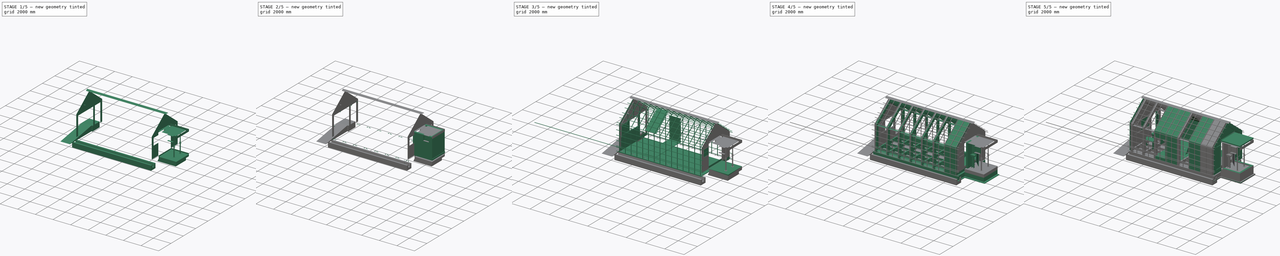
[diagram: build sequence overview — one tinted view per stage of 5, left to right]
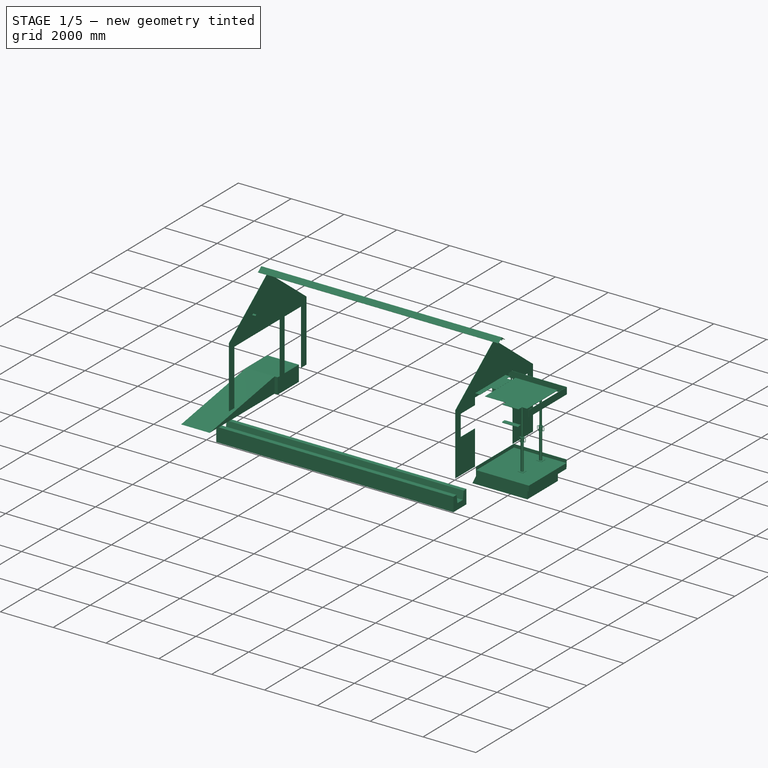
[diagram: stage 1 of 5 — iso view after this stage's code; geometry added in this stage tinted green]
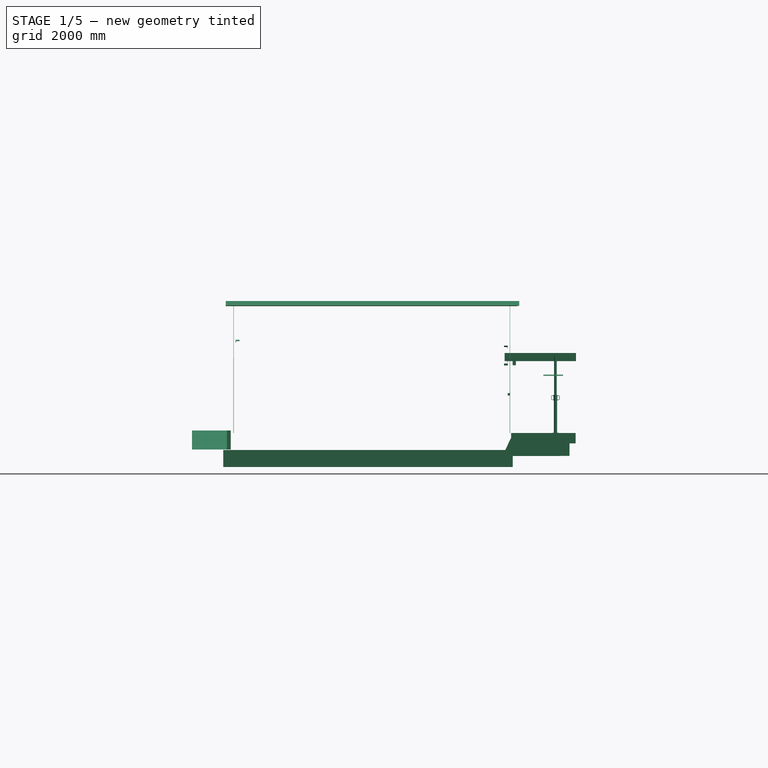
[diagram: stage 1 of 5 — front view after this stage's code; geometry added in this stage tinted green]
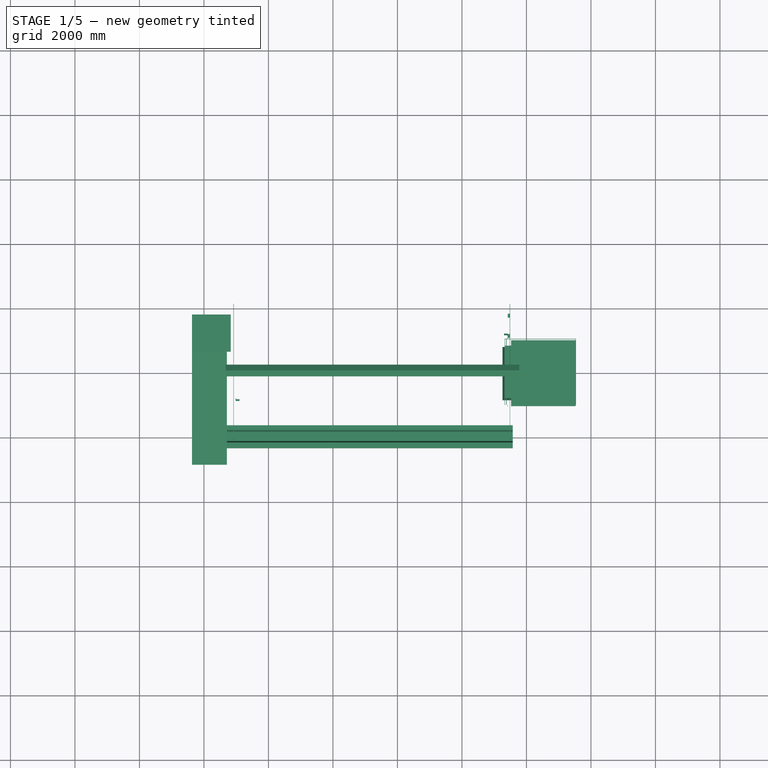
[diagram: stage 1 of 5 — top view after this stage's code; geometry added in this stage tinted green]
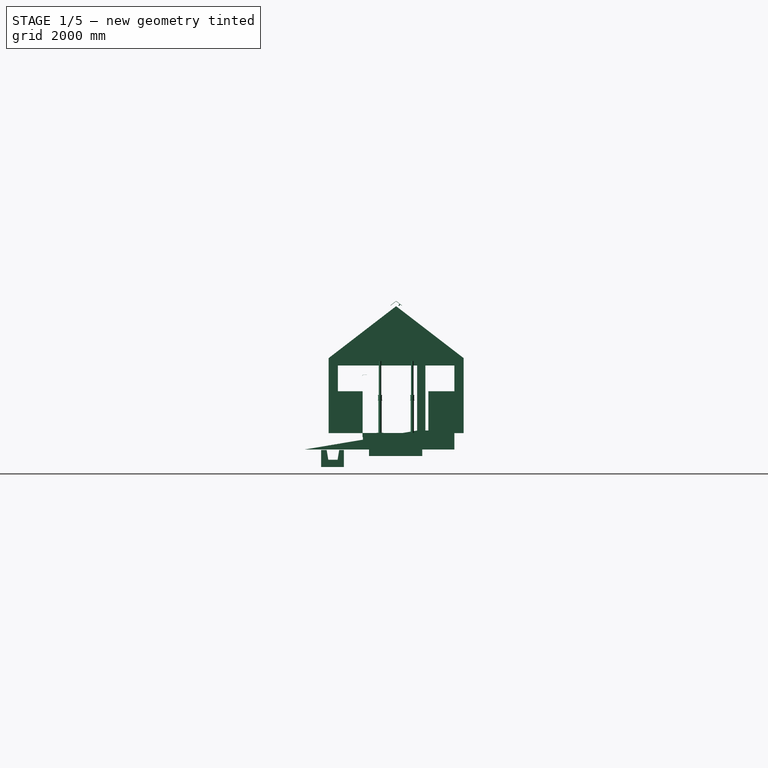
[diagram: stage 1 of 5 — right view after this stage's code; geometry added in this stage tinted green]
FCSTD DOCUMENT  (FreeCAD 0.17R12315 (Git))
Label: wikilab
License: All rights reserved
LicenseURL: http://en.wikipedia.org/wiki/All_rights_reserved
objects: Part::FeaturePython×366, App::FeaturePython×237, Part::Part2DObjectPython×211, Part::Feature×133, Part::Extrusion×54, App::DocumentObjectGroup×32, Part::Compound×31, Part::Cut×20, App::Annotation×14, App::MaterialObjectPython×11, Sketcher::SketchObject×6, Part::Box×2, App::DocumentObjectGroupPython×2, Part::Sweep×1
note: 829 computed .brp shape members not serialized (recipe doc carries the construction recipe); baked Part::Feature solids carry a one-line shape summary decoded from their .brp

FEATURE [Part::Feature] Mesh141001006001  label="Telha polipropileno 905x280"
  Placement = pos=(0,-59.9995,-104.729) rot=(0,0,1;0rad)
  shape: bbox 9099 x 30.19 x 2688 mm, 697 faces, 0 solids (baked)
FEATURE [Part::Feature] Mesh141001003001001  label="Telha polipropileno 905x281"
  Placement = pos=(0,-36.5768,-57.1673) rot=(0,0,1;0rad)
  shape: bbox 9099 x 2231 x 1727 mm, 1479 faces, 0 solids (baked)
FEATURE [Part::Feature] Mesh141001004001001  label="Telha polipropileno 905x282"
  Placement = pos=(0,36.5768,-57.1674) rot=(0,0,1;0rad)
  shape: bbox 9099 x 2231 x 1726 mm, 1504 faces, 0 solids (baked)
FEATURE [Part::Feature] Mesh141001002001001  label="Telha polipropileno 905x283"
  Placement = pos=(0,60.0591,-104.729) rot=(0,0,1;0rad)
  shape: bbox 9099 x 30.19 x 2688 mm, 697 faces, 0 solids (baked)
FEATURE [Part::Feature] Mesh141001005001001  label="Telha polipropileno 905x284"
  Placement = pos=(0,0,-13.7048) rot=(0,0,1;0rad)
  shape: bbox 9099 x 242.6 x 97.46 mm, 16544 faces, 0 solids (baked)
FEATURE [App::DocumentObjectGroup] Group008  label="Cobertura polipropileno"
  Group = -> [Mesh141001006001,Mesh141001003001001,Mesh141001004001001,Mesh141001002001001]
FEATURE [Part::Box] Box  label="Cube"
  AttacherType = Attacher::AttachEngine3D
  Height = 190
  Length = 390
  Placement = pos=(-3265.08,-2055.41,-320.972) rot=(0,0,1;0rad)
  Width = 190
FEATURE [Part::FeaturePython] Array008  label="Fileira 009"  # Draft array (typed FeaturePython)
  Angle = 360
  ArrayType = 0
  Axis = (0,0,1)
  Base = -> Box
  Center = (0,0,0)
  Fuse = false
  IntervalAxis = (410,0,0)
  IntervalX = (400,0,0)
  IntervalY = (0,1,0)
  IntervalZ = (0,0,0)
  NumberPolar = 1
  NumberX = 5
  NumberY = 1
  NumberZ = 1
  Placement = pos=(8800,1024.6,-199.999) rot=(0,0,1;0rad)
FEATURE [Part::FeaturePython] Array009  label="Fileira 010"  # Draft array (typed FeaturePython)
  Angle = 360
  ArrayType = 0
  Axis = (0,0,1)
  Base = -> Box
  Center = (0,0,0)
  Fuse = false
  IntervalAxis = (410,0,0)
  IntervalX = (400,0,0)
  IntervalY = (0,1,0)
  IntervalZ = (0,0,0)
  NumberPolar = 1
  NumberX = 5
  NumberY = 1
  NumberZ = 1
  Placement = pos=(8800,2864.6,-199.999) rot=(0,0,1;0rad)
FEATURE [Part::FeaturePython] Array010  label="Fileira 011"  # Draft array (typed FeaturePython)
  Angle = 360
  ArrayType = 0
  Axis = (0,0,1)
  Base = -> Box
  Center = (0,0,0)
  Fuse = false
  IntervalAxis = (420,0,0)
  IntervalX = (410,0,0)
  IntervalY = (0,1,0)
  IntervalZ = (0,0,0)
  NumberPolar = 1
  NumberX = 4
  NumberY = 1
  NumberZ = 1
  Placement = pos=(5469.52,2434.27,-199.999) rot=(0,0,1;1.5708rad)
FEATURE [Part::FeaturePython] Array011  label="Fileira 012"  # Draft array (typed FeaturePython)
  Angle = 360
  ArrayType = 0
  Axis = (0,0,1)
  Base = -> Box
  Center = (0,0,0)
  Fuse = false
  IntervalAxis = (410,0,0)
  IntervalX = (400,0,0)
  IntervalY = (0,1,0)
  IntervalZ = (0,0,0)
  NumberPolar = 1
  NumberX = 5
  NumberY = 1
  NumberZ = 1
  Placement = pos=(8600,2864.6,0.000732422) rot=(0,0,1;0rad)
FEATURE [Part::FeaturePython] Array012  label="Fileira 013"  # Draft array (typed FeaturePython)
  Angle = 360
  ArrayType = 0
  Axis = (0,0,1)
  Base = -> Box
  Center = (0,0,0)
  Fuse = false
  IntervalAxis = (410,0,0)
  IntervalX = (400,0,0)
  IntervalY = (0,1,0)
  IntervalZ = (0,0,0)
  NumberPolar = 1
  NumberX = 5
  NumberY = 1
  NumberZ = 1
  Placement = pos=(8600,1024.6,0.00088501) rot=(0,0,1;0rad)
FEATURE [Part::FeaturePython] Array013  label="Fileira 014"  # Draft array (typed FeaturePython)
  Angle = 360
  ArrayType = 0
  Axis = (0,0,1)
  Base = -> Box
  Center = (0,0,0)
  Fuse = false
  IntervalAxis = (420,0,0)
  IntervalX = (410,0,0)
  IntervalY = (0,1,0)
  IntervalZ = (0,0,0)
  NumberPolar = 1
  NumberX = 5
  NumberY = 1
  NumberZ = 1
  Placement = pos=(5469.51,2234.27,0.00088501) rot=(0,0,1;1.5708rad)
FEATURE [Part::FeaturePython] Array017  label="Fileira 018"  # Draft array (typed FeaturePython)
  Angle = 360
  ArrayType = 0
  Axis = (0,0,1)
  Base = -> Box
  Center = (0,0,0)
  Fuse = false
  IntervalAxis = (420,0,0)
  IntervalX = (410,0,0)
  IntervalY = (0,1,0)
  IntervalZ = (0,0,0)
  NumberPolar = 1
  NumberX = 4
  NumberY = 1
  NumberZ = 1
  Placement = pos=(5469.52,2434.27,200.001) rot=(0,0,1;1.5708rad)
FEATURE [Part::FeaturePython] Array018  label="Fileira 019"  # Draft array (typed FeaturePython)
  Angle = 360
  ArrayType = 0
  Axis = (0,0,1)
  Base = -> Box
  Center = (0,0,0)
  Fuse = false
  IntervalAxis = (410,0,0)
  IntervalX = (400,0,0)
  IntervalY = (0,1,0)
  IntervalZ = (0,0,0)
  NumberPolar = 1
  NumberX = 5
  NumberY = 1
  NumberZ = 1
  Placement = pos=(8800,2864.6,200.001) rot=(0,0,1;0rad)
FEATURE [Part::FeaturePython] Array019  label="Fileira 020"  # Draft array (typed FeaturePython)
  Angle = 360
  ArrayType = 0
  Axis = (0,0,1)
  Base = -> Box
  Center = (0,0,0)
  Fuse = false
  IntervalAxis = (410,0,0)
  IntervalX = (400,0,0)
  IntervalY = (0,1,0)
  IntervalZ = (0,0,0)
  NumberPolar = 1
  NumberX = 5
  NumberY = 1
  NumberZ = 1
  Placement = pos=(8800,1024.6,200.001) rot=(0,0,1;0rad)
FEATURE [Part::Part2DObjectPython] DWire013  # Draft 2D object (typed FeaturePython)
  ChamferSize = 0
  Closed = false
  End = (5524.92,-1030.81,-520.972)
  FilletRadius = 0
  Length = 6030
  MakeFace = true
  Points = (4) [(5524.92,999.192,-520.972),(7524.92,999.192,-520.972),(7524.92,-1030.81,-520.972),(5524.92,-1030.81,-520.972)]
  Start = (5524.92,999.192,-520.972)
  Subdivisions = 0
FEATURE [Part::Compound] Compound  label="Blocos fundação banheiro"
  Links = -> [Array013,Array008,Array009,Array010,Array011,Array012]
FEATURE [Part::FeaturePython] Structure003  label="Rampa de acesso"  # WARN: FeaturePython — macro-defined, semantics opaque (R4)
  Base = -> Solid009
  FaceMaker = 0
  Height = 2000
  HorizontalArea = 5.16238e+06
  Length = 0
  Material = -> Material001
  MoveWithHost = false
  NodesOffset = 0
  Normal = (0,0,0)
  PerimeterLength = 0
  Role = 3
  VerticalArea = 4.19939e+06
  Width = 200
FEATURE [Part::Part2DObjectPython] Rectangle016  # Draft 2D object (typed FeaturePython)
  ChamferSize = 0
  Columns = 1
  FilletRadius = 0
  Height = 6441.11
  Length = 13185
  MakeFace = true
  Placement = pos=(-4926.31,2858,-322.682) rot=(1,0,0;3.14159rad)
  Rows = 1
  Support = -> [Structure003]
FEATURE [App::MaterialObjectPython] Material010  label="Substrato"  # material (typed FeaturePython)
  Material = Color=(0.6862745098039216, 0.5372549019607843, 0.5176470588235295),DiffuseColor=(0.686274528503418, 0.5372549295425415, 0.5176470875740051),+3 more (map truncated)
  Transparency = 0
FEATURE [App::DocumentObjectGroupPython] MaterialContainer  label="Materials"  # scripted group (container) (typed FeaturePython)
  Group = -> [Material,Material001,Material002,Material003,Material004,Material005,Material006,Material007,Material008,Material009,Material010]
FEATURE [App::FeaturePython] Dimension027  # Draft dimension (typed FeaturePython)
  Diameter = false
  Dimline = (4203.77,3405.31,-322.682)
  Direction = (0,0,0)
  Distance = 8975.95
  End = (5574.02,2101.47,-322.682)
  Normal = (0,0,1)
  Start = (-3401.94,2101.47,-322.682)
FEATURE [App::FeaturePython] Dimension028  # Draft dimension (typed FeaturePython)
  Diameter = false
  Dimline = (-6203.79,1810.23,-322.682)
  Direction = (0,0,0)
  Distance = 288.235
  End = (-3401.94,1813.23,-322.682)
  Normal = (0,0,1)
  Start = (-3401.94,2101.47,-322.682)
FEATURE [App::FeaturePython] Dimension029  # Draft dimension (typed FeaturePython)
  Diameter = false
  Dimline = (-6203.79,1813.23,-322.682)
  Direction = (0,0,0)
  Distance = 3628.13
  End = (-3401.94,-1814.9,-322.682)
  Normal = (0,0,1)
  Start = (-3401.94,1813.23,-322.682)
FEATURE [App::FeaturePython] Dimension030  # Draft dimension (typed FeaturePython)
  Diameter = false
  Dimline = (-6203.79,-1814.9,-322.682)
  Direction = (0,0,0)
  Distance = 288.235
  End = (-3401.94,-2103.14,-322.682)
  Normal = (0,0,1)
  Start = (-3401.94,-1814.9,-322.682)
FEATURE [App::FeaturePython] Dimension031  # Draft dimension (typed FeaturePython)
  Diameter = false
  Dimline = (5574.02,3405.31,-322.682)
  Direction = (0,0,0)
  Distance = 2061.44
  End = (7635.46,1100.88,-322.682)
  Normal = (0,0,1)
  Start = (5574.01,1100.88,-322.682)
FEATURE [App::FeaturePython] Dimension032  # Draft dimension (typed FeaturePython)
  Diameter = false
  Dimline = (8796.63,1701.52,-322.682)
  Direction = (0,0,0)
  Distance = 1000.59
  End = (5574.01,1100.88,-322.682)
  Normal = (0,0,1)
  Start = (5574.02,2101.47,-322.682)
FEATURE [App::FeaturePython] Dimension036  # Draft dimension (typed FeaturePython)
  Diameter = false
  Dimline = (8796.63,-772.533,-322.682)
  Direction = (0,0,0)
  Distance = 1021.34
  End = (5574.02,-2103.14,-322.682)
  Normal = (0,0,1)
  Start = (5574.01,-1081.8,-322.682)
FEATURE [App::FeaturePython] Dimension037  # Draft dimension (typed FeaturePython)
  Diameter = false
  Dimline = (8796.63,1100.88,-322.682)
  Direction = (0,0,0)
  Distance = 368.917
  End = (7635.46,731.96,-322.682)
  Normal = (0,0,1)
  Start = (7635.46,1100.88,-322.682)
FEATURE [App::FeaturePython] Dimension038  # Draft dimension (typed FeaturePython)
  Diameter = false
  Dimline = (8796.63,731.96,-322.682)
  Direction = (0,0,0)
  Distance = 1449.49
  End = (7268.85,-717.533,-322.682)
  Normal = (0,0,1)
  Start = (7268.85,731.96,-322.682)
FEATURE [App::FeaturePython] Dimension039  # Draft dimension (typed FeaturePython)
  Diameter = false
  Dimline = (8796.63,-1081.79,-322.682)
  Direction = (0,0,0)
  Distance = 364.263
  End = (7268.85,-1081.8,-322.682)
  Normal = (0,0,1)
  Start = (7268.85,-717.533,-322.682)
FEATURE [Part::Feature] Shell  label="Terreno"
  shape: bbox 13190 x 6441 x 266.2 mm, 19 faces, 0 solids (baked)
FEATURE [Part::Part2DObjectPython] DWire024  # Draft 2D object (typed FeaturePython)
  ChamferSize = 0
  Closed = false
  End = (1086.04,-2103.14,-322.682)
  FilletRadius = 0
  Length = 5087.38
  MakeFace = true
  Points = (3) [(2830.02,-6222.88,-322.682),(1349.92,-5557.8,-322.682),(1086.04,-2103.14,-322.682)]
  Start = (2830.02,-6222.88,-322.682)
  Subdivisions = 0
FEATURE [App::Annotation] Text
  LabelText = Escavação 30cm de largura | e 30cm de profundidade
  Position = (3772.64,-4620.03,-2433.04)
FEATURE [Part::Part2DObjectPython] DWire025  # Draft 2D object (typed FeaturePython)
  ChamferSize = 0
  Closed = false
  End = (2747.43,-976.322,-322.682)
  FilletRadius = 0
  Length = 5325.31
  MakeFace = true
  Points = (3) [(4710.31,-5416.45,-322.682),(3396.9,-4792.82,-322.682),(2747.43,-976.322,-322.682)]
  Start = (4710.31,-5416.45,-322.682)
  Subdivisions = 0
  Support = -> [Shell]
FEATURE [App::Annotation] Text001
  LabelText = Limpeza do terreno e | remoção da camada vegetal
  Position = (4796.15,-5555.34,-322.682)
FEATURE [App::FeaturePython] Dimension040  # Draft dimension (typed FeaturePython)
  Diameter = false
  Dimline = (4963.3,3916.64,-322.682)
  Direction = (0,0,0)
  Distance = 11037.4
  End = (7635.46,2101.47,-322.682)
  Normal = (0,0,1)
  Start = (-3401.94,2101.47,-322.682)
FEATURE [App::FeaturePython] Dimension041  # Draft dimension (typed FeaturePython)
  Diameter = false
  Dimline = (9440.42,-1405.72,-322.682)
  Direction = (0,0,0)
  Distance = 4204.6
  End = (5574.02,-2103.14,-322.682)
  Normal = (0,0,1)
  Start = (5574.02,2101.47,-322.682)
FEATURE [Part::Part2DObjectPython] DWire026  # Draft 2D object (typed FeaturePython)
  ChamferSize = 0
  Closed = false
  End = (-2667.59,-61.3245,-322.682)
  FilletRadius = 0
  Length = 7056.77
  MakeFace = true
  Points = (3) [(-653.608,-5999.02,-322.682),(-2370.11,-5227.7,-322.682),(-2667.59,-61.3245,-322.682)]
  Start = (-653.608,-5999.02,-322.682)
  Subdivisions = 0
FEATURE [App::Annotation] Text002
  LabelText = Posição exata da obra a ser | definida no lugar
  Position = (-460.541,-6119.21,-322.682)
FEATURE [Part::Part2DObjectPython] Rectangle017  # Draft 2D object (typed FeaturePython)
  ChamferSize = 0
  Columns = 1
  FilletRadius = 0
  Height = 4204.6
  Length = 11040
  MakeFace = false
  Placement = pos=(-3401.94,-2103.14,-322.682) rot=(0,0,1;0rad)
  Rows = 1
FEATURE [Part::Part2DObjectPython] Line002  # Draft 2D object (typed FeaturePython)
  ChamferSize = 0
  Closed = false
  End = (7638.06,-2103.14,-322.682)
  FilletRadius = 0
  Length = 11813.6
  MakeFace = true
  Points = (2) [(-3401.94,2101.47,-322.682),(7638.06,-2103.14,-322.682)]
  Start = (-3401.94,2101.47,-322.682)
  Subdivisions = 0
FEATURE [App::FeaturePython] Dimension042  # Draft dimension (typed FeaturePython)
  Diameter = false
  Dimline = (-1551.84,2653.62,-322.682)
  Direction = (0,0,0)
  Distance = 11813.6
  End = (7638.06,-2103.14,-322.682)
  LinkedGeometry = -> [Line002]
  Normal = (0,0,1)
  Start = (-3401.94,2101.47,-322.682)
  Support = -> Line002
FEATURE [App::FeaturePython] Dimension043  # Draft dimension (typed FeaturePython)
  Diameter = false
  Dimline = (4586.9,-3113.01,-520.972)
  Direction = (0,0,0)
  Distance = 8790
  End = (5524.92,-2055.41,-520.972)
  Normal = (0,0,1)
  Start = (-3265.08,-2055.41,-520.972)
FEATURE [App::FeaturePython] Dimension044  # Draft dimension (typed FeaturePython)
  Diameter = false
  Dimline = (5524.92,-3113.01,-520.972)
  Direction = (0,0,0)
  Distance = 2000
  End = (7524.92,-2055.41,-520.972)
  Normal = (0,0,1)
  Start = (5524.92,-2055.41,-520.972)
FEATURE [App::FeaturePython] Dimension045  # Draft dimension (typed FeaturePython)
  Diameter = false
  Dimline = (8573.32,-1669.32,-520.972)
  Direction = (0,0,0)
  Distance = 1024.6
  End = (5524.92,-1030.81,-520.972)
  Normal = (0,0,1)
  Start = (5524.92,-2055.41,-520.972)
FEATURE [App::FeaturePython] Dimension046  # Draft dimension (typed FeaturePython)
  Diameter = false
  Dimline = (8573.32,-1030.81,-520.972)
  Direction = (0,0,0)
  Distance = 2030
  End = (7524.92,999.192,-520.972)
  Normal = (0,0,1)
  Start = (7524.92,-1030.81,-520.972)
FEATURE [App::FeaturePython] Dimension047  # Draft dimension (typed FeaturePython)
  Diameter = false
  Dimline = (8573.32,999.192,-520.972)
  Direction = (0,0,0)
  Distance = 1046.3
  End = (7524.92,2045.49,-520.972)
  Normal = (0,0,1)
  Start = (7524.92,999.192,-520.972)
FEATURE [Part::Part2DObjectPython] DWire027  # Draft 2D object (typed FeaturePython)
  ChamferSize = 0
  Closed = false
  End = (-938.21,-2236.93,-520.972)
  FilletRadius = 0
  Length = 3656.61
  MakeFace = true
  Points = (3) [(975.51,-4672.98,-520.972),(-744.141,-4056.37,-520.972),(-938.21,-2236.93,-520.972)]
  Start = (975.51,-4672.98,-520.972)
  Subdivisions = 0
FEATURE [App::Annotation] Text003
  LabelText = Camada de concreto magro 5cm | no fundo da vala
  Position = (1090.95,-4845.85,-520.972)
FEATURE [Part::Part2DObjectPython] DWire028  # Draft 2D object (typed FeaturePython)
  ChamferSize = 0
  Closed = false
  End = (2324.92,-2055.41,-130.972)
  FilletRadius = 0
  Length = 4220
  MakeFace = true
  Points = (3) [(5333.61,-4677.01,-520.972),(3785.74,-4153.23,-520.972),(2324.92,-2055.41,-130.972)]
  Start = (5333.61,-4677.01,-520.972)
  Subdivisions = 0
FEATURE [App::Annotation] Text004
  LabelText = 2 fileiras de blocos de concreto de 19cm
  Position = (5401.31,-4790.6,-520.972)
FEATURE [Part::Part2DObjectPython] DWire030  # Draft 2D object (typed FeaturePython)
  ChamferSize = 0
  Closed = true
  End = (-3401.94,-1619.73,-866.113)
  FilletRadius = 0
  Length = 2972.56
  MakeFace = true
  Points = (8) [(-3401.94,-1619.73,-338.864),(-3401.94,-1764.9,-338.864),(-3401.94,-1814.9,-638.864),(-3401.94,-2103.14,-638.864),(-3401.94,-2153.14,-338.864),+3 more]
  Start = (-3401.94,-1619.73,-338.864)
  Subdivisions = 0
FEATURE [Part::Extrusion] Extrusion008  label="Detalhe vala"
  Base = -> DWire030
  Dir = (8975.95,0.0245849,0.0015882)
  DirMode = 0
  FaceMakerClass = Part::FaceMakerBullseye
  LengthFwd = 0
  LengthRev = 0
  Solid = true
  Symmetric = false
FEATURE [App::FeaturePython] Dimension055  # Draft dimension (typed FeaturePython)
  Diameter = false
  Dimline = (6029.92,-2535.81,-130.971)
  Direction = (0,0,0)
  Distance = 684.253
  End = (6209.18,-1052.91,-130.971)
  Normal = (0,0,1)
  Start = (5524.92,-1052.91,-130.971)
FEATURE [App::FeaturePython] Dimension056  # Draft dimension (typed FeaturePython)
  Diameter = false
  Dimline = (6209.18,-2535.81,-130.971)
  Direction = (0,0,0)
  Distance = 200
  End = (6409.18,-810.659,-130.971)
  Normal = (0,0,1)
  Start = (6209.18,-810.659,-130.971)
FEATURE [App::FeaturePython] Dimension057  # Draft dimension (typed FeaturePython)
  Diameter = false
  Dimline = (6409.18,-2535.81,-130.971)
  Direction = (0,0,0)
  Distance = 516.727
  End = (6925.9,-810.659,-130.971)
  Normal = (0,0,1)
  Start = (6409.18,-810.659,-130.971)
FEATURE [App::FeaturePython] Dimension058  # Draft dimension (typed FeaturePython)
  Diameter = false
  Dimline = (6925.9,-2535.81,-130.971)
  Direction = (0,0,0)
  Distance = 409.02
  End = (7334.92,-810.659,-130.971)
  Normal = (0,0,1)
  Start = (6925.9,-810.659,-130.971)
FEATURE [Part::Part2DObjectPython] Line017  # Draft 2D object (typed FeaturePython)
  ChamferSize = 0
  Closed = false
  End = (7334.92,-1030.81,-130.971)
  FilletRadius = 0
  Length = 1505
  MakeFace = true
  Points = (2) [(7334.92,-2535.81,-130.971),(7334.92,-1030.81,-130.971)]
  Start = (7334.92,-2535.81,-130.971)
  Subdivisions = 0
FEATURE [Part::Part2DObjectPython] Line018  # Draft 2D object (typed FeaturePython)
  ChamferSize = 0
  Closed = false
  End = (5524.92,-2055.41,-130.971)
  FilletRadius = 0
  Length = 480.401
  MakeFace = true
  Points = (2) [(5524.92,-2535.81,-130.971),(5524.92,-2055.41,-130.971)]
  Start = (5524.92,-2535.81,-130.971)
  Subdivisions = 0
FEATURE [Part::Part2DObjectPython] Line019  # Draft 2D object (typed FeaturePython)
  ChamferSize = 0
  Closed = false
  End = (6209.18,-810.659,-130.971)
  FilletRadius = 0
  Length = 1725.15
  MakeFace = true
  Points = (2) [(6209.18,-2535.81,-130.971),(6209.18,-810.659,-130.971)]
  Start = (6209.18,-2535.81,-130.971)
  Subdivisions = 0
FEATURE [Part::Part2DObjectPython] Line020  # Draft 2D object (typed FeaturePython)
  ChamferSize = 0
  Closed = false
  End = (6409.18,-810.659,-130.971)
  FilletRadius = 0
  Length = 1725.15
  MakeFace = true
  Points = (2) [(6409.18,-2535.81,-130.971),(6409.18,-810.659,-130.971)]
  Start = (6409.18,-2535.81,-130.971)
  Subdivisions = 0
FEATURE [Part::Part2DObjectPython] Line021  # Draft 2D object (typed FeaturePython)
  ChamferSize = 0
  Closed = false
  End = (6925.9,-810.659,-130.971)
  FilletRadius = 0
  Length = 1725.15
  MakeFace = true
  Points = (2) [(6925.9,-2535.81,-130.971),(6925.9,-810.659,-130.971)]
  Start = (6925.9,-2535.81,-130.971)
  Subdivisions = 0
FEATURE [App::FeaturePython] Dimension059  # Draft dimension (typed FeaturePython)
  Diameter = false
  Dimline = (7898.96,-804.093,-130.971)
  Direction = (0,0,0)
  Distance = 30.1495
  End = (7324.92,-810.659,-130.971)
  Normal = (0,0,1)
  Start = (7324.92,-840.808,-130.971)
FEATURE [Part::Part2DObjectPython] Line022  # Draft 2D object (typed FeaturePython)
  ChamferSize = 0
  Closed = false
  End = (7324.92,-840.808,-130.971)
  FilletRadius = 0
  Length = 574.041
  MakeFace = true
  Points = (2) [(7898.96,-840.808,-130.971),(7324.92,-840.808,-130.971)]
  Start = (7898.96,-840.808,-130.971)
  Subdivisions = 0
FEATURE [Part::Part2DObjectPython] Line023  # Draft 2D object (typed FeaturePython)
  ChamferSize = 0
  Closed = false
  End = (6209.18,-810.659,-130.971)
  FilletRadius = 0
  Length = 1689.79
  MakeFace = true
  Points = (2) [(7898.96,-810.659,-130.971),(6209.18,-810.659,-130.971)]
  Start = (7898.96,-810.659,-130.971)
  Subdivisions = 0
FEATURE [Part::Part2DObjectPython] Line024  # Draft 2D object (typed FeaturePython)
  ChamferSize = 0
  Closed = false
  End = (6634.48,-1756.16,-130.971)
  FilletRadius = 0
  Length = 1113.93
  MakeFace = true
  Points = (2) [(7566.42,-2366.34,-130.971),(6634.48,-1756.16,-130.971)]
  Start = (7566.42,-2366.34,-130.971)
  Subdivisions = 0
  Support = -> [Compound001]
FEATURE [Part::Part2DObjectPython] Line025  # Draft 2D object (typed FeaturePython)
  ChamferSize = 0
  Closed = false
  End = (6068.93,-1605,-130.971)
  FilletRadius = 0
  Length = 1667.42
  MakeFace = true
  Points = (2) [(7462.61,-2520.38,-130.971),(6068.93,-1605,-130.971)]
  Start = (7462.61,-2520.38,-130.971)
  Subdivisions = 0
FEATURE [Part::Part2DObjectPython] Line026  # Draft 2D object (typed FeaturePython)
  ChamferSize = 0
  Closed = false
  End = (5877.64,-1777.41,-130.971)
  FilletRadius = 0
  Length = 1733.26
  MakeFace = true
  Placement = pos=(45.7878,47.5933,0) rot=(0,0,1;0rad)
  Points = (2) [(7298.52,-2748.63,-130.971),(5831.85,-1825.01,-130.971)]
  Start = (7344.31,-2701.03,-130.971)
  Subdivisions = 0
FEATURE [App::Annotation] Text011
  LabelText = Tubo de PVC 75mm - esgoto
  Position = (7607.61,-2425.86,-130.971)
FEATURE [App::Annotation] Text012
  LabelText = Tubo de PVC 25mm - água fria
  Position = (7506.59,-2581.84,-130.971)
FEATURE [App::Annotation] Text013
  LabelText = Tubo de PVC 50mm - esgoto
  Position = (7388.28,-2762.49,-130.971)
FEATURE [App::FeaturePython] Dimension060  # Draft dimension (typed FeaturePython)
  Diameter = false
  Dimline = (6780.08,1417.62,369.029)
  Direction = (0,0,0)
  Distance = 1989.98
  End = (7524.9,999.192,369.029)
  Normal = (0,0,1)
  Start = (5534.92,999.192,369.029)
FEATURE [App::FeaturePython] Dimension061  # Draft dimension (typed FeaturePython)
  Diameter = false
  Dimline = (7918.16,-751.643,369.029)
  Direction = (0,0,0)
  Distance = 2030
  End = (7524.9,-1030.81,369.029)
  Normal = (0,0,1)
  Start = (7524.9,999.192,369.029)
FEATURE [App::FeaturePython] Dimension062  # Draft dimension (typed FeaturePython)
  Diameter = false
  Dimline = (7918.16,-1030.81,369.029)
  Direction = (0,0,0)
  Distance = 100
  End = (7524.9,-1030.81,369.029)
  Normal = (0,1,0)
  Start = (7524.9,-1030.81,269.029)
FEATURE [Part::Part2DObjectPython] DWire038  # Draft 2D object (typed FeaturePython)
  ChamferSize = 0
  Closed = true
  End = (5534.92,809.191,69.0288)
  FilletRadius = 0
  Length = 5124.27
  MakeFace = true
  Points = (4) [(5256.12,809.191,-524.184),(7334.92,809.191,-520.971),(7334.92,809.191,69.0288),(5534.92,809.191,69.0288)]
  Start = (5256.12,809.191,-524.184)
  Subdivisions = 0
  Support = -> [Compound]
FEATURE [Part::Extrusion] Extrusion009  label="Impermeabilização solo"
  Base = -> DWire038
  Dir = (0,-1650,0)
  DirMode = 0
  FaceMakerClass = Part::FaceMakerBullseye
  LengthFwd = 0
  LengthRev = 0
  Solid = true
  Symmetric = false
FEATURE [Part::Part2DObjectPython] Rectangle020  # Draft 2D object (typed FeaturePython)
  ChamferSize = 0
  Columns = 1
  FilletRadius = 0
  Height = 250
  Length = 1990
  MakeFace = true
  Placement = pos=(7524.92,-1030.81,269.029) rot=(0,0.707107,-0.707107;3.14159rad)
  Rows = 1
  Support = -> [Compound]
FEATURE [Part::FeaturePython] Panel  label="Forma"  # WARN: FeaturePython — macro-defined, semantics opaque (R4)
  Area = 497500
  Base = -> Rectangle020
  FaceMaker = 0
  HorizontalArea = 0
  Length = 0
  MoveWithHost = false
  Normal = (0,0,0)
  PerimeterLength = 0
  Placement = pos=(0,0,-80) rot=(0,0,1;0rad)
  Role = 0
  Sheets = 1
  Thickness = 10
  VerticalArea = 0
  WaveDirection = 0
  WaveHeight = 0
  WaveLength = 0
  WaveType = 0
  Width = 0
FEATURE [Part::FeaturePython] Panel001  label="Forma001"  # WARN: FeaturePython — macro-defined, semantics opaque (R4)
  Area = 497500
  CloneOf = -> Panel
  FaceMaker = 0
  HorizontalArea = 0
  Length = 0
  MoveWithHost = false
  Normal = (0,0,0)
  PerimeterLength = 0
  Placement = pos=(5e-12,2040,-80) rot=(0,0,1;0rad)
  Role = 0
  Sheets = 1
  Thickness = 10
  VerticalArea = 0
  WaveDirection = 0
  WaveHeight = 0
  WaveLength = 0
  WaveType = 0
  Width = 0
FEATURE [Part::Part2DObjectPython] Rectangle021  # Draft 2D object (typed FeaturePython)
  ChamferSize = 0
  Columns = 1
  FilletRadius = 0
  Height = 250
  Length = 2050
  MakeFace = true
  Placement = pos=(7524.92,1009.19,369.029) rot=(0.57735,-0.57735,0.57735;4.18879rad)
  Rows = 1
FEATURE [Part::FeaturePython] Panel002  label="Forma002"  # WARN: FeaturePython — macro-defined, semantics opaque (R4)
  Area = 512500
  Base = -> Rectangle021
  FaceMaker = 0
  HorizontalArea = 0
  Length = 0
  MoveWithHost = false
  Normal = (0,0,0)
  PerimeterLength = 0
  Placement = pos=(0,0,-180) rot=(0,0,1;0rad)
  Role = 0
  Sheets = 1
  Thickness = 10
  VerticalArea = 0
  WaveDirection = 0
  WaveHeight = 0
  WaveLength = 0
  WaveType = 0
  Width = 0
FEATURE [Part::Part2DObjectPython] Rectangle022  # Draft 2D object (typed FeaturePython)
  ChamferSize = 0
  Columns = 1
  FilletRadius = 0
  Height = 125
  Length = 2050
  MakeFace = true
  Placement = pos=(5534.92,1009.19,244.029) rot=(0.57735,-0.57735,-0.57735;2.0944rad)
  Rows = 1
  Support = -> [Compound]
FEATURE [Part::FeaturePython] Panel003  label="Forma003"  # WARN: FeaturePython — macro-defined, semantics opaque (R4)
  Area = 256250
  Base = -> Rectangle022
  FaceMaker = 0
  HorizontalArea = 0
  Length = 0
  MoveWithHost = false
  Normal = (0,0,0)
  PerimeterLength = 0
  Placement = pos=(0,0,-180) rot=(0,0,1;0rad)
  Role = 0
  Sheets = 1
  Thickness = 10
  VerticalArea = 0
  WaveDirection = 0
  WaveHeight = 0
  WaveLength = 0
  WaveType = 0
  Width = 0
FEATURE [App::FeaturePython] Dimension065  # Draft dimension (typed FeaturePython)
  Diameter = false
  Dimline = (7829.93,-1030.81,2084.03)
  Direction = (0,0,0)
  Distance = 2390
  End = (7524.92,-1030.81,2579.03)
  Normal = (0,-1,0)
  Start = (7524.92,-1030.81,189.029)
FEATURE [App::FeaturePython] Dimension066  # Draft dimension (typed FeaturePython)
  Diameter = false
  Dimline = (7829.93,-1030.81,2579.03)
  Direction = (0,0,0)
  Distance = 2030
  End = (7524.92,999.192,2579.03)
  Normal = (0,0,1)
  Start = (7524.92,-1030.81,2579.03)
FEATURE [App::FeaturePython] Dimension067  # Draft dimension (typed FeaturePython)
  Diameter = false
  Dimline = (6729.93,1264.19,2579.03)
  Direction = (0,0,0)
  Distance = 2190.01
  End = (7524.93,999.19,2579.03)
  Normal = (0,0,1)
  Start = (5334.92,999.19,2579.03)
FEATURE [App::FeaturePython] Dimension068  # Draft dimension (typed FeaturePython)
  Diameter = false
  Dimline = (4729.93,764.192,2579.03)
  Direction = (0,0,0)
  Distance = 199.999
  End = (5334.92,609.191,2579.03)
  Normal = (0,0,1)
  Start = (5334.92,809.19,2579.03)
FEATURE [App::FeaturePython] Dimension069  # Draft dimension (typed FeaturePython)
  Diameter = false
  Dimline = (4729.93,564.192,2579.03)
  Direction = (0,0,0)
  Distance = 840
  End = (5534.92,-230.808,2579.03)
  Normal = (0,0,1)
  Start = (5534.93,609.191,2579.03)
FEATURE [App::FeaturePython] Dimension070  # Draft dimension (typed FeaturePython)
  Diameter = false
  Dimline = (4729.92,-230.805,2579.03)
  Direction = (0,0,0)
  Distance = 610.002
  End = (5534.92,-840.81,2579.03)
  Normal = (0,0,1)
  Start = (5534.92,-230.808,2579.03)
FEATURE [App::FeaturePython] Dimension071  # Draft dimension (typed FeaturePython)
  Diameter = false
  Dimline = (7629.93,-1935.81,2579.03)
  Direction = (0,0,0)
  Distance = 1190.01
  End = (6524.93,-1030.81,2579.03)
  Normal = (0,0,1)
  Start = (5334.92,-1030.81,2579.03)
FEATURE [App::FeaturePython] Dimension072  # Draft dimension (typed FeaturePython)
  Diameter = false
  Dimline = (7229.93,-1935.81,2579.03)
  Direction = (0,0,0)
  Distance = 609.99
  End = (7134.92,-1030.81,2579.03)
  Normal = (0,0,1)
  Start = (6524.93,-1030.81,2579.03)
FEATURE [App::FeaturePython] Dimension073  # Draft dimension (typed FeaturePython)
  Diameter = false
  Dimline = (7529.93,-1935.81,2579.03)
  Direction = (0,0,0)
  Distance = 390
  End = (7524.92,-1030.81,2579.03)
  Normal = (0,0,1)
  Start = (7134.92,-1030.81,2579.03)
FEATURE [Part::Part2DObjectPython] Rectangle023  # Draft 2D object (typed FeaturePython)
  ChamferSize = 0
  Columns = 1
  FilletRadius = 0
  Height = 1650
  Length = 1599.99
  MakeFace = true
  Placement = pos=(7329.92,809.192,2759) rot=(0,0,1;3.14159rad)
  Rows = 1
FEATURE [Part::FeaturePython] Panel004  label="Forma004"  # WARN: FeaturePython — macro-defined, semantics opaque (R4)
  Area = 2.63998e+06
  Base = -> Rectangle023
  FaceMaker = 0
  HorizontalArea = 0
  Length = 0
  MoveWithHost = false
  Normal = (0,0,-1)
  PerimeterLength = 0
  Placement = pos=(0,0,-180) rot=(0,0,1;0rad)
  Role = 0
  Sheets = 1
  Thickness = 10
  VerticalArea = 0
  WaveDirection = 0
  WaveHeight = 0
  WaveLength = 0
  WaveType = 0
  Width = 0
FEATURE [Part::Part2DObjectPython] Rectangle024  # Draft 2D object (typed FeaturePython)
  ChamferSize = 0
  Columns = 1
  FilletRadius = 0
  Height = 840
  Length = 189.997
  MakeFace = true
  Placement = pos=(5724.92,609.191,2759) rot=(0,0,1;3.14159rad)
  Rows = 1
FEATURE [Part::Part2DObjectPython] Rectangle025  # Draft 2D object (typed FeaturePython)
  ChamferSize = 0
  Columns = 1
  FilletRadius = 0
  Height = 1631.46
  Length = 200.669
  MakeFace = true
  Placement = pos=(5534.93,800.654,2759) rot=(0,0,1;3.14159rad)
  Rows = 1
FEATURE [Part::Part2DObjectPython] Rectangle026  # Draft 2D object (typed FeaturePython)
  ChamferSize = 0
  Columns = 1
  FilletRadius = 0
  Height = 190.002
  Length = 609.99
  MakeFace = true
  Placement = pos=(7134.92,-840.808,2759) rot=(0,0,1;3.14159rad)
  Rows = 1
FEATURE [Part::FeaturePython] Panel005  label="Forma005"  # WARN: FeaturePython — macro-defined, semantics opaque (R4)
  Area = 115900
  Base = -> Rectangle026
  FaceMaker = 0
  HorizontalArea = 0
  Length = 0
  MoveWithHost = false
  Normal = (0,0,-1)
  PerimeterLength = 0
  Placement = pos=(0,0,-180) rot=(0,0,1;0rad)
  Role = 0
  Sheets = 1
  Thickness = 10
  VerticalArea = 0
  WaveDirection = 0
  WaveHeight = 0
  WaveLength = 0
  WaveType = 0
  Width = 0
FEATURE [Part::FeaturePython] Panel006  label="Forma006"  # WARN: FeaturePython — macro-defined, semantics opaque (R4)
  Area = 159597
  Base = -> Rectangle024
  FaceMaker = 0
  HorizontalArea = 0
  Length = 0
  MoveWithHost = false
  Normal = (0,0,-1)
  PerimeterLength = 0
  Placement = pos=(0,0,-180) rot=(0,0,1;0rad)
  Role = 0
  Sheets = 1
  Thickness = 10
  VerticalArea = 0
  WaveDirection = 0
  WaveHeight = 0
  WaveLength = 0
  WaveType = 0
  Width = 0
FEATURE [Part::FeaturePython] Panel007  label="Forma007"  # WARN: FeaturePython — macro-defined, semantics opaque (R4)
  Area = 327383
  Base = -> Rectangle025
  FaceMaker = 0
  HorizontalArea = 0
  Length = 0
  MoveWithHost = false
  Normal = (0,0,-1)
  PerimeterLength = 0
  Placement = pos=(0,0,-180) rot=(0,0,1;0rad)
  Role = 0
  Sheets = 1
  Thickness = 10
  VerticalArea = 0
  WaveDirection = 0
  WaveHeight = 0
  WaveLength = 0
  WaveType = 0
  Width = 0
FEATURE [Part::Feature] Pad006001  label="Escora"
  Placement = pos=(6100,500,189) rot=(0,0,1;0rad)
  shape: bbox 270.4 x 200 x 2380 mm, 31 faces (baked)
FEATURE [Part::FeaturePython] Clone127  label="Escora001"  # Draft clone (typed FeaturePython)
  AttacherType = Attacher::AttachEngine3D
  Objects = -> [Pad006001]
  Placement = pos=(6100,-500,189) rot=(0,0,1;0rad)
  Scale = (1,1,1)
FEATURE [Part::FeaturePython] Clone128  label="Escora002"  # Draft clone (typed FeaturePython)
  AttacherType = Attacher::AttachEngine3D
  Objects = -> [Clone127]
  Placement = pos=(6900,-500,189) rot=(0,0,1;0rad)
  Scale = (1,1,1)
FEATURE [Part::FeaturePython] Clone129  label="Escora003"  # Draft clone (typed FeaturePython)
  AttacherType = Attacher::AttachEngine3D
  Objects = -> [Pad006001]
  Placement = pos=(6900,500,189) rot=(0,0,1;0rad)
  Scale = (1,1,1)
FEATURE [Part::FeaturePython] Panel009  label="Forma008"  # WARN: FeaturePython — macro-defined, semantics opaque (R4)
  Area = 512500
  CloneOf = -> Panel002
  FaceMaker = 0
  HorizontalArea = 0
  Length = 0
  MoveWithHost = false
  Normal = (0,0,0)
  PerimeterLength = 0
  Placement = pos=(0,0.00014782,2300) rot=(0,0,1;0rad)
  Role = 0
  Sheets = 1
  Thickness = 10
  VerticalArea = 0
  WaveDirection = 0
  WaveHeight = 0
  WaveLength = 0
  WaveType = 0
  Width = 0
FEATURE [Part::Part2DObjectPython] Rectangle027  # Draft 2D object (typed FeaturePython)
  ChamferSize = 0
  Columns = 1
  FilletRadius = 0
  Height = 250
  Length = 2190
  MakeFace = true
  Placement = pos=(7524.92,-1030.81,2849.03) rot=(0,0.707107,-0.707107;3.14159rad)
  Rows = 1
FEATURE [Part::FeaturePython] Panel010  label="Forma009"  # WARN: FeaturePython — macro-defined, semantics opaque (R4)
  Area = 547501
  Base = -> Rectangle027
  FaceMaker = 0
  HorizontalArea = 0
  Length = 0
  MoveWithHost = false
  Normal = (0,0,0)
  PerimeterLength = 0
  Placement = pos=(0,0,-180) rot=(0,0,1;0rad)
  Role = 0
  Sheets = 1
  Thickness = 10
  VerticalArea = 0
  WaveDirection = 0
  WaveHeight = 0
  WaveLength = 0
  WaveType = 0
  Width = 0
FEATURE [Part::FeaturePython] Panel011  label="Forma010"  # WARN: FeaturePython — macro-defined, semantics opaque (R4)
  Area = 547501
  CloneOf = -> Panel010
  FaceMaker = 0
  HorizontalArea = 0
  Length = 0
  MoveWithHost = false
  Normal = (0,0,0)
  PerimeterLength = 0
  Placement = pos=(0,2040,-180) rot=(0,0,1;0rad)
  Role = 0
  Sheets = 1
  Thickness = 10
  VerticalArea = 0
  WaveDirection = 0
  WaveHeight = 0
  WaveLength = 0
  WaveType = 0
  Width = 0
FEATURE [Part::FeaturePython] Panel012  label="Forma011"  # WARN: FeaturePython — macro-defined, semantics opaque (R4)
  Area = 512500
  CloneOf = -> Panel002
  FaceMaker = 0
  HorizontalArea = 0
  Length = 0
  MoveWithHost = false
  Normal = (0,0,0)
  PerimeterLength = 0
  Placement = pos=(-2200,0.00046875,2300) rot=(0,0,1;0rad)
  Role = 0
  Sheets = 1
  Thickness = 10
  VerticalArea = 0
  WaveDirection = 0
  WaveHeight = 0
  WaveLength = 0
  WaveType = 0
  Width = 0
FEATURE [Part::Feature] Rebar002  label="Malha 20x007"
  Placement = pos=(0,0,2310) rot=(0,0,1;0rad)
  shape: bbox 1950 x 1998 x 8 mm, 39 faces, 13 solids (baked)
FEATURE [Part::Feature] Rebar001001  label="Malha 20x008"
  Placement = pos=(0,0,2310) rot=(0,0,1;0rad)
  shape: bbox 1958 x 1990 x 8 mm, 39 faces, 13 solids (baked)
FEATURE [App::FeaturePython] Dimension075  # Draft dimension (typed FeaturePython)
  Diameter = false
  Dimline = (5985.89,1269.48,2849.03)
  Direction = (0,0,0)
  Distance = 2190
  End = (5334.92,999.192,2669.03)
  LinkedGeometry = -> [Panel011]
  Normal = (0,0,1)
  Start = (7524.92,999.192,2669.03)
  Support = -> Panel011
FEATURE [App::FeaturePython] Dimension076  # Draft dimension (typed FeaturePython)
  Diameter = false
  Dimline = (7802.13,622.138,2849.03)
  Direction = (0,0,0)
  Distance = 2050
  End = (7524.92,-1040.81,2669.03)
  LinkedGeometry = -> [Panel009]
  Normal = (0,0,1)
  Start = (7524.92,1009.19,2669.03)
  Support = -> Panel009
FEATURE [Part::Feature] Shape
  Placement = pos=(0,0.00083496,-9.99966) rot=(0,0,1;0rad)
  shape: bbox 2190 x 2030 x 3e-07 mm, 1 faces, 0 solids (baked)
FEATURE [Part::Extrusion] Extrude045  label="Extrude062"
  Base = -> Shape
  Dir = (0,0,-1)
  DirMode = 0
  FaceMakerClass = Part::FaceMakerBullseye
  LengthFwd = 90
  LengthRev = 0
  Solid = false
  Symmetric = false
FEATURE [Part::Part2DObjectPython] Rectangle029  # Draft 2D object (typed FeaturePython)
  ChamferSize = 0
  Columns = 1
  FilletRadius = 0
  Height = 2030
  Length = 20
  MakeFace = true
  Placement = pos=(5344.92,-1030.81,2849.03) rot=(0,0,1;0rad)
  Rows = 1
FEATURE [Part::FeaturePython] Structure013  label="Borda"  # WARN: FeaturePython — macro-defined, semantics opaque (R4)
  Base = -> Rectangle029
  FaceMaker = 0
  Height = 10
  HorizontalArea = 40600
  Length = 0
  MoveWithHost = false
  Nodes = (2) [(5354.92,-15.8078,2849.03),(5354.92,-15.8078,2859.03)]
  NodesOffset = 0
  Normal = (0,0,0)
  PerimeterLength = 4100
  Placement = pos=(0,0,-180) rot=(0,0,1;0rad)
  Role = 2
  VerticalArea = 41000
  Width = 200
FEATURE [Part::FeaturePython] Structure002  label="Laje teto do banheiro - 203x206x10"  # WARN: FeaturePython — macro-defined, semantics opaque (R4)
  Additions = -> [Structure013]
  Base = -> Extrude045
  FaceMaker = 0
  Height = 2000
  HorizontalArea = 4.44565e+06
  Length = 0
  Material = -> Material001
  MoveWithHost = false
  Nodes = (5) [(5334.92,999.192,2849.03),(5334.92,-1030.81,2849.03),(7524.9,-1030.81,2849.03),(7524.9,999.192,2849.03),(5534.92,999.192,2849.03)]
  NodesOffset = 0
  Normal = (0,0,0)
  PerimeterLength = 8439.95
  Placement = pos=(0,0,-180) rot=(0,0,1;0rad)
  Role = 3
  VerticalArea = 800596
  Width = 200
FEATURE [Part::Part2DObjectPython] Rectangle028  # Draft 2D object (typed FeaturePython)
  ChamferSize = 0
  Columns = 1
  FilletRadius = 0
  Height = 2050
  Length = 20
  MakeFace = true
  Placement = pos=(5324.92,-1040.81,2849.03) rot=(0,0,1;0rad)
  Rows = 1
  Support = -> [Structure002]
FEATURE [Part::FeaturePython] Panel013  label="Forma012"  # WARN: FeaturePython — macro-defined, semantics opaque (R4)
  Area = 41000
  Base = -> Rectangle028
  FaceMaker = 0
  HorizontalArea = 0
  Length = 0
  MoveWithHost = false
  Normal = (0,0,0)
  PerimeterLength = 0
  Role = 0
  Sheets = 1
  Thickness = 10
  VerticalArea = 0
  WaveDirection = 0
  WaveHeight = 0
  WaveLength = 0
  WaveType = 0
  Width = 0
FEATURE [Part::FeaturePython] Panel014  label="Forma013"  # WARN: FeaturePython — macro-defined, semantics opaque (R4)
  Area = 41000
  CloneOf = -> Panel013
  FaceMaker = 0
  HorizontalArea = 0
  Length = 0
  MoveWithHost = false
  Normal = (0,0,0)
  PerimeterLength = 0
  Placement = pos=(40,0,0) rot=(0,0,1;0rad)
  Role = 0
  Sheets = 1
  Thickness = 10
  VerticalArea = 0
  WaveDirection = 0
  WaveHeight = 0
  WaveLength = 0
  WaveType = 0
  Width = 0
FEATURE [Part::Part2DObjectPython] Rectangle001  # Draft 2D object (typed FeaturePython)
  ChamferSize = 0
  Columns = 1
  FilletRadius = 0
  Height = 70
  Length = 120
  MakeFace = true
  Placement = pos=(771.949,1920,90.0839) rot=(1,0,0;1.5708rad)
  Rows = 1
FEATURE [Part::Part2DObjectPython] Rectangle031  # Draft 2D object (typed FeaturePython)
  ChamferSize = 0
  Columns = 1
  FilletRadius = 0
  Height = 120
  Length = 120
  MakeFace = true
  Placement = pos=(781.949,1920,100.084) rot=(1,0,0;1.5708rad)
  Rows = 1
FEATURE [Part::Cut] Cut020
  Base = -> Rectangle001
  Tool = -> Rectangle031
FEATURE [Part::Extrusion] Extrusion010  label="Extrusion020"
  Base = -> Cut020
  Dir = (0,60,0)
  DirMode = 0
  FaceMakerClass = Part::FaceMakerBullseye
  LengthFwd = 0
  LengthRev = 0
  Placement = pos=(-96.9509,0,-36.084) rot=(0,0,1;0rad)
  Solid = true
  Symmetric = false
FEATURE [Part::FeaturePython] Screw  label="M6x12-Screw"  # Fasteners workbench fastener (typed FeaturePython)
  Placement = pos=(719.335,1950,64.6183) rot=(0,0,1;0rad)
  diameter = 8
  invert = false
  length = 0
  matchOuter = false
  offset = 0
  thread = false
  type = 14
FEATURE [Part::FeaturePython] Clone130  label="M6x12-Screw001"  # Draft clone (typed FeaturePython)
  AttacherType = Attacher::AttachEngine3D
  Objects = -> [Screw]
  Placement = pos=(765.648,1950,64.6183) rot=(0,0,1;0rad)
  Scale = (1,1,1)
FEATURE [Part::FeaturePython] Clone131  label="M6x12-Screw002"  # Draft clone (typed FeaturePython)
  AttacherType = Attacher::AttachEngine3D
  Objects = -> [Clone130]
  Placement = pos=(685.987,1950,96.7542) rot=(0,1,0;1.5708rad)
  Scale = (1,1,1)
FEATURE [Part::Compound] Compound028  label="Cantoneira003"
  Links = -> [Clone131,Screw,Clone130,Extrusion010]
  Placement = pos=(5999.27,3909.96,-104.946) rot=(0,0,1;3.14159rad)
FEATURE [Part::FeaturePython] Clone132  label="Cantoneira001"  # Draft clone (typed FeaturePython)
  AttacherType = Attacher::AttachEngine3D
  Objects = -> [Compound028]
  Placement = pos=(-4997.17,1328.02,130.415) rot=(0,0,-1;1.5708rad)
  Scale = (1,1,1)
FEATURE [Part::FeaturePython] Clone138  label="M6x12-Screw005"  # WARN: FeaturePython — macro-defined, semantics opaque (R4)
  AttacherType = Attacher::AttachEngine3D
  Placement = pos=(685.987,1950,96.7542) rot=(0,1,0;1.5708rad)
  Scale = (1,1,1)
FEATURE [Part::Part2DObjectPython] Rectangle035  # Draft 2D object (typed FeaturePython)
  ChamferSize = 0
  Columns = 1
  FilletRadius = 0
  Height = 160
  Length = 10
  MakeFace = true
  Placement = pos=(674.998,1980,124) rot=(-1,0,0;1.5708rad)
  Rows = 1
FEATURE [Part::Extrusion] Extrusion012  label="Extrusion002"
  Base = -> Rectangle035
  Dir = (0,-60,0)
  DirMode = 0
  FaceMakerClass = Part::FaceMakerBullseye
  LengthFwd = 0
  LengthRev = 0
  Solid = true
  Symmetric = false
FEATURE [Part::FeaturePython] Clone139  label="M6x12-Screw006"  # Draft clone (typed FeaturePython)
  AttacherType = Attacher::AttachEngine3D
  Objects = -> [Clone138]
  Placement = pos=(685.987,1950,3.63451) rot=(0,1,0;1.5708rad)
  Scale = (1,1,1)
FEATURE [Part::Compound] Compound031  label="Ferro chato001"
  Links = -> [Clone139,Extrusion012,Clone138]
  Placement = pos=(-2400.55,3909.34,-94.61) rot=(0,0,1;3.14159rad)
FEATURE [Part::FeaturePython] Clone140  label="Ferro chato"  # Draft clone (typed FeaturePython)
  AttacherType = Attacher::AttachEngine3D
  Objects = -> [Compound031]
  Placement = pos=(-3692.17,-2526.97,2220.41) rot=(0,0,1;0rad)
  Scale = (1,1,1)
FEATURE [App::FeaturePython] Dimension083  # Draft dimension (typed FeaturePython)
  Diameter = false
  Dimline = (0,-2500,1700)
  Direction = (0,0,0)
  Distance = 2686.6
  End = (0,-2152.16,2500)
  Normal = (1,0,0)
  Start = (0,-2152.16,-186.595)
FEATURE [App::FeaturePython] Dimension084  # Draft dimension (typed FeaturePython)
  Diameter = false
  Dimline = (0,-1994.96,3122.34)
  Direction = (0,0,0)
  Distance = 2779.95
  End = (0,-139.956,4284.17)
  Normal = (1,0,0)
  Start = (0,-2336.68,2580.49)
FEATURE [App::FeaturePython] dLabel019  # WARN: FeaturePython — macro-defined, semantics opaque (R4)
  CustomText = Abertura de ventilação
  LabelType = 0
  Placement = pos=(0,-2983.44,2158.69) rot=(0.57735,0.57735,0.57735;2.0944rad)
  Points = (3) [(0,-2983.44,2158.69),(0,-2643.58,2158.69),(0,-2333.53,2385.26)]
  StraightDirection = 0
  StraightDistance = 339.857
  TargetPoint = (0,-2333.53,2385.26)
  Text = Abertura de ventilação
FEATURE [App::FeaturePython] dLabel020  # WARN: FeaturePython — macro-defined, semantics opaque (R4)
  CustomText = Abertura de ventilação
  LabelType = 0
  Placement = pos=(0,725.178,4334.96) rot=(0.57735,0.57735,0.57735;2.0944rad)
  Points = (3) [(0,725.178,4334.96),(0,433.021,4334.96),(0,212.412,4191.87)]
  StraightDirection = 0
  StraightDistance = -292.158
  TargetPoint = (0,212.412,4191.87)
  Text = Abertura de ventilação
FEATURE [App::FeaturePython] dLabel021  # WARN: FeaturePython — macro-defined, semantics opaque (R4)
  CustomText = Cumeira
  LabelType = 0
  Placement = pos=(0,534.381,4531.72) rot=(0.57735,0.57735,0.57735;2.0944rad)
  Points = (3) [(0,534.381,4531.72),(0,182.6,4531.72),(0,81.239,4334.96)]
  StraightDirection = 0
  StraightDistance = -351.781
  TargetPoint = (0,81.239,4334.96)
  Text = Cumeira
FEATURE [App::FeaturePython] dLabel022  # WARN: FeaturePython — macro-defined, semantics opaque (R4)
  CustomText = Abertura de ventilação
  LabelType = 0
  Placement = pos=(0,2817.98,2266.01) rot=(0.57735,0.57735,0.57735;2.0944rad)
  Points = (3) [(0,2817.98,2266.01),(0,2478.12,2266.01),(0,2346.95,2403.15)]
  StraightDirection = 0
  StraightDistance = -339.857
  TargetPoint = (0,2346.95,2403.15)
  Text = Abertura de ventilação
FEATURE [App::FeaturePython] Dimension085  # Draft dimension (typed FeaturePython)
  Diameter = false
  Dimline = (5724.92,-2427.81,707.391)
  Direction = (0,0,0)
  Distance = 850
  End = (5724.92,-2182.97,762.503)
  Normal = (1,0,0)
  Start = (5724.92,-2182.97,-87.4966)
FEATURE [App::FeaturePython] Dimension086  # Draft dimension (typed FeaturePython)
  Diameter = false
  Dimline = (5724.92,-2427.81,762.503)
  Direction = (0,0,0)
  Distance = 850
  End = (5724.92,-2182.97,1612.5)
  Normal = (1,0,0)
  Start = (5724.92,-2182.97,762.503)
FEATURE [App::FeaturePython] Dimension087  # Draft dimension (typed FeaturePython)
  Diameter = false
  Dimline = (5724.92,-2427.81,1612.5)
  Direction = (0,0,0)
  Distance = 850
  End = (5724.92,-2182.97,2462.5)
  Normal = (1,0,0)
  Start = (5724.92,-2182.97,1612.5)
FEATURE [App::FeaturePython] Dimension088  # Draft dimension (typed FeaturePython)
  Diameter = false
  Dimline = (5724.92,-1954.62,3057.63)
  Direction = (0,0,0)
  Distance = 851.742
  End = (5724.92,-1428.2,3134.41)
  Normal = (1,0,0)
  Start = (5724.92,-2103.99,2615.98)
FEATURE [App::FeaturePython] Dimension089  # Draft dimension (typed FeaturePython)
  Diameter = false
  Dimline = (5724.92,-1586.15,3340.3)
  Direction = (0,0,0)
  Distance = 850.501
  End = (5724.92,-756.404,3652.32)
  Normal = (1,0,0)
  Start = (5724.92,-1429.77,3132.77)
FEATURE [App::FeaturePython] Dimension090  # Draft dimension (typed FeaturePython)
  Diameter = false
  Dimline = (5724.92,-915.133,3858.04)
  Direction = (0,0,0)
  Distance = 849.357
  End = (5724.92,-82.6096,4170.5)
  Normal = (1,0,0)
  Start = (5724.92,-755.731,3652.5)
FEATURE [Part::Part2DObjectPython] Line030  # Draft 2D object (typed FeaturePython)
  ChamferSize = 0
  Closed = false
  End = (5406.51,-2420.83,2499.48)
  FilletRadius = 0
  Length = 267.857
  MakeFace = true
  Points = (2) [(5406.51,-2152.97,2499.48),(5406.51,-2420.83,2499.48)]
  Start = (5406.51,-2152.97,2499.48)
  Subdivisions = 0
FEATURE [App::FeaturePython] Dimension091  # Draft dimension (typed FeaturePython)
  Diameter = false
  Dimline = (4529.91,-15.8085,369.029)
  Direction = (0,0,0)
  Distance = 840
  End = (5534.93,-230.808,369.029)
  Normal = (0,0,1)
  Start = (5534.93,609.191,369.029)
FEATURE [App::FeaturePython] Dimension092  # Draft dimension (typed FeaturePython)
  Diameter = false
  Dimline = (4529.93,609.191,364.029)
  Direction = (0,0,0)
  Distance = 2100
  End = (5554.92,609.191,2469.03)
  Normal = (0,-1,0)
  Start = (5554.92,609.191,369.028)
FEATURE [Part::Part2DObjectPython] Rectangle036  # Draft 2D object (typed FeaturePython)
  ChamferSize = 0
  Columns = 1
  FilletRadius = 0
  Height = 290.001
  Length = 59.9997
  MakeFace = true
  Placement = pos=(5534.93,609.191,2469.03) rot=(0.57735,-0.57735,-0.57735;2.09439rad)
  Rows = 1
FEATURE [Part::Part2DObjectPython] Rectangle037  # Draft 2D object (typed FeaturePython)
  ChamferSize = 0
  Columns = 1
  FilletRadius = 0
  Height = 290.001
  Length = 60
  MakeFace = true
  Placement = pos=(5534.93,-170.808,2469.03) rot=(0.57735,-0.57735,-0.57735;2.09439rad)
  Rows = 1
FEATURE [Part::FeaturePython] Structure018  label="Caibro topo"  # WARN: FeaturePython — macro-defined, semantics opaque (R4)
  Base = -> Rectangle036
  FaceMaker = 0
  Height = 60
  HorizontalArea = 3599.98
  Length = 0
  MoveWithHost = false
  Nodes = (2) [(579.197,-5504.93,2644.03),(579.197,-5504.93,2704.03)]
  NodesOffset = 0
  Normal = (0,0,0)
  PerimeterLength = 239.999
  Placement = pos=(117.487,0,-180) rot=(0,0,1;0rad)
  Role = 2
  VerticalArea = 69600.1
  Width = 200
FEATURE [Part::FeaturePython] Structure019  label="Caibro topo001"  # WARN: FeaturePython — macro-defined, semantics opaque (R4)
  Base = -> Rectangle037
  FaceMaker = 0
  Height = 60
  HorizontalArea = 3600
  Length = 0
  MoveWithHost = false
  Nodes = (2) [(-200.802,-5504.93,2644.03),(-200.802,-5504.93,2704.03)]
  NodesOffset = 0
  Normal = (0,0,0)
  PerimeterLength = 240
  Placement = pos=(117.487,0,-180) rot=(0,0,1;0rad)
  Role = 2
  VerticalArea = 69600.3
  Width = 200
FEATURE [Part::Part2DObjectPython] Rectangle038  # Draft 2D object (typed FeaturePython)
  ChamferSize = 0
  Columns = 1
  FilletRadius = 0
  Height = 290.002
  Length = 840
  MakeFace = true
  Placement = pos=(5592.41,609.191,2469.03) rot=(0.57735,-0.57735,-0.57735;2.09439rad)
  Rows = 1
  Support = -> [Structure018]
FEATURE [Part::FeaturePython] Panel045  label="Painel topo"  # WARN: FeaturePython — macro-defined, semantics opaque (R4)
  Area = 243601
  Base = -> Rectangle038
  FaceMaker = 0
  HorizontalArea = 0
  Length = 0
  MoveWithHost = false
  Normal = (0,0,0)
  PerimeterLength = 0
  Placement = pos=(-2e-09,0.000117967,-180) rot=(0,0,1;0rad)
  Role = 0
  Sheets = 1
  Thickness = 20
  VerticalArea = 0
  WaveDirection = 0
  WaveHeight = 0
  WaveLength = 0
  WaveType = 0
  Width = 0
FEATURE [Part::FeaturePython] Panel046  label="Painel topo001"  # WARN: FeaturePython — macro-defined, semantics opaque (R4)
  Area = 243601
  CloneOf = -> Panel045
  FaceMaker = 0
  HorizontalArea = 0
  Length = 0
  MoveWithHost = false
  Normal = (0,0,0)
  PerimeterLength = 0
  Placement = pos=(80,0.000150341,-180) rot=(0,0,1;0rad)
  Role = 0
  Sheets = 1
  Thickness = 20
  VerticalArea = 0
  WaveDirection = 0
  WaveHeight = 0
  WaveLength = 0
  WaveType = 0
  Width = 0
FEATURE [App::FeaturePython] Dimension093  # Draft dimension (typed FeaturePython)
  Diameter = false
  Dimline = (4848.2,609.191,2635.18)
  Direction = (0,0,0)
  Distance = 290.69
  End = (5534.93,609.191,2759.03)
  Normal = (0,-1,0)
  Start = (5554.92,609.191,2469.03)
FEATURE [Part::Part2DObjectPython] DWire039  # Draft 2D object (typed FeaturePython)
  ChamferSize = 0
  Closed = false
  End = (5554.92,609.192,2469.03)
  FilletRadius = 0
  Length = 344.114
  MakeFace = true
  Points = (3) [(5210.81,609.191,2469.03),(5210.81,609.191,2469.03),(5554.92,609.192,2469.03)]
  Start = (5210.81,609.191,2469.03)
  Subdivisions = 0
  Support = -> [Panel045]
FEATURE [Part::Part2DObjectPython] Line031  # Draft 2D object (typed FeaturePython)
  ChamferSize = 0
  Closed = false
  End = (5554.92,-230.808,2469.03)
  FilletRadius = 0
  Length = 344.114
  MakeFace = true
  Points = (2) [(5210.81,-230.808,2469.03),(5554.92,-230.808,2469.03)]
  Start = (5210.81,-230.808,2469.03)
  Subdivisions = 0
FEATURE [Part::Part2DObjectPython] Line032  # Draft 2D object (typed FeaturePython)
  ChamferSize = 0
  Closed = false
  End = (5534.93,-230.808,2759.03)
  FilletRadius = 0
  Length = 324.121
  MakeFace = true
  Points = (2) [(5210.81,-230.808,2759.03),(5534.93,-230.808,2759.03)]
  Start = (5210.81,-230.808,2759.03)
  Subdivisions = 0
  Support = -> [Panel045]
FEATURE [App::FeaturePython] Dimension094  # Draft dimension (typed FeaturePython)
  Diameter = false
  Dimline = (7078.79,-1707.75,2159.03)
  Direction = (0,0,0)
  Distance = 610
  End = (7134.92,-1030.81,2159.03)
  Normal = (0,0,1)
  Start = (6524.92,-1030.81,2159.03)
FEATURE [App::FeaturePython] Dimension095  # Draft dimension (typed FeaturePython)
  Diameter = false
  Dimline = (7134.92,-1707.75,2159.03)
  Direction = (0,0,0)
  Distance = 600.001
  End = (7134.92,-1030.81,2759.03)
  Normal = (-1,0,0)
  Start = (7134.92,-1030.81,2159.03)
FEATURE [Part::Part2DObjectPython] DWire042  # Draft 2D object (typed FeaturePython)
  ChamferSize = 0
  Closed = true
  End = (7134.92,-908.37,2174.4)
  FilletRadius = 0
  Length = 326.357
  MakeFace = true
  Points = (8) [(7134.92,-908.37,2179.03),(7134.92,-1000.73,2179.03),(7134.92,-1051.19,2162.44),(7134.92,-1051.19,2145.22),(7134.92,-1046.57,2145.34),+3 more]
  Start = (7134.92,-908.37,2179.03)
  Subdivisions = 0
FEATURE [Part::Extrusion] Extrusion013  label="Extrusion soleira"
  Base = -> DWire042
  Dir = (-610,0,0)
  DirMode = 0
  FaceMakerClass = Part::FaceMakerBullseye
  LengthFwd = 0
  LengthRev = 0
  Placement = pos=(0,0,-180) rot=(0,0,1;0rad)
  Solid = true
  Symmetric = false
FEATURE [Part::FeaturePython] Clone142  label="Cantoneira004"  # Draft clone (typed FeaturePython)
  AttacherType = Attacher::AttachEngine3D
  Objects = -> [Clone132]
  Placement = pos=(-4997.17,68.0248,130.415) rot=(0,0,-1;1.5708rad)
  Scale = (1,1,1)
FEATURE [Part::FeaturePython] Clone143  label="Cantoneira005"  # Draft clone (typed FeaturePython)
  AttacherType = Attacher::AttachEngine3D
  Objects = -> [Clone132]
  Placement = pos=(-4997.17,1521.97,130.415) rot=(0,0,-1;1.5708rad)
  Scale = (1,1,1)
FEATURE [Part::FeaturePython] Clone144  label="Cantoneira006"  # Draft clone (typed FeaturePython)
  AttacherType = Attacher::AttachEngine3D
  Objects = -> [Clone143]
  Placement = pos=(-4997.17,1521.97,2338.41) rot=(0,0,-1;1.5708rad)
  Scale = (1,1,-1)
FEATURE [Part::FeaturePython] Clone145  label="Cantoneira007"  # Draft clone (typed FeaturePython)
  AttacherType = Attacher::AttachEngine3D
  Objects = -> [Clone144]
  Placement = pos=(-4997.17,1328.02,1278.41) rot=(0,0,-1;1.5708rad)
  Scale = (1,1,1)
FEATURE [Part::FeaturePython] Clone148  label="Cantoneira010"  # Draft clone (typed FeaturePython)
  AttacherType = Attacher::AttachEngine3D
  Objects = -> [Clone142]
  Placement = pos=(-3692.17,-1860.97,4264.41) rot=(-1,0,0;1.5708rad)
  Scale = (1,1,1)
FEATURE [Part::FeaturePython] Clone152  label="Ferro chato003"  # Draft clone (typed FeaturePython)
  AttacherType = Attacher::AttachEngine3D
  Objects = -> [Clone140]
  Placement = pos=(-3692.17,-1950,2320.41) rot=(0,0,1;0rad)
  Scale = (1,1,1)
FEATURE [Part::FeaturePython] Clone155  label="Cantoneira013"  # Draft clone (typed FeaturePython)
  AttacherType = Attacher::AttachEngine3D
  Objects = -> [Clone148]
  Placement = pos=(-3692.17,608.49,4296.49) rot=(1,0,0;3.79729rad)
  Scale = (1,1,1)
FEATURE [Part::FeaturePython] Panel048  label="Policarbonato 4mm004"  # WARN: FeaturePython — macro-defined, semantics opaque (R4)
  Area = 1.353e+06
  Base = -> Rectangle047
  FaceMaker = 0
  HorizontalArea = 0
  Length = 10
  MoveWithHost = false
  Normal = (-1,0,0)
  PerimeterLength = 0
  Placement = pos=(-77.1965,0,0) rot=(0,0,1;0rad)
  Role = 0
  Sheets = 1
  Thickness = 10
  VerticalArea = 0
  WaveDirection = 0
  WaveHeight = 0
  WaveLength = 0
  WaveType = 0
  Width = 0
FEATURE [Part::Part2DObjectPython] Rectangle063  # Draft 2D object (typed FeaturePython)
  ChamferSize = 0
  Columns = 1
  FilletRadius = 0
  Height = 285.996
  Length = 1062.16
  MakeFace = true
  Placement = pos=(5525.02,-2092.97,-101.581) rot=(0.57735,0.57735,0.57735;2.0944rad)
  Rows = 1
FEATURE [Part::Part2DObjectPython] DWire076  # Draft 2D object (typed FeaturePython)
  ChamferSize = 0
  Closed = true
  End = (5525.02,-2092.97,2512.06)
  FilletRadius = 0
  Length = 5522.15
  MakeFace = true
  Points = (4) [(5525.02,-2092.97,184.415),(5525.02,-1806.97,184.415),(5525.02,-1806.97,2732.08),(5525.02,-2092.97,2512.06)]
  Start = (5525.02,-2092.97,184.415)
  Subdivisions = 0
FEATURE [Part::Part2DObjectPython] Rectangle064  # Draft 2D object (typed FeaturePython)
  ChamferSize = 0
  Columns = 1
  FilletRadius = 0
  Height = 1300
  Length = 776.165
  MakeFace = true
  Placement = pos=(5525.02,-1806.97,184.415) rot=(0.57735,0.57735,0.57735;2.0944rad)
  Rows = 1
FEATURE [Part::Part2DObjectPython] DWire077  # Draft 2D object (typed FeaturePython)
  ChamferSize = 0
  Closed = true
  End = (5525.02,4.52995e-05,3760.95)
  FilletRadius = 0
  Length = 5281.94
  MakeFace = true
  Points = (4) [(5525.02,-1806.97,2370.97),(5525.02,-1806.97,2732.08),(5525.02,4.53027e-05,4122.21),(5525.02,4.52995e-05,3760.95)]
  Start = (5525.02,-1806.97,2370.97)
  Subdivisions = 0
FEATURE [Part::Part2DObjectPython] DWire078  # Draft 2D object (typed FeaturePython)
  ChamferSize = 0
  Closed = true
  End = (5525.02,1806.97,2370.97)
  FilletRadius = 0
  Length = 5281.94
  MakeFace = true
  Points = (4) [(5525.02,4.52995e-05,3760.95),(5525.02,4.53027e-05,4122.21),(5525.02,1806.97,2732.08),(5525.02,1806.97,2370.97)]
  Start = (5525.02,4.52995e-05,3760.95)
  Subdivisions = 0
FEATURE [Part::Part2DObjectPython] Rectangle065  # Draft 2D object (typed FeaturePython)
  ChamferSize = 0
  Columns = 1
  FilletRadius = 0
  Height = 285.996
  Length = 1093.78
  MakeFace = true
  Placement = pos=(5525.02,999.192,-101.581) rot=(0.57735,0.57735,0.57735;2.0944rad)
  Rows = 1
FEATURE [Part::Part2DObjectPython] DWire079  # Draft 2D object (typed FeaturePython)
  ChamferSize = 0
  Closed = true
  End = (5525.02,1806.97,2732.08)
  FilletRadius = 0
  Length = 5522.15
  MakeFace = true
  Points = (4) [(5525.02,1806.97,184.415),(5525.02,2092.97,184.415),(5525.02,2092.97,2512.06),(5525.02,1806.97,2732.08)]
  Start = (5525.02,1806.97,184.415)
  Subdivisions = 0
FEATURE [Part::Part2DObjectPython] Rectangle066  # Draft 2D object (typed FeaturePython)
  ChamferSize = 0
  Columns = 1
  FilletRadius = 0
  Height = 1300
  Length = 806.973
  MakeFace = true
  Placement = pos=(5525.02,1000,184.415) rot=(0.57735,0.57735,0.57735;2.0944rad)
  Rows = 1
FEATURE [Part::FeaturePython] Panel062  label="Policarbonato 4mm033"  # WARN: FeaturePython — macro-defined, semantics opaque (R4)
  Area = 303774
  Base = -> Rectangle063
  FaceMaker = 0
  HorizontalArea = 0
  Length = 0
  MoveWithHost = false
  Normal = (-3,0,0)
  PerimeterLength = 0
  Placement = pos=(-42.9604,0,0) rot=(0,0,1;0rad)
  Role = 0
  Sheets = 1
  Thickness = 10
  VerticalArea = 0
  WaveDirection = 0
  WaveHeight = 0
  WaveLength = 0
  WaveType = 0
  Width = 0
FEATURE [Part::FeaturePython] Clone156  label="Cantoneira014"  # Draft clone (typed FeaturePython)
  AttacherType = Attacher::AttachEngine3D
  Objects = -> [Clone132]
  Placement = pos=(3502.07,-415.81,130.415) rot=(0,0,-1;1.5708rad)
  Scale = (1,1,1)
FEATURE [Part::FeaturePython] Clone157  label="Cantoneira015"  # Draft clone (typed FeaturePython)
  AttacherType = Attacher::AttachEngine3D
  Objects = -> [Clone156]
  Placement = pos=(7402.06,384.195,130.415) rot=(0,0,1;1.5708rad)
  Scale = (1,1,1)
FEATURE [Part::FeaturePython] Clone158  label="Cantoneira016"  # Draft clone (typed FeaturePython)
  AttacherType = Attacher::AttachEngine3D
  Objects = -> [Clone145]
  Placement = pos=(3502.07,-415.81,1478.41) rot=(0,0,-1;1.5708rad)
  Scale = (1,1,1)
FEATURE [Part::FeaturePython] Clone159  label="Cantoneira017"  # Draft clone (typed FeaturePython)
  AttacherType = Attacher::AttachEngine3D
  Objects = -> [Clone158]
  Placement = pos=(3502.07,2481.97,1478.41) rot=(0,0,-1;1.5708rad)
  Scale = (1,1,1)
FEATURE [Part::FeaturePython] Clone160  label="Cantoneira018"  # Draft clone (typed FeaturePython)
  AttacherType = Attacher::AttachEngine3D
  Objects = -> [Clone158]
  Placement = pos=(7402.06,-2481.97,1478.41) rot=(0,0,1;1.5708rad)
  Scale = (1,1,1)
FEATURE [Part::FeaturePython] Clone161  label="Cantoneira019"  # Draft clone (typed FeaturePython)
  AttacherType = Attacher::AttachEngine3D
  Objects = -> [Clone160]
  Placement = pos=(7402.06,384.195,1478.41) rot=(0,0,1;1.5708rad)
  Scale = (1,1,1)
FEATURE [Part::FeaturePython] Clone162  label="Ferro chato006"  # Draft clone (typed FeaturePython)
  AttacherType = Attacher::AttachEngine3D
  Objects = -> [Clone152]
  Placement = pos=(6097.06,1950,2885.03) rot=(0,0,1;3.14159rad)
  Scale = (1,1,1)
FEATURE [Part::FeaturePython] Clone163  label="Ferro chato007"  # Draft clone (typed FeaturePython)
  AttacherType = Attacher::AttachEngine3D
  Objects = -> [Clone162]
  Placement = pos=(6097.06,2979.19,2725.03) rot=(0,0,1;3.14159rad)
  Scale = (1,1,1)
FEATURE [Part::FeaturePython] Clone164  label="Ferro chato008"  # Draft clone (typed FeaturePython)
  AttacherType = Attacher::AttachEngine3D
  Objects = -> [Clone163]
  Placement = pos=(6097.06,889.188,2725.03) rot=(0,0,1;3.14159rad)
  Scale = (1,1,1)
FEATURE [Part::FeaturePython] Clone165  label="Ferro chato009"  # Draft clone (typed FeaturePython)
  AttacherType = Attacher::AttachEngine3D
  Objects = -> [Clone163]
  Placement = pos=(6097.06,2979.19,2320.41) rot=(0,0,1;3.14159rad)
  Scale = (1,1,1)
FEATURE [Part::FeaturePython] Clone166  label="Ferro chato010"  # Draft clone (typed FeaturePython)
  AttacherType = Attacher::AttachEngine3D
  Objects = -> [Clone164]
  Placement = pos=(6097.06,889.188,2320.41) rot=(0,0,1;3.14159rad)
  Scale = (1,1,1)
FEATURE [Part::FeaturePython] Clone167  label="Cantoneira020"  # Draft clone (typed FeaturePython)
  AttacherType = Attacher::AttachEngine3D
  Objects = -> [Clone157]
  Placement = pos=(6097.06,1866.71,4264.24) rot=(0,-0.70605,0.708162;3.14159rad)
  Scale = (1,1,1)
FEATURE [Part::FeaturePython] Clone168  label="Cantoneira021"  # Draft clone (typed FeaturePython)
  AttacherType = Attacher::AttachEngine3D
  Objects = -> [Clone167]
  Placement = pos=(6097.06,-1866.89,364.59) rot=(0,0.708162,0.70605;3.14159rad)
  Scale = (1,1,1)
FEATURE [Part::FeaturePython] Clone169  label="Cantoneira022"  # Draft clone (typed FeaturePython)
  AttacherType = Attacher::AttachEngine3D
  Objects = -> [Clone167]
  Placement = pos=(6097.06,-368.232,4113.48) rot=(0,0.946649,-0.322268;3.14159rad)
  Scale = (1,1,1)
FEATURE [App::DocumentObjectGroup] Group006  label="Lajes"
  Group = -> [Structure001,Structure002]
FEATURE [Sketcher::SketchObject] Sketch003
  MapMode = 5
  Placement = pos=(0,0,179.029) rot=(0,0,1;0rad)
  Support = -> [Structure001]
  sketch-geometry (1):
    g0: LineSegment StartX=-1010.81 StartY=289.029 StartZ=0 EndX=979.192 EndY=289.029 EndZ=0
FEATURE [App::DocumentObjectGroup] Group019  label="Descartados"
  Group = -> [wc,bathroom_sink_with_column,Cut002,Component015,Component016,Component014,Component013,Array014,Array015,Array016,Clone007,Clone008,Sketch003,Panel054,Panel049,Panel055,Panel059,Panel051,Panel060,Panel050,Panel056,Panel057,Panel058,Panel061,Window006,Window007,Window008,Window009,Window012,Window013,Window014,Window015,Panel067,Panel068,Panel065,Panel069,Panel066,Panel063,Panel070,Panel071,+2 more]
FEATURE [Part::Part2DObjectPython] Line033  # Draft 2D object (typed FeaturePython)
  ChamferSize = 0
  Closed = false
  End = (7624.9,-1030.81,1484.41)
  FilletRadius = 0
  Length = 1300
  MakeFace = true
  Placement = pos=(100,0,0) rot=(0,0,1;0rad)
  Points = (2) [(7524.9,-1030.81,184.415),(7524.9,-1030.81,1484.41)]
  Start = (7624.9,-1030.81,184.415)
  Subdivisions = 0
  Support = -> [Structure001]
FEATURE [App::FeaturePython] WPProxy  label="vista geral"  # WARN: FeaturePython — macro-defined, semantics opaque (R4)
  Placement = pos=(0,0,0) rot=(0.885161,-0.223623,-0.408024;1.10879rad)
FEATURE [App::DocumentObjectGroup] Group026  label="Ferros vigas-guia (16x)"
  Group = -> [Array047,Array048,Array039,Array041]
FEATURE [App::FeaturePython] Dimension210  # Draft dimension (typed FeaturePython)
  Diameter = false
  Dimline = (6529.92,1304.19,-130.971)
  Direction = (0,0,0)
  Distance = 1151.87
  End = (6681.8,999.191,-130.971)
  Normal = (0,0,1)
  Start = (5529.92,999.191,-130.971)
FEATURE [App::FeaturePython] Dimension211  # Draft dimension (typed FeaturePython)
  Diameter = false
  Dimline = (6829.92,1304.19,-130.971)
  Direction = (0,0,0)
  Distance = 300
  End = (6981.8,604.735,-130.971)
  Normal = (0,0,1)
  Start = (6681.8,604.735,-130.971)
FEATURE [App::FeaturePython] Dimension212  # Draft dimension (typed FeaturePython)
  Diameter = false
  Dimline = (7129.92,1304.19,-130.971)
  Direction = (0,0,0)
  Distance = 353.127
  End = (7334.92,604.735,-130.971)
  Normal = (0,0,1)
  Start = (6981.8,604.735,-130.971)
FEATURE [Part::Part2DObjectPython] Line038  # Draft 2D object (typed FeaturePython)
  ChamferSize = 0
  Closed = false
  End = (6681.8,617.235,-130.971)
  FilletRadius = 0
  Length = 686.956
  MakeFace = true
  Points = (2) [(6681.8,1304.19,-130.971),(6681.8,617.235,-130.971)]
  Start = (6681.8,1304.19,-130.971)
  Subdivisions = 0
FEATURE [Part::Part2DObjectPython] Line039  # Draft 2D object (typed FeaturePython)
  ChamferSize = 0
  Closed = false
  End = (6981.8,604.735,-130.971)
  FilletRadius = 0
  Length = 699.456
  MakeFace = true
  Points = (2) [(6981.8,1304.19,-130.971),(6981.8,604.735,-130.971)]
  Start = (6981.8,1304.19,-130.971)
  Subdivisions = 0
FEATURE [Part::Part2DObjectPython] Line040  # Draft 2D object (typed FeaturePython)
  ChamferSize = 0
  Closed = false
  End = (7334.92,999.192,-130.971)
  FilletRadius = 0
  Length = 305
  MakeFace = true
  Points = (2) [(7334.92,1304.19,-130.971),(7334.92,999.192,-130.971)]
  Start = (7334.92,1304.19,-130.971)
  Subdivisions = 0
FEATURE [App::FeaturePython] dLabel027  # WARN: FeaturePython — macro-defined, semantics opaque (R4)
  CustomText = 2 eletrodutos de PVC 25mm
  LabelType = 0
  Placement = pos=(6346.83,-1431.79,2537.28) rot=(0.809199,-0.240223,-0.536181;1.0113rad)
  Points = (3) [(6346.83,-1431.79,2537.28),(6095.42,-1268.09,2537.28),(5855.18,-1270.53,2388.02)]
  StraightDirection = 0
  StraightDistance = -300
  TargetPoint = (5855.18,-1270.53,2388.02)
  Text = 2 eletrodutos de PVC 25mm
FEATURE [Part::Part2DObjectPython] Line041  # Draft 2D object (typed FeaturePython)
  ChamferSize = 0
  Closed = false
  End = (5334.92,809.19,2579.03)
  FilletRadius = 0
  Length = 604.993
  MakeFace = true
  Points = (2) [(4729.93,809.19,2579.03),(5334.92,809.19,2579.03)]
  Start = (4729.93,809.19,2579.03)
  Subdivisions = 0
FEATURE [Part::Part2DObjectPython] Line042  # Draft 2D object (typed FeaturePython)
  ChamferSize = 0
  Closed = false
  End = (5534.93,609.191,2579.03)
  FilletRadius = 0
  Length = 805
  MakeFace = true
  Points = (2) [(4729.93,609.191,2579.03),(5534.93,609.191,2579.03)]
  Start = (4729.93,609.191,2579.03)
  Subdivisions = 0
FEATURE [Part::Part2DObjectPython] Line043  # Draft 2D object (typed FeaturePython)
  ChamferSize = 0
  Closed = false
  End = (5724.93,-230.805,2579.03)
  FilletRadius = 0
  Length = 995.005
  MakeFace = true
  Points = (2) [(4729.92,-230.805,2579.03),(5724.93,-230.805,2579.03)]
  Start = (4729.92,-230.805,2579.03)
  Subdivisions = 0
FEATURE [Part::Part2DObjectPython] Line044  # Draft 2D object (typed FeaturePython)
  ChamferSize = 0
  Closed = false
  End = (5334.92,-840.81,2579.03)
  FilletRadius = 0
  Length = 604.995
  MakeFace = true
  Points = (2) [(4729.92,-840.81,2579.03),(5334.92,-840.81,2579.03)]
  Start = (4729.92,-840.81,2579.03)
  Subdivisions = 0
FEATURE [App::FeaturePython] Dimension074  # Draft dimension (typed FeaturePython)
  Diameter = false
  Dimline = (7800,-1030.81,1984.03)
  Direction = (0,0,0)
  Distance = 599.999
  End = (6534.92,-1030.81,2579.03)
  Normal = (0,-1,0)
  Start = (6534.92,-1030.81,1979.03)
FEATURE [Part::Part2DObjectPython] Line045  # Draft 2D object (typed FeaturePython)
  ChamferSize = 0
  Closed = false
  End = (7134.92,-1030.81,2579.03)
  FilletRadius = 0
  Length = 905
  MakeFace = true
  Points = (2) [(7134.92,-1935.81,2579.03),(7134.92,-1030.81,2579.03)]
  Start = (7134.92,-1935.81,2579.03)
  Subdivisions = 0
  Support = -> [Wall004]
FEATURE [Part::Part2DObjectPython] Line046  # Draft 2D object (typed FeaturePython)
  ChamferSize = 0
  Closed = false
  End = (6524.92,-1030.81,2579.03)
  FilletRadius = 0
  Length = 904.999
  MakeFace = true
  Points = (2) [(6524.93,-1935.81,2579.03),(6524.92,-1030.81,2579.03)]
  Start = (6524.93,-1935.81,2579.03)
  Subdivisions = 0
FEATURE [Part::Part2DObjectPython] Line047  # Draft 2D object (typed FeaturePython)
  ChamferSize = 0
  Closed = false
  End = (5334.92,-1030.81,2579.03)
  FilletRadius = 0
  Length = 904.998
  MakeFace = true
  Points = (2) [(5334.92,-1935.81,2579.03),(5334.92,-1030.81,2579.03)]
  Start = (5334.92,-1935.81,2579.03)
  Subdivisions = 0
FEATURE [Part::Part2DObjectPython] Line048  # Draft 2D object (typed FeaturePython)
  ChamferSize = 0
  Closed = false
  End = (7524.92,-1030.81,2579.03)
  FilletRadius = 0
  Length = 905
  MakeFace = true
  Points = (2) [(7524.92,-1935.81,2579.03),(7524.92,-1030.81,2579.03)]
  Start = (7524.92,-1935.81,2579.03)
  Subdivisions = 0
FEATURE [Part::Feature] Rebar001003  label="Malha 20x009"
  Placement = pos=(0,6500,0) rot=(0,0,1;0rad)
  shape: bbox 1958 x 1950 x 8 mm, 39 faces, 13 solids (baked)
FEATURE [Part::Feature] Rebar001002001  label="Malha 20x20"
  Placement = pos=(0,-6500,0) rot=(0,0,1;1.5708rad)
  shape: bbox 1950 x 1958 x 8 mm, 39 faces, 13 solids (baked)
FEATURE [App::DocumentObjectGroup] Group027  label="Ferragens concreto"
  Group = -> [Rebar002,Rebar001001,Rebar001003,Rebar001002001,Clone126,Array040]
FEATURE [App::DocumentObjectGroup] Group028  label="Cantoneiras"
  Group = -> [Array043,Array044,Array045,Array046,Clone132,Clone140,Clone142,Clone143,Clone144,Clone145,Clone146,Clone147,Clone148,Clone149,Clone150,Clone151,Clone152,Clone153,Clone154,Clone155,mirror001001,Clone156,Clone157,Clone158,Clone159,Clone160,Clone161,Clone162,Clone163,Clone164,Clone165,Clone166,Clone167,Clone168,Clone169,Shell001]
FEATURE [App::DocumentObjectGroup] Group023  label="Ferragens"
  Group = -> [Group026,Group027,Group028]
FEATURE [App::FeaturePython] Dimension213  # Draft dimension (typed FeaturePython)
  Diameter = false
  Dimline = (-4100.08,-1040.04,-51)
  Direction = (0,0,0)
  Distance = 3921.92
  End = (-3075.08,-1961.96,-51)
  Normal = (0,0,1)
  Start = (-3075.08,1959.96,-51)
FEATURE [Part::Part2DObjectPython] Line049  # Draft 2D object (typed FeaturePython)
  ChamferSize = 0
  Closed = false
  End = (-4100.08,-1961.96,-51)
  FilletRadius = 0
  Length = 1025
  MakeFace = true
  Points = (2) [(-3075.08,-1961.96,-51),(-4100.08,-1961.96,-51)]
  Start = (-3075.08,-1961.96,-51)
  Subdivisions = 0
FEATURE [Part::Part2DObjectPython] Line050  # Draft 2D object (typed FeaturePython)
  ChamferSize = 0
  Closed = false
  End = (-4100.08,1959.96,-51)
  FilletRadius = 0
  Length = 1025
  MakeFace = true
  Points = (2) [(-3075.08,1959.96,-51),(-4100.08,1959.96,-51)]
  Start = (-3075.08,1959.96,-51)
  Subdivisions = 0
FEATURE [App::DocumentObjectGroup] Group  label="Anotações montagem fase 1"
  Group = -> [Dimension027,Dimension028,Dimension029,Dimension030,Dimension031,Dimension032,Dimension036,Dimension037,Dimension038,Dimension039,DWire024,Text,DWire025,Text001,Dimension040,Dimension041,DWire026,Text002,Rectangle017,Line002,Dimension042,Rectangle016,Dimension043,Dimension044,Dimension045,Dimension046,Dimension047,DWire027,Text003,DWire028,Text004,Dimension048,Dimension049,Dimension050,+88 more]
FEATURE [App::FeaturePython] Dimension214  # Draft dimension (typed FeaturePython)
  Diameter = false
  Dimline = (5482.06,-2218.89,2454.41)
  Direction = (0,0,0)
  Distance = 284.614
  End = (5482.06,-1090.81,2629.03)
  Normal = (1,0,0)
  Start = (5482.06,-1090.81,2344.41)
FEATURE [App::FeaturePython] Dimension215  # Draft dimension (typed FeaturePython)
  Diameter = false
  Dimline = (5482.06,-2218.89,3154.41)
  Direction = (0,0,0)
  Distance = 988.841
  End = (5482.06,-29.9999,3737.87)
  Normal = (1,0,0)
  Start = (5482.06,-29.9999,2749.03)
FEATURE [App::FeaturePython] Dimension216  # Draft dimension (typed FeaturePython)
  Diameter = false
  Dimline = (5482.06,-1318.89,3654.41)
  Direction = (0,0,0)
  Distance = 380.687
  End = (5482.06,-1090.81,2629.03)
  Normal = (1,0,0)
  Start = (5482.06,-1471.49,2629.03)
FEATURE [App::FeaturePython] Dimension217  # Draft dimension (typed FeaturePython)
  Diameter = false
  Dimline = (5482.06,1281.11,3654.41)
  Direction = (0,0,0)
  Distance = 412.302
  End = (5482.06,1471.49,2629.03)
  Normal = (1,0,0)
  Start = (5482.06,1059.19,2629.03)
FEATURE [App::DocumentObjectGroup] Group022  label="Anotações montagem fase 3"
  Group = -> [Dimension080,Dimension081,Dimension082,Structure014,Structure015,Structure016,Screw001,Clone141,Dimension083,Dimension084,dLabel019,dLabel020,dLabel021,dLabel022,Dimension085,Dimension086,Dimension087,Dimension088,Dimension089,Dimension090,Line030,Dimension091,Dimension092,Dimension093,DWire039,Line031,Line032,Dimension094,Dimension095,Compound029002002003,Compound001001,Compound002001,+114 more]
FEATURE [App::DocumentObjectGroup] Group014  label="Anotações"
  Group = -> [Group015,Group016,Group017,Group,Group021,Group022]
FEATURE [Part::Compound] Compound029002002013  label="Fileira base banheiro"
  Links = -> [Array019,Array017,Array018]
  Placement = pos=(0,0,-400) rot=(0,0,1;0rad)
FEATURE [Part::FeaturePython] Wall006  label="Base banheiro - 14 blocos"  # WARN: FeaturePython — macro-defined, semantics opaque (R4)
  Align = 0
  Base = -> DWire013
  Face = 0
  Height = 200
  HiRes = -> Compound029002002013
  HorizontalArea = 1.0735e+06
  Length = 6030
  MoveWithHost = false
  Normal = (0,0,0)
  PerimeterLength = 11680
  Placement = pos=(0,0,390) rot=(0,0,1;0rad)
  Role = 1
  VerticalArea = 2.336e+06
  Width = 190
FEATURE [App::DocumentObjectGroup] Group001  label="Alvenaria"
  Group = -> [Wall,Wall002,Wall005,Wall004,Wall006]
FEATURE [Part::Compound] Compound029002002014
  Links = -> [Structure018,Structure019,Panel045,Panel046]
FEATURE [Part::FeaturePython] Component024  label="Fechamento topo porta banheiro 80x29"  # WARN: FeaturePython — macro-defined, semantics opaque (R4)
  Base = -> Compound029002002014
  HorizontalArea = 0
  MoveWithHost = false
  PerimeterLength = 0
  Role = 0
  VerticalArea = 0
FEATURE [Part::FeaturePython] Component025  label="Soleira banheiro - Chapa galvanizada 60x12"  # WARN: FeaturePython — macro-defined, semantics opaque (R4)
  Base = -> Extrusion013
  HorizontalArea = 0
  MoveWithHost = false
  PerimeterLength = 0
  Placement = pos=(0,0,-180) rot=(0,0,1;0rad)
  Role = 0
  VerticalArea = 0
FEATURE [App::DocumentObjectGroup] Group002  label="Caixilhos"
  Group = -> [Window,Window002,Window003,Window004,Window005,Window010,Window011,Component024,Component025]
FEATURE [Part::FeaturePython] Structure043  label="Caibro cumeira001 - 3x8x905"  # WARN: FeaturePython — macro-defined, semantics opaque (R4)
  Base = -> Solid038
  FaceMaker = 0
  Height = 2000
  HorizontalArea = 215218
  Length = 0
  MoveWithHost = false
  NodesOffset = 0
  Normal = (0,0,0)
  PerimeterLength = 18147.6
  Role = 2
  VerticalArea = 3600
  Width = 200
FEATURE [App::DocumentObjectGroup] Group004  label="Caibros"
  Group = -> [Component012,Component011,Structure017,Structure043]
FEATURE [App::DocumentObjectGroup] Group029  label="Rampa"
  Group = -> [Structure003]
FEATURE [App::DocumentObjectGroup] Group030  label="Solo"
  Group = -> [Extrusion008,Shell]
FEATURE [App::DocumentObjectGroup] Group032  label="Fôrmas"
  Group = -> [Panel,Panel001,Panel002,Panel003,Panel004,Panel005,Panel006,Panel007,Panel009,Panel010,Panel012,Panel011,Panel013,Panel014]
FEATURE [App::DocumentObjectGroup] Group033  label="Escoras"
  Group = -> [Pad006001,Clone127,Clone128,Clone129]
FEATURE [App::DocumentObjectGroup] Group031  label="Obra"
  Group = -> [Group032,Group033,Extrusion009]
FEATURE [Part::Part2DObjectPython] DWire081  # Draft 2D object (typed FeaturePython)
  ChamferSize = 0
  Closed = true
  End = (-3087.18,-2092.97,2284.41)
  FilletRadius = 0
  Length = 9922.87
  MakeFace = true
  Points = (6) [(-3087.18,1806.97,2284.41),(-3087.18,2092.97,2284.41),(-3087.18,2092.97,2512.06),(-3087.18,5.96093e-05,4122.46),(-3087.18,-2092.97,2512.06),+1 more]
  Start = (-3087.18,1806.97,2284.41)
  Subdivisions = 0
  Support = -> [Panel048]
FEATURE [Part::Part2DObjectPython] Rectangle072  # Draft 2D object (typed FeaturePython)
  ChamferSize = 0
  Columns = 1
  FilletRadius = 0
  Height = 2100
  Length = 285.998
  MakeFace = true
  Placement = pos=(-3087.18,-1806.97,184.415) rot=(0.57735,-0.57735,-0.57735;2.0944rad)
  Rows = 1
FEATURE [Part::Part2DObjectPython] Rectangle073  # Draft 2D object (typed FeaturePython)
  ChamferSize = 0
  Columns = 1
  FilletRadius = 0
  Height = 2100
  Length = 253.973
  MakeFace = true
  Placement = pos=(-3087.18,906.973,184.415) rot=(0.57735,-0.57735,-0.57735;2.0944rad)
  Rows = 1
FEATURE [Part::Part2DObjectPython] Rectangle074  # Draft 2D object (typed FeaturePython)
  ChamferSize = 0
  Columns = 1
  FilletRadius = 0
  Height = 2100
  Length = 285.998
  MakeFace = true
  Placement = pos=(-3087.18,2092.97,184.415) rot=(0.57735,-0.57735,-0.57735;2.0944rad)
  Rows = 1
FEATURE [Part::FeaturePython] Panel073  label="Policarbonato 4mm002"  # WARN: FeaturePython — macro-defined, semantics opaque (R4)
  Area = 4.32343e+06
  Base = -> DWire081
  FaceMaker = 0
  HorizontalArea = 0
  Length = 0
  MoveWithHost = false
  Normal = (1,0,0)
  PerimeterLength = 0
  Role = 0
  Sheets = 1
  Thickness = 10
  VerticalArea = 0
  WaveDirection = 0
  WaveHeight = 0
  WaveLength = 0
  WaveType = 0
  Width = 0
FEATURE [Part::FeaturePython] Panel074  label="Policarbonato 4mm003"  # WARN: FeaturePython — macro-defined, semantics opaque (R4)
  Area = 600596
  Base = -> Rectangle072
  FaceMaker = 0
  HorizontalArea = 0
  Length = 0
  MoveWithHost = false
  Normal = (1,0,0)
  PerimeterLength = 0
  Role = 0
  Sheets = 1
  Thickness = 10
  VerticalArea = 0
  WaveDirection = 0
  WaveHeight = 0
  WaveLength = 0
  WaveType = 0
  Width = 0
FEATURE [Part::FeaturePython] Panel075  label="Policarbonato 4mm001"  # WARN: FeaturePython — macro-defined, semantics opaque (R4)
  Area = 533343
  Base = -> Rectangle073
  FaceMaker = 0
  HorizontalArea = 0
  Length = 0
  MoveWithHost = false
  Normal = (1,0,0)
  PerimeterLength = 0
  Role = 0
  Sheets = 1
  Thickness = 10
  VerticalArea = 0
  WaveDirection = 0
  WaveHeight = 0
  WaveLength = 0
  WaveType = 0
  Width = 0
FEATURE [Part::FeaturePython] Panel076  label="Policarbonato 4mm"  # WARN: FeaturePython — macro-defined, semantics opaque (R4)
  Area = 600596
  Base = -> Rectangle074
  FaceMaker = 0
  HorizontalArea = 0
  Length = 0
  MoveWithHost = false
  Normal = (1,0,0)
  PerimeterLength = 0
  Role = 0
  Sheets = 1
  Thickness = 10
  VerticalArea = 0
  WaveDirection = 0
  WaveHeight = 0
  WaveLength = 0
  WaveType = 0
  Width = 0
FEATURE [App::DocumentObjectGroup] Group024  label="Frente"
  Group = -> [Structure020,Structure021,Structure022,Structure023,Structure024,Structure025,Structure026,Structure027,Structure028,Panel047,Panel048,Panel052,Panel053,Panel073,Panel074,Panel075,Panel076]
FEATURE [Part::Part2DObjectPython] Rectangle075  # Draft 2D object (typed FeaturePython)
  ChamferSize = 0
  Columns = 1
  FilletRadius = 0
  Height = 1300
  Length = 1056
  MakeFace = true
  Placement = pos=(5492.06,-2092.97,184.415) rot=(0.57735,0.57735,0.57735;2.0944rad)
  Rows = 1
  Support = -> [Panel062]
FEATURE [Part::Part2DObjectPython] Rectangle076  # Draft 2D object (typed FeaturePython)
  ChamferSize = 0
  Columns = 1
  FilletRadius = 0
  Height = 1300
  Length = 1092.97
  MakeFace = true
  Placement = pos=(5492.06,1000,184.415) rot=(0.57735,0.57735,0.57735;2.0944rad)
  Rows = 1
FEATURE [Part::Part2DObjectPython] Rectangle077  # Draft 2D object (typed FeaturePython)
  ChamferSize = 0
  Columns = 1
  FilletRadius = 0
  Height = 800
  Length = 285.998
  MakeFace = true
  Placement = pos=(5492.06,-2092.97,1484.41) rot=(0.57735,0.57735,0.57735;2.0944rad)
  Rows = 1
FEATURE [Part::Part2DObjectPython] Rectangle078  # Draft 2D object (typed FeaturePython)
  ChamferSize = 0
  Columns = 1
  FilletRadius = 0
  Height = 800
  Length = 282.971
  MakeFace = true
  Placement = pos=(5492.06,1810,1484.41) rot=(0.57735,0.57735,0.57735;2.0944rad)
  Rows = 1
FEATURE [Part::Part2DObjectPython] DWire082  # Draft 2D object (typed FeaturePython)
  ChamferSize = 0
  Closed = true
  End = (5492.06,1000,2284.41)
  FilletRadius = 0
  Length = 3753.71
  MakeFace = true
  Points = (4) [(5492.06,2092.97,2284.41),(5492.06,2092.97,2499.48),(5492.06,1000,3347.02),(5492.06,1000,2284.41)]
  Start = (5492.06,2092.97,2284.41)
  Subdivisions = 0
FEATURE [Part::Part2DObjectPython] DWire083  # Draft 2D object (typed FeaturePython)
  ChamferSize = 0
  Closed = true
  End = (5492.06,-1036.97,2284.41)
  FilletRadius = 0
  Length = 3656.22
  MakeFace = true
  Points = (4) [(5492.06,-2092.97,2284.41),(5492.06,-2092.97,2512.06),(5492.06,-1036.97,3324.58),(5492.06,-1036.97,2284.41)]
  Start = (5492.06,-2092.97,2284.41)
  Subdivisions = 0
FEATURE [Part::Part2DObjectPython] DWire084  # Draft 2D object (typed FeaturePython)
  ChamferSize = 0
  Closed = true
  End = (5492.06,1000,2689.03)
  FilletRadius = 0
  Length = 5904.35
  MakeFace = true
  Points = (5) [(5492.06,-1036.97,2689.03),(5492.06,-1036.97,3324.58),(5492.06,5.96119e-05,4122.46),(5492.06,1000,3347.02),(5492.06,1000,2689.03)]
  Start = (5492.06,-1036.97,2689.03)
  Subdivisions = 0
FEATURE [Part::FeaturePython] Panel077  label="Policarbonato 4mm026"  # WARN: FeaturePython — macro-defined, semantics opaque (R4)
  Area = 2.11845e+06
  Base = -> DWire084
  FaceMaker = 0
  HorizontalArea = 0
  Length = 0
  MoveWithHost = false
  Normal = (-3,0,0)
  PerimeterLength = 0
  Role = 0
  Sheets = 1
  Thickness = 10
  VerticalArea = 0
  WaveDirection = 0
  WaveHeight = 0
  WaveLength = 0
  WaveType = 0
  Width = 0
FEATURE [Part::FeaturePython] Panel078  label="Policarbonato 4mm031"  # WARN: FeaturePython — macro-defined, semantics opaque (R4)
  Area = 1.42086e+06
  Base = -> Rectangle076
  FaceMaker = 0
  HorizontalArea = 0
  Length = 0
  MoveWithHost = false
  Normal = (-3,0,0)
  PerimeterLength = 0
  Role = 0
  Sheets = 1
  Thickness = 10
  VerticalArea = 0
  WaveDirection = 0
  WaveHeight = 0
  WaveLength = 0
  WaveType = 0
  Width = 0
FEATURE [Part::FeaturePython] Panel079  label="Policarbonato 4mm027"  # WARN: FeaturePython — macro-defined, semantics opaque (R4)
  Area = 1.3728e+06
  Base = -> Rectangle075
  FaceMaker = 0
  HorizontalArea = 0
  Length = 0
  MoveWithHost = false
  Normal = (-3,0,0)
  PerimeterLength = 0
  Role = 0
  Sheets = 1
  Thickness = 10
  VerticalArea = 0
  WaveDirection = 0
  WaveHeight = 0
  WaveLength = 0
  WaveType = 0
  Width = 0
FEATURE [Part::FeaturePython] Panel080  label="Policarbonato 4mm029"  # WARN: FeaturePython — macro-defined, semantics opaque (R4)
  Area = 228799
  Base = -> Rectangle077
  FaceMaker = 0
  HorizontalArea = 0
  Length = 0
  MoveWithHost = false
  Normal = (-3,0,0)
  PerimeterLength = 0
  Role = 0
  Sheets = 1
  Thickness = 10
  VerticalArea = 0
  WaveDirection = 0
  WaveHeight = 0
  WaveLength = 0
  WaveType = 0
  Width = 0
FEATURE [Part::FeaturePython] Panel081  label="Policarbonato 4mm028"  # WARN: FeaturePython — macro-defined, semantics opaque (R4)
  Area = 226377
  Base = -> Rectangle078
  FaceMaker = 0
  HorizontalArea = 0
  Length = 0
  MoveWithHost = false
  Normal = (-3,0,0)
  PerimeterLength = 0
  Role = 0
  Sheets = 1
  Thickness = 10
  VerticalArea = 0
  WaveDirection = 0
  WaveHeight = 0
  WaveLength = 0
  WaveType = 0
  Width = 0
FEATURE [Part::FeaturePython] Panel082  label="Policarbonato 4mm032"  # WARN: FeaturePython — macro-defined, semantics opaque (R4)
  Area = 669403
  Base = -> DWire083
  FaceMaker = 0
  HorizontalArea = 0
  Length = 0
  MoveWithHost = false
  Normal = (-3,0,0)
  PerimeterLength = 0
  Role = 0
  Sheets = 1
  Thickness = 10
  VerticalArea = 0
  WaveDirection = 0
  WaveHeight = 0
  WaveLength = 0
  WaveType = 0
  Width = 0
FEATURE [Part::FeaturePython] Panel083  label="Policarbonato 4mm030"  # WARN: FeaturePython — macro-defined, semantics opaque (R4)
  Area = 698224
  Base = -> DWire082
  FaceMaker = 0
  HorizontalArea = 0
  Length = 0
  MoveWithHost = false
  Normal = (-3,0,0)
  PerimeterLength = 0
  Role = 0
  Sheets = 1
  Thickness = 10
  VerticalArea = 0
  WaveDirection = 0
  WaveHeight = 0
  WaveLength = 0
  WaveType = 0
  Width = 0
FEATURE [App::DocumentObjectGroup] Group025  label="Trás"
  Group = -> [Structure029,Structure030,Structure031,Structure032,Structure033,Structure034,Structure035,Structure036,Structure037,Structure038,Structure039,Structure040,Panel062,Panel064,Panel077,Panel078,Panel079,Panel080,Panel081,Panel082,Panel083]
FEATURE [App::DocumentObjectGroup] Group007  label="Paineis frontais"
  Group = -> [Group024,Group025]
FEATURE [App::DocumentObjectGroupPython] Building  label="Wikilab"  # scripted group (container) (typed FeaturePython)
  Area = 0
  BuildingType = 0
  Group = -> [Group001,Group002,Group003,Group004,Group005,Group006,Group007,Group008,Group011,Group013,Group023,Group029]
  Height = 0
FEATURE [App::FeaturePython] Section  label="Planta"  # WARN: FeaturePython — macro-defined, semantics opaque (R4)
  Objects = -> [Building,Group015,Group018]
  OnlySolids = false
  Placement = pos=(1750,-300,1800) rot=(0,0,1;0rad)
FEATURE [App::FeaturePython] Section001  label="Corte longitudinal"  # WARN: FeaturePython — macro-defined, semantics opaque (R4)
  Objects = -> [Building,Group017]
  OnlySolids = false
  Placement = pos=(1750,-576.752,1800) rot=(1,0,0;1.5708rad)
FEATURE [App::FeaturePython] Section002  label="Corte transversal"  # WARN: FeaturePython — macro-defined, semantics opaque (R4)
  Objects = -> [Building,Group016]
  OnlySolids = false
  Placement = pos=(-2363.81,-300,1800) rot=(-0.57735,0.57735,0.57735;4.18879rad)
FEATURE [App::FeaturePython] Section003  label="Elevação"  # WARN: FeaturePython — macro-defined, semantics opaque (R4)
  Objects = -> [Building,Group017]
  OnlySolids = false
  Placement = pos=(1750,-3776.75,1800) rot=(1,0,0;1.5708rad)
FEATURE [App::DocumentObjectGroup] Group010  label="Cortes"
  Group = -> [Section,Section001,Section002,Section003]
FEATURE [Part::Part2DObjectPython] DWire085  # Draft 2D object (typed FeaturePython)
  ChamferSize = 0
  Closed = true
  End = (-3325.08,176.205,4136.36)
  FilletRadius = 0
  Length = 924.518
  MakeFace = true
  Points = (6) [(-3325.08,182.301,4144.29),(-3325.08,1.27611e-05,4284.49),(-3325.08,-182.301,4144.29),(-3325.08,-176.204,4136.36),(-3325.08,1.27614e-05,4271.87),+1 more]
  Start = (-3325.08,182.301,4144.29)
  Subdivisions = 0
FEATURE [Part::FeaturePython] Structure044  label="Cumeira"  # WARN: FeaturePython — macro-defined, semantics opaque (R4)
  Base = -> DWire085
  FaceMaker = 0
  Height = 9100
  HorizontalArea = 1.65894e+06
  Length = 0
  MoveWithHost = false
  Nodes = (2) [(-3325.08,6.16085e-05,4209.28),(-3325.08,6.16085e-05,13309.3)]
  NodesOffset = 0
  Normal = (0,0,0)
  PerimeterLength = 18564.6
  Role = 2
  VerticalArea = 9045.18
  Width = 200
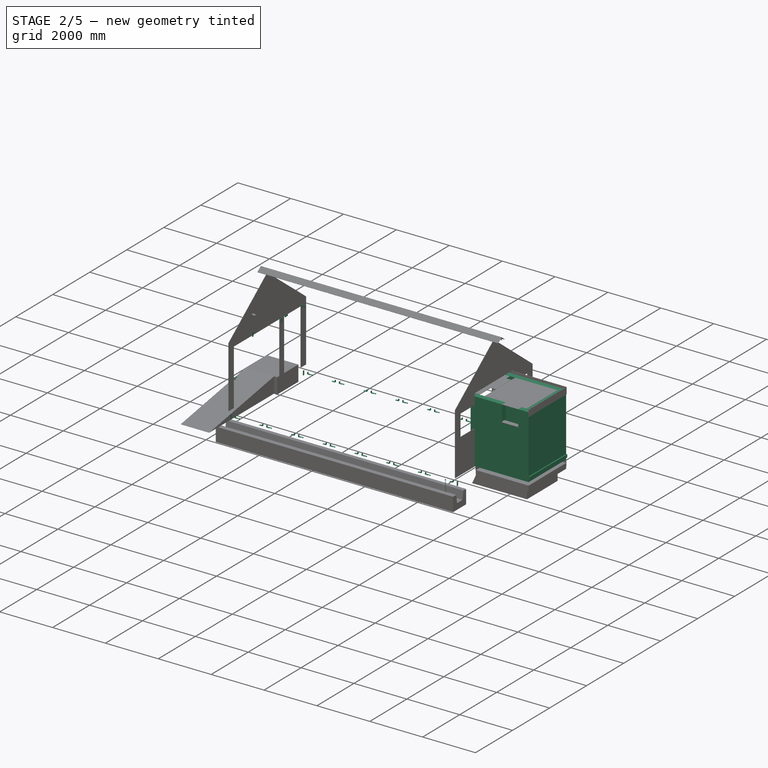
[diagram: stage 2 of 5 — iso view after this stage's code; geometry added in this stage tinted green]
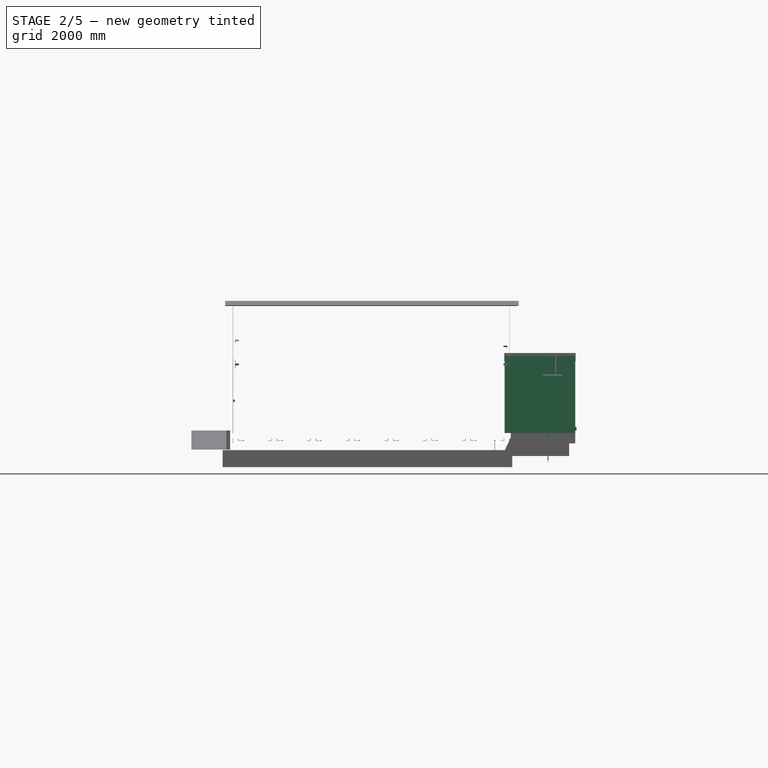
[diagram: stage 2 of 5 — front view after this stage's code; geometry added in this stage tinted green]
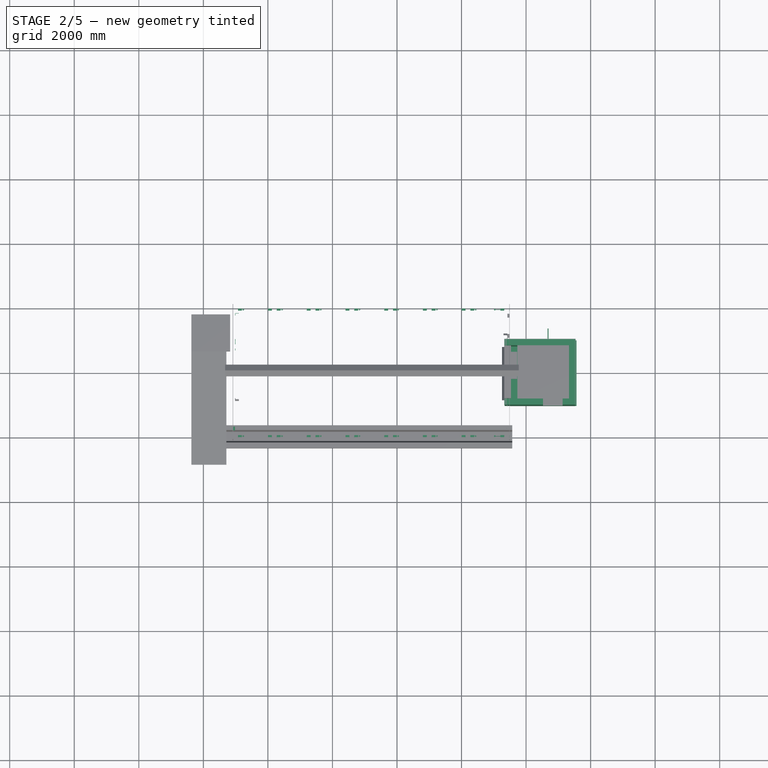
[diagram: stage 2 of 5 — top view after this stage's code; geometry added in this stage tinted green]
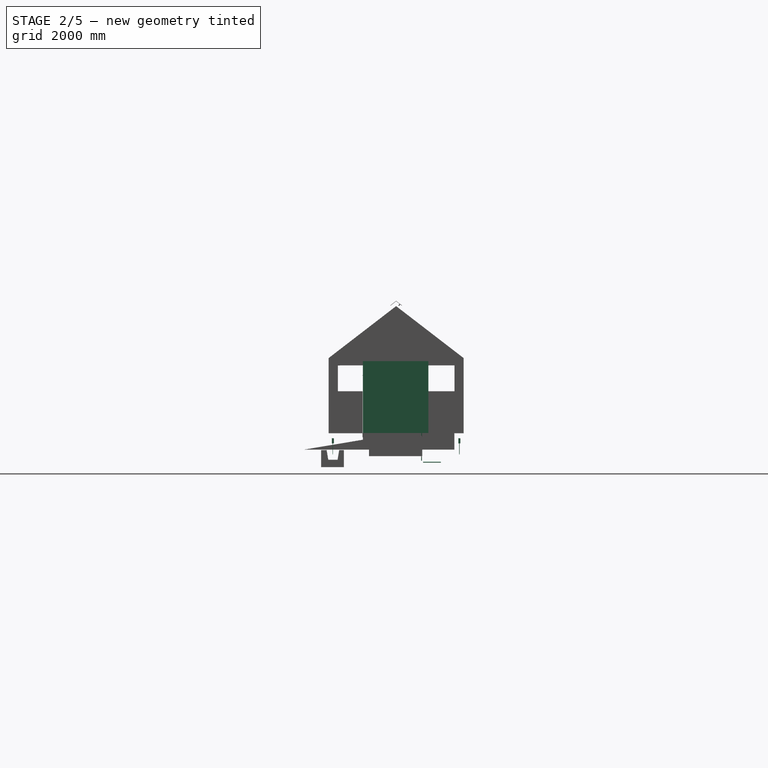
[diagram: stage 2 of 5 — right view after this stage's code; geometry added in this stage tinted green]
FEATURE [Part::FeaturePython] Array020  label="Fileira 021"  # Draft array (typed FeaturePython)
  Angle = 360
  ArrayType = 0
  Axis = (0,0,1)
  Base = -> Box
  Center = (0,0,0)
  Fuse = false
  IntervalAxis = (410,0,0)
  IntervalX = (400,0,0)
  IntervalY = (0,1,0)
  IntervalZ = (0,0,0)
  NumberPolar = 1
  NumberX = 4
  NumberY = 1
  NumberZ = 1
  Placement = pos=(9200,1024.6,710) rot=(0,0,1;0rad)
FEATURE [Part::FeaturePython] Array021  label="Fileira 022"  # Draft array (typed FeaturePython)
  Angle = 360
  ArrayType = 0
  Axis = (0,0,1)
  Base = -> Box
  Center = (0,0,0)
  Fuse = false
  IntervalAxis = (410,0,0)
  IntervalX = (400,0,0)
  IntervalY = (0,1,0)
  IntervalZ = (0,0,0)
  NumberPolar = 1
  NumberX = 5
  NumberY = 1
  NumberZ = 1
  Placement = pos=(8600,2864.6,510.001) rot=(0,0,1;0rad)
FEATURE [Part::FeaturePython] Array022  label="Fileira 023"  # Draft array (typed FeaturePython)
  Angle = 360
  ArrayType = 0
  Axis = (0,0,1)
  Base = -> Box
  Center = (0,0,0)
  Fuse = false
  IntervalAxis = (420,0,0)
  IntervalX = (410,0,0)
  IntervalY = (0,1,0)
  IntervalZ = (0,0,0)
  NumberPolar = 1
  NumberX = 5
  NumberY = 1
  NumberZ = 1
  Placement = pos=(5469.51,2234.27,510) rot=(0,0,1;1.5708rad)
FEATURE [Part::FeaturePython] Array023  label="Fileira 024"  # Draft array (typed FeaturePython)
  Angle = 360
  ArrayType = 0
  Axis = (0,0,1)
  Base = -> Box
  Center = (0,0,0)
  Fuse = false
  IntervalAxis = (420,0,0)
  IntervalX = (410,0,0)
  IntervalY = (0,1,0)
  IntervalZ = (0,0,0)
  NumberPolar = 1
  NumberX = 4
  NumberY = 1
  NumberZ = 1
  Placement = pos=(5469.52,2434.27,710) rot=(0,0,1;1.5708rad)
FEATURE [Part::FeaturePython] Array024  label="Fileira 025"  # Draft array (typed FeaturePython)
  Angle = 360
  ArrayType = 0
  Axis = (0,0,1)
  Base = -> Box
  Center = (0,0,0)
  Fuse = false
  IntervalAxis = (410,0,0)
  IntervalX = (400,0,0)
  IntervalY = (0,1,0)
  IntervalZ = (0,0,0)
  NumberPolar = 1
  NumberX = 5
  NumberY = 1
  NumberZ = 1
  Placement = pos=(8600,1024.6,510.001) rot=(0,0,1;0rad)
FEATURE [Part::FeaturePython] Array026  label="Fileira 027"  # Draft array (typed FeaturePython)
  Angle = 360
  ArrayType = 0
  Axis = (0,0,1)
  Base = -> Box
  Center = (0,0,0)
  Fuse = false
  IntervalAxis = (410,0,0)
  IntervalX = (400,0,0)
  IntervalY = (0,1,0)
  IntervalZ = (0,0,0)
  NumberPolar = 1
  NumberX = 4
  NumberY = 1
  NumberZ = 1
  Placement = pos=(9200,2864.6,710) rot=(0,0,1;0rad)
FEATURE [Part::FeaturePython] Clone017  label="Fileira 028"  # Draft clone (typed FeaturePython)
  AttacherType = Attacher::AttachEngine3D
  Objects = -> [Array024]
  Placement = pos=(8600,1024.6,910.001) rot=(0,0,1;0rad)
  Scale = (1,1,1)
FEATURE [Part::FeaturePython] Clone021  label="Fileira 030"  # Draft clone (typed FeaturePython)
  AttacherType = Attacher::AttachEngine3D
  Objects = -> [Array026]
  Placement = pos=(9200,2864.6,2310) rot=(0,0,1;0rad)
  Scale = (1,1,1)
FEATURE [Part::FeaturePython] Clone025  label="Fileira 031"  # Draft clone (typed FeaturePython)
  AttacherType = Attacher::AttachEngine3D
  Objects = -> [Array023]
  Placement = pos=(5469.52,2434.27,1110) rot=(0,0,1;1.5708rad)
  Scale = (1,1,1)
FEATURE [Part::FeaturePython] Clone029  label="Fileira 032"  # Draft clone (typed FeaturePython)
  AttacherType = Attacher::AttachEngine3D
  Objects = -> [Array022]
  Placement = pos=(5469.51,2234.27,910) rot=(0,0,1;1.5708rad)
  Scale = (1,1,1)
FEATURE [Part::FeaturePython] Clone030  label="Fileira 033"  # Draft clone (typed FeaturePython)
  AttacherType = Attacher::AttachEngine3D
  Objects = -> [Array021]
  Placement = pos=(8600,2864.6,910.001) rot=(0,0,1;0rad)
  Scale = (1,1,1)
FEATURE [Part::FeaturePython] Clone031  label="Fileira 034"  # Draft clone (typed FeaturePython)
  AttacherType = Attacher::AttachEngine3D
  Objects = -> [Array020]
  Placement = pos=(9200.01,1024.6,1510) rot=(0,0,1;0rad)
  Scale = (1,1,1)
FEATURE [Part::FeaturePython] Clone032  label="Fileira 035"  # Draft clone (typed FeaturePython)
  AttacherType = Attacher::AttachEngine3D
  Objects = -> [Clone017]
  Placement = pos=(8600,1024.6,1310) rot=(0,0,1;0rad)
  Scale = (1,1,1)
FEATURE [Part::FeaturePython] Clone033  label="Fileira 036"  # Draft clone (typed FeaturePython)
  AttacherType = Attacher::AttachEngine3D
  Objects = -> [Clone025]
  Placement = pos=(5469.52,2434.27,1510) rot=(0,0,1;1.5708rad)
  Scale = (1,1,1)
FEATURE [Part::FeaturePython] Clone034  label="Fileira 037"  # Draft clone (typed FeaturePython)
  AttacherType = Attacher::AttachEngine3D
  Objects = -> [Clone029]
  Placement = pos=(5469.51,2234.27,1310) rot=(0,0,1;1.5708rad)
  Scale = (1,1,1)
FEATURE [Part::FeaturePython] Clone039  label="Fileira 040"  # Draft clone (typed FeaturePython)
  AttacherType = Attacher::AttachEngine3D
  Objects = -> [Clone021]
  Placement = pos=(9200,2864.6,1510) rot=(0,0,1;0rad)
  Scale = (1,1,1)
FEATURE [Part::FeaturePython] Clone045  label="Fileira 041"  # Draft clone (typed FeaturePython)
  AttacherType = Attacher::AttachEngine3D
  Objects = -> [Clone030]
  Placement = pos=(8600,2864.6,1310) rot=(0,0,1;0rad)
  Scale = (1,1,1)
FEATURE [Part::FeaturePython] Clone047  label="Fileira 042"  # Draft clone (typed FeaturePython)
  AttacherType = Attacher::AttachEngine3D
  Objects = -> [Clone032]
  Placement = pos=(8600,1024.6,2110) rot=(0,0,1;0rad)
  Scale = (1,1,1)
FEATURE [Part::FeaturePython] Clone048  label="Fileira 043"  # Draft clone (typed FeaturePython)
  AttacherType = Attacher::AttachEngine3D
  Objects = -> [Clone033]
  Placement = pos=(5469.52,2434.27,2310) rot=(0,0,1;1.5708rad)
  Scale = (1,1,1)
FEATURE [Part::FeaturePython] Clone049  label="Fileira 044"  # Draft clone (typed FeaturePython)
  AttacherType = Attacher::AttachEngine3D
  Objects = -> [Clone045]
  Placement = pos=(8600,2864.6,2110) rot=(0,0,1;0rad)
  Scale = (1,1,1)
FEATURE [Part::FeaturePython] Clone051  label="Fileira 046"  # Draft clone (typed FeaturePython)
  AttacherType = Attacher::AttachEngine3D
  Objects = -> [Clone034]
  Placement = pos=(5469.51,2234.27,2110) rot=(0,0,1;1.5708rad)
  Scale = (1,1,1)
FEATURE [Part::FeaturePython] Clone072  label="Fileira 051"  # Draft clone (typed FeaturePython)
  AttacherType = Attacher::AttachEngine3D
  Objects = -> [Clone051]
  Placement = pos=(5469.51,2234.27,1710) rot=(0,0,1;1.5708rad)
  Scale = (1,1,1)
FEATURE [Part::FeaturePython] Clone074  label="Fileira 053"  # Draft clone (typed FeaturePython)
  AttacherType = Attacher::AttachEngine3D
  Objects = -> [Clone049]
  Placement = pos=(8600,2864.6,1710) rot=(0,0,1;0rad)
  Scale = (1,1,1)
FEATURE [Part::FeaturePython] Clone075  label="Fileira 054"  # Draft clone (typed FeaturePython)
  AttacherType = Attacher::AttachEngine3D
  Objects = -> [Clone048]
  Placement = pos=(5469.52,2434.27,1910) rot=(0,0,1;1.5708rad)
  Scale = (1,1,1)
FEATURE [Part::FeaturePython] Clone076  label="Fileira 055"  # Draft clone (typed FeaturePython)
  AttacherType = Attacher::AttachEngine3D
  Objects = -> [Clone047]
  Placement = pos=(8600,1024.6,1710) rot=(0,0,1;0rad)
  Scale = (1,1,1)
FEATURE [Part::FeaturePython] Clone087  label="Fileira 058"  # Draft clone (typed FeaturePython)
  AttacherType = Attacher::AttachEngine3D
  Objects = -> [Clone051]
  Placement = pos=(5469.51,2234.27,2510) rot=(0,0,1;1.5708rad)
  Scale = (1,1,1)
FEATURE [Part::FeaturePython] Clone089  label="Fileira 060"  # Draft clone (typed FeaturePython)
  AttacherType = Attacher::AttachEngine3D
  Objects = -> [Clone049]
  Placement = pos=(8600,2864.6,2510) rot=(0,0,1;0rad)
  Scale = (1,1,1)
FEATURE [Part::FeaturePython] Clone090  label="Fileira 061"  # Draft clone (typed FeaturePython)
  AttacherType = Attacher::AttachEngine3D
  Objects = -> [Clone048]
  Placement = pos=(5469.52,2434.27,2710) rot=(0,0,1;1.5708rad)
  Scale = (1,1,1)
FEATURE [Part::FeaturePython] Array027  label="Fileira 063"  # Draft array (typed FeaturePython)
  Angle = 360
  ArrayType = 0
  Axis = (0,0,1)
  Base = -> Box
  Center = (0,0,0)
  Fuse = false
  IntervalAxis = (410,0,0)
  IntervalX = (400,0,0)
  IntervalY = (0,1,0)
  IntervalZ = (0,0,0)
  NumberPolar = 1
  NumberX = 2
  NumberY = 1
  NumberZ = 1
  Placement = pos=(8800.01,1024.6,2710) rot=(0,0,1;0rad)
FEATURE [Part::FeaturePython] Array028  label="Fileira 064"  # Draft array (typed FeaturePython)
  Angle = 360
  ArrayType = 0
  Axis = (0,0,1)
  Base = -> Box
  Center = (0,0,0)
  Fuse = false
  IntervalAxis = (410,0,0)
  IntervalX = (400,0,0)
  IntervalY = (0,1,0)
  IntervalZ = (0,0,0)
  NumberPolar = 1
  NumberX = 5
  NumberY = 1
  NumberZ = 1
  Placement = pos=(8800.01,1024.6,1910) rot=(0,0,1;0rad)
FEATURE [Part::FeaturePython] Array029  label="Fileira 065"  # Draft array (typed FeaturePython)
  Angle = 360
  ArrayType = 0
  Axis = (0,0,1)
  Base = -> Box
  Center = (0,0,0)
  Fuse = false
  IntervalAxis = (410,0,0)
  IntervalX = (400,0,0)
  IntervalY = (0,1,0)
  IntervalZ = (0,0,0)
  NumberPolar = 1
  NumberX = 5
  NumberY = 1
  NumberZ = 1
  Placement = pos=(8800.01,1024.6,1110) rot=(0,0,1;0rad)
FEATURE [Part::FeaturePython] Array030  label="Fileira 066"  # Draft array (typed FeaturePython)
  Angle = 360
  ArrayType = 0
  Axis = (0,0,1)
  Base = -> Box
  Center = (0,0,0)
  Fuse = false
  IntervalAxis = (410,0,0)
  IntervalX = (400,0,0)
  IntervalY = (0,1,0)
  IntervalZ = (0,0,0)
  NumberPolar = 1
  NumberX = 5
  NumberY = 1
  NumberZ = 1
  Placement = pos=(8800.01,2864.6,2710) rot=(0,0,1;0rad)
FEATURE [Part::FeaturePython] Array031  label="Fileira 067"  # Draft array (typed FeaturePython)
  Angle = 360
  ArrayType = 0
  Axis = (0,0,1)
  Base = -> Box
  Center = (0,0,0)
  Fuse = false
  IntervalAxis = (410,0,0)
  IntervalX = (400,0,0)
  IntervalY = (0,1,0)
  IntervalZ = (0,0,0)
  NumberPolar = 1
  NumberX = 5
  NumberY = 1
  NumberZ = 1
  Placement = pos=(8800.01,2864.6,1910) rot=(0,0,1;0rad)
FEATURE [Part::FeaturePython] Array032  label="Fileira 068"  # Draft array (typed FeaturePython)
  Angle = 360
  ArrayType = 0
  Axis = (0,0,1)
  Base = -> Box
  Center = (0,0,0)
  Fuse = false
  IntervalAxis = (410,0,0)
  IntervalX = (400,0,0)
  IntervalY = (0,1,0)
  IntervalZ = (0,0,0)
  NumberPolar = 1
  NumberX = 5
  NumberY = 1
  NumberZ = 1
  Placement = pos=(8800.01,2864.6,1110) rot=(0,0,1;0rad)
FEATURE [Part::FeaturePython] Array033  label="Fileira 069"  # Draft array (typed FeaturePython)
  Angle = 360
  ArrayType = 0
  Axis = (0,0,1)
  Base = -> Box
  Center = (0,0,0)
  Fuse = false
  IntervalAxis = (410,0,0)
  IntervalX = (400,0,0)
  IntervalY = (0,1,0)
  IntervalZ = (0,0,0)
  NumberPolar = 1
  NumberX = 1
  NumberY = 1
  NumberZ = 1
  Placement = pos=(10400,1024.6,2710) rot=(0,0,1;0rad)
FEATURE [Part::FeaturePython] Array034  label="Fileira 070"  # Draft array (typed FeaturePython)
  Angle = 360
  ArrayType = 0
  Axis = (0,0,1)
  Base = -> Box
  Center = (0,0,0)
  Fuse = false
  IntervalAxis = (410,0,0)
  IntervalX = (400,0,0)
  IntervalY = (0,1,0)
  IntervalZ = (0,0,0)
  NumberPolar = 1
  NumberX = 3
  NumberY = 1
  NumberZ = 1
  Placement = pos=(8600,1024.6,2510) rot=(0,0,1;0rad)
FEATURE [Part::Box] Box001  label="Cube001"
  AttacherType = Attacher::AttachEngine3D
  Height = 190
  Length = 190
  Placement = pos=(-3265.08,-2055.41,-520.971) rot=(0,0,1;0rad)
  Width = 190
FEATURE [Part::FeaturePython] Clone007  label="Meio-bloco 19cm 003"  # Draft clone (typed FeaturePython)
  AttacherType = Attacher::AttachEngine3D
  Objects = -> [Box001]
  Placement = pos=(5534.92,-1030.81,79.0292) rot=(0,0,1;0rad)
  Scale = (1,1,1)
FEATURE [Part::FeaturePython] Clone012  label="Meio-bloco 19cm 007"  # Draft clone (typed FeaturePython)
  AttacherType = Attacher::AttachEngine3D
  Objects = -> [Clone007]
  Placement = pos=(5334.92,-1030.81,389) rot=(0,0,1;0rad)
  Scale = (1,1,1)
FEATURE [Part::FeaturePython] Clone013  label="Meio-bloco 19cm 008"  # Draft clone (typed FeaturePython)
  AttacherType = Attacher::AttachEngine3D
  Objects = -> [Clone012]
  Placement = pos=(5734.92,-1030.81,389) rot=(0,0,1;0rad)
  Scale = (1,1,1)
FEATURE [Part::FeaturePython] Clone014  label="Meio-bloco 19cm 009"  # Draft clone (typed FeaturePython)
  AttacherType = Attacher::AttachEngine3D
  Objects = -> [Clone012]
  Placement = pos=(5334.92,809.19,389) rot=(0,0,1;0rad)
  Scale = (1,1,1)
FEATURE [Part::FeaturePython] Clone015  label="Meio-bloco 19cm 010"  # Draft clone (typed FeaturePython)
  AttacherType = Attacher::AttachEngine3D
  Objects = -> [Clone013]
  Placement = pos=(5734.92,809.192,389) rot=(0,0,1;0rad)
  Scale = (1,1,1)
FEATURE [Part::FeaturePython] Clone019  label="Meio-bloco 19cm 011"  # Draft clone (typed FeaturePython)
  AttacherType = Attacher::AttachEngine3D
  Objects = -> [Clone012]
  Placement = pos=(5334.92,-1030.81,789) rot=(0,0,1;0rad)
  Scale = (1,1,1)
FEATURE [Part::FeaturePython] Clone022  label="Meio-bloco 19cm 013"  # Draft clone (typed FeaturePython)
  AttacherType = Attacher::AttachEngine3D
  Objects = -> [Clone014]
  Placement = pos=(5334.92,809.19,789) rot=(0,0,1;0rad)
  Scale = (1,1,1)
FEATURE [Part::FeaturePython] Clone023  label="Meio-bloco 19cm 014"  # Draft clone (typed FeaturePython)
  AttacherType = Attacher::AttachEngine3D
  Objects = -> [Clone015]
  Placement = pos=(5734.92,809.192,1989) rot=(0,0,1;0rad)
  Scale = (1,1,1)
FEATURE [Part::FeaturePython] Clone035  label="Meio-bloco 19cm 017"  # Draft clone (typed FeaturePython)
  AttacherType = Attacher::AttachEngine3D
  Objects = -> [Clone019]
  Placement = pos=(5334.92,-1030.81,1189) rot=(0,0,1;0rad)
  Scale = (1,1,1)
FEATURE [Part::FeaturePython] Clone043  label="Meio-bloco 19cm 020"  # Draft clone (typed FeaturePython)
  AttacherType = Attacher::AttachEngine3D
  Objects = -> [Clone022]
  Placement = pos=(5334.92,809.19,1189) rot=(0,0,1;0rad)
  Scale = (1,1,1)
FEATURE [Part::FeaturePython] Clone044  label="Meio-bloco 19cm 021"  # Draft clone (typed FeaturePython)
  AttacherType = Attacher::AttachEngine3D
  Objects = -> [Clone023]
  Placement = pos=(5734.92,809.192,1189) rot=(0,0,1;0rad)
  Scale = (1,1,1)
FEATURE [Part::FeaturePython] Clone053  label="Meio-bloco 19cm 023"  # Draft clone (typed FeaturePython)
  AttacherType = Attacher::AttachEngine3D
  Objects = -> [Clone035]
  Placement = pos=(5334.92,-1030.81,1989) rot=(0,0,1;0rad)
  Scale = (1,1,1)
FEATURE [Part::FeaturePython] Clone060  label="Meio-bloco 19cm 027"  # Draft clone (typed FeaturePython)
  AttacherType = Attacher::AttachEngine3D
  Objects = -> [Clone043]
  Placement = pos=(5334.92,809.19,1989) rot=(0,0,1;0rad)
  Scale = (1,1,1)
FEATURE [Part::FeaturePython] Clone063  label="Meio-bloco 19cm 030"  # Draft clone (typed FeaturePython)
  AttacherType = Attacher::AttachEngine3D
  Objects = -> [Clone060]
  Placement = pos=(5334.92,809.19,1589) rot=(0,0,1;0rad)
  Scale = (1,1,1)
FEATURE [Part::FeaturePython] Clone070  label="Meio-bloco 19cm 034"  # Draft clone (typed FeaturePython)
  AttacherType = Attacher::AttachEngine3D
  Objects = -> [Clone053]
  Placement = pos=(5334.92,-1030.81,1589) rot=(0,0,1;0rad)
  Scale = (1,1,1)
FEATURE [Part::FeaturePython] Clone078  label="Meio-bloco 19cm 036"  # Draft clone (typed FeaturePython)
  AttacherType = Attacher::AttachEngine3D
  Objects = -> [Clone060]
  Placement = pos=(5334.92,809.19,2389) rot=(0,0,1;0rad)
  Scale = (1,1,1)
FEATURE [Part::FeaturePython] Clone085  label="Meio-bloco 19cm 040"  # Draft clone (typed FeaturePython)
  AttacherType = Attacher::AttachEngine3D
  Objects = -> [Clone053]
  Placement = pos=(5334.92,-1030.81,2389) rot=(0,0,1;0rad)
  Scale = (1,1,1)
FEATURE [Part::FeaturePython] Clone092  label="Meio-bloco 19cm 041"  # Draft clone (typed FeaturePython)
  AttacherType = Attacher::AttachEngine3D
  Objects = -> [Clone013]
  Placement = pos=(5734.92,-1030.81,1189) rot=(0,0,1;0rad)
  Scale = (1,1,1)
FEATURE [Part::FeaturePython] Clone093  label="Meio-bloco 19cm 042"  # Draft clone (typed FeaturePython)
  AttacherType = Attacher::AttachEngine3D
  Objects = -> [Clone092]
  Placement = pos=(5734.92,-1030.81,1989) rot=(0,0,1;0rad)
  Scale = (1,1,1)
FEATURE [Part::FeaturePython] Clone107  label="Meio-bloco 19cm 049"  # Draft clone (typed FeaturePython)
  AttacherType = Attacher::AttachEngine3D
  Objects = -> [Clone085]
  Placement = pos=(7134.93,-1030.81,2189.03) rot=(0,0,1;0rad)
  Scale = (1,1,1)
FEATURE [Part::FeaturePython] Clone108  label="Meio-bloco 19cm 050"  # Draft clone (typed FeaturePython)
  AttacherType = Attacher::AttachEngine3D
  Objects = -> [Clone107]
  Placement = pos=(6334.93,-1030.81,2389.03) rot=(0,0,1;0rad)
  Scale = (1,1,1)
FEATURE [Part::Part2DObjectPython] DWire010  # Draft 2D object (typed FeaturePython)
  ChamferSize = 0
  Closed = false
  End = (5524.92,809.191,-520.972)
  FilletRadius = 0
  Length = 10026.3
  MakeFace = true
  Points = (3) [(-3265.08,2045.49,-520.972),(5524.92,2045.49,-520.972),(5524.92,809.191,-520.972)]
  Start = (-3265.08,2045.49,-520.972)
  Subdivisions = 0
FEATURE [Part::Part2DObjectPython] DWire011  # Draft 2D object (typed FeaturePython)
  ChamferSize = 0
  Closed = false
  End = (-3265.08,-2055.41,-520.972)
  FilletRadius = 0
  Length = 10005
  MakeFace = true
  Points = (3) [(5524.92,-840.408,-520.972),(5524.92,-2055.41,-520.972),(-3265.08,-2055.41,-520.972)]
  Start = (5524.92,-840.408,-520.972)
  Subdivisions = 0
FEATURE [Part::FeaturePython] Wall003  label="Wall001"  # WARN: FeaturePython — macro-defined, semantics opaque (R4)
  Align = 0
  Base = -> DWire011
  Face = 0
  Height = 390
  HorizontalArea = 1.86485e+06
  Length = 10005
  MoveWithHost = false
  Normal = (0,0,0)
  PerimeterLength = 20010
  Role = 0
  VerticalArea = 7.8039e+06
  Width = 190
FEATURE [Part::Extrusion] Extrusion006  label="Extrusion016"
  Base = -> Rectangle007
  Dir = (0,0,700)
  DirMode = 0
  FaceMakerClass = Part::FaceMakerBullseye
  LengthFwd = 0
  LengthRev = 0
  Placement = pos=(0,0,-200) rot=(0,0,1;0rad)
  Solid = true
  Symmetric = false
FEATURE [App::FeaturePython] Dimension048  # Draft dimension (typed FeaturePython)
  Diameter = false
  Dimline = (-3401.94,-1293.67,-432.016)
  Direction = (0,0,0)
  Distance = 300
  End = (-3401.94,-1814.9,-338.864)
  Normal = (-1,0,0)
  Start = (-3401.94,-1814.9,-638.864)
FEATURE [App::FeaturePython] Dimension049  # Draft dimension (typed FeaturePython)
  Diameter = false
  Dimline = (-3401.94,-1395.72,-579.205)
  Direction = (0,0,0)
  Distance = 50
  End = (-3401.94,-1814.9,-588.864)
  Normal = (-1,0,0)
  Start = (-3401.94,-1814.9,-638.864)
FEATURE [App::FeaturePython] Dimension050  # Draft dimension (typed FeaturePython)
  Diameter = false
  Dimline = (-3401.94,-1395.72,-638.863)
  Direction = (0,0,0)
  Distance = 64.6794
  End = (-3401.94,-1814.9,-524.185)
  Normal = (-1,0,0)
  Start = (-3401.94,-1814.9,-588.864)
FEATURE [App::FeaturePython] Dimension051  # Draft dimension (typed FeaturePython)
  Diameter = false
  Dimline = (-3401.94,-1395.72,-524.185)
  Direction = (0,0,0)
  Distance = 185.32
  End = (-3401.94,-1814.9,-338.864)
  Normal = (-1,0,0)
  Start = (-3401.94,-1814.9,-524.185)
FEATURE [App::FeaturePython] Dimension052  # Draft dimension (typed FeaturePython)
  Diameter = false
  Dimline = (-3401.94,-1395.72,-338.864)
  Direction = (0,0,0)
  Distance = 207.893
  End = (-3401.94,-1764.9,-130.972)
  Normal = (-1,0,0)
  Start = (-3401.94,-1764.9,-338.864)
FEATURE [App::FeaturePython] Dimension053  # Draft dimension (typed FeaturePython)
  Diameter = false
  Dimline = (-3401.94,-1931.48,-1055.65)
  Direction = (0,0,0)
  Distance = 288.235
  End = (-3401.94,-2103.14,-638.864)
  Normal = (-1,0,0)
  Start = (-3401.94,-1814.9,-638.864)
FEATURE [Part::Part2DObjectPython] Line003  # Draft 2D object (typed FeaturePython)
  ChamferSize = 0
  Closed = false
  End = (-3401.94,-1814.9,-638.864)
  FilletRadius = 0
  Length = 419.182
  MakeFace = true
  Points = (2) [(-3401.94,-1395.72,-638.863),(-3401.94,-1814.9,-638.864)]
  Start = (-3401.94,-1395.72,-638.863)
  Subdivisions = 0
FEATURE [Part::Part2DObjectPython] Line004  # Draft 2D object (typed FeaturePython)
  ChamferSize = 0
  Closed = false
  End = (-3401.94,-2153.14,-338.864)
  FilletRadius = 0
  Length = 757.416
  MakeFace = true
  Points = (2) [(-3401.94,-1395.72,-338.864),(-3401.94,-2153.14,-338.864)]
  Start = (-3401.94,-1395.72,-338.864)
  Subdivisions = 0
FEATURE [Part::Part2DObjectPython] Line005  # Draft 2D object (typed FeaturePython)
  ChamferSize = 0
  Closed = false
  End = (-3401.94,-1814.9,-638.864)
  FilletRadius = 0
  Length = 416.791
  MakeFace = true
  Points = (2) [(-3401.94,-1814.9,-1055.65),(-3401.94,-1814.9,-638.864)]
  Start = (-3401.94,-1814.9,-1055.65)
  Subdivisions = 0
FEATURE [Part::Part2DObjectPython] Line006  # Draft 2D object (typed FeaturePython)
  ChamferSize = 0
  Closed = false
  End = (-3401.94,-2103.14,-638.864)
  FilletRadius = 0
  Length = 416.791
  MakeFace = true
  Points = (2) [(-3401.94,-2103.14,-1055.65),(-3401.94,-2103.14,-638.864)]
  Start = (-3401.94,-2103.14,-1055.65)
  Subdivisions = 0
FEATURE [Part::Part2DObjectPython] DWire031  # Draft 2D object (typed FeaturePython)
  ChamferSize = 0
  Closed = false
  End = (-3265.08,-1962.85,-256.334)
  FilletRadius = 0
  Length = 1395.9
  MakeFace = true
  Points = (3) [(-3401.94,-3306.48,-33.1417),(-3401.94,-2940.7,-212.899),(-3265.08,-1962.85,-256.334)]
  Start = (-3401.94,-3306.48,-33.1417)
  Subdivisions = 0
FEATURE [Part::Part2DObjectPython] DWire032  # Draft 2D object (typed FeaturePython)
  ChamferSize = 0
  Closed = false
  End = (-3401.94,-2037.37,-552.029)
  FilletRadius = 0
  Length = 1326.46
  MakeFace = true
  Points = (3) [(-3401.94,-3296.38,-158.153),(-3401.94,-2946.77,-333.777),(-3401.94,-2037.37,-552.029)]
  Start = (-3401.94,-3296.38,-158.153)
  Subdivisions = 0
FEATURE [Part::Part2DObjectPython] DWire033  # Draft 2D object (typed FeaturePython)
  ChamferSize = 0
  Closed = false
  End = (-3401.94,-2017.17,-622.937)
  FilletRadius = 0
  Length = 1331.96
  MakeFace = true
  Points = (3) [(-3401.94,-3290.32,-269.746),(-3401.94,-2946.77,-444.296),(-3401.94,-2017.17,-622.937)]
  Start = (-3401.94,-3290.32,-269.746)
  Subdivisions = 0
FEATURE [App::Annotation] Text005
  LabelText = Blocos de concreto de 19cm
  Position = (-3401.94,-3338.79,-24.9248)
FEATURE [App::Annotation] Text006
  LabelText = Base de concreto
  Position = (-3401.94,-3340.81,-142.072)
FEATURE [App::Annotation] Text007
  LabelText = Camada de areia apiloada
  Position = (-3401.94,-3332.73,-266.091)
FEATURE [Part::Part2DObjectPython] Circle  # Draft 2D object (typed FeaturePython)
  FirstAngle = 0
  LastAngle = 0
  MakeFace = true
  Placement = pos=(-3265.08,-1960.41,-31) rot=(0,0,1;0rad)
  Radius = 6
FEATURE [Part::Part2DObjectPython] DWire034  # Draft 2D object (typed FeaturePython)
  ChamferSize = 0
  Closed = false
  End = (-3094.63,-1960.41,-466.636)
  FilletRadius = 40
  Length = 588.915
  MakeFace = true
  Placement = pos=(0,94.9975,0) rot=(0,0,1;0rad)
  Points = (3) [(-3265.08,-2055.41,-31),(-3265.08,-2055.41,-466.636),(-3094.63,-2055.41,-466.636)]
  Start = (-3265.08,-1960.41,-31)
  Subdivisions = 0
  Support = -> [Wall003]
FEATURE [Part::Sweep] Sweep
  Frenet = false
  Placement = pos=(100,0,0) rot=(0,0,1;0rad)
  Sections = -> [Circle]
  Solid = true
  Spine = -> DWire034 [Edge1,Edge2,Edge3]
  Transition = 1
FEATURE [Part::FeaturePython] Array039  label="Ferros 5mm filetados"  # Draft array (typed FeaturePython)
  Angle = 360
  ArrayType = 0
  Axis = (0,0,1)
  Base = -> Sweep
  Center = (0,0,0)
  Fuse = false
  IntervalAxis = (0,0,0)
  IntervalX = (1200,0,0)
  IntervalY = (0,3920,0)
  IntervalZ = (0,0,0)
  NumberPolar = 1
  NumberX = 7
  NumberY = 2
  NumberZ = 1
  Placement = pos=(1273.23,0,1e-12) rot=(0,0,1;3.14159rad)
FEATURE [App::FeaturePython] Dimension063  # Draft dimension (typed FeaturePython)
  Diameter = false
  Dimline = (7868.73,999.192,100.18)
  Direction = (0,0,0)
  Distance = 112.054
  End = (7522.4,999.192,189.029)
  Normal = (0,-1,0)
  Start = (7522.4,999.192,76.975)
FEATURE [App::FeaturePython] Dimension064  # Draft dimension (typed FeaturePython)
  Diameter = false
  Dimline = (7786.85,-1040.81,105.981)
  Direction = (0,0,0)
  Distance = 250
  End = (7524.92,-1040.81,189.029)
  Normal = (0,-1,0)
  Start = (7524.92,-1040.81,-60.9709)
FEATURE [Part::Part2DObjectPython] Line027  # Draft 2D object (typed FeaturePython)
  ChamferSize = 0
  Closed = false
  End = (7524.92,999.192,189.029)
  FilletRadius = 0
  Length = 343.804
  MakeFace = true
  Placement = pos=(0,0,-180) rot=(0,0,1;0rad)
  Points = (2) [(7868.73,999.192,369.029),(7524.92,999.192,369.029)]
  Start = (7868.73,999.192,189.029)
  Subdivisions = 0
FEATURE [Part::Part2DObjectPython] Line028  # Draft 2D object (typed FeaturePython)
  ChamferSize = 0
  Closed = false
  End = (7513.99,999.192,78.4401)
  FilletRadius = 0
  Length = 354.742
  MakeFace = true
  Placement = pos=(0,0,-180) rot=(0,0,1;0rad)
  Points = (2) [(7868.73,999.192,256.975),(7513.99,999.192,258.44)]
  Start = (7868.73,999.192,76.975)
  Subdivisions = 0
FEATURE [Part::FeaturePython] Clone  label="Cube002"  # Draft clone (typed FeaturePython)
  AttacherType = Attacher::AttachEngine3D
  Objects = -> [Box]
  Placement = pos=(5934.93,-1030.81,1989) rot=(0,0,1;0rad)
  Scale = (1,1,1)
FEATURE [Part::FeaturePython] Clone124  label="Cube003"  # Draft clone (typed FeaturePython)
  AttacherType = Attacher::AttachEngine3D
  Objects = -> [Clone]
  Placement = pos=(7134.92,-1030.81,1989) rot=(0,0,1;0rad)
  Scale = (1,1,1)
FEATURE [Part::FeaturePython] Clone125  label="Meio-bloco 19cm 051"  # Draft clone (typed FeaturePython)
  AttacherType = Attacher::AttachEngine3D
  Objects = -> [Clone053]
  Placement = pos=(6334.93,-1030.81,1989) rot=(0,0,1;0rad)
  Scale = (1,1,1)
FEATURE [Part::Compound] Compound002  label="Blocos banheiro exterior"
  Links = -> [Array020,Array021,Array022,Array023,Array024,Clone012,Clone013,Array026,Clone014,Clone015,Clone017,Clone019,Clone021,Clone022,Clone023,Clone025,Clone029,Clone030,Clone031,Clone032,Clone033,Clone034,Clone035,Clone039,Clone043,Clone044,Clone045,Clone047,Clone048,Clone049,Clone051,Clone053,Clone060,Clone063,Clone070,Clone072,Clone074,Clone075,Clone076,Clone078,Clone085,Clone087,Clone089,Clone090,+15 more]
  Placement = pos=(0,0,180) rot=(0,0,1;0rad)
FEATURE [Part::FeaturePython] Wall004  label="Parede exterior banheiro - 183 blocos"  # Arch/BIM object (typed FeaturePython)
  Align = 1
  Base = -> DWire014
  Face = 0
  Height = 2390
  HiRes = -> Compound002
  HorizontalArea = 1.1457e+06
  IfcAttributes = IfcUID=1B3GrW13GHvujW093rt3ko
  Length = 6410
  Material = -> Material
  MoveWithHost = false
  Normal = (0,0,0)
  PerimeterLength = 12440
  Placement = pos=(0,0,-180) rot=(0,0,1;0rad)
  Role = 0
  Subtractions = -> [Extrusion006]
  VerticalArea = 2.92108e+07
  Width = 190
FEATURE [Part::Part2DObjectPython] Line029  # Draft 2D object (typed FeaturePython)
  ChamferSize = 0
  Closed = false
  End = (6282.7,-968.336,559.029)
  FilletRadius = 0
  Length = 887.699
  MakeFace = true
  Points = (2) [(5395,-968.336,559.029),(6282.7,-968.336,559.029)]
  Start = (5395,-968.336,559.029)
  Subdivisions = 0
  Support = -> [Array024]
FEATURE [Part::FeaturePython] Pipe008  label="Pipe"  # WARN: FeaturePython — macro-defined, semantics opaque (R4)
  Base = -> Line029
  Diameter = 5
  HorizontalArea = 0
  Length = 887.699
  MoveWithHost = false
  OffsetEnd = 0
  OffsetStart = 0
  PerimeterLength = 0
  Placement = pos=(0,0,5) rot=(0,0,1;0rad)
  Role = 0
  VerticalArea = 0
FEATURE [Part::FeaturePython] Array040  label="Reforço alvenaria001"  # Draft array (typed FeaturePython)
  Angle = 360
  ArrayType = 0
  Axis = (0,0,1)
  Base = -> Pipe008
  Center = (0,0,0)
  Fuse = false
  IntervalAxis = (0,0,0)
  IntervalX = (1,0,0)
  IntervalY = (0,80,0)
  IntervalZ = (0,0,0)
  NumberPolar = 1
  NumberX = 2
  NumberY = 2
  NumberZ = 1
  Placement = pos=(0,0,-180) rot=(0,0,1;0rad)
FEATURE [Part::FeaturePython] Clone126  label="Reforço alvenaria"  # Draft clone (typed FeaturePython)
  AttacherType = Attacher::AttachEngine3D
  Objects = -> [Array040]
  Placement = pos=(0,1841.24,-180) rot=(0,0,1;0rad)
  Scale = (1,1,1)
FEATURE [App::FeaturePython] Dimension077  # Draft dimension (typed FeaturePython)
  Diameter = false
  Dimline = (-2904.1,2328.22,-51)
  Direction = (0,0,0)
  Distance = 8550
  End = (-3075.08,1989.96,-51)
  LinkedGeometry = -> [Structure005]
  Normal = (0,0,1)
  Start = (5474.92,1989.96,-51)
  Support = -> Structure005
FEATURE [App::FeaturePython] Dimension078  # Draft dimension (typed FeaturePython)
  Diameter = false
  Dimline = (-3075.08,2328.22,-51)
  Direction = (0,0,0)
  Distance = 189.998
  End = (-3075.08,1950.49,-51)
  Normal = (0,0,1)
  Start = (-3265.08,1950.49,-51)
FEATURE [App::FeaturePython] Dimension079  # Draft dimension (typed FeaturePython)
  Diameter = false
  Dimline = (5474.92,2328.22,-51)
  Direction = (0,0,0)
  Distance = 50.0024
  End = (5524.92,1919.42,-51)
  Normal = (0,0,1)
  Start = (5474.92,1919.42,-51)
FEATURE [Part::FeaturePython] Washer  label="(M14)-Washer"  # Fasteners workbench fastener (typed FeaturePython)
  Placement = pos=(4438.31,1960.41,-46) rot=(1,0,0;3.14159rad)
  baseObject = -> Array039 [Edge2]
  diameter = 6
  invert = false
  matchOuter = false
  offset = 15
  type = 4
FEATURE [Part::FeaturePython] Nut  label="M20-Nut"  # Fasteners workbench fastener (typed FeaturePython)
  Placement = pos=(4438.31,1960.41,-45.4569) rot=(0,0,1;0rad)
  diameter = 15
  invert = false
  matchOuter = false
  offset = 0
  thread = false
  type = 1
FEATURE [Part::Compound] Compound012
  Links = -> [Washer,Nut]
FEATURE [Part::FeaturePython] Array041  label="Porcas 5mm"  # Draft array (typed FeaturePython)
  Angle = 360
  ArrayType = 0
  Axis = (0,0,1)
  Base = -> Compound012
  Center = (0,0,0)
  Fuse = false
  IntervalAxis = (0,0,0)
  IntervalX = (1200,0,0)
  IntervalY = (0,3920,0)
  IntervalZ = (0,0,0)
  NumberPolar = 1
  NumberX = 7
  NumberY = 2
  NumberZ = 1
  Placement = pos=(-7200,-3920,0) rot=(0,0,1;0rad)
FEATURE [Part::FeaturePython] Clone134  label="Cantoneira"  # Draft clone (typed FeaturePython)
  AttacherType = Attacher::AttachEngine3D
  Objects = -> [Clone132]
  Placement = pos=(3600.3,-3910.03,-104.946) rot=(0,0,1;0rad)
  Scale = (1,1,1)
FEATURE [Part::FeaturePython] Array043  label="Cantoneiras base"  # Draft array (typed FeaturePython)
  Angle = 360
  ArrayType = 0
  Axis = (0,0,1)
  Base = -> Compound028
  Center = (0,0,0)
  Fuse = false
  IntervalAxis = (0,0,0)
  IntervalX = (-1200,0,0)
  IntervalY = (0,-3920,0)
  IntervalZ = (0,0,0)
  NumberPolar = 1
  NumberX = 7
  NumberY = 2
  NumberZ = 1
FEATURE [Part::FeaturePython] Array044  label="Cantoneiras base001"  # Draft array (typed FeaturePython)
  Angle = 360
  ArrayType = 0
  Axis = (0,0,1)
  Base = -> Clone134
  Center = (0,0,0)
  Fuse = false
  IntervalAxis = (0,0,0)
  IntervalX = (-1200,0,0)
  IntervalY = (0,3920,0)
  IntervalZ = (0,0,0)
  NumberPolar = 1
  NumberX = 7
  NumberY = 2
  NumberZ = 1
FEATURE [Part::FeaturePython] Array045  label="Ferros chatos base"  # Draft array (typed FeaturePython)
  Angle = 360
  ArrayType = 0
  Axis = (0,0,1)
  Base = -> Compound031
  Center = (0,0,0)
  Fuse = false
  IntervalAxis = (0,0,0)
  IntervalX = (9050,0,0)
  IntervalY = (0,-3920,0)
  IntervalZ = (0,0,0)
  NumberPolar = 1
  NumberX = 1
  NumberY = 2
  NumberZ = 1
FEATURE [Part::FeaturePython] Array046  label="Ferros chatos base001"  # Draft array (typed FeaturePython)
  Angle = 360
  ArrayType = 0
  Axis = (0,0,1)
  Base = -> Compound031
  Center = (0,0,0)
  Fuse = false
  IntervalAxis = (0,0,0)
  IntervalX = (9050,0,0)
  IntervalY = (0,-3920,0)
  IntervalZ = (0,0,0)
  NumberPolar = 1
  NumberX = 1
  NumberY = 2
  NumberZ = 1
  Placement = pos=(2404.79,0,0) rot=(0,0,1;3.14159rad)
FEATURE [Part::FeaturePython] Clone146  label="Cantoneira008"  # Draft clone (typed FeaturePython)
  AttacherType = Attacher::AttachEngine3D
  Objects = -> [Clone145]
  Placement = pos=(-4997.17,68.0248,1278.41) rot=(0,0,-1;1.5708rad)
  Scale = (1,1,1)
FEATURE [Part::FeaturePython] Clone147  label="Cantoneira009"  # Draft clone (typed FeaturePython)
  AttacherType = Attacher::AttachEngine3D
  Objects = -> [Clone146]
  Placement = pos=(-4997.17,-1221.97,1278.41) rot=(0,0,-1;1.5708rad)
  Scale = (-1,1,1)
FEATURE [Part::FeaturePython] Clone149  label="Cantoneira011"  # Draft clone (typed FeaturePython)
  AttacherType = Attacher::AttachEngine3D
  Objects = -> [Clone148]
  Placement = pos=(-3692.17,1860.97,364.419) rot=(1,0,0;1.5708rad)
  Scale = (1,1,1)
FEATURE [Part::FeaturePython] Clone150  label="Cantoneira012"  # Draft clone (typed FeaturePython)
  AttacherType = Attacher::AttachEngine3D
  Objects = -> [Clone147]
  Placement = pos=(-4997.17,-2481.97,1278.41) rot=(0,0,-1;1.5708rad)
  Scale = (1,1,1)
FEATURE [Part::FeaturePython] Clone151  label="Ferro chato002"  # Draft clone (typed FeaturePython)
  AttacherType = Attacher::AttachEngine3D
  Objects = -> [Clone140]
  Placement = pos=(-3692.17,-1266.97,2220.41) rot=(0,0,1;0rad)
  Scale = (1,1,1)
FEATURE [Part::FeaturePython] Clone153  label="Ferro chato004"  # Draft clone (typed FeaturePython)
  AttacherType = Attacher::AttachEngine3D
  Objects = -> [Clone152]
  Placement = pos=(-3692.17,-2826.97,2320.41) rot=(0,0,1;0rad)
  Scale = (1,1,1)
FEATURE [Part::FeaturePython] Clone154  label="Ferro chato005"  # Draft clone (typed FeaturePython)
  AttacherType = Attacher::AttachEngine3D
  Objects = -> [Clone140]
  Placement = pos=(-3692.17,970.973,364.419) rot=(1,0,0;1.5708rad)
  Scale = (1,1,1)
FEATURE [App::FeaturePython] Dimension168  # Draft dimension (typed FeaturePython)
  Diameter = false
  Dimline = (5412.06,-1896.92,-1165.59)
  Direction = (0,0,0)
  Distance = 776.165
  End = (5412.06,-1806.97,184.415)
  Normal = (-1,0,0)
  Start = (5412.06,-1030.81,184.415)
FEATURE [App::FeaturePython] Dimension169  # Draft dimension (typed FeaturePython)
  Diameter = false
  Dimline = (5412.06,-796.917,-1165.59)
  Direction = (0,0,0)
  Distance = 2030
  End = (5412.06,-1030.81,184.415)
  Normal = (-1,0,0)
  Start = (5412.06,999.192,184.415)
FEATURE [App::FeaturePython] Dimension171  # Draft dimension (typed FeaturePython)
  Diameter = false
  Dimline = (5412.06,-2496.92,134.415)
  Direction = (0,0,0)
  Distance = 184.662
  End = (5412.06,-1031.41,369.076)
  Normal = (-1,0,0)
  Start = (5412.06,-1030.81,184.415)
FEATURE [App::FeaturePython] Dimension172  # Draft dimension (typed FeaturePython)
  Diameter = false
  Dimline = (5412.06,-2696.92,1234.41)
  Direction = (0,0,0)
  Distance = 1300
  End = (5412.06,-1806.97,1484.41)
  Normal = (-1,0,0)
  Start = (5412.06,-1806.97,184.415)
FEATURE [App::FeaturePython] Dimension173  # Draft dimension (typed FeaturePython)
  Diameter = false
  Dimline = (5412.06,1303.08,-1165.59)
  Direction = (0,0,0)
  Distance = 789.717
  End = (5412.06,999.192,188.664)
  Normal = (-1,0,0)
  Start = (5412.06,1788.91,188.664)
FEATURE [Part::Feature] Solid038  label="Caibro012"
  Placement = pos=(0,39.6351,-30.4808) rot=(0,0,1;0rad)
  shape: bbox 9050 x 60.36 x 65.85 mm, 6 faces (baked)
FEATURE [App::FeaturePython] Dimension174  # Draft dimension (typed FeaturePython)
  Diameter = false
  Dimline = (0,-2400,500)
  Direction = (0,0,0)
  Distance = 500
  End = (0,-2182.97,443.302)
  Normal = (1,0,0)
  Start = (0,-2182.97,-56.6984)
FEATURE [App::FeaturePython] Dimension175  # Draft dimension (typed FeaturePython)
  Diameter = false
  Dimline = (0,-2400,500)
  Direction = (0,0,0)
  Distance = 500
  End = (0,-2182.97,943.302)
  Normal = (1,0,0)
  Start = (0,-2182.97,443.302)
FEATURE [App::FeaturePython] Dimension176  # Draft dimension (typed FeaturePython)
  Diameter = false
  Dimline = (0,-2400,500)
  Direction = (0,0,0)
  Distance = 500
  End = (0,-2182.97,1443.3)
  Normal = (1,0,0)
  Start = (0,-2182.97,943.302)
FEATURE [App::FeaturePython] Dimension177  # Draft dimension (typed FeaturePython)
  Diameter = false
  Dimline = (0,-2400,500)
  Direction = (0,0,0)
  Distance = 500
  End = (0,-2182.97,1943.3)
  Normal = (1,0,0)
  Start = (0,-2182.97,1443.3)
FEATURE [App::FeaturePython] Dimension178  # Draft dimension (typed FeaturePython)
  Diameter = false
  Dimline = (0,-2400,500)
  Direction = (0,0,0)
  Distance = 500
  End = (0,-2182.97,2443.3)
  Normal = (1,0,0)
  Start = (0,-2182.97,1943.3)
FEATURE [App::FeaturePython] Dimension179  # Draft dimension (typed FeaturePython)
  Diameter = false
  Dimline = (0,-1900,3000)
  Direction = (0,0,0)
  Distance = 500
  End = (0,-1707.64,2920.79)
  Normal = (1,0,0)
  Start = (0,-2103.99,2615.98)
FEATURE [App::FeaturePython] Dimension180  # Draft dimension (typed FeaturePython)
  Diameter = false
  Dimline = (0,-1900,3000)
  Direction = (0,0,0)
  Distance = 500
  End = (0,-1311.29,3225.59)
  Normal = (1,0,0)
  Start = (0,-1707.64,2920.79)
FEATURE [App::FeaturePython] Dimension181  # Draft dimension (typed FeaturePython)
  Diameter = false
  Dimline = (0,-1900,3000)
  Direction = (0,0,0)
  Distance = 500
  End = (0,-914.943,3530.4)
  Normal = (1,0,0)
  Start = (0,-1311.29,3225.59)
FEATURE [App::FeaturePython] Dimension182  # Draft dimension (typed FeaturePython)
  Diameter = false
  Dimline = (0,-1900,3000)
  Direction = (0,0,0)
  Distance = 500
  End = (0,-518.594,3835.21)
  Normal = (1,0,0)
  Start = (0,-914.943,3530.4)
FEATURE [App::FeaturePython] Dimension183  # Draft dimension (typed FeaturePython)
  Diameter = false
  Dimline = (0,-1900,3000)
  Direction = (0,0,0)
  Distance = 500
  End = (0,-122.245,4140.02)
  Normal = (1,0,0)
  Start = (0,-518.594,3835.21)
FEATURE [App::FeaturePython] Dimension184  # Draft dimension (typed FeaturePython)
  Diameter = false
  Dimline = (0,-1900,3000)
  Direction = (0,0,0)
  Distance = 86.2017
  End = (0,-53.9126,4192.56)
  Normal = (1,0,0)
  Start = (0,-122.245,4140.02)
FEATURE [App::FeaturePython] Dimension185  # Draft dimension (typed FeaturePython)
  Diameter = false
  Dimline = (0,-2400,2443.3)
  Direction = (0,0,0)
  Distance = 56.1736
  End = (0,-2182.97,2499.48)
  Normal = (1,0,0)
  Start = (0,-2182.97,2443.3)
FEATURE [Part::Part2DObjectPython] Line035  # Draft 2D object (typed FeaturePython)
  ChamferSize = 0
  Closed = false
  End = (-3265.08,-2949.51,-285.972)
  FilletRadius = 0
  Length = 5900
  MakeFace = true
  Placement = pos=(0,0,40) rot=(0,0,1;0rad)
  Points = (2) [(-3265.08,2950.49,-325.972),(-3265.08,-2949.51,-325.972)]
  Start = (-3265.08,2950.49,-285.972)
  Subdivisions = 0
FEATURE [App::FeaturePython] Dimension186  # Draft dimension (typed FeaturePython)
  Diameter = false
  Dimline = (-3265.08,-1049.51,-825.972)
  Direction = (0,0,0)
  Distance = 3910.89
  End = (-3265.08,-1960.41,-130.972)
  Normal = (-1,0,0)
  Start = (-3265.08,1950.49,-130.972)
FEATURE [App::FeaturePython] Dimension189  # Draft dimension (typed FeaturePython)
  Diameter = false
  Dimline = (-3265.08,2550.49,-225.972)
  Direction = (0,0,0)
  Distance = 315.431
  End = (-3265.08,1855.49,184.459)
  Normal = (-1,0,0)
  Start = (-3265.08,1855.49,-130.972)
FEATURE [App::FeaturePython] Dimension191  # Draft dimension (typed FeaturePython)
  Diameter = false
  Dimline = (-3265.08,2550.49,-130.972)
  Direction = (0,0,0)
  Distance = 352.892
  End = (-3265.08,2101.47,-285.972)
  Normal = (-1,0,0)
  Start = (-3265.08,2101.47,-638.864)
FEATURE [App::FeaturePython] Dimension192  # Draft dimension (typed FeaturePython)
  Diameter = false
  Dimline = (-3265.08,2550.49,-285.972)
  Direction = (0,0,0)
  Distance = 155
  End = (-3265.08,0.487427,-130.972)
  Normal = (-1,0,0)
  Start = (-3265.08,0.487427,-285.972)
FEATURE [App::FeaturePython] Dimension193  # Draft dimension (typed FeaturePython)
  Diameter = false
  Dimline = (674.998,2367.98,-91.7345)
  Direction = (0,0,0)
  Distance = 80
  End = (674.998,1989.96,-51)
  Normal = (-1,0,0)
  Start = (674.998,1989.96,-131)
FEATURE [App::FeaturePython] Dimension194  # Draft dimension (typed FeaturePython)
  Diameter = false
  Dimline = (674.998,2367.98,-91.7345)
  Direction = (0,0,0)
  Distance = 235.459
  End = (674.998,1929.96,184.459)
  Normal = (-1,0,0)
  Start = (674.998,1929.96,-51)
FEATURE [App::FeaturePython] Dimension190  # Draft dimension (typed FeaturePython)
  Diameter = false
  Dimline = (-3265.08,2550.49,74.0283)
  Direction = (0,0,0)
  Distance = 184.57
  End = (-3265.08,1807,369.029)
  Normal = (-1,0,0)
  Start = (-3265.08,1807,184.459)
FEATURE [App::FeaturePython] Dimension195  # Draft dimension (typed FeaturePython)
  Diameter = false
  Dimline = (-3075.08,2367.98,184.459)
  Direction = (0,0,0)
  Distance = 84.7626
  End = (-3075.08,1041,269.029)
  Normal = (-1,0,0)
  Start = (-3075.08,1041,184.266)
FEATURE [App::FeaturePython] Dimension196  # Draft dimension (typed FeaturePython)
  Diameter = false
  Dimline = (-3075.08,2367.98,269.029)
  Direction = (0,0,0)
  Distance = 100
  End = (-3075.08,999.192,369.029)
  Normal = (-1,0,0)
  Start = (-3075.08,999.192,269.029)
FEATURE [App::FeaturePython] Dimension197  # Draft dimension (typed FeaturePython)
  Diameter = false
  Dimline = (-3075.08,2550.49,184.459)
  Direction = (0,0,0)
  Distance = 2390
  End = (-3075.08,999.192,2759.03)
  Normal = (-1,0,0)
  Start = (-3075.08,999.192,369.029)
FEATURE [App::FeaturePython] Dimension198  # Draft dimension (typed FeaturePython)
  Diameter = false
  Dimline = (-3075.08,2550.49,2759.03)
  Direction = (0,0,0)
  Distance = 90
  End = (-3075.08,999.192,2849.03)
  Normal = (-1,0,0)
  Start = (-3075.08,999.192,2759.03)
FEATURE [Part::FeaturePython] Array047  label="Ferros 5mm filetados001"  # Draft array (typed FeaturePython)
  Angle = 360
  ArrayType = 0
  Axis = (0,0,1)
  Base = -> Sweep
  Center = (0,0,0)
  Fuse = false
  IntervalAxis = (0,0,0)
  IntervalX = (1200,0,0)
  IntervalY = (0,3920,0)
  IntervalZ = (0,0,0)
  NumberPolar = 1
  NumberX = 1
  NumberY = 2
  NumberZ = 1
  Placement = pos=(8194.98,0,2e-12) rot=(0,0,1;0rad)
FEATURE [Part::FeaturePython] Array048  label="Porcas 5mm001"  # Draft array (typed FeaturePython)
  Angle = 360
  ArrayType = 0
  Axis = (0,0,1)
  Base = -> Compound012
  Center = (0,0,0)
  Fuse = false
  IntervalAxis = (0,0,0)
  IntervalX = (1200,0,0)
  IntervalY = (0,3920,0)
  IntervalZ = (0,0,0)
  NumberPolar = 1
  NumberX = 1
  NumberY = 2
  NumberZ = 1
  Placement = pos=(591.591,-3920,0) rot=(0,0,1;0rad)
FEATURE [Part::FeaturePython] Pipe011  label="Lógica eletroduto 25mm002"  # WARN: FeaturePython — macro-defined, semantics opaque (R4)
  Base = -> Line037
  Diameter = 25
  HorizontalArea = 0
  Length = 1150
  MoveWithHost = false
  OffsetEnd = 0
  OffsetStart = 50
  PerimeterLength = 0
  Placement = pos=(6800,-6418.31,0) rot=(0,0,1;1.5708rad)
  Role = 0
  VerticalArea = 0
FEATURE [Part::FeaturePython] Pipe012  label="Lógica eletroduto 25mm001"  # WARN: FeaturePython — macro-defined, semantics opaque (R4)
  Base = -> Line036
  Diameter = 25
  HorizontalArea = 0
  Length = 550
  MoveWithHost = false
  OffsetEnd = 0
  OffsetStart = 50
  PerimeterLength = 0
  Placement = pos=(6800,-6418.31,0) rot=(0,0,1;1.5708rad)
  Role = 0
  VerticalArea = 0
FEATURE [App::DocumentObjectGroup] Group020  label="Tubulação"
  Group = -> [Pipe004,Pipe005,Pipe006,Pipe007,Connector001,Connector002,Connector003,Connector,Pipe002,Pipe,Pipe001,Pipe003,Connector005,Connector004,Pipe010,Pipe009,Pipe012,Pipe011]
FEATURE [App::DocumentObjectGroup] Group013  label="Equipamento"
  Group = -> [Component010,Group020]
FEATURE [Part::Part2DObjectPython] Rectangle071  # Draft 2D object (typed FeaturePython)
  ChamferSize = 0
  Columns = 1
  FilletRadius = 0
  Height = 6441.11
  Length = 13185
  MakeFace = true
  Placement = pos=(-4926.31,-3583.1,-322.682) rot=(0,0,1;0rad)
  Rows = 1
FEATURE [App::FeaturePython] Dimension205  # Draft dimension (typed FeaturePython)
  Diameter = false
  Dimline = (-3007.18,-1191.97,-965.585)
  Direction = (0,0,0)
  Distance = 1230
  End = (-3007.18,-576.973,184.415)
  Normal = (1,0,0)
  Start = (-3007.18,-1806.97,184.415)
FEATURE [App::FeaturePython] Dimension206  # Draft dimension (typed FeaturePython)
  Diameter = false
  Dimline = (-3007.18,-491.973,-965.585)
  Direction = (0,0,0)
  Distance = 1230
  End = (-3007.18,653.027,184.415)
  Normal = (1,0,0)
  Start = (-3007.18,-576.973,184.415)
FEATURE [App::FeaturePython] Dimension207  # Draft dimension (typed FeaturePython)
  Diameter = false
  Dimline = (-3007.18,708.027,-965.585)
  Direction = (0,0,0)
  Distance = 253.946
  End = (-3007.18,906.973,184.415)
  Normal = (1,0,0)
  Start = (-3007.18,653.027,184.415)
FEATURE [App::FeaturePython] Dimension208  # Draft dimension (typed FeaturePython)
  Diameter = false
  Dimline = (-3007.18,-3091.97,834.415)
  Direction = (0,0,0)
  Distance = 1100
  End = (-3007.18,-1806.97,1284.41)
  Normal = (1,0,0)
  Start = (-3007.18,-1806.97,184.415)
FEATURE [App::FeaturePython] Dimension209  # Draft dimension (typed FeaturePython)
  Diameter = false
  Dimline = (-3007.18,2508.03,1734.41)
  Direction = (0,0,0)
  Distance = 2100
  End = (-3007.18,906.973,2284.41)
  Normal = (1,0,0)
  Start = (-3007.18,906.973,184.415)
FEATURE [Part::Feature] Shape034036
  shape: bbox 2030 x 2030 x 2e-07 mm, 1 faces, 0 solids (baked)
FEATURE [Part::FeaturePython] Structure042  label="Structure001"  # WARN: FeaturePython — macro-defined, semantics opaque (R4)
  Base = -> Shape034036
  FaceMaker = 0
  Height = 110
  HorizontalArea = 4.1209e+06
  Length = 0
  MoveWithHost = false
  Nodes = (2) [(6549.92,-15.8085,269.029),(6549.92,-15.8085,379.029)]
  NodesOffset = 0
  Normal = (0,0,1)
  PerimeterLength = 8120
  Role = 2
  VerticalArea = 893200
  Width = 200
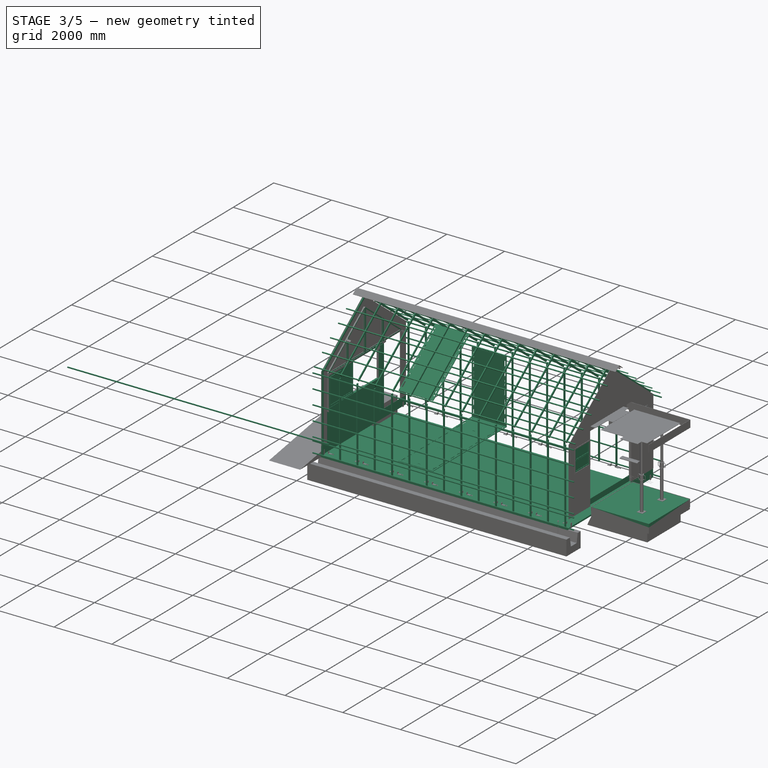
[diagram: stage 3 of 5 — iso view after this stage's code; geometry added in this stage tinted green]
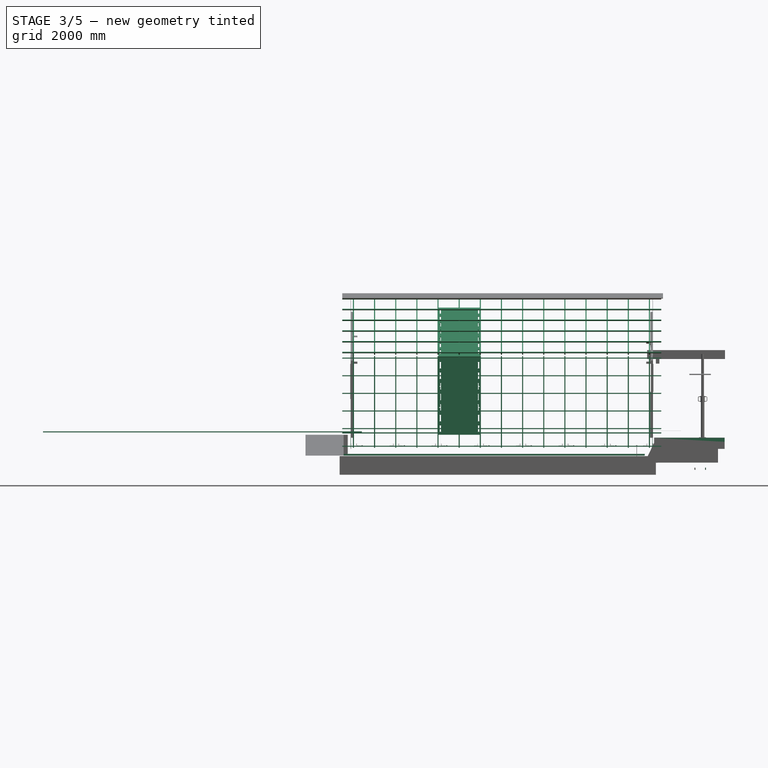
[diagram: stage 3 of 5 — front view after this stage's code; geometry added in this stage tinted green]
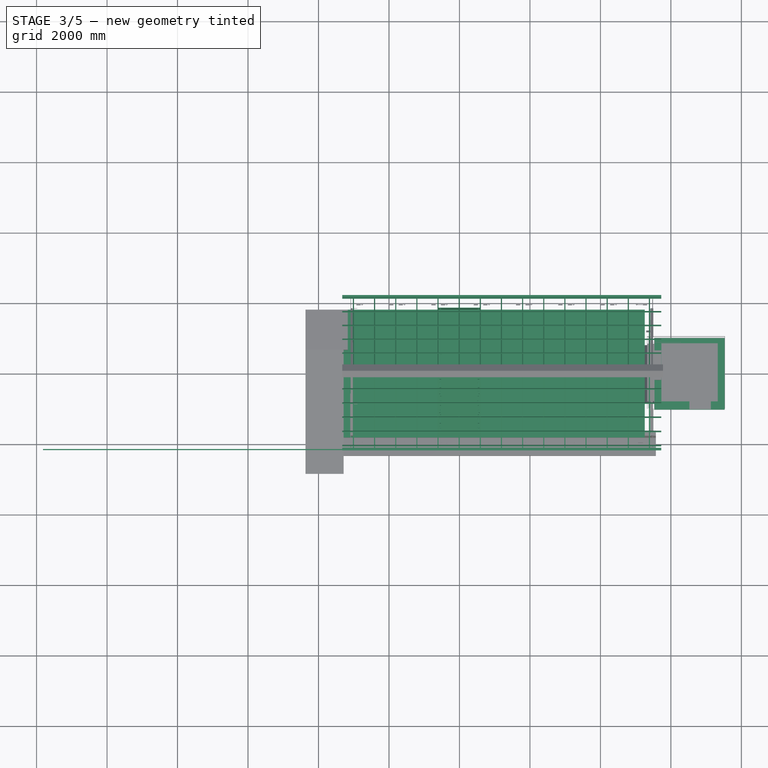
[diagram: stage 3 of 5 — top view after this stage's code; geometry added in this stage tinted green]
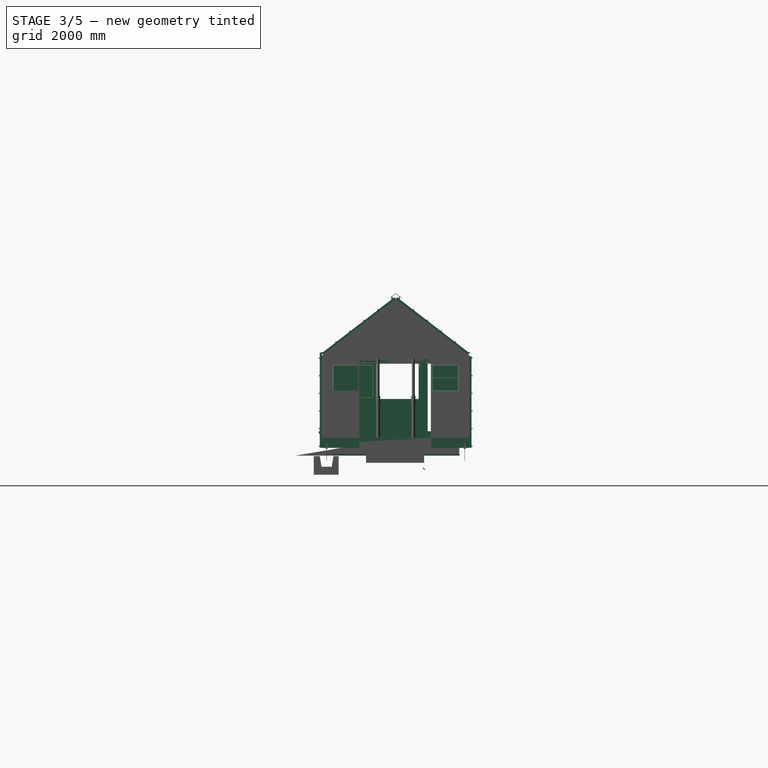
[diagram: stage 3 of 5 — right view after this stage's code; geometry added in this stage tinted green]
FEATURE [Part::Feature] Solid001
  shape: bbox 2230 x 2030 x 390 mm, 12 faces (baked)
FEATURE [Part::Part2DObjectPython] Rectangle  # Draft 2D object (typed FeaturePython)
  ChamferSize = 0
  Columns = 1
  FilletRadius = 0
  Height = 2885.43
  Length = 1251.81
  MakeFace = true
  Placement = pos=(7524.9,-1431.09,0) rot=(0,0,1;0rad)
  Rows = 1
FEATURE [Part::Extrusion] Extrusion
  Base = -> Rectangle
  Dir = (0,0,4222.99)
  DirMode = 0
  FaceMakerClass = Part::FaceMakerBullseye
  LengthFwd = 0
  LengthRev = 0
  Solid = true
  Symmetric = false
FEATURE [Part::Extrusion] Extrusion004  label="wren side lowres"
  Base = -> Cut015
  Dir = (125,0,0)
  DirMode = 0
  FaceMakerClass = Part::FaceMakerBullseye
  LengthFwd = 0
  LengthRev = 0
  Placement = pos=(8400,0,0) rot=(0,0,1;0rad)
  Solid = true
  Symmetric = false
FEATURE [Part::FeaturePython] Component009  label="Coluna final"  # WARN: FeaturePython — macro-defined, semantics opaque (R4)
  Base = -> Extrusion004
  HiRes = -> ASSEMBLY001001
  HorizontalArea = 0
  Material = -> Material002
  MoveWithHost = false
  PerimeterLength = 0
  Placement = pos=(8400,0,-101.581) rot=(0,0,1;0rad)
  Role = 0
  VerticalArea = 0
FEATURE [App::DocumentObjectGroup] Group005  label="Vigas - guia"
  Group = -> [Structure004,Structure005]
FEATURE [App::MaterialObjectPython] Material005  label="Viga de madeira 6x3cm"  # material (typed FeaturePython)
  Material = DiffuseColor=(1.0, 0.6666666666666666, 0.4980392156862745); Name=Viga de madeira 6x3cm
FEATURE [Part::FeaturePython] Structure007  label="Viga de suporte 001"  # WARN: FeaturePython — macro-defined, semantics opaque (R4)
  FaceMaker = 0
  Height = 2600
  HorizontalArea = 1800
  Length = 30
  Material = -> Material005
  MoveWithHost = false
  Nodes = (2) [(-1.80411e-16,2.36848e-16,0),(-1.80411e-16,2.36848e-16,2600)]
  NodesOffset = 0
  Normal = (0,0,0)
  PerimeterLength = 180
  Placement = pos=(-3008.49,-2122.97,5.96046e-05) rot=(0,0,1;0rad)
  Role = 2
  VerticalArea = 468000
  Width = 60
FEATURE [App::MaterialObjectPython] Material006  label="Caibro de madeira 3x3cm"  # material (typed FeaturePython)
  Material = DiffuseColor=(1.0, 0.6666666666666666, 0.4980392156862745); Name=Caibro de madeira 3x3cm
FEATURE [Part::FeaturePython] Structure006  label="Caibro 079"  # WARN: FeaturePython — macro-defined, semantics opaque (R4)
  FaceMaker = 0
  Height = 30
  HorizontalArea = 271500
  Length = 9050
  Material = -> Material006
  MoveWithHost = false
  Nodes = (2) [(0,-1.18424e-16,1.80411e-16),(0,-1.18424e-16,9050)]
  NodesOffset = 0
  Normal = (0,0,0)
  PerimeterLength = 18160
  Placement = pos=(5724.92,-2167.97,14.9995) rot=(0,0,1;0rad)
  Role = 1
  VerticalArea = 544800
  Width = 30
FEATURE [Part::FeaturePython] Structure008  label="Viga de suporte 002"  # WARN: FeaturePython — macro-defined, semantics opaque (R4)
  CloneOf = -> Structure007
  FaceMaker = 0
  Height = 2600
  HorizontalArea = 1800
  Length = 30
  MoveWithHost = false
  Nodes = (2) [(-1.80411e-16,2.36848e-16,0),(-1.80411e-16,2.36848e-16,2600)]
  NodesOffset = 0
  Normal = (0,0,0)
  PerimeterLength = 180
  Placement = pos=(-3008.49,2122.97,0.000632286) rot=(0,0,1;0rad)
  Role = 2
  VerticalArea = 468000
  Width = 60
FEATURE [Part::FeaturePython] Structure009  label="Viga de suporte 003"  # WARN: FeaturePython — macro-defined, semantics opaque (R4)
  CloneOf = -> Structure007
  FaceMaker = 0
  Height = 2600
  HorizontalArea = 1800
  Length = 30
  MoveWithHost = false
  Nodes = (2) [(-1.80411e-16,2.36848e-16,0),(-1.80411e-16,2.36848e-16,2600)]
  NodesOffset = 0
  Normal = (0,0,0)
  PerimeterLength = 180
  Placement = pos=(-3008.49,-2079.31,2661.77) rot=(-1,0,0;0.915223rad)
  Role = 2
  VerticalArea = 468000
  Width = 60
FEATURE [Part::FeaturePython] Structure010  label="Viga de suporte 004"  # WARN: FeaturePython — macro-defined, semantics opaque (R4)
  CloneOf = -> Structure007
  FaceMaker = 0
  Height = 2600
  HorizontalArea = 1800
  Length = 30
  MoveWithHost = false
  Nodes = (2) [(-1.80411e-16,2.36848e-16,0),(-1.80411e-16,2.36848e-16,2600)]
  NodesOffset = 0
  Normal = (0,0,0)
  PerimeterLength = 180
  Placement = pos=(-3008.49,18.2885,4246.77) rot=(1,0,0;4.05682rad)
  Role = 2
  VerticalArea = 468000
  Width = 60
FEATURE [Part::Compound] Compound004
  Links = -> [Structure007,Structure010,Structure009,Structure008]
FEATURE [Part::FeaturePython] Array035  # Draft array (typed FeaturePython)
  Angle = 360
  ArrayType = 0
  Axis = (0,0,1)
  Base = -> Compound004
  Center = (0,0,0)
  Fuse = false
  IntervalAxis = (0,0,0)
  IntervalX = (600,0,0)
  IntervalY = (0,1,0)
  IntervalZ = (0,0,0)
  NumberPolar = 1
  NumberX = 15
  NumberY = 1
  NumberZ = 1
FEATURE [Part::FeaturePython] Component011  label="Caibros verticais - 60 x 3x3x280"  # WARN: FeaturePython — macro-defined, semantics opaque (R4)
  Base = -> Array035
  HorizontalArea = 0
  Material = -> Material005
  MoveWithHost = false
  PerimeterLength = 0
  Placement = pos=(0,0,-100.525) rot=(0,0,1;0rad)
  Role = 0
  VerticalArea = 0
FEATURE [Part::FeaturePython] Array036  # Draft array (typed FeaturePython)
  Angle = 360
  ArrayType = 0
  Axis = (0,0,1)
  Base = -> Structure006
  Center = (0,0,0)
  Fuse = false
  IntervalAxis = (0,0,0)
  IntervalX = (1,0,0)
  IntervalY = (0,4336,0)
  IntervalZ = (0,0,500)
  NumberPolar = 1
  NumberX = 1
  NumberY = 2
  NumberZ = 6
  Placement = pos=(0,0,30.7982) rot=(0,0,1;0rad)
FEATURE [Part::FeaturePython] Array037  # Draft array (typed FeaturePython)
  Angle = 360
  ArrayType = 0
  Axis = (0,0,1)
  Base = -> Structure006
  Center = (0,0,0)
  Fuse = false
  IntervalAxis = (0,0,0)
  IntervalX = (1,0,0)
  IntervalY = (0,4336,0)
  IntervalZ = (0,0,500)
  NumberPolar = 1
  NumberX = 1
  NumberY = 1
  NumberZ = 6
  Placement = pos=(0,-785.113,978.896) rot=(-1,0,0;0.915223rad)
FEATURE [Part::FeaturePython] Array038  # Draft array (typed FeaturePython)
  Angle = 360
  ArrayType = 0
  Axis = (0,0,1)
  Base = -> Structure006
  Center = (0,0,0)
  Fuse = false
  IntervalAxis = (0,0,0)
  IntervalX = (1,0,0)
  IntervalY = (0,4336,0)
  IntervalZ = (0,0,500)
  NumberPolar = 1
  NumberX = 1
  NumberY = 1
  NumberZ = 6
  Placement = pos=(0,3428.36,4415.99) rot=(1,0,0;0.915223rad)
FEATURE [Part::Compound] Compound005
  Links = -> [Array036,Array037,Array038]
FEATURE [Part::FeaturePython] Component012  label="Caibros horizontais - 24 x 3x3x905"  # WARN: FeaturePython — macro-defined, semantics opaque (R4)
  Base = -> Compound005
  HorizontalArea = 0
  Material = -> Material006
  MoveWithHost = false
  PerimeterLength = 0
  Placement = pos=(0,0,-102.496) rot=(0,0,1;0rad)
  Role = 0
  VerticalArea = 0
FEATURE [Part::Feature] Wire043 .. Wire046  x4 (patterned run collapsed; names and placements below)
  shape: bbox 46 x 2e-07 x 180 mm, 0 faces, 0 solids (baked)
FEATURE [Part::Feature] Wire047
  shape: bbox 44 x 2e-07 x 180 mm, 0 faces, 0 solids (baked)
FEATURE [Part::Feature] Wire049
  shape: bbox 28 x 2e-07 x 180 mm, 0 faces, 0 solids (baked)
FEATURE [Part::Feature] Wire050
  shape: bbox 28 x 2e-07 x 180 mm, 0 faces, 0 solids (baked)
FEATURE [Part::Feature] Wire051
  shape: bbox 54 x 2e-07 x 180 mm, 0 faces, 0 solids (baked)
FEATURE [Part::Feature] Wire052
  shape: bbox 54 x 2e-07 x 180 mm, 0 faces, 0 solids (baked)
FEATURE [Part::Feature] Wire053 .. Wire056  x4 (patterned run collapsed; names and placements below)
  shape: bbox 46 x 2e-07 x 180 mm, 0 faces, 0 solids (baked)
FEATURE [Part::Feature] Wire057
  shape: bbox 1200 x 2e-07 x 2187 mm, 0 faces, 0 solids (baked)
FEATURE [Part::Feature] Wire058
  shape: bbox 54 x 180 x 2e-07 mm, 0 faces, 0 solids (baked)
FEATURE [Part::Feature] Wire059
  shape: bbox 54 x 180 x 2e-07 mm, 0 faces, 0 solids (baked)
FEATURE [Part::Feature] Wire060
  shape: bbox 54 x 180 x 2e-07 mm, 0 faces, 0 solids (baked)
FEATURE [Part::Feature] Wire061
  shape: bbox 90 x 23 x 2e-07 mm, 0 faces, 0 solids (baked)
FEATURE [Part::Feature] Wire062
  shape: bbox 54 x 180 x 2e-07 mm, 0 faces, 0 solids (baked)
FEATURE [Part::Feature] Wire063
  shape: bbox 46 x 180 x 2e-07 mm, 0 faces, 0 solids (baked)
FEATURE [Part::Feature] Wire064
  shape: bbox 46 x 180 x 2e-07 mm, 0 faces, 0 solids (baked)
FEATURE [Part::Feature] Wire065
  shape: bbox 71 x 180 x 2e-07 mm, 0 faces, 0 solids (baked)
FEATURE [Part::Feature] Wire066
  shape: bbox 90 x 23 x 2e-07 mm, 0 faces, 0 solids (baked)
FEATURE [Part::Feature] Wire067
  shape: bbox 71 x 180 x 2e-07 mm, 0 faces, 0 solids (baked)
FEATURE [Part::Feature] Wire068
  shape: bbox 1200 x 1384 x 2e-07 mm, 0 faces, 0 solids (baked)
FEATURE [Part::Compound] Compound032  label="floor panel profile small"
  Links = -> [Wire058,Wire059,Wire060,Wire068,Wire062,Wire061,Wire063,Wire064,Wire065,Wire066,Wire067]
FEATURE [Part::Feature] Wire069
  shape: bbox 71 x 180 x 2e-07 mm, 0 faces, 0 solids (baked)
FEATURE [Part::Feature] Wire070
  shape: bbox 90 x 23 x 2e-07 mm, 0 faces, 0 solids (baked)
FEATURE [Part::Feature] Wire071
  shape: bbox 71 x 180 x 2e-07 mm, 0 faces, 0 solids (baked)
FEATURE [Part::Feature] Wire072
  shape: bbox 46 x 180 x 2e-07 mm, 0 faces, 0 solids (baked)
FEATURE [Part::Feature] Wire073
  shape: bbox 46 x 180 x 2e-07 mm, 0 faces, 0 solids (baked)
FEATURE [Part::Feature] Wire074
  shape: bbox 54 x 180 x 2e-07 mm, 0 faces, 0 solids (baked)
FEATURE [Part::Feature] Wire075
  shape: bbox 90 x 23 x 2e-07 mm, 0 faces, 0 solids (baked)
FEATURE [Part::Feature] Wire076 .. Wire079  x4 (patterned run collapsed; names and placements below)
  shape: bbox 54 x 180 x 2e-07 mm, 0 faces, 0 solids (baked)
FEATURE [Part::Feature] Wire080
  shape: bbox 90 x 23 x 2e-07 mm, 0 faces, 0 solids (baked)
FEATURE [Part::Feature] Wire081
  shape: bbox 54 x 180 x 2e-07 mm, 0 faces, 0 solids (baked)
FEATURE [Part::Feature] Wire082 .. Wire085  x4 (patterned run collapsed; names and placements below)
  shape: bbox 28 x 180 x 2e-07 mm, 0 faces, 0 solids (baked)
FEATURE [Part::Feature] Wire086
  shape: bbox 1200 x 2284 x 2e-07 mm, 0 faces, 0 solids (baked)
FEATURE [Part::Compound] Compound033  label="floor panel profile large"
  Links = -> [Wire069,Wire084,Wire076,Wire077,Wire071,Wire080,Wire078,Wire075,Wire079,Wire081,Wire082,Wire083,Wire073,Wire072,Wire086,Wire074,Wire085,Wire070]
FEATURE [Part::FeaturePython] Panel028  label="Floor panel small 001"  # WARN: FeaturePython — macro-defined, semantics opaque (R4)
  Area = 1.59758e+06
  Base = -> Compound032
  Description = Floor panel
  FaceMaker = 0
  HorizontalArea = 0
  Length = 0
  MoveWithHost = false
  Normal = (0,0,-1)
  PerimeterLength = 0
  Role = 0
  Sheets = 1
  Tag = L61
  Thickness = 18
  VerticalArea = 0
  WaveDirection = 0
  WaveHeight = 0
  WaveLength = 0
  WaveType = 0
  Width = 0
FEATURE [Part::FeaturePython] Panel029  label="Floor panel large 001"  # WARN: FeaturePython — macro-defined, semantics opaque (R4)
  Area = 2.65298e+06
  Base = -> Compound033
  Description = Floor panel
  FaceMaker = 0
  HorizontalArea = 0
  Length = 0
  MoveWithHost = false
  Normal = (0,0,-1)
  PerimeterLength = 0
  Role = 0
  Sheets = 1
  Tag = L62
  Thickness = 18
  VerticalArea = 0
  WaveDirection = 0
  WaveHeight = 0
  WaveLength = 0
  WaveType = 0
  Width = 0
FEATURE [Part::Feature] Shape035
  shape: bbox 54 x 2e-07 x 180 mm, 0 faces, 0 solids (baked)
FEATURE [Part::Compound] Compound034  label="inner side panel profile"
  Links = -> [Shape035,Wire051,Wire050,Wire052,Wire055,Wire045,Wire043,Wire057,Wire053,Wire054,Wire047,Wire046,Wire044,Wire056,Wire049]
FEATURE [Part::FeaturePython] Panel030  label="Inner side panel 001"  # WARN: FeaturePython — macro-defined, semantics opaque (R4)
  Area = 2.54746e+06
  Base = -> Compound034
  Description = Side panel
  FaceMaker = 0
  HorizontalArea = 0
  Length = 0
  MoveWithHost = false
  Normal = (0,-1,0)
  PerimeterLength = 0
  Role = 0
  Sheets = 1
  Tag = L63
  Thickness = 18
  VerticalArea = 0
  WaveDirection = 0
  WaveHeight = 0
  WaveLength = 0
  WaveType = 0
  Width = 0
FEATURE [Part::FeaturePython] Panel031  label="Inner side panel 002"  # WARN: FeaturePython — macro-defined, semantics opaque (R4)
  Area = 2.54746e+06
  CloneOf = -> Panel030
  Description = Side Panel
  FaceMaker = 0
  HorizontalArea = 0
  Length = 0
  MoveWithHost = false
  Normal = (0,0,0)
  PerimeterLength = 0
  Placement = pos=(0,3631.99,0) rot=(0,0,1;0rad)
  Role = 0
  Sheets = 1
  Tag = L63
  Thickness = 18
  VerticalArea = 0
  WaveDirection = 0
  WaveHeight = 0
  WaveLength = 0
  WaveType = 0
  Width = 0
FEATURE [Part::Feature] Shape034017
  shape: bbox 28 x 180 x 2e-07 mm, 0 faces, 0 solids (baked)
FEATURE [Part::Feature] Shape034018
  shape: bbox 54 x 180 x 2e-07 mm, 0 faces, 0 solids (baked)
FEATURE [Part::Feature] Shape034019
  shape: bbox 46 x 180 x 2e-07 mm, 0 faces, 0 solids (baked)
FEATURE [Part::Feature] Shape034020
  shape: bbox 46 x 180 x 2e-07 mm, 0 faces, 0 solids (baked)
FEATURE [Part::Feature] Shape034021
  shape: bbox 54 x 180 x 2e-07 mm, 0 faces, 0 solids (baked)
FEATURE [Part::Feature] Shape034022
  shape: bbox 54 x 180 x 2e-07 mm, 0 faces, 0 solids (baked)
FEATURE [Part::Feature] Shape034023
  shape: bbox 54 x 180 x 2e-07 mm, 0 faces, 0 solids (baked)
FEATURE [Part::Feature] Shape034024 .. Shape034027  x4 (patterned run collapsed; names and placements below)
  shape: bbox 46 x 180 x 2e-07 mm, 0 faces, 0 solids (baked)
FEATURE [Part::Feature] Shape034028
  shape: bbox 28 x 180 x 2e-07 mm, 0 faces, 0 solids (baked)
FEATURE [Part::Feature] Shape034029
  shape: bbox 46 x 180 x 2e-07 mm, 0 faces, 0 solids (baked)
FEATURE [Part::Feature] Shape034030
  shape: bbox 46 x 180 x 2e-07 mm, 0 faces, 0 solids (baked)
FEATURE [Part::Feature] Shape034031
  shape: bbox 1200 x 2280 x 2e-07 mm, 0 faces, 0 solids (baked)
FEATURE [Part::Compound] Compound009  label="inner roof panel profile"
  Links = -> [Shape034017,Shape034027,Shape034026,Shape034018,Shape034020,Shape034029,Shape034030,Shape034025,Shape034024,Shape034021,Shape034031,Shape034023,Shape034028,Shape034019,Shape034022]
FEATURE [Part::FeaturePython] Panel032  label="Inner roof panel 001"  # WARN: FeaturePython — macro-defined, semantics opaque (R4)
  Area = 2.659e+06
  Base = -> Compound009
  Description = Inner roof panel
  FaceMaker = 0
  HorizontalArea = 0
  Length = 0
  MoveWithHost = false
  Normal = (0,0,1)
  PerimeterLength = 0
  Placement = pos=(0,-1.0109e-08,3862.58) rot=(-1,0,0;0.655695rad)
  Role = 0
  Sheets = 1
  Tag = L64
  Thickness = 18
  VerticalArea = 0
  WaveDirection = 0
  WaveHeight = 0
  WaveLength = 0
  WaveType = 0
  Width = 0
FEATURE [Part::FeaturePython] Panel033  label="Inner roof panel 002"  # WARN: FeaturePython — macro-defined, semantics opaque (R4)
  Area = 2.659e+06
  CloneOf = -> Panel032
  Description = Inner roof panel
  FaceMaker = 0
  HorizontalArea = 0
  Length = 0
  MoveWithHost = false
  Normal = (0,0,0)
  PerimeterLength = 0
  Placement = pos=(-0.00231934,1.19e-10,3862.58) rot=(0,-0.322006,0.946738;3.14159rad)
  Role = 0
  Sheets = 1
  Tag = L64
  Thickness = 18
  VerticalArea = 0
  WaveDirection = 0
  WaveHeight = 0
  WaveLength = 0
  WaveType = 0
  Width = 0
FEATURE [App::FeaturePython] dLabel002  # WARN: FeaturePython — macro-defined, semantics opaque (R4)
  CustomText = L64
  LabelType = 0
  Placement = pos=(2948.97,535.105,4317.09) rot=(0.812964,-0.298902,-0.499747;1.26859rad)
  Points = (3) [(2948.97,535.105,4317.09),(3177.52,340.774,4317.09),(3268.6,139.143,4140.88)]
  StraightDirection = 0
  StraightDistance = 300
  TargetPoint = (3268.6,139.143,4140.88)
  Text = L64
FEATURE [App::FeaturePython] dLabel003  # WARN: FeaturePython — macro-defined, semantics opaque (R4)
  CustomText = L63
  LabelType = 0
  Placement = pos=(4861.68,-3699.15,616.727) rot=(0.812964,-0.298902,-0.499747;1.26859rad)
  Points = (3) [(4861.68,-3699.15,616.727),(4633.13,-3504.81,616.727),(4268.81,-2698.29,1321.56)]
  StraightDirection = 0
  StraightDistance = -300
  TargetPoint = (4268.81,-2698.29,1321.56)
  Text = L63
FEATURE [App::FeaturePython] dLabel004  # WARN: FeaturePython — macro-defined, semantics opaque (R4)
  CustomText = L64
  LabelType = 0
  Placement = pos=(6192.52,-2905.85,3347.94) rot=(0.812964,-0.298902,-0.499747;1.26859rad)
  Points = (3) [(6192.52,-2905.85,3347.94),(6116.34,-2841.07,3347.94),(4364.12,-1351.19,3347.94)]
  StraightDirection = 0
  StraightDistance = -100
  Target = -> dLabel003
  TargetPoint = (4364.12,-1351.19,3347.94)
  Text = L64
FEATURE [App::FeaturePython] dLabel005  # WARN: FeaturePython — macro-defined, semantics opaque (R4)
  CustomText = L63
  LabelType = 0
  Placement = pos=(1881.56,1132.24,3876.57) rot=(0.812964,-0.298902,-0.499747;1.26859rad)
  Points = (3) [(1881.56,1132.24,3876.57),(2110.11,937.91,3876.57),(2839.61,-365.393,2907.42)]
  StraightDirection = 0
  StraightDistance = 300
  Target = -> dLabel004
  TargetPoint = (2839.61,-365.393,2907.42)
  Text = L63
FEATURE [App::FeaturePython] dLabel006  # WARN: FeaturePython — macro-defined, semantics opaque (R4)
  CustomText = L62
  LabelType = 0
  Placement = pos=(4021.97,-3606.09,-264.311) rot=(0.812964,-0.298902,-0.499747;1.26859rad)
  Points = (3) [(4021.97,-3606.09,-264.311),(3793.42,-3411.76,-264.311),(3582.31,-2425.04,881.038)]
  StraightDirection = 0
  StraightDistance = -300
  TargetPoint = (3582.31,-2425.04,881.038)
  Text = L62
FEATURE [App::FeaturePython] dLabel007  # WARN: FeaturePython — macro-defined, semantics opaque (R4)
  CustomText = L61
  LabelType = 0
  Placement = pos=(997.155,1635.86,3524.15) rot=(0.812964,-0.298902,-0.499747;1.26859rad)
  Points = (3) [(997.155,1635.86,3524.15),(1225.7,1441.53,3524.15),(2882.61,-1395.45,1497.76)]
  StraightDirection = 0
  StraightDistance = 300
  TargetPoint = (2882.61,-1395.45,1497.76)
  Text = L61
FEATURE [Part::Feature] Compound029001  label="Compound030"
  Placement = pos=(4800,0,-100.946) rot=(0,0,1;0rad)
  shape: bbox 1200 x 4186 x 4197 mm, 1942 faces, 8 solids (baked)
FEATURE [App::FeaturePython] dLabel008  # WARN: FeaturePython — macro-defined, semantics opaque (R4)
  CustomText = L45
  LabelType = 0
  Placement = pos=(5358.12,-3865.63,517.165) rot=(0.818329,-0.285354,-0.49891;1.22002rad)
  Points = (3) [(5358.12,-3865.63,517.165),(5044.85,-3616.91,517.165),(4545.41,-2637.74,1292.91)]
  StraightDirection = 0
  StraightDistance = -400
  TargetPoint = (4545.41,-2637.74,1292.91)
  Text = L45
FEATURE [App::FeaturePython] dLabel009  # WARN: FeaturePython — macro-defined, semantics opaque (R4)
  CustomText = L46
  LabelType = 0
  Placement = pos=(6428.01,-3161.36,2585.82) rot=(0.818329,-0.285354,-0.49891;1.22002rad)
  Points = (3) [(6428.01,-3161.36,2585.82),(6193.06,-2974.82,2585.82),(4809.15,-2104.77,2281.32)]
  StraightDirection = 0
  StraightDistance = -300
  TargetPoint = (4809.15,-2104.77,2281.32)
  Text = L46
FEATURE [App::FeaturePython] dLabel010  # WARN: FeaturePython — macro-defined, semantics opaque (R4)
  CustomText = L47
  LabelType = 0
  Placement = pos=(6617.17,-2923.11,3102.99) rot=(0.818329,-0.285354,-0.49891;1.22002rad)
  Points = (3) [(6617.17,-2923.11,3102.99),(6382.21,-2736.57,3102.99),(4580.91,-1306.44,3102.99)]
  StraightDirection = 0
  StraightDistance = -300
  Target = -> Panel005 [Edge3]
  TargetPoint = (4580.91,-1306.44,3102.99)
  Text = L47
FEATURE [App::FeaturePython] dLabel011  # WARN: FeaturePython — macro-defined, semantics opaque (R4)
  CustomText = L48
  LabelType = 0
  Placement = pos=(5931.55,-1213.5,4654.48) rot=(0.818329,-0.285354,-0.49891;1.22002rad)
  Points = (3) [(5931.55,-1213.5,4654.48),(5618.28,-964.776,4654.48),(4630.68,-439.628,4309.7)]
  StraightDirection = 0
  StraightDistance = -400
  Target = -> dLabel010
  TargetPoint = (4630.68,-439.628,4309.7)
  Text = L48
FEATURE [App::FeaturePython] dLabel012  # WARN: FeaturePython — macro-defined, semantics opaque (R4)
  CustomText = L48
  LabelType = 0
  Placement = pos=(3973.6,341.002,4654.48) rot=(0.818329,-0.285354,-0.49891;1.22002rad)
  Points = (3) [(3973.6,341.002,4654.48),(4208.56,154.463,4654.48),(4270.62,-89.0206,4395.9)]
  StraightDirection = 0
  StraightDistance = 300
  TargetPoint = (4270.62,-89.0206,4395.9)
  Text = L48
FEATURE [App::FeaturePython] dLabel013  # WARN: FeaturePython — macro-defined, semantics opaque (R4)
  CustomText = L47
  LabelType = 0
  Placement = pos=(3142.64,741.79,4309.7) rot=(0.818329,-0.285354,-0.49891;1.22002rad)
  Points = (3) [(3142.64,741.79,4309.7),(3377.6,555.251,4309.7),(3517.97,249.588,4051.12)]
  StraightDirection = 0
  StraightDistance = 300
  TargetPoint = (3517.97,249.588,4051.12)
  Text = L47
FEATURE [App::FeaturePython] dLabel014  # WARN: FeaturePython — macro-defined, semantics opaque (R4)
  CustomText = L46
  LabelType = 0
  Placement = pos=(2781.59,769.499,3964.93) rot=(0.818329,-0.285354,-0.49891;1.22002rad)
  Points = (3) [(2781.59,769.499,3964.93),(3016.54,582.959,3964.93),(3500.85,-22.2322,3671.12)]
  StraightDirection = 0
  StraightDistance = 300
  Target = -> dLabel013
  TargetPoint = (3500.85,-22.2322,3671.12)
  Text = L46
FEATURE [App::FeaturePython] dLabel015  # WARN: FeaturePython — macro-defined, semantics opaque (R4)
  CustomText = L45
  LabelType = 0
  Placement = pos=(1715.67,1356.83,3620.15) rot=(0.818329,-0.285354,-0.49891;1.22002rad)
  Points = (3) [(1715.67,1356.83,3620.15),(1872.31,1232.47,3620.15),(2966.77,-283.849,2758.21)]
  StraightDirection = 0
  StraightDistance = 200
  Target = -> dLabel014
  TargetPoint = (2966.77,-283.849,2758.21)
  Text = L45
FEATURE [Part::Feature] Compound029002002001  label="Compound029002003"
  Placement = pos=(4800,0,-122.215) rot=(0,0,1;0rad)
  shape: bbox 1050 x 3818 x 18 mm, 42 faces, 7 solids (baked)
FEATURE [App::FeaturePython] dLabel016  # WARN: FeaturePython — macro-defined, semantics opaque (R4)
  CustomText = 2x L43
  LabelType = 0
  Placement = pos=(2080.03,1615.24,2552.35) rot=(0.497596,-0.333009,-0.800939;1.3921rad)
  Points = (3) [(2080.03,1615.24,2552.35),(2156.3,1430.35,2552.35),(2423.23,783.247,2552.35)]
  StraightDirection = 0
  StraightDistance = 200
  TargetPoint = (2423.23,783.247,2552.35)
  Text = 2x L43
FEATURE [App::FeaturePython] dLabel017  # WARN: FeaturePython — macro-defined, semantics opaque (R4)
  CustomText = 4x FLOOR/M
  LabelType = 0
  Placement = pos=(1836.49,541.213,1914.26) rot=(0.497596,-0.333009,-0.800939;1.3921rad)
  Points = (3) [(1836.49,541.213,1914.26),(1950.89,263.882,1914.26),(2608.98,-221.868,2339.65)]
  StraightDirection = 0
  StraightDistance = 300
  Target = -> dLabel016
  TargetPoint = (2608.98,-221.868,2339.65)
  Text = 4x FLOOR/M
FEATURE [App::FeaturePython] dLabel018  # WARN: FeaturePython — macro-defined, semantics opaque (R4)
  CustomText = 1x L41
  LabelType = 0
  Placement = pos=(1739.32,-147.912,1559.77) rot=(0.497596,-0.333009,-0.800939;1.3921rad)
  Points = (3) [(1739.32,-147.912,1559.77),(1853.72,-425.243,1559.77),(2707.4,-830.316,2197.86)]
  StraightDirection = 0
  StraightDistance = 300
  TargetPoint = (2707.4,-830.316,2197.86)
  Text = 1x L41
FEATURE [App::DocumentObjectGroup] Group021  label="Anotações montagem fase 2"
  Group = -> [Compound035,dLabel002,dLabel003,dLabel004,dLabel005,dLabel006,dLabel007,Compound029001,dLabel008,dLabel009,dLabel010,dLabel011,dLabel012,dLabel013,dLabel014,dLabel015,Compound029002002001,dLabel016,dLabel017,dLabel018,dLabel,dLabel001,Component017,Component018,Component019,Component020,Component021,Component022,Component023,Array042]
FEATURE [App::FeaturePython] Dimension080  # Draft dimension (typed FeaturePython)
  Diameter = false
  Dimline = (5376.51,-2922.97,1199.48)
  Direction = (0,0,0)
  Distance = 2600
  End = (5376.51,-2152.97,2499.48)
  LinkedGeometry = -> [Component011]
  Normal = (-1,0,0)
  Start = (5376.51,-2152.97,-100.525)
  Support = -> Component011
FEATURE [App::FeaturePython] Dimension081  # Draft dimension (typed FeaturePython)
  Diameter = false
  Dimline = (5376.51,-2536.43,3238.65)
  Direction = (0,0,0)
  Distance = 2600
  End = (5376.51,-2097.59,2585.03)
  Normal = (-1,0,0)
  Start = (5376.51,-36.5768,4170.02)
FEATURE [App::FeaturePython] Dimension082  # Draft dimension (typed FeaturePython)
  Diameter = false
  Dimline = (-2797.77,-2861.13,-72.4966)
  Direction = (0,0,0)
  Distance = 9050
  End = (-3325.08,-2182.97,-41.6984)
  LinkedGeometry = -> [Component012]
  Normal = (0,0,1)
  Start = (5724.92,-2182.97,-41.6984)
  Support = -> Component012
FEATURE [Part::FeaturePython] Structure014  label="Caibro 080"  # WARN: FeaturePython — macro-defined, semantics opaque (R4)
  CloneOf = -> Structure006
  FaceMaker = 0
  Height = 30
  HorizontalArea = 271500
  Length = 9050
  MoveWithHost = false
  Nodes = (2) [(0,-1.18424e-16,1.80411e-16),(0,-1.18424e-16,9050)]
  NodesOffset = 0
  Normal = (0,0,0)
  PerimeterLength = 18160
  Placement = pos=(-2767.34,-2167.97,350.811) rot=(0,0,1;0rad)
  Role = 1
  VerticalArea = 544800
  Width = 30
FEATURE [Part::FeaturePython] Structure015  label="Viga de suporte 005"  # WARN: FeaturePython — macro-defined, semantics opaque (R4)
  CloneOf = -> Structure007
  FaceMaker = 0
  Height = 2600
  HorizontalArea = 1800
  Length = 30
  MoveWithHost = false
  Nodes = (2) [(-1.80411e-16,2.36848e-16,0),(-1.80411e-16,2.36848e-16,2600)]
  NodesOffset = 0
  Normal = (0,0,0)
  PerimeterLength = 180
  Placement = pos=(-3008.49,-2122.97,5.96046e-05) rot=(0,0,1;0rad)
  Role = 2
  VerticalArea = 468000
  Width = 60
FEATURE [Part::FeaturePython] Structure016  label="Caibro 081"  # WARN: FeaturePython — macro-defined, semantics opaque (R4)
  CloneOf = -> Structure006
  FaceMaker = 0
  Height = 30
  HorizontalArea = 271500
  Length = 9050
  MoveWithHost = false
  Nodes = (2) [(0,-1.18424e-16,1.80411e-16),(0,-1.18424e-16,9050)]
  NodesOffset = 0
  Normal = (0,0,0)
  PerimeterLength = 18160
  Placement = pos=(5724.92,-2167.97,320.811) rot=(0,0,1;0rad)
  Role = 1
  VerticalArea = 544800
  Width = 30
FEATURE [Part::FeaturePython] Screw001  label="M6x8-Screw"  # Fasteners workbench fastener (typed FeaturePython)
  Placement = pos=(-3008.99,-2183.23,352.07) rot=(1,0,0;1.5708rad)
  diameter = 8
  invert = false
  length = 0
  matchOuter = false
  offset = 0
  thread = false
  type = 4
FEATURE [Part::FeaturePython] Clone141  label="M6x8-Screw001"  # Draft clone (typed FeaturePython)
  AttacherType = Attacher::AttachEngine3D
  Objects = -> [Screw001]
  Placement = pos=(-3008.99,-2183.23,320.628) rot=(1,0,0;1.5708rad)
  Scale = (1,1,1)
FEATURE [Part::FeaturePython] Structure017  label="Caibro cumeira - 3x8x905"  # WARN: FeaturePython — macro-defined, semantics opaque (R4)
  FaceMaker = 0
  Height = 30
  HorizontalArea = 215218
  Length = 9050
  Material = -> Material006
  MoveWithHost = false
  Nodes = (2) [(0,-2.36848e-16,1.80411e-16),(0,-2.36848e-16,9050)]
  NodesOffset = 0
  Normal = (0,0,0)
  PerimeterLength = 18147.6
  Placement = pos=(5724.92,-98.4636,4158.3) rot=(-1,0,0;0.915223rad)
  Role = 1
  VerticalArea = 3600
  Width = 60
FEATURE [Part::Feature] Compound001001  label="layout caibros frente"
  Placement = pos=(-3000,-8845.54,418.023) rot=(0.57735,-0.57735,-0.57735;2.0944rad)
  shape: bbox 2e-07 x 6650 x 4974 mm, 0 faces, 0 solids (baked)
FEATURE [Part::Feature] Compound002001  label="layout paineis tras"
  Placement = pos=(5525.02,1241.17,-5581.98) rot=(0.57735,0.57735,0.57735;2.0944rad)
  shape: bbox 2e-07 x 4186 x 4224 mm, 0 faces, 0 solids (baked)
FEATURE [Part::Feature] Compound003001  label="layout caibros tras"
  Placement = pos=(5525.02,1241.17,418.023) rot=(0.57735,0.57735,0.57735;2.0944rad)
  shape: bbox 2e-07 x 6650 x 4974 mm, 0 faces, 0 solids (baked)
FEATURE [Part::Feature] Compound029002002003  label="layout paineis frente"
  Placement = pos=(-3000,-8845.54,-5581.98) rot=(0.57735,-0.57735,-0.57735;2.0944rad)
  shape: bbox 2e-07 x 4186 x 4224 mm, 0 faces, 0 solids (baked)
FEATURE [Part::Part2DObjectPython] DWire043  # Draft 2D object (typed FeaturePython)
  ChamferSize = 0
  Closed = true
  End = (-2999.98,846.973,3109.43)
  FilletRadius = 0
  Length = 5939.57
  MakeFace = true
  Points = (4) [(-2999.98,846.973,184.415),(-2999.98,906.973,184.415),(-2999.98,906.973,3063.28),(-2999.98,846.973,3109.43)]
  Start = (-2999.98,846.973,184.415)
  Subdivisions = 0
FEATURE [Part::Part2DObjectPython] Rectangle039  # Draft 2D object (typed FeaturePython)
  ChamferSize = 0
  Columns = 1
  FilletRadius = 0
  Height = 59.9999
  Length = 900
  MakeFace = true
  Placement = pos=(-2999.98,1806.97,2284.41) rot=(0.57735,-0.57735,-0.57735;2.0944rad)
  Rows = 1
FEATURE [Part::Part2DObjectPython] Rectangle040  # Draft 2D object (typed FeaturePython)
  ChamferSize = 0
  Columns = 1
  FilletRadius = 0
  Height = 59.9998
  Length = 2653.95
  MakeFace = true
  Placement = pos=(-2999.98,846.973,2284.41) rot=(0.57735,-0.57735,-0.57735;2.0944rad)
  Rows = 1
FEATURE [Part::Part2DObjectPython] Rectangle041  # Draft 2D object (typed FeaturePython)
  ChamferSize = 0
  Columns = 1
  FilletRadius = 0
  Height = 2100
  Length = 60.0001
  MakeFace = true
  Placement = pos=(-2999.98,-546.973,184.415) rot=(0.57735,-0.57735,-0.57735;2.0944rad)
  Rows = 1
FEATURE [Part::Part2DObjectPython] Rectangle042  # Draft 2D object (typed FeaturePython)
  ChamferSize = 0
  Columns = 1
  FilletRadius = 0
  Height = 2100
  Length = 60.0001
  MakeFace = true
  Placement = pos=(-2999.98,713.027,184.415) rot=(0.57735,-0.57735,-0.57735;2.0944rad)
  Rows = 1
FEATURE [Part::Part2DObjectPython] Rectangle043  # Draft 2D object (typed FeaturePython)
  ChamferSize = 0
  Columns = 1
  FilletRadius = 0
  Height = 60.0001
  Length = 1200
  MakeFace = true
  Placement = pos=(-2999.98,653.027,1224.41) rot=(0.57735,-0.57735,-0.57735;2.0944rad)
  Rows = 1
FEATURE [Part::Part2DObjectPython] Rectangle044  # Draft 2D object (typed FeaturePython)
  ChamferSize = 0
  Columns = 1
  FilletRadius = 0
  Height = 60.0001
  Length = 1200
  MakeFace = true
  Placement = pos=(-2999.98,-606.973,1224.41) rot=(0.57735,-0.57735,-0.57735;2.0944rad)
  Rows = 1
FEATURE [Part::Part2DObjectPython] DWire044  # Draft 2D object (typed FeaturePython)
  ChamferSize = 0
  Closed = true
  End = (-2999.98,30,3737.87)
  FilletRadius = 0
  Length = 2922.61
  MakeFace = true
  Points = (5) [(-2999.98,30,2344.41),(-2999.98,-30,2344.41),(-2999.98,-30,3737.87),(-2999.98,2.37664e-05,3760.95),(-2999.98,30,3737.87)]
  Start = (-2999.98,30,2344.41)
  Subdivisions = 0
FEATURE [Part::Part2DObjectPython] DWire045  # Draft 2D object (typed FeaturePython)
  ChamferSize = 0
  Closed = true
  End = (-2999.98,-906.973,3063.28)
  FilletRadius = 0
  Length = 1619.57
  MakeFace = true
  Points = (4) [(-2999.98,-906.973,2344.41),(-2999.98,-846.973,2344.41),(-2999.98,-846.973,3109.43),(-2999.98,-906.973,3063.28)]
  Start = (-2999.98,-906.973,2344.41)
  Subdivisions = 0
FEATURE [Part::FeaturePython] Structure020  label="Caibro "  # WARN: FeaturePython — macro-defined, semantics opaque (R4)
  Base = -> DWire043
  FaceMaker = 0
  Height = 60
  HorizontalArea = 3600
  Length = 0
  MoveWithHost = false
  Nodes = (2) [(-2999.98,876.893,1635.41),(-999.979,876.893,1635.41)]
  NodesOffset = 0
  Normal = (1,0,0)
  PerimeterLength = 180
  Placement = pos=(-77.1965,0,0) rot=(0,0,1;0rad)
  Role = 2
  VerticalArea = 696465
  Width = 200
FEATURE [Part::FeaturePython] Structure021  label="Caibro 083"  # WARN: FeaturePython — macro-defined, semantics opaque (R4)
  Base = -> Rectangle042
  FaceMaker = 0
  Height = 60
  HorizontalArea = 3600.01
  Length = 0
  MoveWithHost = false
  Nodes = (2) [(683.027,3029.98,1264.41),(683.027,3029.98,3264.41)]
  NodesOffset = 0
  Normal = (1,0,0)
  PerimeterLength = 240
  Placement = pos=(-77.1965,0,0) rot=(0,0,1;0rad)
  Role = 2
  VerticalArea = 504001
  Width = 200
FEATURE [Part::FeaturePython] Structure022  label="Caibro 084"  # WARN: FeaturePython — macro-defined, semantics opaque (R4)
  Base = -> Rectangle044
  FaceMaker = 0
  Height = 60
  HorizontalArea = 72000
  Length = 0
  MoveWithHost = false
  Nodes = (2) [(-1206.97,3599.98,1854.41),(-1206.97,3599.98,3854.41)]
  NodesOffset = 0
  Normal = (1,0,0)
  PerimeterLength = 2520
  Placement = pos=(-77.1965,0,0) rot=(0,0,1;0rad)
  Role = 2
  VerticalArea = 151200
  Width = 200
FEATURE [Part::FeaturePython] Structure023  label="Caibro 085"  # WARN: FeaturePython — macro-defined, semantics opaque (R4)
  Base = -> Rectangle040
  FaceMaker = 0
  Height = 60
  HorizontalArea = 159237
  Length = 0
  MoveWithHost = false
  Nodes = (2) [(-480,4326.95,3641.39),(-480,4326.95,5641.39)]
  NodesOffset = 0
  Normal = (1,0,0)
  PerimeterLength = 5427.89
  Placement = pos=(-77.1965,0,0) rot=(0,0,1;0rad)
  Role = 2
  VerticalArea = 325673
  Width = 200
FEATURE [Part::FeaturePython] Structure024  label="Caibro 086"  # WARN: FeaturePython — macro-defined, semantics opaque (R4)
  Base = -> Rectangle039
  FaceMaker = 0
  Height = 60
  HorizontalArea = 54000
  Length = 0
  MoveWithHost = false
  Nodes = (2) [(1356.97,3449.98,2764.41),(1356.97,3449.98,4764.41)]
  NodesOffset = 0
  Normal = (1,0,0)
  PerimeterLength = 1920
  Placement = pos=(-77.1965,0,0) rot=(0,0,1;0rad)
  Role = 2
  VerticalArea = 115200
  Width = 200
FEATURE [Part::FeaturePython] Structure025  label="Caibro 087"  # WARN: FeaturePython — macro-defined, semantics opaque (R4)
  Base = -> Rectangle041
  FaceMaker = 0
  Height = 60
  HorizontalArea = 3600.01
  Length = 0
  MoveWithHost = false
  Nodes = (2) [(-576.973,3029.98,1264.41),(-576.973,3029.98,3264.41)]
  NodesOffset = 0
  Normal = (1,0,0)
  PerimeterLength = 240
  Placement = pos=(-77.1965,0,0) rot=(0,0,1;0rad)
  Role = 2
  VerticalArea = 504001
  Width = 200
FEATURE [Part::FeaturePython] Structure026  label="Caibro 088"  # WARN: FeaturePython — macro-defined, semantics opaque (R4)
  Base = -> Rectangle043
  FaceMaker = 0
  Height = 60
  HorizontalArea = 72000
  Length = 0
  MoveWithHost = false
  Nodes = (2) [(53.0269,3599.98,1854.41),(53.0269,3599.98,3854.41)]
  NodesOffset = 0
  Normal = (1,0,0)
  PerimeterLength = 2520
  Placement = pos=(-77.1965,0,0) rot=(0,0,1;0rad)
  Role = 2
  VerticalArea = 151200
  Width = 200
FEATURE [Part::FeaturePython] Structure027  label="Caibro 089"  # WARN: FeaturePython — macro-defined, semantics opaque (R4)
  Base = -> DWire044
  FaceMaker = 0
  Height = 60
  HorizontalArea = 1800
  Length = 0
  MoveWithHost = false
  Nodes = (2) [(-2999.98,4.03652e-06,3046.93),(-999.979,4.03652e-06,3046.93)]
  NodesOffset = 0
  Normal = (1,0,0)
  PerimeterLength = 180
  Placement = pos=(-77.1965,0,0) rot=(0,0,1;0rad)
  Role = 2
  VerticalArea = 335814
  Width = 200
FEATURE [Part::FeaturePython] Structure028  label="Caibro 090"  # WARN: FeaturePython — macro-defined, semantics opaque (R4)
  Base = -> DWire045
  FaceMaker = 0
  Height = 60
  HorizontalArea = 3600
  Length = 0
  MoveWithHost = false
  Nodes = (2) [(-2999.98,-876.662,2715.5),(-999.979,-876.662,2715.5)]
  NodesOffset = 0
  Normal = (1,0,0)
  PerimeterLength = 180
  Placement = pos=(-77.1965,0,0) rot=(0,0,1;0rad)
  Role = 2
  VerticalArea = 178065
  Width = 200
FEATURE [Sketcher::SketchObject] Sketch004
  Placement = pos=(-6399.98,4000,184.415) rot=(1,0,0;1.5708rad)
  sketch-geometry (24):
    g0: LineSegment StartX=0 StartY=0 StartZ=0 EndX=1200 EndY=0 EndZ=0
    g1: LineSegment StartX=1200 StartY=0 StartZ=0 EndX=1200 EndY=1000 EndZ=0
    g2: LineSegment StartX=1200 StartY=1000 StartZ=0 EndX=0 EndY=1000 EndZ=0
    g3: LineSegment StartX=0 StartY=1000 StartZ=0 EndX=0 EndY=0 EndZ=0
    g4: LineSegment StartX=35 StartY=35 StartZ=0 EndX=1165 EndY=35 EndZ=0
    g5: LineSegment StartX=1165 StartY=35 StartZ=0 EndX=1165 EndY=965 EndZ=0
    g6: LineSegment StartX=1165 StartY=965 StartZ=0 EndX=35 EndY=965 EndZ=0
    g7: LineSegment StartX=35 StartY=965 StartZ=0 EndX=35 EndY=35 EndZ=0
    g8: LineSegment StartX=38.5 StartY=38.5 StartZ=0 EndX=598.25 EndY=38.5 EndZ=0
    g9: LineSegment StartX=598.25 StartY=38.5 StartZ=0 EndX=598.25 EndY=961.5 EndZ=0
    g10: LineSegment StartX=598.25 StartY=961.5 StartZ=0 EndX=38.5 EndY=961.5 EndZ=0
    g11: LineSegment StartX=38.5 StartY=961.5 StartZ=0 EndX=38.5 EndY=38.5 EndZ=0
    g12: LineSegment StartX=73.5 StartY=73.5 StartZ=0 EndX=563.25 EndY=73.5 EndZ=0
    g13: LineSegment StartX=563.25 StartY=73.5 StartZ=0 EndX=563.25 EndY=926.5 EndZ=0
    g14: LineSegment StartX=563.25 StartY=926.5 StartZ=0 EndX=73.5 EndY=926.5 EndZ=0
    g15: LineSegment StartX=73.5 StartY=926.5 StartZ=0 EndX=73.5 EndY=73.5 EndZ=0
    g16: LineSegment StartX=601.75 StartY=38.5 StartZ=0 EndX=1161.5 EndY=38.5 EndZ=0
    g17: LineSegment StartX=1161.5 StartY=38.5 StartZ=0 EndX=1161.5 EndY=961.5 EndZ=0
    g18: LineSegment StartX=1161.5 StartY=961.5 StartZ=0 EndX=601.75 EndY=961.5 EndZ=0
    g19: LineSegment StartX=601.75 StartY=961.5 StartZ=0 EndX=601.75 EndY=38.5 EndZ=0
    g20: LineSegment StartX=636.75 StartY=73.5 StartZ=0 EndX=1126.5 EndY=73.5 EndZ=0
    g21: LineSegment StartX=1126.5 StartY=73.5 StartZ=0 EndX=1126.5 EndY=926.5 EndZ=0
    g22: LineSegment StartX=1126.5 StartY=926.5 StartZ=0 EndX=636.75 EndY=926.5 EndZ=0
    g23: LineSegment StartX=636.75 StartY=926.5 StartZ=0 EndX=636.75 EndY=73.5 EndZ=0
  constraints (71):
    c: Coincident(g0,g1)
    c: Coincident(g1,g2)
    c: Coincident(g2,g3)
    c: Coincident(g3,g0)
    c: Horizontal(g0)
    c: Horizontal(g2)
    c: Vertical(g1)
    c: Vertical(g3)
    c: Coincident(g4,g5)
    c: Coincident(g5,g6)
    c: Coincident(g6,g7)
    c: Coincident(g7,g4)
    c: Horizontal(g4)
    c: Horizontal(g6)
    c: Vertical(g5)
    c: Vertical(g7)
    c: DistanceY(g1) = 1000  'Height'
    c: DistanceX(g0) = 1200  'Width'
    c: DistanceY(g6,g2) = 35
    c: DistanceX(g2,g6) = 35
    c: DistanceX(g4,g0) = 35
    c: DistanceY(g0,g4) = 35
    c: Coincident(g0,g-1)
    c: Coincident(g8,g9)
    c: Coincident(g9,g10)
    c: Coincident(g10,g11)
    c: Coincident(g11,g8)
    c: Horizontal(g8)
    c: Horizontal(g10)
    c: Vertical(g9)
    c: Vertical(g11)
    c: Coincident(g12,g13)
    c: Coincident(g13,g14)
    c: Coincident(g14,g15)
    c: Coincident(g15,g12)
    c: Horizontal(g12)
    c: Horizontal(g14)
    c: Vertical(g13)
    c: Vertical(g15)
    c: Coincident(g16,g17)
    c: Coincident(g17,g18)
    c: Coincident(g18,g19)
    c: Coincident(g19,g16)
    c: Horizontal(g16)
    c: Horizontal(g18)
    c: Vertical(g17)
    c: Vertical(g19)
    c: Coincident(g20,g21)
    c: Coincident(g21,g22)
    c: Coincident(g22,g23)
    c: Coincident(g23,g20)
    c: Horizontal(g20)
    c: Horizontal(g22)
    c: Vertical(g21)
    c: Vertical(g23)
    c: DistanceY(g8,g12) = 35
    c: DistanceX(g8,g12) = 35
    c: DistanceX(g21,g17) = 35
    c: DistanceY(g21,g17) = 35
    c: DistanceX(g16,g20) = 35
    c: DistanceX(g14,g10) = 35
    c: Equal(g22,g14)
    c: DistanceY(g8,g16) = 0
    c: DistanceY(g10,g18) = 0
    c: DistanceX(g4,g8) = 3.5
    c: DistanceY(g4,g8) = 3.5
    c: DistanceX(g6,g18) = -3.5
    c: DistanceY(g6,g18) = -3.5
    c: DistanceX(g9,g19) = 3.5
    c: PointOnObject(g13,g22)
    c: PointOnObject(g12,g20)
FEATURE [Part::FeaturePython] Window004  label="Janela de correr frente - Alumínio 120x100"  # WARN: FeaturePython — macro-defined, semantics opaque (R4)
  Area = 1200000
  Base = -> Sketch004
  Height = 1000
  HoleDepth = 0
  HoleWire = 0
  HorizontalArea = 263293
  LouvreSpacing = 0
  LouvreWidth = 0
  MoveWithHost = true
  Normal = (0,1,0)
  Opening = 0
  PerimeterLength = 0
  Placement = pos=(-7097.18,-5746.95,1100) rot=(0,0,-1;1.5708rad)
  Preset = 5
  Role = 1
  VerticalArea = 2.93418e+06
  Width = 1200
  WindowParts = OuterFrame | Frame | Wire0,Wire1 | 80.0 | 0.0 | LeftFrame | Frame | Wire2,Wire3 | 35.0 | 25.0 | LeftGlass | Glass panel | Wire3 | 3.5 | 42.5 | RightFrame | Frame | Wire4,Wire5 | 35.0 | 60.0 | RightGlass | Glass panel | Wire5 | 3.5 | 77.5
  WindowParts1 = 0
FEATURE [Part::FeaturePython] Window005  label="Janela de correr frente001 - Alumínio 120x100"  # WARN: FeaturePython — macro-defined, semantics opaque (R4)
  Area = 1200000
  CloneOf = -> Window004
  Height = 1000
  HoleDepth = 0
  HoleWire = 0
  HorizontalArea = 263293
  LouvreSpacing = 0
  LouvreWidth = 0
  MoveWithHost = true
  Normal = (0,0,0)
  Opening = 0
  PerimeterLength = 0
  Placement = pos=(-7097.18,-7006.95,1100) rot=(0,0,-1;1.5708rad)
  Preset = 0
  Role = 1
  VerticalArea = 2.93418e+06
  Width = 1200
  WindowParts1 = 0
FEATURE [Part::Feature] mirror001001  label="Mirror of Cantoneira014"
  Placement = pos=(-77.1965,0,0) rot=(0,0,1;0rad)
  shape: bbox 121 x 90.24 x 92.07 mm, 71 faces, 4 solids (baked)
FEATURE [Part::Part2DObjectPython] DWire046  # Draft 2D object (typed FeaturePython)
  ChamferSize = 0
  Closed = true
  End = (-2999.98,906.973,2344.41)
  FilletRadius = 0
  Length = 2780.88
  MakeFace = false
  Points = (4) [(-2999.98,1806.97,2344.41),(-2999.98,1806.97,2370.97),(-2999.98,906.973,3063.28),(-2999.98,906.973,2344.41)]
  Start = (-2999.98,1806.97,2344.41)
  Subdivisions = 0
FEATURE [Part::Part2DObjectPython] DWire047  # Draft 2D object (typed FeaturePython)
  ChamferSize = 0
  Closed = true
  End = (-2999.98,936.973,2374.41)
  FilletRadius = 0
  Length = 2474.14
  MakeFace = false
  Points = (3) [(-2999.98,1753.29,2374.41),(-2999.98,936.973,3002.35),(-2999.98,936.973,2374.41)]
  Start = (-2999.98,1753.29,2374.41)
  Subdivisions = 0
FEATURE [Part::Part2DObjectPython] DWire048  # Draft 2D object (typed FeaturePython)
  ChamferSize = 0
  Closed = true
  End = (-2999.98,60,3676.94)
  FilletRadius = 0
  Length = 3734.77
  MakeFace = false
  Points = (4) [(-2999.98,60,2374.41),(-2999.98,816.973,2374.41),(-2999.98,816.973,3094.66),(-2999.98,60,3676.94)]
  Start = (-2999.98,60,2374.41)
  Subdivisions = 0
FEATURE [Part::Part2DObjectPython] DWire049  # Draft 2D object (typed FeaturePython)
  ChamferSize = 0
  Closed = true
  End = (-2999.98,30,2344.41)
  FilletRadius = 0
  Length = 4006.16
  MakeFace = false
  Points = (4) [(-2999.98,846.973,2344.41),(-2999.98,846.973,3109.43),(-2999.98,30,3737.87),(-2999.98,30,2344.41)]
  Start = (-2999.98,846.973,2344.41)
  Subdivisions = 0
FEATURE [Part::Part2DObjectPython] DWire050  # Draft 2D object (typed FeaturePython)
  ChamferSize = 0
  Closed = true
  End = (-2999.98,-906.973,2344.41)
  FilletRadius = 0
  Length = 2780.88
  MakeFace = false
  Points = (4) [(-2999.98,-1806.97,2344.41),(-2999.98,-1806.97,2370.97),(-2999.98,-906.973,3063.28),(-2999.98,-906.973,2344.41)]
  Start = (-2999.98,-1806.97,2344.41)
  Subdivisions = 0
FEATURE [Part::Part2DObjectPython] DWire051  # Draft 2D object (typed FeaturePython)
  ChamferSize = 0
  Closed = true
  End = (-2999.98,-30,2344.41)
  FilletRadius = 0
  Length = 4006.16
  MakeFace = false
  Points = (4) [(-2999.98,-846.973,2344.41),(-2999.98,-846.973,3109.43),(-2999.98,-30,3737.87),(-2999.98,-30,2344.41)]
  Start = (-2999.98,-846.973,2344.41)
  Subdivisions = 0
FEATURE [Part::Part2DObjectPython] DWire052  # Draft 2D object (typed FeaturePython)
  ChamferSize = 0
  Closed = true
  End = (-2999.98,-936.973,2374.41)
  FilletRadius = 0
  Length = 2474.14
  MakeFace = false
  Points = (3) [(-2999.98,-1753.29,2374.41),(-2999.98,-936.973,3002.35),(-2999.98,-936.973,2374.41)]
  Start = (-2999.98,-1753.29,2374.41)
  Subdivisions = 0
FEATURE [Part::Part2DObjectPython] DWire053  # Draft 2D object (typed FeaturePython)
  ChamferSize = 0
  Closed = true
  End = (-2999.98,-60,3676.94)
  FilletRadius = 0
  Length = 3734.77
  MakeFace = false
  Points = (4) [(-2999.98,-60,2374.41),(-2999.98,-816.973,2374.41),(-2999.98,-816.973,3094.66),(-2999.98,-60,3676.94)]
  Start = (-2999.98,-60,2374.41)
  Subdivisions = 0
FEATURE [Part::Compound] Compound029002002004
  Links = -> [DWire047,DWire046]
FEATURE [Part::Compound] Compound029002002005
  Links = -> [DWire048,DWire049]
FEATURE [Part::Compound] Compound029002002006
  Links = -> [DWire052,DWire050]
FEATURE [Part::Compound] Compound029002002007
  Links = -> [DWire051,DWire053]
FEATURE [Part::FeaturePython] Window006  label="Vidro fixo com régua"  # WARN: FeaturePython — macro-defined, semantics opaque (R4)
  Area = 0
  Base = -> Compound029002002004
  Height = 0
  HoleDepth = 0
  HoleWire = 0
  HorizontalArea = 50652.7
  LouvreSpacing = 0
  LouvreWidth = 0
  MoveWithHost = true
  Normal = (1,0,0)
  Opening = 0
  PerimeterLength = 1672.63
  Placement = pos=(-77.1965,0,0) rot=(0,0,1;0rad)
  Preset = 0
  Role = 1
  VerticalArea = 1.04609e+06
  Width = 0
  WindowParts = regua interior | Frame | Wire1,Wire0 | 20.0 | 0.0 | vidro | Glass panel | Wire1 | 5.0 | 20.0 | regua exterior | Frame | Wire0,Wire1 | 20.0 | 25.0
  WindowParts1 = 0
FEATURE [Part::FeaturePython] Window007  label="Vidro fixo com régua001"  # WARN: FeaturePython — macro-defined, semantics opaque (R4)
  Area = 0
  Base = -> Compound029002002005
  Height = 0
  HoleDepth = 0
  HoleWire = 0
  HorizontalArea = 46618.4
  LouvreSpacing = 0
  LouvreWidth = 0
  MoveWithHost = true
  Normal = (1,0,0)
  Opening = 0
  PerimeterLength = 0
  Placement = pos=(-77.1965,0,0) rot=(0,0,1;0rad)
  Preset = 0
  Role = 1
  VerticalArea = 2.40591e+06
  Width = 0
  WindowParts = regua interior | Frame | Wire1,Wire0 | 20.0 | 0.0 | vidro | Glass panel | Wire1 | 5.0 | 20.0 | regua exterior | Frame | Wire0,Wire1 | 20.0 | 25.0
  WindowParts1 = 0
FEATURE [Part::FeaturePython] Window008  label="Vidro fixo com régua002"  # WARN: FeaturePython — macro-defined, semantics opaque (R4)
  Area = 0
  Base = -> Compound029002002006
  Height = 0
  HoleDepth = 0
  HoleWire = 0
  HorizontalArea = 50652.7
  LouvreSpacing = 0
  LouvreWidth = 0
  MoveWithHost = true
  Normal = (1,0,0)
  Opening = 0
  PerimeterLength = 0
  Placement = pos=(-77.1965,0,0) rot=(0,0,1;0rad)
  Preset = 0
  Role = 1
  VerticalArea = 1.0461e+06
  Width = 0
  WindowParts = regua interior | Frame | Wire1,Wire0 | 20.0 | 0.0 | vidro | Glass panel | Wire1 | 5.0 | 20.0 | regua exterior | Frame | Wire0,Wire1 | 20.0 | 25.0
  WindowParts1 = 0
FEATURE [Part::FeaturePython] Window009  label="Vidro fixo com régua003"  # WARN: FeaturePython — macro-defined, semantics opaque (R4)
  Area = 0
  Base = -> Compound029002002007
  Height = 0
  HoleDepth = 0
  HoleWire = 0
  HorizontalArea = 46618.4
  LouvreSpacing = 0
  LouvreWidth = 0
  MoveWithHost = true
  Normal = (1,0,0)
  Opening = 0
  PerimeterLength = 0
  Placement = pos=(-77.1965,0,0) rot=(0,0,1;0rad)
  Preset = 0
  Role = 1
  VerticalArea = 2.40591e+06
  Width = 0
  WindowParts = regua interior | Frame | Wire1,Wire0 | 20.0 | 0.0 | vidro | Glass panel | Wire0 | 5.0 | 20.0 | regua exterior | Frame | Wire0,Wire1 | 20.0 | 25.0
  WindowParts1 = 0
FEATURE [Part::Part2DObjectPython] Rectangle045  # Draft 2D object (typed FeaturePython)
  ChamferSize = 0
  Columns = 1
  FilletRadius = 0
  Height = 285.996
  Length = 1409.94
  MakeFace = true
  Placement = pos=(-2999.98,2092.97,-101.581) rot=(0.57735,-0.57735,-0.57735;2.0944rad)
  Rows = 1
FEATURE [Part::Part2DObjectPython] Rectangle046  # Draft 2D object (typed FeaturePython)
  ChamferSize = 0
  Columns = 1
  FilletRadius = 0
  Height = 285.995
  Length = 2776
  MakeFace = true
  Placement = pos=(-2999.98,683.027,-101.581) rot=(0.57735,-0.57735,-0.57735;2.0944rad)
  Rows = 1
FEATURE [Part::Part2DObjectPython] Rectangle047  # Draft 2D object (typed FeaturePython)
  ChamferSize = 0
  Columns = 1
  FilletRadius = 0
  Height = 1100
  Length = 1230
  MakeFace = true
  Placement = pos=(-2999.98,653,184.415) rot=(0.57735,-0.57735,-0.57735;2.0944rad)
  Rows = 1
FEATURE [Part::Part2DObjectPython] Rectangle048  # Draft 2D object (typed FeaturePython)
  ChamferSize = 0
  Columns = 1
  FilletRadius = 0
  Height = 2190
  Length = 253.9
  MakeFace = true
  Placement = pos=(-2999.98,906.973,184.415) rot=(0.57735,-0.57735,-0.57735;2.0944rad)
  Rows = 1
FEATURE [Part::Part2DObjectPython] Rectangle049  # Draft 2D object (typed FeaturePython)
  ChamferSize = 0
  Columns = 1
  FilletRadius = 0
  Height = 1100
  Length = 1230
  MakeFace = true
  Placement = pos=(-2999.98,-576.973,184.415) rot=(0.57735,-0.57735,-0.57735;2.0944rad)
  Rows = 1
FEATURE [Part::Part2DObjectPython] DWire054  # Draft 2D object (typed FeaturePython)
  ChamferSize = 0
  Closed = true
  End = (-2999.98,1806.97,2732.08)
  FilletRadius = 0
  Length = 5522.15
  MakeFace = true
  Points = (4) [(-2999.98,1806.97,184.415),(-2999.98,2092.97,184.415),(-2999.98,2092.97,2512.06),(-2999.98,1806.97,2732.08)]
  Start = (-2999.98,1806.97,184.415)
  Subdivisions = 0
FEATURE [Part::Part2DObjectPython] DWire055  # Draft 2D object (typed FeaturePython)
  ChamferSize = 0
  Closed = true
  End = (-2999.98,4.52995e-05,4122.21)
  FilletRadius = 0
  Length = 5281.94
  MakeFace = true
  Points = (4) [(-2999.98,1806.97,2732.08),(-2999.98,1806.97,2370.97),(-2999.98,2.37664e-05,3760.95),(-2999.98,4.52995e-05,4122.21)]
  Start = (-2999.98,1806.97,2732.08)
  Subdivisions = 0
FEATURE [Part::Part2DObjectPython] DWire056  # Draft 2D object (typed FeaturePython)
  ChamferSize = 0
  Closed = true
  End = (-2999.98,-1806.97,2370.97)
  FilletRadius = 0
  Length = 5281.94
  MakeFace = true
  Points = (4) [(-2999.98,2.37664e-05,3760.95),(-2999.98,4.52995e-05,4122.21),(-2999.98,-1806.97,2732.08),(-2999.98,-1806.97,2370.97)]
  Start = (-2999.98,2.37665e-05,3760.95)
  Subdivisions = 0
FEATURE [Part::Part2DObjectPython] DWire057  # Draft 2D object (typed FeaturePython)
  ChamferSize = 0
  Closed = true
  End = (-2999.98,-2092.97,184.415)
  FilletRadius = 0
  Length = 5522.15
  MakeFace = true
  Points = (4) [(-2999.98,-1806.97,184.415),(-2999.98,-1806.97,2732.08),(-2999.98,-2092.97,2512.06),(-2999.98,-2092.97,184.415)]
  Start = (-2999.98,-1806.97,184.415)
  Subdivisions = 0
FEATURE [Part::FeaturePython] Panel047  label="Policarbonato 4mm007"  # WARN: FeaturePython — macro-defined, semantics opaque (R4)
  Area = 403238
  Base = -> Rectangle045
  FaceMaker = 0
  HorizontalArea = 0
  Length = 10
  MoveWithHost = false
  Normal = (-1,0,0)
  PerimeterLength = 0
  Placement = pos=(-77.1965,0,0) rot=(0,0,1;0rad)
  Role = 0
  Sheets = 1
  Thickness = 10
  VerticalArea = 0
  WaveDirection = 0
  WaveHeight = 0
  WaveLength = 0
  WaveType = 0
  Width = 0
FEATURE [Part::FeaturePython] Panel050  label="Placa cimentícia003"  # WARN: FeaturePython — macro-defined, semantics opaque (R4)
  Area = 697166
  Base = -> DWire057
  FaceMaker = 0
  HorizontalArea = 0
  Length = 10
  MoveWithHost = false
  Normal = (-1,0,0)
  PerimeterLength = 0
  Placement = pos=(-77.1965,0,0) rot=(0,0,1;0rad)
  Role = 0
  Sheets = 1
  Thickness = 10
  VerticalArea = 0
  WaveDirection = 0
  WaveHeight = 0
  WaveLength = 0
  WaveType = 0
  Width = 0
FEATURE [Part::FeaturePython] Panel051  label="Placa cimentícia004"  # WARN: FeaturePython — macro-defined, semantics opaque (R4)
  Area = 556041
  Base = -> Rectangle048
  FaceMaker = 0
  HorizontalArea = 0
  Length = 10
  MoveWithHost = false
  Normal = (-1,0,0)
  PerimeterLength = 0
  Placement = pos=(-77.1965,0,0) rot=(0,0,1;0rad)
  Role = 0
  Sheets = 1
  Thickness = 10
  VerticalArea = 0
  WaveDirection = 0
  WaveHeight = 0
  WaveLength = 0
  WaveType = 0
  Width = 0
FEATURE [Part::FeaturePython] Panel052  label="Policarbonato 4mm006"  # WARN: FeaturePython — macro-defined, semantics opaque (R4)
  Area = 793923
  Base = -> Rectangle046
  FaceMaker = 0
  HorizontalArea = 0
  Length = 10
  MoveWithHost = false
  Normal = (-1,0,0)
  PerimeterLength = 0
  Placement = pos=(-77.1965,0,0) rot=(0,0,1;0rad)
  Role = 0
  Sheets = 1
  Thickness = 10
  VerticalArea = 0
  WaveDirection = 0
  WaveHeight = 0
  WaveLength = 0
  WaveType = 0
  Width = 0
FEATURE [Part::FeaturePython] Panel053  label="Policarbonato 4mm005"  # WARN: FeaturePython — macro-defined, semantics opaque (R4)
  Area = 1.353e+06
  Base = -> Rectangle049
  FaceMaker = 0
  HorizontalArea = 0
  Length = 10
  MoveWithHost = false
  Normal = (-1,0,0)
  PerimeterLength = 0
  Placement = pos=(-77.1965,0,0) rot=(0,0,1;0rad)
  Role = 0
  Sheets = 1
  Thickness = 10
  VerticalArea = 0
  WaveDirection = 0
  WaveHeight = 0
  WaveLength = 0
  WaveType = 0
  Width = 0
FEATURE [Part::FeaturePython] Panel054  label="Placa cimentícia007"  # WARN: FeaturePython — macro-defined, semantics opaque (R4)
  Area = 697166
  Base = -> DWire054
  FaceMaker = 0
  HorizontalArea = 0
  Length = 10
  MoveWithHost = false
  Normal = (-1,0,0)
  PerimeterLength = 0
  Placement = pos=(-77.1965,0,0) rot=(0,0,1;0rad)
  Role = 0
  Sheets = 1
  Thickness = 10
  VerticalArea = 0
  WaveDirection = 0
  WaveHeight = 0
  WaveLength = 0
  WaveType = 0
  Width = 0
FEATURE [Part::FeaturePython] Panel055  label="Placa cimentícia008"  # WARN: FeaturePython — macro-defined, semantics opaque (R4)
  Area = 652660
  Base = -> DWire056
  FaceMaker = 0
  HorizontalArea = 0
  Length = 10
  MoveWithHost = false
  Normal = (-1,0,0)
  PerimeterLength = 0
  Placement = pos=(-77.1965,0,0) rot=(0,0,1;0rad)
  Role = 0
  Sheets = 1
  Thickness = 10
  VerticalArea = 0
  WaveDirection = 0
  WaveHeight = 0
  WaveLength = 0
  WaveType = 0
  Width = 0
FEATURE [Part::Part2DObjectPython] Rectangle050  # Draft 2D object (typed FeaturePython)
  ChamferSize = 0
  Columns = 1
  FilletRadius = 0
  Height = 1100
  Length = 1230
  MakeFace = true
  Placement = pos=(-3017.18,-1806.97,184.415) rot=(0.57735,0.57735,0.57735;2.0944rad)
  Rows = 1
  Support = -> [Structure025]
FEATURE [Part::Part2DObjectPython] Rectangle051  # Draft 2D object (typed FeaturePython)
  ChamferSize = 0
  Columns = 1
  FilletRadius = 0
  Height = 1100
  Length = 1230
  MakeFace = true
  Placement = pos=(-3017.18,-576.973,184.415) rot=(0.57735,0.57735,0.57735;2.0944rad)
  Rows = 1
FEATURE [Part::FeaturePython] Panel056  label="Painel OSB 1cm"  # WARN: FeaturePython — macro-defined, semantics opaque (R4)
  Area = 1.353e+06
  Base = -> Rectangle050
  FaceMaker = 0
  HorizontalArea = 0
  Length = 10
  MoveWithHost = false
  Normal = (0,0,0)
  PerimeterLength = 0
  Role = 0
  Sheets = 1
  Thickness = 10
  VerticalArea = 0
  WaveDirection = 0
  WaveHeight = 0
  WaveLength = 0
  WaveType = 0
  Width = 0
FEATURE [Part::FeaturePython] Panel057  label="Painel OSB 1cm001"  # WARN: FeaturePython — macro-defined, semantics opaque (R4)
  Area = 1.353e+06
  Base = -> Rectangle051
  FaceMaker = 0
  HorizontalArea = 0
  Length = 10
  MoveWithHost = false
  Normal = (0,0,0)
  PerimeterLength = 0
  Role = 0
  Sheets = 1
  Thickness = 10
  VerticalArea = 0
  WaveDirection = 0
  WaveHeight = 0
  WaveLength = 0
  WaveType = 0
  Width = 0
FEATURE [Part::Part2DObjectPython] Rectangle052  # Draft 2D object (typed FeaturePython)
  ChamferSize = 0
  Columns = 1
  FilletRadius = 0
  Height = 2100
  Length = 193.946
  MakeFace = true
  Placement = pos=(-3017.18,713.027,184.415) rot=(0.57735,0.57735,0.57735;2.0944rad)
  Rows = 1
FEATURE [Part::FeaturePython] Panel058  label="Painel OSB 1cm002"  # WARN: FeaturePython — macro-defined, semantics opaque (R4)
  Area = 407287
  Base = -> Rectangle052
  FaceMaker = 0
  HorizontalArea = 0
  Length = 10
  MoveWithHost = false
  Normal = (0,0,0)
  PerimeterLength = 0
  Role = 0
  Sheets = 1
  Thickness = 10
  VerticalArea = 0
  WaveDirection = 0
  WaveHeight = 0
  WaveLength = 0
  WaveType = 0
  Width = 0
FEATURE [Part::Part2DObjectPython] Rectangle053  # Draft 2D object (typed FeaturePython)
  ChamferSize = 0
  Columns = 1
  FilletRadius = 0
  Height = 89.9999
  Length = 900
  MakeFace = true
  Placement = pos=(-3077.18,1806.97,2284.41) rot=(0.57735,-0.57735,-0.57735;2.0944rad)
  Rows = 1
  Support = -> [Structure024]
FEATURE [Part::Part2DObjectPython] Rectangle054  # Draft 2D object (typed FeaturePython)
  ChamferSize = 0
  Columns = 1
  FilletRadius = 0
  Height = 89.9998
  Length = 2460.05
  MakeFace = true
  Placement = pos=(-3077.18,653.073,2284.41) rot=(0.57735,-0.57735,-0.57735;2.0944rad)
  Rows = 1
FEATURE [Part::FeaturePython] Panel059  label="Placa cimentícia012"  # WARN: FeaturePython — macro-defined, semantics opaque (R4)
  Area = 80999.9
  Base = -> Rectangle053
  FaceMaker = 0
  HorizontalArea = 0
  Length = 0
  MoveWithHost = false
  Normal = (0,0,0)
  PerimeterLength = 0
  Role = 0
  Sheets = 1
  Thickness = 10
  VerticalArea = 0
  WaveDirection = 0
  WaveHeight = 0
  WaveLength = 0
  WaveType = 0
  Width = 0
FEATURE [Part::FeaturePython] Panel060  label="Placa cimentícia014"  # WARN: FeaturePython — macro-defined, semantics opaque (R4)
  Area = 221404
  Base = -> Rectangle054
  FaceMaker = 0
  HorizontalArea = 0
  Length = 0
  MoveWithHost = false
  Normal = (0,0,0)
  PerimeterLength = 0
  Role = 0
  Sheets = 1
  Thickness = 10
  VerticalArea = 0
  WaveDirection = 0
  WaveHeight = 0
  WaveLength = 0
  WaveType = 0
  Width = 0
FEATURE [Part::Part2DObjectPython] Rectangle055  # Draft 2D object (typed FeaturePython)
  ChamferSize = 0
  Columns = 1
  FilletRadius = 0
  Height = 1000
  Length = 60
  MakeFace = true
  Placement = pos=(-3077.18,-546.973,1284.41) rot=(0.57735,-0.57735,-0.57735;2.0944rad)
  Rows = 1
FEATURE [Part::FeaturePython] Panel061  label="Placa cimentícia013"  # WARN: FeaturePython — macro-defined, semantics opaque (R4)
  Area = 60000
  Base = -> Rectangle055
  FaceMaker = 0
  HorizontalArea = 0
  Length = 0
  MoveWithHost = false
  Normal = (0,0,0)
  PerimeterLength = 0
  Role = 0
  Sheets = 1
  Thickness = 10
  VerticalArea = 0
  WaveDirection = 0
  WaveHeight = 0
  WaveLength = 0
  WaveType = 0
  Width = 0
FEATURE [Part::Part2DObjectPython] Rectangle056  # Draft 2D object (typed FeaturePython)
  ChamferSize = 0
  Columns = 1
  FilletRadius = 0
  Height = 60
  Length = 776.165
  MakeFace = true
  Placement = pos=(5525.02,-1806.97,2284.41) rot=(0.57735,0.57735,0.57735;2.0944rad)
  Rows = 1
FEATURE [Part::Part2DObjectPython] Rectangle057  # Draft 2D object (typed FeaturePython)
  ChamferSize = 0
  Columns = 1
  FilletRadius = 0
  Height = 60
  Length = 776.165
  MakeFace = true
  Placement = pos=(5525.02,-1806.97,1424.41) rot=(0.57735,0.57735,0.57735;2.0944rad)
  Rows = 1
FEATURE [Part::Part2DObjectPython] Rectangle058  # Draft 2D object (typed FeaturePython)
  ChamferSize = 0
  Columns = 1
  FilletRadius = 0
  Height = 1240
  Length = 60
  MakeFace = true
  Placement = pos=(5525.02,-1090.81,184.415) rot=(0.57735,0.57735,0.57735;2.0944rad)
  Rows = 1
FEATURE [Part::Part2DObjectPython] DWire058  # Draft 2D object (typed FeaturePython)
  ChamferSize = 0
  Closed = true
  End = (5525.02,-1471.49,2629.03)
  FilletRadius = 0
  Length = 961.781
  MakeFace = true
  Placement = pos=(0,0,-160) rot=(0,0,1;0rad)
  Points = (4) [(5525.02,-1393.49,2849.03),(5525.02,-1030.81,2849.03),(5525.02,-1030.81,2789.03),(5525.02,-1471.49,2789.03)]
  Start = (5525.02,-1393.49,2689.03)
  Subdivisions = 0
FEATURE [Part::Part2DObjectPython] Rectangle059  # Draft 2D object (typed FeaturePython)
  ChamferSize = 0
  Columns = 1
  FilletRadius = 0
  Height = 284.614
  Length = 60
  MakeFace = true
  Placement = pos=(5525.02,-1090.81,2344.41) rot=(0.57735,0.57735,0.57735;2.0944rad)
  Rows = 1
FEATURE [Part::Part2DObjectPython] DWire059  # Draft 2D object (typed FeaturePython)
  ChamferSize = 0
  Closed = true
  End = (5525.02,1393.49,2689.03)
  FilletRadius = 0
  Length = 5614.79
  MakeFace = true
  Placement = pos=(0,0,-160) rot=(0,0,1;0rad)
  Points = (4) [(5525.02,-1393.49,2849.03),(5525.02,-1315.49,2909.03),(5525.02,1315.49,2909.03),(5525.02,1393.49,2849.03)]
  Start = (5525.02,-1393.49,2689.03)
  Subdivisions = 0
FEATURE [Part::Part2DObjectPython] DWire060  # Draft 2D object (typed FeaturePython)
  ChamferSize = 0
  Closed = true
  End = (5525.02,-29.9999,2749.03)
  FilletRadius = 0
  Length = 2113.38
  MakeFace = true
  Points = (6) [(5525.02,1.75354e-05,2749.03),(5525.02,30.0001,2749.03),(5525.02,30.0001,3737.87),(5525.02,4.52995e-05,3760.95),(5525.02,-29.9999,3737.87),+1 more]
  Start = (5525.02,1.75354e-05,2749.03)
  Subdivisions = 0
FEATURE [Part::Part2DObjectPython] DWire061  # Draft 2D object (typed FeaturePython)
  ChamferSize = 0
  Closed = true
  End = (5525.02,999.192,2629.03)
  FilletRadius = 0
  Length = 1025.01
  MakeFace = true
  Placement = pos=(0,0,-160) rot=(0,0,1;0rad)
  Points = (4) [(5525.02,999.192,2849.03),(5525.02,1393.49,2849.03),(5525.02,1471.49,2789.03),(5525.02,999.192,2789.03)]
  Start = (5525.02,999.192,2689.03)
  Subdivisions = 0
FEATURE [Part::Part2DObjectPython] DWire062  # Draft 2D object (typed FeaturePython)
  ChamferSize = 0
  Closed = true
  End = (5525.02,1806.97,2284.41)
  FilletRadius = 0
  Length = 1735.56
  MakeFace = true
  Points = (4) [(5525.02,1806.97,2344.41),(5525.02,999.192,2344.41),(5525.02,999.192,2284.41),(5525.02,1806.97,2284.41)]
  Start = (5525.02,1806.97,2344.41)
  Subdivisions = 0
FEATURE [Part::Part2DObjectPython] DWire063  # Draft 2D object (typed FeaturePython)
  ChamferSize = 0
  Closed = true
  End = (5525.02,1806.97,1424.41)
  FilletRadius = 0
  Length = 1735.56
  MakeFace = true
  Points = (4) [(5525.02,1806.97,1484.41),(5525.02,999.192,1484.41),(5525.02,999.192,1424.41),(5525.02,1806.97,1424.41)]
  Start = (5525.02,1806.97,1484.41)
  Subdivisions = 0
FEATURE [Part::Part2DObjectPython] Rectangle061  # Draft 2D object (typed FeaturePython)
  ChamferSize = 0
  Columns = 1
  FilletRadius = 0
  Height = 1240
  Length = 60
  MakeFace = true
  Placement = pos=(5525.02,999.192,184.415) rot=(0.57735,0.57735,0.57735;2.0944rad)
  Rows = 1
FEATURE [Part::Part2DObjectPython] Rectangle062  # Draft 2D object (typed FeaturePython)
  ChamferSize = 0
  Columns = 1
  FilletRadius = 0
  Height = 284.614
  Length = 60
  MakeFace = true
  Placement = pos=(5525.02,999.192,2344.41) rot=(0.57735,0.57735,0.57735;2.0944rad)
  Rows = 1
FEATURE [Part::FeaturePython] Structure029  label="Caibro"  # WARN: FeaturePython — macro-defined, semantics opaque (R4)
  Base = -> Rectangle056
  FaceMaker = 0
  Height = 60
  HorizontalArea = 46569.9
  Length = 0
  MoveWithHost = false
  Nodes = (2) [(1418.89,5136.94,1926.33),(1418.89,5136.94,1866.33)]
  NodesOffset = 0
  Normal = (-1,0,0)
  PerimeterLength = 1672.33
  Placement = pos=(-42.9604,0,0) rot=(0,0,1;0rad)
  Role = 2
  VerticalArea = 100340
  Width = 200
FEATURE [Part::FeaturePython] Structure030  label="Caibro004"  # WARN: FeaturePython — macro-defined, semantics opaque (R4)
  Base = -> Rectangle057
  FaceMaker = 0
  Height = 60
  HorizontalArea = 46569.9
  Length = 0
  MoveWithHost = false
  Nodes = (2) [(1418.89,5136.94,1066.33),(1418.89,5136.94,1006.33)]
  NodesOffset = 0
  Normal = (-1,0,0)
  PerimeterLength = 1672.33
  Placement = pos=(-42.9604,0,0) rot=(0,0,1;0rad)
  Role = 2
  VerticalArea = 100340
  Width = 200
FEATURE [Part::FeaturePython] Structure031  label="Caibro003"  # WARN: FeaturePython — macro-defined, semantics opaque (R4)
  Base = -> DWire060
  FaceMaker = 0
  Height = 60
  HorizontalArea = 1800
  Length = 0
  MoveWithHost = false
  Nodes = (2) [(5525.02,7.26714e-05,3329.25),(5525.02,7.26714e-05,3269.25)]
  NodesOffset = 0
  Normal = (-1,0,0)
  PerimeterLength = 180
  Placement = pos=(-42.9604,0,0) rot=(0,0,1;0rad)
  Role = 2
  VerticalArea = 238706
  Width = 200
FEATURE [Part::FeaturePython] Structure032  label="Caibro005"  # WARN: FeaturePython — macro-defined, semantics opaque (R4)
  Base = -> Rectangle058
  FaceMaker = 0
  Height = 60
  HorizontalArea = 3600
  Length = 0
  MoveWithHost = false
  Nodes = (2) [(1060.81,5495.02,774.415),(1060.81,5495.02,714.415)]
  NodesOffset = 0
  Normal = (-1,0,0)
  PerimeterLength = 240
  Placement = pos=(-42.9604,0,0) rot=(0,0,1;0rad)
  Role = 2
  VerticalArea = 297600
  Width = 200
FEATURE [Part::FeaturePython] Structure033  label="Caibro011"  # WARN: FeaturePython — macro-defined, semantics opaque (R4)
  Base = -> DWire058
  FaceMaker = 0
  Height = 60
  HorizontalArea = 26441.2
  Length = 0
  MoveWithHost = false
  Nodes = (2) [(5685.02,-1232.28,2818.06),(5685.02,-1232.28,2758.06)]
  NodesOffset = 0
  Normal = (-1,0,0)
  PerimeterLength = 0
  Placement = pos=(-42.9604,0,0) rot=(0,0,1;0rad)
  Role = 2
  VerticalArea = 51802.4
  Width = 200
FEATURE [Part::FeaturePython] Structure034  label="Caibro001"  # WARN: FeaturePython — macro-defined, semantics opaque (R4)
  Base = -> Rectangle059
  FaceMaker = 0
  Height = 60
  HorizontalArea = 3600
  Length = 0
  MoveWithHost = false
  Nodes = (2) [(1060.81,5495.02,2456.72),(1060.81,5495.02,2396.72)]
  NodesOffset = 0
  Normal = (-1,0,0)
  PerimeterLength = 240
  Placement = pos=(-42.9604,0,0) rot=(0,0,1;0rad)
  Role = 2
  VerticalArea = 68307.5
  Width = 200
FEATURE [Part::FeaturePython] Structure035  label="Caibro006"  # WARN: FeaturePython — macro-defined, semantics opaque (R4)
  Base = -> DWire059
  FaceMaker = 0
  Height = 60
  HorizontalArea = 167219
  Length = 0
  MoveWithHost = false
  Nodes = (2) [(5685.02,1.13341e-05,2878.74),(5685.02,1.13341e-05,2818.74)]
  NodesOffset = 0
  Normal = (-1,0,0)
  PerimeterLength = 0
  Placement = pos=(-42.9604,0,0) rot=(0,0,1;0rad)
  Role = 2
  VerticalArea = 325079
  Width = 200
FEATURE [Part::FeaturePython] Structure036  label="Caibro008"  # WARN: FeaturePython — macro-defined, semantics opaque (R4)
  Base = -> DWire061
  FaceMaker = 0
  Height = 60
  HorizontalArea = 28338.1
  Length = 0
  MoveWithHost = false
  Nodes = (2) [(5525.02,1112.97,2817.3),(5525.02,1112.97,2877.3)]
  NodesOffset = 0
  Normal = (-1,0,0)
  PerimeterLength = 0
  Placement = pos=(-42.9604,0,0) rot=(0,0,1;0rad)
  Role = 2
  VerticalArea = 55596.2
  Width = 200
FEATURE [Part::FeaturePython] Structure037  label="Caibro002"  # WARN: FeaturePython — macro-defined, semantics opaque (R4)
  Base = -> DWire062
  FaceMaker = 0
  Height = 60
  HorizontalArea = 48466.8
  Length = 0
  MoveWithHost = false
  Nodes = (2) [(5525.02,1403.08,2314.41),(5525.02,1403.08,2254.41)]
  NodesOffset = 0
  Normal = (-1,0,0)
  PerimeterLength = 1735.56
  Placement = pos=(-42.9604,0,0) rot=(0,0,1;0rad)
  Role = 2
  VerticalArea = 104134
  Width = 200
FEATURE [Part::FeaturePython] Structure038  label="Caibro007"  # WARN: FeaturePython — macro-defined, semantics opaque (R4)
  Base = -> DWire063
  FaceMaker = 0
  Height = 60
  HorizontalArea = 48466.8
  Length = 0
  MoveWithHost = false
  Nodes = (2) [(5525.02,1403.08,1454.41),(5525.02,1403.08,1394.41)]
  NodesOffset = 0
  Normal = (-1,0,0)
  PerimeterLength = 1735.56
  Placement = pos=(-42.9604,0,0) rot=(0,0,1;0rad)
  Role = 2
  VerticalArea = 104134
  Width = 200
FEATURE [Part::FeaturePython] Structure039  label="Caibro009"  # WARN: FeaturePython — macro-defined, semantics opaque (R4)
  Base = -> Rectangle061
  FaceMaker = 0
  Height = 60
  HorizontalArea = 3600
  Length = 0
  MoveWithHost = false
  Nodes = (2) [(-1029.19,5495.02,774.415),(-1029.19,5495.02,714.415)]
  NodesOffset = 0
  Normal = (-1,0,0)
  PerimeterLength = 240
  Placement = pos=(-42.9604,0,0) rot=(0,0,1;0rad)
  Role = 2
  VerticalArea = 297600
  Width = 200
FEATURE [Part::FeaturePython] Structure040  label="Caibro010"  # WARN: FeaturePython — macro-defined, semantics opaque (R4)
  Base = -> Rectangle062
  FaceMaker = 0
  Height = 60
  HorizontalArea = 3600
  Length = 0
  MoveWithHost = false
  Nodes = (2) [(-1029.19,5495.02,2456.72),(-1029.19,5495.02,2396.72)]
  NodesOffset = 0
  Normal = (-1,0,0)
  PerimeterLength = 240
  Placement = pos=(-42.9604,0,0) rot=(0,0,1;0rad)
  Role = 2
  VerticalArea = 68307.5
  Width = 200
FEATURE [Sketcher::SketchObject] Sketch005
  Placement = pos=(2900,-1000,0) rot=(1,0,0;1.5708rad)
  sketch-geometry (24):
    g0: LineSegment StartX=0 StartY=0 StartZ=0 EndX=770 EndY=0 EndZ=0
    g1: LineSegment StartX=770 StartY=0 StartZ=0 EndX=770 EndY=800 EndZ=0
    g2: LineSegment StartX=770 StartY=800 StartZ=0 EndX=0 EndY=800 EndZ=0
    g3: LineSegment StartX=0 StartY=800 StartZ=0 EndX=0 EndY=0 EndZ=0
    g4: LineSegment StartX=35 StartY=35 StartZ=0 EndX=735 EndY=35 EndZ=0
    g5: LineSegment StartX=735 StartY=35 StartZ=0 EndX=735 EndY=765 EndZ=0
    g6: LineSegment StartX=735 StartY=765 StartZ=0 EndX=35 EndY=765 EndZ=0
    g7: LineSegment StartX=35 StartY=765 StartZ=0 EndX=35 EndY=35 EndZ=0
    g8: LineSegment StartX=38.5 StartY=38.5 StartZ=0 EndX=731.5 EndY=38.5 EndZ=0
    g9: LineSegment StartX=731.5 StartY=38.5 StartZ=0 EndX=731.5 EndY=398.25 EndZ=0
    g10: LineSegment StartX=731.5 StartY=398.25 StartZ=0 EndX=38.5 EndY=398.25 EndZ=0
    g11: LineSegment StartX=38.5 StartY=398.25 StartZ=0 EndX=38.5 EndY=38.5 EndZ=0
    g12: LineSegment StartX=73.5 StartY=73.5 StartZ=0 EndX=696.5 EndY=73.5 EndZ=0
    g13: LineSegment StartX=696.5 StartY=73.5 StartZ=0 EndX=696.5 EndY=363.25 EndZ=0
    g14: LineSegment StartX=696.5 StartY=363.25 StartZ=0 EndX=73.5 EndY=363.25 EndZ=0
    g15: LineSegment StartX=73.5 StartY=363.25 StartZ=0 EndX=73.5 EndY=73.5 EndZ=0
    g16: LineSegment StartX=38.5 StartY=401.75 StartZ=0 EndX=731.5 EndY=401.75 EndZ=0
    g17: LineSegment StartX=731.5 StartY=401.75 StartZ=0 EndX=731.5 EndY=761.5 EndZ=0
    g18: LineSegment StartX=731.5 StartY=761.5 StartZ=0 EndX=38.5 EndY=761.5 EndZ=0
    g19: LineSegment StartX=38.5 StartY=761.5 StartZ=0 EndX=38.5 EndY=401.75 EndZ=0
    g20: LineSegment StartX=73.5 StartY=436.75 StartZ=0 EndX=696.5 EndY=436.75 EndZ=0
    g21: LineSegment StartX=696.5 StartY=436.75 StartZ=0 EndX=696.5 EndY=726.5 EndZ=0
    g22: LineSegment StartX=696.5 StartY=726.5 StartZ=0 EndX=73.5 EndY=726.5 EndZ=0
    g23: LineSegment StartX=73.5 StartY=726.5 StartZ=0 EndX=73.5 EndY=436.75 EndZ=0
  constraints (71):
    c: Coincident(g0,g1)
    c: Coincident(g1,g2)
    c: Coincident(g2,g3)
    c: Coincident(g3,g0)
    c: Horizontal(g0)
    c: Horizontal(g2)
    c: Vertical(g1)
    c: Vertical(g3)
    c: Coincident(g4,g5)
    c: Coincident(g5,g6)
    c: Coincident(g6,g7)
    c: Coincident(g7,g4)
    c: Horizontal(g4)
    c: Horizontal(g6)
    c: Vertical(g5)
    c: Vertical(g7)
    c: DistanceY(g1) = 800  'Height'
    c: DistanceX(g0) = 770  'Width'
    c: DistanceY(g6,g2) = 35
    c: DistanceX(g2,g6) = 35
    c: DistanceX(g4,g0) = 35
    c: DistanceY(g0,g4) = 35
    c: Coincident(g0,g-1)
    c: Coincident(g8,g9)
    c: Coincident(g9,g10)
    c: Coincident(g10,g11)
    c: Coincident(g11,g8)
    c: Horizontal(g8)
    c: Horizontal(g10)
    c: Vertical(g9)
    c: Vertical(g11)
    c: Coincident(g12,g13)
    c: Coincident(g13,g14)
    c: Coincident(g14,g15)
    c: Coincident(g15,g12)
    c: Horizontal(g12)
    c: Horizontal(g14)
    c: Vertical(g13)
    c: Vertical(g15)
    c: Coincident(g16,g17)
    c: Coincident(g17,g18)
    c: Coincident(g18,g19)
    c: Coincident(g19,g16)
    c: Horizontal(g16)
    c: Horizontal(g18)
    c: Vertical(g17)
    c: Vertical(g19)
    c: Coincident(g20,g21)
    c: Coincident(g21,g22)
    c: Coincident(g22,g23)
    c: Coincident(g23,g20)
    c: Horizontal(g20)
    c: Horizontal(g22)
    c: Vertical(g21)
    c: Vertical(g23)
    c: DistanceY(g8,g12) = 35
    c: DistanceX(g8,g12) = 35
    c: DistanceX(g21,g17) = 35
    c: DistanceY(g21,g17) = 35
    c: DistanceY(g16,g20) = 35
    c: DistanceY(g10,g14) = -35
    c: Equal(g23,g15)
    c: DistanceX(g12,g20) = 0
    c: DistanceX(g13,g20) = 0
    c: DistanceX(g4,g8) = 3.5
    c: DistanceY(g4,g8) = 3.5
    c: DistanceX(g6,g18) = -3.5
    c: DistanceY(g6,g18) = -3.5
    c: DistanceY(g10,g16) = 3.5
    c: PointOnObject(g9,g17)
    c: PointOnObject(g16,g11)
FEATURE [Part::FeaturePython] Window010  label="Janela basculante trás - Alumínio 80x80"  # WARN: FeaturePython — macro-defined, semantics opaque (R4)
  Area = 616000
  Base = -> Sketch005
  Height = 800
  HoleDepth = 0
  HoleWire = 0
  HorizontalArea = 199381
  LouvreSpacing = 0
  LouvreWidth = 0
  MoveWithHost = true
  Normal = (0,1,0)
  Opening = 0
  PerimeterLength = 0
  Placement = pos=(4502.06,-4706.97,1484.41) rot=(0,0,1;1.5708rad)
  Preset = 4
  Role = 1
  VerticalArea = 1.51641e+06
  Width = 770
  WindowParts = OuterFrame | Frame | Wire0,Wire1 | 70.0 | 0.0 | LowerFrame | Frame | Wire2,Wire3 | 35.0 | 10.0 | LowerGlass | Glass panel | Wire3 | 3.5 | 27.5 | UpperFrame | Frame | Wire4,Wire5 | 35.0 | 10.0 | UpperGlass | Glass panel | Wire5 | 3.5 | 27.5
  WindowParts1 = 0
FEATURE [Sketcher::SketchObject] Sketch006
  Placement = pos=(2900,-1000,0) rot=(1,0,0;1.5708rad)
  sketch-geometry (24):
    g0: LineSegment StartX=0 StartY=0 StartZ=0 EndX=810 EndY=0 EndZ=0
    g1: LineSegment StartX=810 StartY=0 StartZ=0 EndX=810 EndY=800 EndZ=0
    g2: LineSegment StartX=810 StartY=800 StartZ=0 EndX=0 EndY=800 EndZ=0
    g3: LineSegment StartX=0 StartY=800 StartZ=0 EndX=0 EndY=0 EndZ=0
    g4: LineSegment StartX=35 StartY=35 StartZ=0 EndX=775 EndY=35 EndZ=0
    g5: LineSegment StartX=775 StartY=35 StartZ=0 EndX=775 EndY=765 EndZ=0
    g6: LineSegment StartX=775 StartY=765 StartZ=0 EndX=35 EndY=765 EndZ=0
    g7: LineSegment StartX=35 StartY=765 StartZ=0 EndX=35 EndY=35 EndZ=0
    g8: LineSegment StartX=38.5 StartY=38.5 StartZ=0 EndX=771.5 EndY=38.5 EndZ=0
    g9: LineSegment StartX=771.5 StartY=38.5 StartZ=0 EndX=771.5 EndY=398.25 EndZ=0
    g10: LineSegment StartX=771.5 StartY=398.25 StartZ=0 EndX=38.5 EndY=398.25 EndZ=0
    g11: LineSegment StartX=38.5 StartY=398.25 StartZ=0 EndX=38.5 EndY=38.5 EndZ=0
    g12: LineSegment StartX=73.5 StartY=73.5 StartZ=0 EndX=736.5 EndY=73.5 EndZ=0
    g13: LineSegment StartX=736.5 StartY=73.5 StartZ=0 EndX=736.5 EndY=363.25 EndZ=0
    g14: LineSegment StartX=736.5 StartY=363.25 StartZ=0 EndX=73.5 EndY=363.25 EndZ=0
    g15: LineSegment StartX=73.5 StartY=363.25 StartZ=0 EndX=73.5 EndY=73.5 EndZ=0
    g16: LineSegment StartX=38.5 StartY=401.75 StartZ=0 EndX=771.5 EndY=401.75 EndZ=0
    g17: LineSegment StartX=771.5 StartY=401.75 StartZ=0 EndX=771.5 EndY=761.5 EndZ=0
    g18: LineSegment StartX=771.5 StartY=761.5 StartZ=0 EndX=38.5 EndY=761.5 EndZ=0
    g19: LineSegment StartX=38.5 StartY=761.5 StartZ=0 EndX=38.5 EndY=401.75 EndZ=0
    g20: LineSegment StartX=73.5 StartY=436.75 StartZ=0 EndX=736.5 EndY=436.75 EndZ=0
    g21: LineSegment StartX=736.5 StartY=436.75 StartZ=0 EndX=736.5 EndY=726.5 EndZ=0
    g22: LineSegment StartX=736.5 StartY=726.5 StartZ=0 EndX=73.5 EndY=726.5 EndZ=0
    g23: LineSegment StartX=73.5 StartY=726.5 StartZ=0 EndX=73.5 EndY=436.75 EndZ=0
  constraints (71):
    c: Coincident(g0,g1)
    c: Coincident(g1,g2)
    c: Coincident(g2,g3)
    c: Coincident(g3,g0)
    c: Horizontal(g0)
    c: Horizontal(g2)
    c: Vertical(g1)
    c: Vertical(g3)
    c: Coincident(g4,g5)
    c: Coincident(g5,g6)
    c: Coincident(g6,g7)
    c: Coincident(g7,g4)
    c: Horizontal(g4)
    c: Horizontal(g6)
    c: Vertical(g5)
    c: Vertical(g7)
    c: DistanceY(g1) = 800  'Height'
    c: DistanceX(g0) = 810  'Width'
    c: DistanceY(g6,g2) = 35
    c: DistanceX(g2,g6) = 35
    c: DistanceX(g4,g0) = 35
    c: DistanceY(g0,g4) = 35
    c: Coincident(g0,g-1)
    c: Coincident(g8,g9)
    c: Coincident(g9,g10)
    c: Coincident(g10,g11)
    c: Coincident(g11,g8)
    c: Horizontal(g8)
    c: Horizontal(g10)
    c: Vertical(g9)
    c: Vertical(g11)
    c: Coincident(g12,g13)
    c: Coincident(g13,g14)
    c: Coincident(g14,g15)
    c: Coincident(g15,g12)
    c: Horizontal(g12)
    c: Horizontal(g14)
    c: Vertical(g13)
    c: Vertical(g15)
    c: Coincident(g16,g17)
    c: Coincident(g17,g18)
    c: Coincident(g18,g19)
    c: Coincident(g19,g16)
    c: Horizontal(g16)
    c: Horizontal(g18)
    c: Vertical(g17)
    c: Vertical(g19)
    c: Coincident(g20,g21)
    c: Coincident(g21,g22)
    c: Coincident(g22,g23)
    c: Coincident(g23,g20)
    c: Horizontal(g20)
    c: Horizontal(g22)
    c: Vertical(g21)
    c: Vertical(g23)
    c: DistanceY(g8,g12) = 35
    c: DistanceX(g8,g12) = 35
    c: DistanceX(g21,g17) = 35
    c: DistanceY(g21,g17) = 35
    c: DistanceY(g16,g20) = 35
    c: DistanceY(g10,g14) = -35
    c: Equal(g23,g15)
    c: DistanceX(g12,g20) = 0
    c: DistanceX(g13,g20) = 0
    c: DistanceX(g4,g8) = 3.5
    c: DistanceY(g4,g8) = 3.5
    c: DistanceX(g6,g18) = -3.5
    c: DistanceY(g6,g18) = -3.5
    c: DistanceY(g10,g16) = 3.5
    c: PointOnObject(g9,g17)
    c: PointOnObject(g16,g11)
FEATURE [Part::FeaturePython] Window011  label="Janela basculante trás001 - Alumínio 80x80"  # WARN: FeaturePython — macro-defined, semantics opaque (R4)
  Area = 648000
  Base = -> Sketch006
  Height = 800
  HoleDepth = 0
  HoleWire = 0
  HorizontalArea = 210861
  LouvreSpacing = 0
  LouvreWidth = 0
  MoveWithHost = true
  Normal = (0,1,0)
  Opening = 0
  PerimeterLength = 0
  Placement = pos=(4502.06,-1900,1484.41) rot=(0,0,1;1.5708rad)
  Preset = 4
  Role = 1
  VerticalArea = 1.57957e+06
  Width = 810
  WindowParts = OuterFrame | Frame | Wire0,Wire1 | 70.0 | 0.0 | LowerFrame | Frame | Wire2,Wire3 | 35.0 | 10.0 | LowerGlass | Glass panel | Wire3 | 3.5 | 27.5 | UpperFrame | Frame | Wire4,Wire5 | 35.0 | 10.0 | UpperGlass | Glass panel | Wire5 | 3.5 | 27.5
  WindowParts1 = 0
FEATURE [Part::Part2DObjectPython] DWire064  # Draft 2D object (typed FeaturePython)
  ChamferSize = 0
  Closed = true
  End = (5525.02,-1090.81,2344.41)
  FilletRadius = 0
  Length = 1831.27
  MakeFace = false
  Points = (5) [(5525.02,-1806.97,2344.41),(5525.02,-1806.97,2370.97),(5525.02,-1471.49,2629.03),(5525.02,-1090.81,2629.03),(5525.02,-1090.81,2344.41)]
  Start = (5525.02,-1806.97,2344.41)
  Subdivisions = 0
  Support = -> [Component009]
FEATURE [Part::Part2DObjectPython] DWire065  # Draft 2D object (typed FeaturePython)
  ChamferSize = 0
  Closed = true
  End = (5525.02,-1125.81,2374.41)
  FilletRadius = 0
  Length = 1555.97
  MakeFace = false
  Points = (4) [(5525.02,-1753.29,2374.41),(5525.02,-1461.29,2599.03),(5525.02,-1125.81,2599.03),(5525.02,-1125.81,2374.41)]
  Start = (5525.02,-1753.29,2374.41)
  Subdivisions = 0
FEATURE [Part::Part2DObjectPython] DWire066  # Draft 2D object (typed FeaturePython)
  ChamferSize = 0
  Closed = true
  End = (5525.02,1059.19,2344.41)
  FilletRadius = 0
  Length = 1894.5
  MakeFace = false
  Points = (5) [(5525.02,1806.97,2344.41),(5525.02,1806.97,2370.97),(5525.02,1471.49,2629.03),(5525.02,1059.19,2629.03),(5525.02,1059.19,2344.41)]
  Start = (5525.02,1806.97,2344.41)
  Subdivisions = 0
FEATURE [Part::Part2DObjectPython] DWire067  # Draft 2D object (typed FeaturePython)
  ChamferSize = 0
  Closed = true
  End = (5525.02,1094.19,2374.41)
  FilletRadius = 0
  Length = 1619.21
  MakeFace = false
  Points = (4) [(5525.02,1753.29,2374.41),(5525.02,1461.29,2599.03),(5525.02,1094.19,2599.03),(5525.02,1094.19,2374.41)]
  Start = (5525.02,1753.29,2374.41)
  Subdivisions = 0
FEATURE [Part::Compound] Compound029002002008
  Links = -> [DWire064,DWire065]
FEATURE [Part::Compound] Compound029002002009
  Links = -> [DWire066,DWire067]
FEATURE [Part::FeaturePython] Window012  label="Vidro fixo com reguas"  # WARN: FeaturePython — macro-defined, semantics opaque (R4)
  Area = 0
  Base = -> Compound029002002008
  Height = 0
  HoleDepth = 0
  HoleWire = 0
  HorizontalArea = 43739.7
  LouvreSpacing = 0
  LouvreWidth = 0
  MoveWithHost = true
  Normal = (-1,0,0)
  Opening = 0
  PerimeterLength = 0
  Placement = pos=(-42.9604,0,0) rot=(0,0,1;0rad)
  Preset = 0
  Role = 1
  VerticalArea = 692154
  Width = 0
  WindowParts = regua interior | Frame | Wire0,Wire1 | 20.0 | 0.0 | vidro | Glass panel | Wire0 | 5.0 | 20.0 | regua exterior | Frame | Wire0,Wire1 | 20.0 | 25.0
  WindowParts1 = 0
FEATURE [Part::FeaturePython] Window013  label="Vidro fixo com reguas001"  # WARN: FeaturePython — macro-defined, semantics opaque (R4)
  Area = 0
  Base = -> Compound029002002009
  Height = 0
  HoleDepth = 0
  HoleWire = 0
  HorizontalArea = 46427.1
  LouvreSpacing = 0
  LouvreWidth = 0
  MoveWithHost = true
  Normal = (-1,0,0)
  Opening = 0
  PerimeterLength = 0
  Placement = pos=(-42.9604,0,0) rot=(0,0,1;0rad)
  Preset = 0
  Role = 1
  VerticalArea = 729702
  Width = 0
  WindowParts = regua interior | Frame | Wire0,Wire1 | 20.0 | 0.0 | vidro | Glass panel | Wire0 | 5.0 | 20.0 | regua exterior | Frame | Wire0,Wire1 | 20.0 | 25.0
  WindowParts1 = 0
FEATURE [Part::Part2DObjectPython] DWire072  # Draft 2D object (typed FeaturePython)
  ChamferSize = 0
  Closed = true
  End = (5525.02,30.0001,2749.03)
  FilletRadius = 0
  Length = 3896.16
  MakeFace = false
  Points = (3) [(5525.02,1315.49,2749.03),(5525.02,30.0001,3737.87),(5525.02,30.0001,2749.03)]
  Start = (5525.02,1315.49,2749.03)
  Subdivisions = 0
FEATURE [Part::Part2DObjectPython] DWire073  # Draft 2D object (typed FeaturePython)
  ChamferSize = 0
  Closed = true
  End = (5525.02,60.2255,2780.99)
  FilletRadius = 0
  Length = 3528.52
  MakeFace = false
  Points = (3) [(5525.02,1224.05,2781.28),(5525.02,60,3676.94),(5525.02,60.2255,2780.99)]
  Start = (5525.02,1224.05,2781.28)
  Subdivisions = 0
FEATURE [Part::Compound] Compound029002002011
  Links = -> [DWire072,DWire073]
FEATURE [Part::FeaturePython] Window014  label="Vidro fixo com reguas002"  # WARN: FeaturePython — macro-defined, semantics opaque (R4)
  Area = 0
  Base = -> Compound029002002011
  Height = 0
  HoleDepth = 0
  HoleWire = 0
  HorizontalArea = 59921.5
  LouvreSpacing = 0
  LouvreWidth = 0
  MoveWithHost = true
  Normal = (-1,0,0)
  Opening = 0
  PerimeterLength = 1958.58
  Placement = pos=(-42.9604,0,0) rot=(0,0,1;0rad)
  Preset = 0
  Role = 1
  VerticalArea = 1.33028e+06
  Width = 0
  WindowParts = regua1 | Frame | Wire0,Wire1 | 20.0 | 0.0 | vidro | Glass panel | Wire0 | 5.0 | 20.0 | regua2 | Frame | Wire0,Wire1 | 20.0 | 25.0
  WindowParts1 = 0
FEATURE [Part::Part2DObjectPython] DWire074  # Draft 2D object (typed FeaturePython)
  ChamferSize = 0
  Closed = true
  End = (5525.02,-1315.49,2749.03)
  FilletRadius = 0
  Length = 3896.16
  MakeFace = false
  Points = (3) [(5525.02,-29.9999,2749.03),(5525.02,-29.9999,3737.87),(5525.02,-1315.49,2749.03)]
  Start = (5525.02,-29.9999,2749.03)
  Subdivisions = 0
FEATURE [Part::Part2DObjectPython] DWire075  # Draft 2D object (typed FeaturePython)
  ChamferSize = 0
  Closed = true
  End = (5525.02,-1227.13,2779.16)
  FilletRadius = 0
  Length = 3535.96
  MakeFace = false
  Points = (3) [(5525.02,-59.7742,2780.82),(5525.02,-59.9999,3676.94),(5525.02,-1227.13,2779.16)]
  Start = (5525.02,-59.7742,2780.82)
  Subdivisions = 0
FEATURE [Part::Compound] Compound029002002012
  Links = -> [DWire074,DWire075]
FEATURE [Part::FeaturePython] Window015  label="Vidro fixo com reguas003"  # WARN: FeaturePython — macro-defined, semantics opaque (R4)
  Area = 0
  Base = -> Compound029002002012
  Height = 0
  HoleDepth = 0
  HoleWire = 0
  HorizontalArea = 59921.5
  LouvreSpacing = 0
  LouvreWidth = 0
  MoveWithHost = true
  Normal = (-1,0,0)
  Opening = 0
  PerimeterLength = 1958.58
  Placement = pos=(-42.9604,0,0) rot=(0,0,1;0rad)
  Preset = 0
  Role = 1
  VerticalArea = 1.33028e+06
  Width = 0
  WindowParts = regua1 | Frame | Wire0,Wire1 | 20.0 | 0.0 | vidro | Glass panel | Wire0 | 5.0 | 20.0 | regua2 | Frame | Wire0,Wire1 | 20.0 | 25.0
  WindowParts1 = 0
FEATURE [Part::FeaturePython] Panel063  label="Placa cimenticia005"  # WARN: FeaturePython — macro-defined, semantics opaque (R4)
  Area = 697166
  Base = -> DWire079
  FaceMaker = 0
  HorizontalArea = 0
  Length = 0
  MoveWithHost = false
  Normal = (1,0,0)
  PerimeterLength = 0
  Placement = pos=(-42.9604,0,0) rot=(0,0,1;0rad)
  Role = 0
  Sheets = 1
  Thickness = 10
  VerticalArea = 0
  WaveDirection = 0
  WaveHeight = 0
  WaveLength = 0
  WaveType = 0
  Width = 0
FEATURE [Part::FeaturePython] Panel064  label="Policarbonato 4mm034"  # WARN: FeaturePython — macro-defined, semantics opaque (R4)
  Area = 312816
  Base = -> Rectangle065
  FaceMaker = 0
  HorizontalArea = 0
  Length = 0
  MoveWithHost = false
  Normal = (-3,0,0)
  PerimeterLength = 0
  Placement = pos=(-42.9604,0,0) rot=(0,0,1;0rad)
  Role = 0
  Sheets = 1
  Thickness = 10
  VerticalArea = 0
  WaveDirection = 0
  WaveHeight = 0
  WaveLength = 0
  WaveType = 0
  Width = 0
FEATURE [Part::FeaturePython] Panel065  label="Placa cimenticia004"  # WARN: FeaturePython — macro-defined, semantics opaque (R4)
  Area = 697166
  Base = -> DWire076
  FaceMaker = 0
  HorizontalArea = 0
  Length = 0
  MoveWithHost = false
  Normal = (1,0,0)
  PerimeterLength = 0
  Placement = pos=(-42.9604,0,0) rot=(0,0,1;0rad)
  Role = 0
  Sheets = 1
  Thickness = 10
  VerticalArea = 0
  WaveDirection = 0
  WaveHeight = 0
  WaveLength = 0
  WaveType = 0
  Width = 0
FEATURE [Part::FeaturePython] Panel066  label="Placa cimenticia002"  # WARN: FeaturePython — macro-defined, semantics opaque (R4)
  Area = 1.04906e+06
  Base = -> Rectangle066
  FaceMaker = 0
  HorizontalArea = 0
  Length = 0
  MoveWithHost = false
  Normal = (1,0,0)
  PerimeterLength = 0
  Placement = pos=(-42.9604,0,0) rot=(0,0,1;0rad)
  Role = 0
  Sheets = 1
  Thickness = 10
  VerticalArea = 0
  WaveDirection = 0
  WaveHeight = 0
  WaveLength = 0
  WaveType = 0
  Width = 0
FEATURE [Part::FeaturePython] Panel067  label="Placa cimenticia001"  # WARN: FeaturePython — macro-defined, semantics opaque (R4)
  Area = 652660
  Base = -> DWire078
  FaceMaker = 0
  HorizontalArea = 0
  Length = 0
  MoveWithHost = false
  Normal = (1,0,0)
  PerimeterLength = 0
  Placement = pos=(-42.9604,0,0) rot=(0,0,1;0rad)
  Role = 0
  Sheets = 1
  Thickness = 10
  VerticalArea = 0
  WaveDirection = 0
  WaveHeight = 0
  WaveLength = 0
  WaveType = 0
  Width = 0
FEATURE [Part::FeaturePython] Panel068  label="Placa cimenticia007"  # WARN: FeaturePython — macro-defined, semantics opaque (R4)
  Area = 652660
  Base = -> DWire077
  FaceMaker = 0
  HorizontalArea = 0
  Length = 0
  MoveWithHost = false
  Normal = (1,0,0)
  PerimeterLength = 0
  Placement = pos=(-42.9604,0,0) rot=(0,0,1;0rad)
  Role = 0
  Sheets = 1
  Thickness = 10
  VerticalArea = 0
  WaveDirection = 0
  WaveHeight = 0
  WaveLength = 0
  WaveType = 0
  Width = 0
FEATURE [Part::FeaturePython] Panel069  label="Placa cimenticia006"  # WARN: FeaturePython — macro-defined, semantics opaque (R4)
  Area = 1.00902e+06
  Base = -> Rectangle064
  FaceMaker = 0
  HorizontalArea = 0
  Length = 0
  MoveWithHost = false
  Normal = (1,0,0)
  PerimeterLength = 0
  Placement = pos=(-42.9604,0,0) rot=(0,0,1;0rad)
  Role = 0
  Sheets = 1
  Thickness = 10
  VerticalArea = 0
  WaveDirection = 0
  WaveHeight = 0
  WaveLength = 0
  WaveType = 0
  Width = 0
FEATURE [Part::Feature] Shell001  label="Cantoneira023"
  Placement = pos=(-42.9604,0,0) rot=(0,0,1;0rad)
  shape: bbox 121 x 90.25 x 92.07 mm, 71 faces, 0 solids (baked)
FEATURE [Part::Part2DObjectPython] Rectangle067  # Draft 2D object (typed FeaturePython)
  ChamferSize = 0
  Columns = 1
  FilletRadius = 0
  Height = 1300
  Length = 807.781
  MakeFace = true
  Placement = pos=(5465.02,1806.97,184.415) rot=(0.57735,-0.57735,-0.57735;2.0944rad)
  Rows = 1
  Support = -> [Structure038]
FEATURE [Part::Part2DObjectPython] Rectangle068  # Draft 2D object (typed FeaturePython)
  ChamferSize = 0
  Columns = 1
  FilletRadius = 0
  Height = 1300
  Length = 776.165
  MakeFace = true
  Placement = pos=(5465.02,-1030.81,184.415) rot=(0.57735,-0.57735,-0.57735;2.0944rad)
  Rows = 1
FEATURE [Part::FeaturePython] Panel070  label="Painel OSB 1cm009"  # WARN: FeaturePython — macro-defined, semantics opaque (R4)
  Area = 1.00901e+06
  Base = -> Rectangle068
  FaceMaker = 0
  HorizontalArea = 0
  Length = 0
  MoveWithHost = false
  Normal = (0,0,0)
  PerimeterLength = 0
  Placement = pos=(-42.9604,0,0) rot=(0,0,1;0rad)
  Role = 0
  Sheets = 1
  Thickness = 10
  VerticalArea = 0
  WaveDirection = 0
  WaveHeight = 0
  WaveLength = 0
  WaveType = 0
  Width = 0
FEATURE [Part::FeaturePython] Panel071  label="Painel OSB 1cm010"  # WARN: FeaturePython — macro-defined, semantics opaque (R4)
  Area = 1.05011e+06
  Base = -> Rectangle067
  FaceMaker = 0
  HorizontalArea = 0
  Length = 0
  MoveWithHost = false
  Normal = (0,0,0)
  PerimeterLength = 0
  Placement = pos=(-42.9604,0,0) rot=(0,0,1;0rad)
  Role = 0
  Sheets = 1
  Thickness = 10
  VerticalArea = 0
  WaveDirection = 0
  WaveHeight = 0
  WaveLength = 0
  WaveType = 0
  Width = 0
FEATURE [App::FeaturePython] Dimension096  # Draft dimension (typed FeaturePython)
  Diameter = false
  Dimline = (-4087.18,2338,1834.42)
  Direction = (0,0,0)
  Distance = 2613.64
  End = (-4087.18,2092.97,2512.06)
  Normal = (-1,0,0)
  Start = (-4087.18,2092.97,-101.581)
FEATURE [App::FeaturePython] Dimension097  # Draft dimension (typed FeaturePython)
  Diameter = false
  Dimline = (-4087.18,738,3834.42)
  Direction = (0,0,0)
  Distance = 2640.67
  End = (-4087.18,4.52995e-05,4122.21)
  Normal = (-1,0,0)
  Start = (-4087.18,2092.97,2512.06)
FEATURE [App::FeaturePython] Dimension098  # Draft dimension (typed FeaturePython)
  Diameter = false
  Dimline = (-4087.18,2338,2034.42)
  Direction = (0,0,0)
  Distance = 1610.15
  End = (-4087.18,2092.97,4122.21)
  Normal = (-1,0,0)
  Start = (-4087.18,2092.97,2512.06)
FEATURE [App::FeaturePython] Dimension099  # Draft dimension (typed FeaturePython)
  Diameter = false
  Dimline = (-4087.18,-1562,-365.585)
  Direction = (0,0,0)
  Distance = 4185.94
  End = (-4087.18,-2092.97,-101.581)
  Normal = (-1,0,0)
  Start = (-4087.18,2092.97,-101.581)
FEATURE [App::FeaturePython] Dimension100  # Draft dimension (typed FeaturePython)
  Diameter = false
  Dimline = (-4087.18,-2362,1034.42)
  Direction = (0,0,0)
  Distance = 1100
  End = (-4087.18,-1806.97,1284.41)
  Normal = (-1,0,0)
  Start = (-4087.18,-1806.97,184.415)
FEATURE [App::FeaturePython] Dimension101  # Draft dimension (typed FeaturePython)
  Diameter = false
  Dimline = (-4087.18,-2362,1284.41)
  Direction = (0,0,0)
  Distance = 1000
  End = (-4087.18,-1806.97,2284.41)
  Normal = (-1,0,0)
  Start = (-4087.18,-1806.97,1284.41)
FEATURE [App::FeaturePython] Dimension102  # Draft dimension (typed FeaturePython)
  Diameter = false
  Dimline = (-4087.18,2138,1234.42)
  Direction = (0,0,0)
  Distance = 2100
  End = (-4087.18,1806.97,2284.41)
  Normal = (-1,0,0)
  Start = (-4087.18,1806.97,184.415)
FEATURE [App::FeaturePython] dLabel023  # WARN: FeaturePython — macro-defined, semantics opaque (R4)
  CustomText = Placas cimentícias
  LabelType = 0
  Placement = pos=(-4109.24,-2462,534.415) rot=(0.57735,-0.57735,-0.57735;2.0944rad)
  Points = (3) [(-4109.24,-2462,534.415),(-4109.24,-2262,534.415),(-4087.18,-1262,534.415)]
  StraightDirection = 0
  StraightDistance = -200
  TargetPoint = (-4087.18,-1262,534.415)
  Text = Placas cimentícias
FEATURE [App::FeaturePython] dLabel024  # WARN: FeaturePython — macro-defined, semantics opaque (R4)
  CustomText = Caixilho de alumínio de correr 120cm x 100cm
  LabelType = 0
  Placement = pos=(-4109.24,-2462,2034.42) rot=(0.57735,-0.57735,-0.57735;2.0944rad)
  Points = (3) [(-4109.24,-2462,2034.42),(-4109.24,-2162,2034.42),(-4087.18,-1462,2034.42)]
  StraightDirection = 0
  StraightDistance = -300
  Target = -> dLabel023
  TargetPoint = (-4087.18,-1462,2034.42)
  Text = Caixilho de alumínio de correr 120cm x 100cm
FEATURE [App::FeaturePython] dLabel025  # WARN: FeaturePython — macro-defined, semantics opaque (R4)
  CustomText = Vidro fixo sobre réguas de madeira
  LabelType = 0
  Placement = pos=(-4109.24,-2462,2934.42) rot=(0.57735,-0.57735,-0.57735;2.0944rad)
  Points = (3) [(-4109.24,-2462,2934.42),(-4109.24,-2162,2934.42),(-4087.18,-462,2934.42)]
  StraightDirection = 0
  StraightDistance = -300
  TargetPoint = (-4087.18,-462,2934.42)
  Text = Vidro fixo sobre réguas de madeira
FEATURE [App::FeaturePython] dLabel026  # WARN: FeaturePython — macro-defined, semantics opaque (R4)
  CustomText = Porta de alumínio 90cm x 210cm
  LabelType = 0
  Placement = pos=(-4109.24,-2462,1134.42) rot=(0.57735,-0.57735,-0.57735;2.0944rad)
  Points = (3) [(-4109.24,-2462,1134.42),(-4109.24,-2162,1134.42),(-4087.18,1438,1134.42)]
  StraightDirection = 0
  StraightDistance = -300
  TargetPoint = (-4087.18,1438,1134.42)
  Text = Porta de alumínio 90cm x 210cm
FEATURE [App::FeaturePython] Dimension103  # Draft dimension (typed FeaturePython)
  Diameter = false
  Dimline = (-3077.18,2353.03,1854.41)
  Direction = (0,0,0)
  Distance = 2100
  End = (-3077.18,906.973,2284.41)
  Normal = (-1,0,0)
  Start = (-3077.18,906.973,184.415)
FEATURE [App::FeaturePython] Dimension104  # Draft dimension (typed FeaturePython)
  Diameter = false
  Dimline = (-3077.18,2353.03,2454.41)
  Direction = (0,0,0)
  Distance = 765.015
  End = (-3077.18,846.973,3109.43)
  Normal = (-1,0,0)
  Start = (-3077.18,846.973,2344.41)
FEATURE [App::FeaturePython] Dimension105  # Draft dimension (typed FeaturePython)
  Diameter = false
  Dimline = (-3077.18,2553.03,2154.41)
  Direction = (0,0,0)
  Distance = 2925.02
  End = (-3077.18,846.973,3109.43)
  Normal = (-1,0,0)
  Start = (-3077.18,846.973,184.415)
FEATURE [App::FeaturePython] Dimension106  # Draft dimension (typed FeaturePython)
  Diameter = false
  Dimline = (-3077.18,1253.03,-445.585)
  Direction = (0,0,0)
  Distance = 900
  End = (-3077.18,906.973,2284.41)
  Normal = (-1,0,0)
  Start = (-3077.18,1806.97,2284.41)
FEATURE [App::FeaturePython] Dimension107  # Draft dimension (typed FeaturePython)
  Diameter = false
  Dimline = (-3077.18,353.027,-445.585)
  Direction = (0,0,0)
  Distance = 1200
  End = (-3077.18,-546.973,1284.41)
  Normal = (-1,0,0)
  Start = (-3077.18,653.027,1284.41)
FEATURE [App::FeaturePython] Dimension108  # Draft dimension (typed FeaturePython)
  Diameter = false
  Dimline = (-3077.18,-1146.97,-445.585)
  Direction = (0,0,0)
  Distance = 1200
  End = (-3077.18,-1806.97,1284.41)
  Normal = (-1,0,0)
  Start = (-3077.18,-606.973,1284.41)
FEATURE [App::FeaturePython] Dimension109  # Draft dimension (typed FeaturePython)
  Diameter = false
  Dimline = (-3077.18,-646.973,-645.585)
  Direction = (0,0,0)
  Distance = 2653.95
  End = (-3077.18,-1806.97,2344.41)
  Normal = (-1,0,0)
  Start = (-3077.18,846.973,2344.41)
FEATURE [App::FeaturePython] Dimension110  # Draft dimension (typed FeaturePython)
  Diameter = false
  Dimline = (-3077.18,2753.03,2954.41)
  Direction = (0,0,0)
  Distance = 1416.53
  End = (-3077.18,30,3760.95)
  Normal = (-1,0,0)
  Start = (-3077.18,30,2344.41)
FEATURE [App::FeaturePython] Dimension111  # Draft dimension (typed FeaturePython)
  Diameter = false
  Dimline = (-3630.76,1076.91,2733.59)
  Direction = (0,0,0)
  Distance = 718.861
  End = (-3630.76,906.973,3063.28)
  Normal = (-1,0,0)
  Start = (-3630.76,906.973,2344.41)
FEATURE [App::FeaturePython] Dimension112  # Draft dimension (typed FeaturePython)
  Diameter = false
  Dimline = (-3630.76,576.913,3033.59)
  Direction = (0,0,0)
  Distance = 765.015
  End = (-3630.76,846.973,3109.43)
  Normal = (-1,0,0)
  Start = (-3630.76,846.973,2344.41)
FEATURE [App::FeaturePython] Dimension113  # Draft dimension (typed FeaturePython)
  Diameter = false
  Dimline = (-3630.76,276.913,3033.59)
  Direction = (0,0,0)
  Distance = 1393.46
  End = (-3630.76,30,3737.87)
  Normal = (-1,0,0)
  Start = (-3630.76,30,2344.41)
FEATURE [App::FeaturePython] Dimension114  # Draft dimension (typed FeaturePython)
  Diameter = false
  Dimline = (-3630.76,-223.087,3033.59)
  Direction = (0,0,0)
  Distance = 1393.46
  End = (-3630.76,-30,3737.87)
  Normal = (-1,0,0)
  Start = (-3630.76,-30,2344.41)
FEATURE [App::FeaturePython] Dimension115  # Draft dimension (typed FeaturePython)
  Diameter = false
  Dimline = (-3630.76,-623.087,2933.59)
  Direction = (0,0,0)
  Distance = 765.015
  End = (-3630.76,-846.973,3109.43)
  Normal = (-1,0,0)
  Start = (-3630.76,-846.973,2344.41)
FEATURE [App::FeaturePython] Dimension116  # Draft dimension (typed FeaturePython)
  Diameter = false
  Dimline = (-3630.76,-1123.09,2633.59)
  Direction = (0,0,0)
  Distance = 718.862
  End = (-3630.76,-906.973,3063.28)
  Normal = (-1,0,0)
  Start = (-3630.76,-906.973,2344.41)
FEATURE [App::FeaturePython] Dimension117  # Draft dimension (typed FeaturePython)
  Diameter = false
  Dimline = (-3630.76,1576.91,4233.59)
  Direction = (0,0,0)
  Distance = 900
  End = (-3630.76,906.973,2344.41)
  Normal = (-1,0,0)
  Start = (-3630.76,1806.97,2344.41)
FEATURE [App::FeaturePython] Dimension118  # Draft dimension (typed FeaturePython)
  Diameter = false
  Dimline = (-3630.76,676.913,4233.59)
  Direction = (0,0,0)
  Distance = 816.973
  End = (-3630.76,30,2344.41)
  Normal = (-1,0,0)
  Start = (-3630.76,846.973,2344.41)
FEATURE [App::FeaturePython] Dimension119  # Draft dimension (typed FeaturePython)
  Diameter = false
  Dimline = (-3630.76,-623.087,4233.59)
  Direction = (0,0,0)
  Distance = 816.973
  End = (-3630.76,-846.973,2344.41)
  Normal = (-1,0,0)
  Start = (-3630.76,-30,2344.41)
FEATURE [App::FeaturePython] Dimension120  # Draft dimension (typed FeaturePython)
  Diameter = false
  Dimline = (-3630.76,-1423.09,4233.59)
  Direction = (0,0,0)
  Distance = 900
  End = (-3630.76,-1806.97,2344.41)
  Normal = (-1,0,0)
  Start = (-3630.76,-906.973,2344.41)
FEATURE [App::FeaturePython] Dimension121  # Draft dimension (typed FeaturePython)
  Diameter = false
  Dimline = (-3630.76,1476.91,3233.59)
  Direction = (0,0,0)
  Distance = 1135.47
  End = (-3630.76,906.973,3063.28)
  Normal = (-1,0,0)
  Start = (-3630.76,1806.97,2370.97)
FEATURE [App::FeaturePython] Dimension122  # Draft dimension (typed FeaturePython)
  Diameter = false
  Dimline = (-3630.76,1201.15,3445.71)
  Direction = (0,0,0)
  Distance = 1030.72
  End = (-3630.76,30,3737.87)
  Normal = (-1,0,0)
  Start = (-3630.76,846.973,3109.43)
FEATURE [App::FeaturePython] Dimension123  # Draft dimension (typed FeaturePython)
  Diameter = false
  Dimline = (-3630.76,-1823.09,3033.59)
  Direction = (0,0,0)
  Distance = 1135.47
  End = (-3630.76,-1806.97,2370.97)
  Normal = (-1,0,0)
  Start = (-3630.76,-906.973,3063.28)
FEATURE [App::FeaturePython] Dimension124  # Draft dimension (typed FeaturePython)
  Diameter = false
  Dimline = (-3630.76,-1233.19,3487.36)
  Direction = (0,0,0)
  Distance = 1030.72
  End = (-3630.76,-846.973,3109.43)
  Normal = (-1,0,0)
  Start = (-3630.76,-30,3737.87)
FEATURE [App::FeaturePython] Dimension125  # Draft dimension (typed FeaturePython)
  Diameter = false
  Dimline = (-3087.18,-2462,34.4151)
  Direction = (0,0,0)
  Distance = 285.995
  End = (-3087.18,-2092.97,184.415)
  Normal = (-1,0,0)
  Start = (-3087.18,-2092.97,-101.581)
FEATURE [App::FeaturePython] Dimension126  # Draft dimension (typed FeaturePython)
  Diameter = false
  Dimline = (-3087.18,-2462,234.415)
  Direction = (0,0,0)
  Distance = 2547.67
  End = (-3087.18,-2092.97,2732.08)
  Normal = (-1,0,0)
  Start = (-3087.18,-2092.97,184.415)
FEATURE [App::FeaturePython] Dimension127  # Draft dimension (typed FeaturePython)
  Diameter = false
  Dimline = (-3087.18,-2262,934.415)
  Direction = (0,0,0)
  Distance = 1100
  End = (-3087.18,-1806.97,1284.41)
  Normal = (-1,0,0)
  Start = (-3087.18,-1806.97,184.415)
FEATURE [App::FeaturePython] Dimension128  # Draft dimension (typed FeaturePython)
  Diameter = false
  Dimline = (-3087.18,-2262,2234.42)
  Direction = (0,0,0)
  Distance = 86.5542
  End = (-3087.18,-1806.97,2370.97)
  Normal = (-1,0,0)
  Start = (-3087.18,-1806.97,2284.41)
FEATURE [App::FeaturePython] Dimension129  # Draft dimension (typed FeaturePython)
  Diameter = false
  Dimline = (-3087.18,1938,-365.585)
  Direction = (0,0,0)
  Distance = 285.998
  End = (-3087.18,1806.97,184.415)
  Normal = (-1,0,0)
  Start = (-3087.18,2092.97,184.415)
FEATURE [App::FeaturePython] Dimension130  # Draft dimension (typed FeaturePython)
  Diameter = false
  Dimline = (-3087.18,838,-365.585)
  Direction = (0,0,0)
  Distance = 253.973
  End = (-3087.18,653,184.415)
  Normal = (-1,0,0)
  Start = (-3087.18,906.973,184.415)
FEATURE [App::FeaturePython] Dimension131  # Draft dimension (typed FeaturePython)
  Diameter = false
  Dimline = (-3087.18,138,-365.585)
  Direction = (0,0,0)
  Distance = 1230
  End = (-3087.18,-577,184.415)
  Normal = (-1,0,0)
  Start = (-3087.18,653,184.415)
FEATURE [App::FeaturePython] Dimension132  # Draft dimension (typed FeaturePython)
  Diameter = false
  Dimline = (-3087.18,-1162,-365.585)
  Direction = (0,0,0)
  Distance = 1229.97
  End = (-3087.18,-1806.97,184.426)
  Normal = (-1,0,0)
  Start = (-3087.18,-577,184.415)
FEATURE [App::FeaturePython] Dimension133  # Draft dimension (typed FeaturePython)
  Diameter = false
  Dimline = (-3087.18,-1962,-365.585)
  Direction = (0,0,0)
  Distance = 285.998
  End = (-3087.18,-2092.97,184.426)
  Normal = (-1,0,0)
  Start = (-3087.18,-1806.97,184.426)
FEATURE [App::FeaturePython] Dimension134  # Draft dimension (typed FeaturePython)
  Diameter = false
  Dimline = (-3087.18,1238,-565.585)
  Direction = (0,0,0)
  Distance = 1409.94
  End = (-3087.18,683.027,41.4167)
  Normal = (-1,0,0)
  Start = (-3087.18,2092.97,41.4167)
FEATURE [App::FeaturePython] Dimension135  # Draft dimension (typed FeaturePython)
  Diameter = false
  Dimline = (-3087.18,138,-565.585)
  Direction = (0,0,0)
  Distance = 2776
  End = (-3087.18,-2092.97,184.415)
  Normal = (-1,0,0)
  Start = (-3087.18,683.027,184.415)
FEATURE [App::FeaturePython] Dimension136  # Draft dimension (typed FeaturePython)
  Diameter = false
  Dimline = (-3087.18,1438,-365.585)
  Direction = (0,0,0)
  Distance = 900
  End = (-3087.18,906.973,184.415)
  Normal = (-1,0,0)
  Start = (-3087.18,1806.97,184.415)
FEATURE [App::FeaturePython] Dimension137  # Draft dimension (typed FeaturePython)
  Diameter = false
  Dimline = (-3087.18,603.424,3946.6)
  Direction = (0,0,0)
  Distance = 2575.98
  End = (-3087.18,-234.809,3941.57)
  Normal = (-1,0,0)
  Start = (-3087.18,1806.97,2370.97)
FEATURE [Part::FeaturePython] Panel049  label="Placa cimentícia002"  # WARN: FeaturePython — macro-defined, semantics opaque (R4)
  Area = 652660
  Base = -> DWire055
  FaceMaker = 0
  HorizontalArea = 0
  Length = 10
  MoveWithHost = false
  Normal = (-1,0,0)
  PerimeterLength = 0
  Placement = pos=(-77.1965,0,0) rot=(0,0,1;0rad)
  Role = 0
  Sheets = 1
  Thickness = 10
  VerticalArea = 0
  WaveDirection = 0
  WaveHeight = 0
  WaveLength = 0
  WaveType = 0
  Width = 0
FEATURE [App::FeaturePython] Dimension138  # Draft dimension (typed FeaturePython)
  Diameter = false
  Dimline = (-3087.18,-396.576,4146.6)
  Direction = (0,0,0)
  Distance = 286.347
  End = (-3087.18,-174.589,3895.25)
  Normal = (-1,0,0)
  Start = (-3087.18,4.52995e-05,4122.21)
FEATURE [App::FeaturePython] Dimension139  # Draft dimension (typed FeaturePython)
  Diameter = false
  Dimline = (-3087.18,-596.576,2646.6)
  Direction = (0,0,0)
  Distance = 60
  End = (-3087.18,-606.973,2284.41)
  Normal = (-1,0,0)
  Start = (-3087.18,-546.973,2284.41)
FEATURE [App::FeaturePython] Dimension140  # Draft dimension (typed FeaturePython)
  Diameter = false
  Dimline = (5482.06,-2318.89,814.415)
  Direction = (0,0,0)
  Distance = 1240
  End = (5482.06,-1090.81,1424.41)
  Normal = (1,0,0)
  Start = (5482.06,-1090.81,184.415)
FEATURE [App::FeaturePython] Dimension141  # Draft dimension (typed FeaturePython)
  Diameter = false
  Dimline = (5482.06,-2318.89,1614.41)
  Direction = (0,0,0)
  Distance = 800
  End = (5482.06,-1806.97,2284.41)
  Normal = (1,0,0)
  Start = (5482.06,-1806.97,1484.41)
FEATURE [App::FeaturePython] Dimension142  # Draft dimension (typed FeaturePython)
  Diameter = false
  Dimline = (5482.06,-2318.89,2514.41)
  Direction = (0,0,0)
  Distance = 344.614
  End = (5482.06,-1030.81,2689.03)
  Normal = (1,0,0)
  Start = (5482.06,-1030.81,2344.41)
FEATURE [App::FeaturePython] Dimension143  # Draft dimension (typed FeaturePython)
  Diameter = false
  Dimline = (5482.06,-2318.89,3014.41)
  Direction = (0,0,0)
  Distance = 1011.92
  End = (5482.06,-29.9999,3760.95)
  Normal = (1,0,0)
  Start = (5482.06,-29.9999,2749.03)
FEATURE [App::FeaturePython] Dimension144  # Draft dimension (typed FeaturePython)
  Diameter = false
  Dimline = (5482.06,-1518.89,-685.585)
  Direction = (0,0,0)
  Distance = 776.165
  End = (5482.06,-1030.81,1484.41)
  Normal = (1,0,0)
  Start = (5482.06,-1806.97,1484.41)
FEATURE [App::FeaturePython] Dimension145  # Draft dimension (typed FeaturePython)
  Diameter = false
  Dimline = (5482.06,1781.11,-685.585)
  Direction = (0,0,0)
  Distance = 807.781
  End = (5482.06,1806.97,1484.41)
  Normal = (1,0,0)
  Start = (5482.06,999.192,1484.41)
FEATURE [App::FeaturePython] Dimension146  # Draft dimension (typed FeaturePython)
  Diameter = false
  Dimline = (5482.06,-1218.89,3814.41)
  Direction = (0,0,0)
  Distance = 362.687
  End = (5482.06,-1030.81,2789.03)
  Normal = (1,0,0)
  Start = (5482.06,-1393.49,2789.03)
FEATURE [App::FeaturePython] Dimension147  # Draft dimension (typed FeaturePython)
  Diameter = false
  Dimline = (5482.06,1181.11,3814.41)
  Direction = (0,0,0)
  Distance = 394.302
  End = (5482.06,1393.49,2789.03)
  Normal = (1,0,0)
  Start = (5482.06,999.192,2789.03)
FEATURE [App::FeaturePython] Dimension148  # Draft dimension (typed FeaturePython)
  Diameter = false
  Dimline = (5482.06,681.11,4214.41)
  Direction = (0,0,0)
  Distance = 2370.99
  End = (5482.06,1185.49,2849.03)
  Normal = (1,0,0)
  Start = (5482.06,-1185.49,2849.03)
FEATURE [Part::Part2DObjectPython] DWire080  # Draft 2D object (typed FeaturePython)
  ChamferSize = 0
  Closed = false
  End = (7624.9,999.192,2284.41)
  FilletRadius = 0
  Length = 3159.23
  MakeFace = true
  Placement = pos=(100,0,0) rot=(0,0,1;0rad)
  Points = (4) [(7524.9,-1030.81,2284.41),(7524.9,-1030.81,2849.03),(7524.9,999.192,2849.03),(7524.9,999.192,2284.41)]
  Start = (7624.9,-1030.81,2284.41)
  Subdivisions = 0
FEATURE [Part::Part2DObjectPython] Line034  # Draft 2D object (typed FeaturePython)
  ChamferSize = 0
  Closed = false
  End = (7624.9,999.192,184.415)
  FilletRadius = 0
  Length = 1300
  MakeFace = true
  Placement = pos=(100,0,0) rot=(0,0,1;0rad)
  Points = (2) [(7524.9,999.192,1484.41),(7524.9,999.192,184.415)]
  Start = (7624.9,999.192,1484.41)
  Subdivisions = 0
FEATURE [App::FeaturePython] Dimension151  # Draft dimension (typed FeaturePython)
  Diameter = false
  Dimline = (5982.06,-1665.97,3919.83)
  Direction = (0,0,0)
  Distance = 716.165
  End = (5982.06,-1090.81,2344.41)
  Normal = (1,0,0)
  Start = (5982.06,-1806.97,2344.41)
FEATURE [App::FeaturePython] Dimension153  # Draft dimension (typed FeaturePython)
  Diameter = false
  Dimline = (5982.06,-565.969,4219.83)
  Direction = (0,0,0)
  Distance = 1077.49
  End = (5982.06,-29.9999,2909.03)
  Normal = (1,0,0)
  Start = (5982.06,-1107.49,2909.03)
FEATURE [App::FeaturePython] Dimension154  # Draft dimension (typed FeaturePython)
  Diameter = false
  Dimline = (5982.06,434.031,4219.83)
  Direction = (0,0,0)
  Distance = 1077.49
  End = (5982.06,1107.49,2909.03)
  Normal = (1,0,0)
  Start = (5982.06,30.0001,2909.03)
FEATURE [App::FeaturePython] Dimension156  # Draft dimension (typed FeaturePython)
  Diameter = false
  Dimline = (5982.06,1734.03,3919.83)
  Direction = (0,0,0)
  Distance = 747.781
  End = (5982.06,1806.97,2344.41)
  Normal = (1,0,0)
  Start = (5982.06,1059.19,2344.41)
FEATURE [App::FeaturePython] Dimension157  # Draft dimension (typed FeaturePython)
  Diameter = false
  Dimline = (5492.06,-2418.89,134.415)
  Direction = (0,0,0)
  Distance = 285.996
  End = (5492.06,-2092.97,184.415)
  Normal = (1,0,0)
  Start = (5492.06,-2092.97,-101.581)
FEATURE [App::FeaturePython] Dimension158  # Draft dimension (typed FeaturePython)
  Diameter = false
  Dimline = (5492.06,-1418.89,-365.585)
  Direction = (0,0,0)
  Distance = 776.165
  End = (5492.06,-1030.81,184.415)
  Normal = (1,0,0)
  Start = (5492.06,-1806.97,184.415)
FEATURE [App::FeaturePython] Dimension159  # Draft dimension (typed FeaturePython)
  Diameter = false
  Dimline = (5492.06,-1618.89,-565.585)
  Direction = (0,0,0)
  Distance = 1062.16
  End = (5492.06,-1030.81,184.415)
  Normal = (1,0,0)
  Start = (5492.06,-2092.97,184.415)
FEATURE [App::FeaturePython] Dimension160  # Draft dimension (typed FeaturePython)
  Diameter = false
  Dimline = (5492.06,-2418.89,634.415)
  Direction = (0,0,0)
  Distance = 1300
  End = (5492.06,-1806.97,1484.41)
  Normal = (1,0,0)
  Start = (5492.06,-1806.97,184.415)
FEATURE [App::FeaturePython] Dimension161  # Draft dimension (typed FeaturePython)
  Diameter = false
  Dimline = (5492.06,-2618.89,1934.41)
  Direction = (0,0,0)
  Distance = 2547.67
  End = (5492.06,-1806.97,2732.08)
  Normal = (1,0,0)
  Start = (5492.06,-1806.97,184.415)
FEATURE [App::FeaturePython] Dimension162  # Draft dimension (typed FeaturePython)
  Diameter = false
  Dimline = (5492.06,-718.89,3934.41)
  Direction = (0,0,0)
  Distance = 2575.98
  End = (5492.06,234.81,3941.57)
  Normal = (1,0,0)
  Start = (5492.06,-1806.97,2370.97)
FEATURE [App::FeaturePython] Dimension163  # Draft dimension (typed FeaturePython)
  Diameter = false
  Dimline = (5492.06,381.11,4134.41)
  Direction = (0,0,0)
  Distance = 286.347
  End = (5492.06,174.589,3895.25)
  Normal = (1,0,0)
  Start = (5492.06,4.53027e-05,4122.21)
FEATURE [App::FeaturePython] Dimension164  # Draft dimension (typed FeaturePython)
  Diameter = false
  Dimline = (5492.06,1381.11,-365.585)
  Direction = (0,0,0)
  Distance = 807.781
  End = (5492.06,1806.97,184.415)
  Normal = (1,0,0)
  Start = (5492.06,999.192,184.415)
FEATURE [App::FeaturePython] Dimension165  # Draft dimension (typed FeaturePython)
  Diameter = false
  Dimline = (5492.06,1781.11,-565.585)
  Direction = (0,0,0)
  Distance = 1093.78
  End = (5492.06,2092.97,184.415)
  Normal = (1,0,0)
  Start = (5492.06,999.192,184.415)
FEATURE [App::FeaturePython] Dimension166  # Draft dimension (typed FeaturePython)
  Diameter = false
  Dimline = (5492.06,1981.11,-365.585)
  Direction = (0,0,0)
  Distance = 285.998
  End = (5492.06,2092.97,184.415)
  Normal = (1,0,0)
  Start = (5492.06,1806.97,184.415)
FEATURE [App::FeaturePython] Dimension167  # Draft dimension (typed FeaturePython)
  Diameter = false
  Dimline = (5492.06,-2018.89,-365.585)
  Direction = (0,0,0)
  Distance = 285.998
  End = (5492.06,-1806.97,184.415)
  Normal = (1,0,0)
  Start = (5492.06,-2092.97,184.415)
FEATURE [Part::Part2DObjectPython] Rectangle069  # Draft 2D object (typed FeaturePython)
  ChamferSize = 0
  Columns = 1
  FilletRadius = 0
  Height = 184.615
  Length = 2030
  MakeFace = true
  Placement = pos=(5412.06,999.192,184.415) rot=(0.57735,-0.57735,-0.57735;2.0944rad)
  Rows = 1
  Support = -> [Wall004]
FEATURE [Part::FeaturePython] Panel072  label="Painel OSB 1cm011"  # WARN: FeaturePython — macro-defined, semantics opaque (R4)
  Area = 374768
  Base = -> Rectangle069
  FaceMaker = 0
  HorizontalArea = 0
  Length = 0
  MoveWithHost = false
  Normal = (1,0,0)
  PerimeterLength = 0
  Role = 0
  Sheets = 1
  Thickness = 10
  VerticalArea = 0
  WaveDirection = 0
  WaveHeight = 0
  WaveLength = 0
  WaveType = 0
  Width = 0
FEATURE [App::FeaturePython] Dimension199  # Draft dimension (typed FeaturePython)
  Diameter = false
  Dimline = (-3913.96,1840.98,-524.185)
  Direction = (0,0,0)
  Distance = 190
  End = (-3265.08,1855.49,-524.185)
  Normal = (-1.76796e-07,0,1)
  Start = (-3265.08,2045.49,-524.185)
FEATURE [App::FeaturePython] Dimension200  # Draft dimension (typed FeaturePython)
  Diameter = false
  Dimline = (-3913.96,1540.98,-524.185)
  Direction = (0,0,0)
  Distance = 3720.89
  End = (-3265.08,-1865.41,-524.185)
  Normal = (-1.76796e-07,0,1)
  Start = (-3265.08,1855.49,-524.185)
FEATURE [App::FeaturePython] Dimension201  # Draft dimension (typed FeaturePython)
  Diameter = false
  Dimline = (-3913.96,-1865.41,-524.185)
  Direction = (0,0,0)
  Distance = 190
  End = (-3265.08,-2055.41,-524.185)
  Normal = (-1.76796e-07,0,1)
  Start = (-3265.08,-1865.41,-524.185)
FEATURE [Part::Part2DObjectPython] Rectangle070  # Draft 2D object (typed FeaturePython)
  ChamferSize = 0
  Columns = 1
  FilletRadius = 0
  Height = 3628.13
  Length = 8658.05
  MakeFace = true
  Placement = pos=(-3401.94,-1814.9,-322.682) rot=(0,0,1;0rad)
  Rows = 1
FEATURE [Part::FeaturePython] Structure041  label="Camada de concreto 5cm"  # WARN: FeaturePython — macro-defined, semantics opaque (R4)
  Base = -> Rectangle070
  FaceMaker = 0
  Height = 50
  HorizontalArea = 3.14126e+07
  Length = 0
  MoveWithHost = false
  Nodes = (2) [(927.09,-0.834771,-322.682),(927.09,-0.834771,-272.682)]
  NodesOffset = 0
  Normal = (0,0,0)
  PerimeterLength = 24572.4
  Role = 2
  VerticalArea = 1.22862e+06
  Width = 200
FEATURE [App::DocumentObjectGroup] Group003  label="Fundação"
  Group = -> [Structure,Structure011,Structure041]
FEATURE [Part::Part2DObjectPython] Line036  # Draft 2D object (typed FeaturePython)
  ChamferSize = 0
  Closed = false
  End = (7804.74,118.204,-713.862)
  FilletRadius = 0
  Length = 600
  MakeFace = true
  Placement = pos=(-200,1200,0) rot=(0,0,1;0rad)
  Points = (2) [(7404.74,-1081.8,-713.862),(8004.74,-1081.8,-713.862)]
  Start = (7204.74,118.204,-713.862)
  Subdivisions = 0
FEATURE [Part::Part2DObjectPython] Line037  # Draft 2D object (typed FeaturePython)
  ChamferSize = 0
  Closed = false
  End = (7204.74,118.204,486.138)
  FilletRadius = 0
  Length = 1200
  MakeFace = true
  Placement = pos=(-200,1200,0) rot=(0,0,1;0rad)
  Points = (2) [(7404.74,-1081.8,-713.862),(7404.74,-1081.8,486.138)]
  Start = (7204.74,118.204,-713.862)
  Subdivisions = 0
FEATURE [Part::FeaturePython] Pipe009  label="Eletricidade eletroduto 25mm001"  # WARN: FeaturePython — macro-defined, semantics opaque (R4)
  Base = -> Line037
  Diameter = 25
  HorizontalArea = 0
  Length = 1150
  MoveWithHost = false
  OffsetEnd = 0
  OffsetStart = 50
  PerimeterLength = 0
  Placement = pos=(7100,-6418.31,0) rot=(0,0,1;1.5708rad)
  Role = 0
  VerticalArea = 0
FEATURE [Part::FeaturePython] Pipe010  label="Eletricidade eletroduto 25mm002"  # WARN: FeaturePython — macro-defined, semantics opaque (R4)
  Base = -> Line036
  Diameter = 25
  HorizontalArea = 0
  Length = 550
  MoveWithHost = false
  OffsetEnd = 0
  OffsetStart = 50
  PerimeterLength = 0
  Placement = pos=(7100,-6418.31,0) rot=(0,0,1;1.5708rad)
  Role = 0
  VerticalArea = 0
FEATURE [Part::FeaturePython] Connector004  label="Eletricidade eletroduto 25mm"  # WARN: FeaturePython — macro-defined, semantics opaque (R4)
  ConnectorType = 0
  HorizontalArea = 0
  MoveWithHost = false
  PerimeterLength = 0
  Pipes = -> [Pipe009,Pipe010]
  Placement = pos=(7100,-6418.31,0) rot=(0,0,1;1.5708rad)
  Radius = 50
  Role = 0
  VerticalArea = 0
FEATURE [Part::FeaturePython] Connector005  label="Lógica eletroduto 25mm"  # WARN: FeaturePython — macro-defined, semantics opaque (R4)
  ConnectorType = 0
  HorizontalArea = 0
  MoveWithHost = false
  PerimeterLength = 0
  Pipes = -> [Pipe011,Pipe012]
  Placement = pos=(6800,-6418.31,0) rot=(0,0,1;1.5708rad)
  Radius = 50
  Role = 0
  VerticalArea = 0
FEATURE [Part::Cut] Cut001  label="Laje baixo"
  Base = -> Structure042
  Tool = -> Extrusion
FEATURE [Part::FeaturePython] Structure001  label="Laje piso do banheiro - 203x206x11"  # WARN: FeaturePython — macro-defined, semantics opaque (R4)
  Base = -> Cut001
  FaceMaker = 0
  Height = 2000
  HorizontalArea = 4.03965e+06
  Length = 0
  Material = -> Material001
  MoveWithHost = false
  NodesOffset = 0
  Normal = (0,0,0)
  PerimeterLength = 8039.96
  Placement = pos=(0,0,-200) rot=(0,0,1;0rad)
  Role = 3
  VerticalArea = 884395
  Width = 200
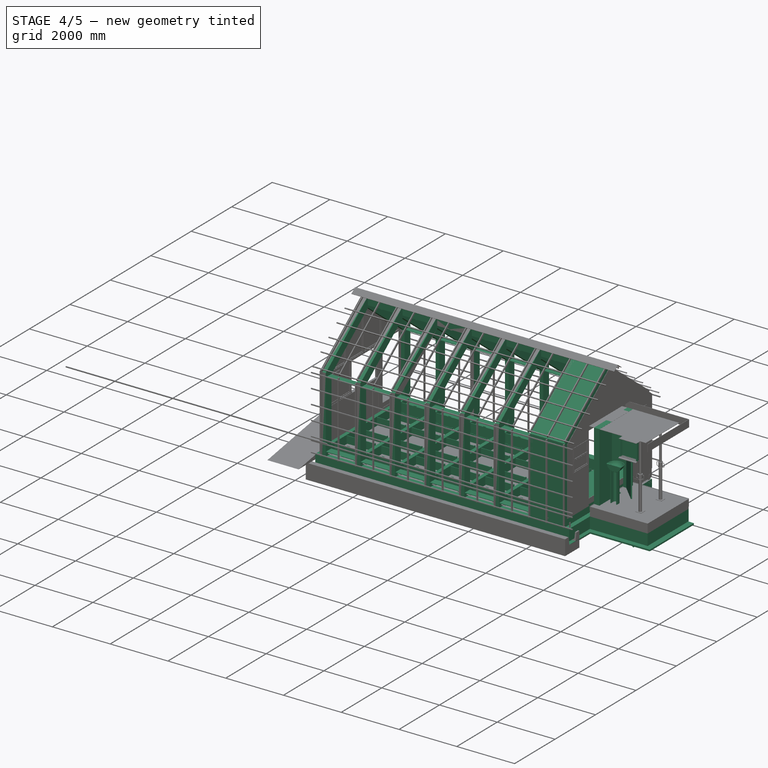
[diagram: stage 4 of 5 — iso view after this stage's code; geometry added in this stage tinted green]
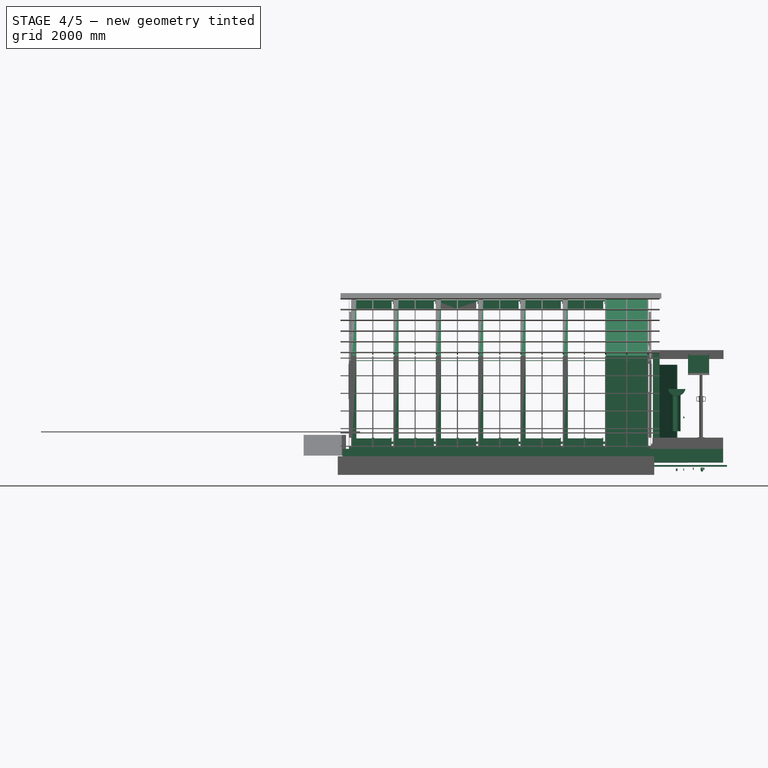
[diagram: stage 4 of 5 — front view after this stage's code; geometry added in this stage tinted green]
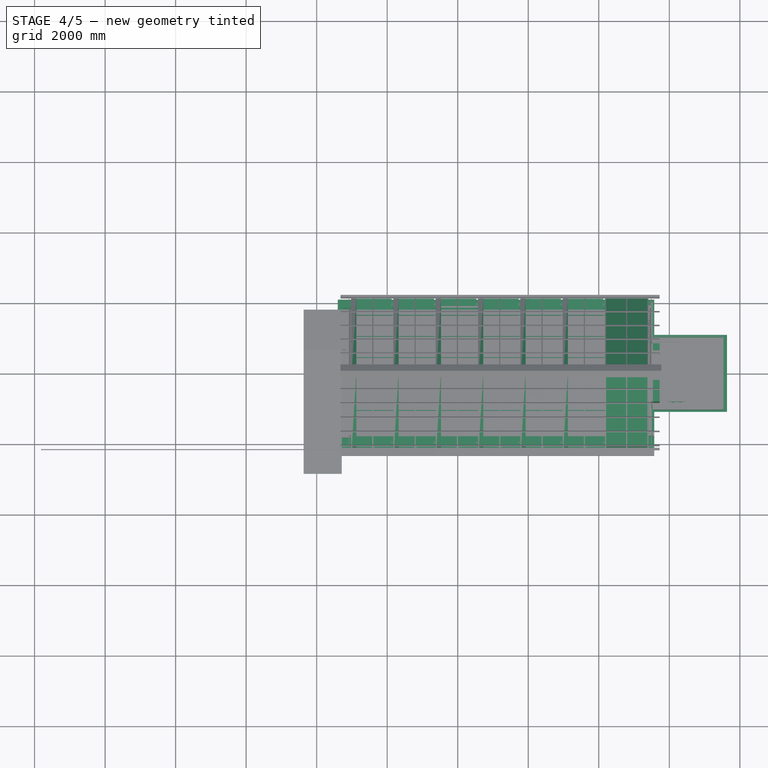
[diagram: stage 4 of 5 — top view after this stage's code; geometry added in this stage tinted green]
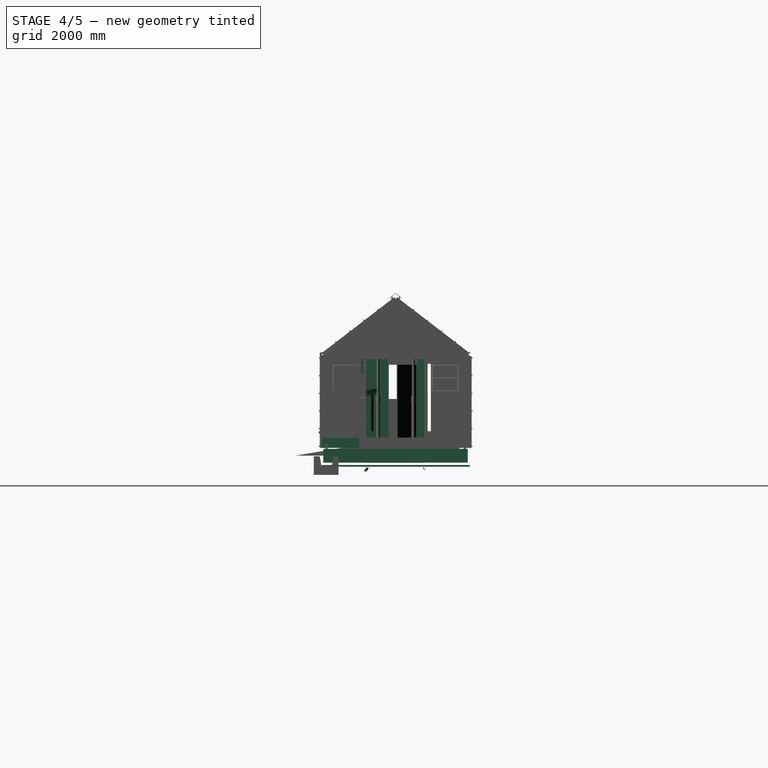
[diagram: stage 4 of 5 — right view after this stage's code; geometry added in this stage tinted green]
FEATURE [Part::FeaturePython] Array  label="Fileira 002"  # Draft array (typed FeaturePython)
  Angle = 360
  ArrayType = 0
  Axis = (0,0,1)
  Base = -> Box
  Center = (0,0,0)
  Fuse = false
  IntervalAxis = (410,0,0)
  IntervalX = (400,0,0)
  IntervalY = (0,1,0)
  IntervalZ = (0,0,0)
  NumberPolar = 1
  NumberX = 22
  NumberY = 1
  NumberZ = 1
FEATURE [Part::FeaturePython] Array001  label="Fileira 001"  # Draft array (typed FeaturePython)
  Angle = 360
  ArrayType = 0
  Axis = (0,0,1)
  Base = -> Box
  Center = (0,0,0)
  Fuse = false
  IntervalAxis = (410,0,0)
  IntervalX = (412.5,0,0)
  IntervalY = (0,1,0)
  IntervalZ = (0,0,0)
  NumberPolar = 1
  NumberX = 3
  NumberY = 1
  NumberZ = 1
  Placement = pos=(3469.52,1209.67,-199.999) rot=(0,0,1;1.5708rad)
FEATURE [Part::FeaturePython] Array002  label="Fileira 003"  # Draft array (typed FeaturePython)
  Angle = 360
  ArrayType = 0
  Axis = (0,0,1)
  Base = -> Box
  Center = (0,0,0)
  Fuse = false
  IntervalAxis = (410,0,0)
  IntervalX = (400,0,0)
  IntervalY = (0,1,0)
  IntervalZ = (0,0,0)
  NumberPolar = 1
  NumberX = 22
  NumberY = 1
  NumberZ = 1
  Placement = pos=(1.25e-09,3910.89,3.44e-10) rot=(0,0,1;0rad)
FEATURE [Part::FeaturePython] Array003  label="Fileira 004"  # Draft array (typed FeaturePython)
  Angle = 360
  ArrayType = 0
  Axis = (0,0,1)
  Base = -> Box
  Center = (0,0,0)
  Fuse = false
  IntervalAxis = (410,0,0)
  IntervalX = (400,0,0)
  IntervalY = (0,1,0)
  IntervalZ = (0,0,0)
  NumberPolar = 1
  NumberX = 21
  NumberY = 1
  NumberZ = 1
  Placement = pos=(199.999,3910.89,-200) rot=(0,0,1;0rad)
FEATURE [Part::FeaturePython] Array004  label="Fileira 005"  # Draft array (typed FeaturePython)
  Angle = 360
  ArrayType = 0
  Axis = (0,0,1)
  Base = -> Box
  Center = (0,0,0)
  Fuse = false
  IntervalAxis = (410,0,0)
  IntervalX = (400,0,0)
  IntervalY = (0,1,0)
  IntervalZ = (0,0,0)
  NumberPolar = 1
  NumberX = 21
  NumberY = 1
  NumberZ = 1
  Placement = pos=(199.999,-3.125e-09,-200) rot=(0,0,1;0rad)
FEATURE [Part::FeaturePython] Array005  label="Fileira 006"  # Draft array (typed FeaturePython)
  Angle = 360
  ArrayType = 0
  Axis = (0,0,1)
  Base = -> Box
  Center = (0,0,0)
  Fuse = false
  IntervalAxis = (410,0,0)
  IntervalX = (423.2,0,0)
  IntervalY = (0,1,0)
  IntervalZ = (0,0,0)
  NumberPolar = 1
  NumberX = 3
  NumberY = 1
  NumberZ = 1
  Placement = pos=(3469.52,4074.27,-199.999) rot=(0,0,1;1.5708rad)
FEATURE [Part::FeaturePython] Array006  label="Fileira 007"  # Draft array (typed FeaturePython)
  Angle = 360
  ArrayType = 0
  Axis = (0,0,1)
  Base = -> Box
  Center = (0,0,0)
  Fuse = false
  IntervalAxis = (410,0,0)
  IntervalX = (412.5,0,0)
  IntervalY = (0,1,0)
  IntervalZ = (0,0,0)
  NumberPolar = 1
  NumberX = 2
  NumberY = 1
  NumberZ = 1
  Placement = pos=(3469.52,1409.67,0.000976563) rot=(0,0,1;1.5708rad)
FEATURE [Part::FeaturePython] Array007  label="Fileira 008"  # Draft array (typed FeaturePython)
  Angle = 360
  ArrayType = 0
  Axis = (0,0,1)
  Base = -> Box
  Center = (0,0,0)
  Fuse = false
  IntervalAxis = (410,0,0)
  IntervalX = (423.2,0,0)
  IntervalY = (0,1,0)
  IntervalZ = (0,0,0)
  NumberPolar = 1
  NumberX = 2
  NumberY = 1
  NumberZ = 1
  Placement = pos=(3469.52,4287.35,0.000671387) rot=(0,0,1;1.5708rad)
FEATURE [Part::FeaturePython] Clone011  label="Bloco 19cm 002"  # Draft clone (typed FeaturePython)
  AttacherType = Attacher::AttachEngine3D
  Objects = -> [Box]
  Placement = pos=(5724.92,609.191,389) rot=(0,0,1;1.5708rad)
  Scale = (1,1,1)
FEATURE [Part::FeaturePython] Array025  label="Fileira 026"  # Draft array (typed FeaturePython)
  Angle = 360
  ArrayType = 0
  Axis = (0,0,1)
  Base = -> Box
  Center = (0,0,0)
  Fuse = false
  IntervalAxis = (420,0,0)
  IntervalX = (410,0,0)
  IntervalY = (0,1,0)
  IntervalZ = (0,0,0)
  NumberPolar = 1
  NumberX = 2
  NumberY = 1
  NumberZ = 1
  Placement = pos=(3669.52,2234.27,710) rot=(0,0,1;1.5708rad)
FEATURE [Part::FeaturePython] Clone016  label="Bloco 19cm 003"  # Draft clone (typed FeaturePython)
  AttacherType = Attacher::AttachEngine3D
  Objects = -> [Clone011]
  Placement = pos=(5724.92,-830.808,189.029) rot=(0,0,1;1.5708rad)
  Scale = (1,1,1)
FEATURE [Part::FeaturePython] Clone018  label="Fileira 029"  # Draft clone (typed FeaturePython)
  AttacherType = Attacher::AttachEngine3D
  Objects = -> [Array025]
  Placement = pos=(3669.52,2234.27,2310) rot=(0,0,1;1.5708rad)
  Scale = (1,1,1)
FEATURE [Part::FeaturePython] Clone024  label="Bloco 19cm 004"  # Draft clone (typed FeaturePython)
  AttacherType = Attacher::AttachEngine3D
  Objects = -> [Clone016]
  Placement = pos=(5724.92,-830.808,589.029) rot=(0,0,1;1.5708rad)
  Scale = (1,1,1)
FEATURE [Part::FeaturePython] Clone026  label="Bloco 19cm 005"  # Draft clone (typed FeaturePython)
  AttacherType = Attacher::AttachEngine3D
  Objects = -> [Clone011]
  Placement = pos=(5724.92,609.191,1989) rot=(0,0,1;1.5708rad)
  Scale = (1,1,1)
FEATURE [Part::FeaturePython] Clone037  label="Bloco 19cm 006"  # Draft clone (typed FeaturePython)
  AttacherType = Attacher::AttachEngine3D
  Objects = -> [Clone024]
  Placement = pos=(5724.92,-830.808,989.029) rot=(0,0,1;1.5708rad)
  Scale = (1,1,1)
FEATURE [Part::FeaturePython] Clone038  label="Fileira 039"  # Draft clone (typed FeaturePython)
  AttacherType = Attacher::AttachEngine3D
  Objects = -> [Clone018]
  Placement = pos=(3669.52,2234.27,1510) rot=(0,0,1;1.5708rad)
  Scale = (1,1,1)
FEATURE [Part::FeaturePython] Clone041  label="Bloco 19cm 007"  # Draft clone (typed FeaturePython)
  AttacherType = Attacher::AttachEngine3D
  Objects = -> [Clone026]
  Placement = pos=(5724.92,609.191,1189) rot=(0,0,1;1.5708rad)
  Scale = (1,1,1)
FEATURE [Part::FeaturePython] Clone052  label="Bloco 19cm 008"  # Draft clone (typed FeaturePython)
  AttacherType = Attacher::AttachEngine3D
  Objects = -> [Clone037]
  Placement = pos=(5724.92,-830.808,1789.03) rot=(0,0,1;1.5708rad)
  Scale = (1,1,1)
FEATURE [Part::FeaturePython] Clone071  label="Bloco 19cm 011"  # Draft clone (typed FeaturePython)
  AttacherType = Attacher::AttachEngine3D
  Objects = -> [Clone052]
  Placement = pos=(5724.92,-830.808,1389.03) rot=(0,0,1;1.5708rad)
  Scale = (1,1,1)
FEATURE [Part::FeaturePython] Clone086  label="Bloco 19cm 013"  # Draft clone (typed FeaturePython)
  AttacherType = Attacher::AttachEngine3D
  Objects = -> [Clone052]
  Placement = pos=(5724.92,-830.808,2189.03) rot=(0,0,1;1.5708rad)
  Scale = (1,1,1)
FEATURE [Part::FeaturePython] Clone094  label="Bloco 19cm 014"  # Draft clone (typed FeaturePython)
  AttacherType = Attacher::AttachEngine3D
  Objects = -> [Clone024]
  Placement = pos=(5724.92,-620.808,789) rot=(0,0,1;1.5708rad)
  Scale = (1,1,1)
FEATURE [Part::FeaturePython] Clone095  label="Bloco 19cm 015"  # Draft clone (typed FeaturePython)
  AttacherType = Attacher::AttachEngine3D
  Objects = -> [Clone071]
  Placement = pos=(5724.92,-620.808,1589) rot=(0,0,1;1.5708rad)
  Scale = (1,1,1)
FEATURE [Part::FeaturePython] Clone096  label="Bloco 19cm 016"  # Draft clone (typed FeaturePython)
  AttacherType = Attacher::AttachEngine3D
  Objects = -> [Clone086]
  Placement = pos=(5724.92,-620.808,2389) rot=(0,0,1;1.5708rad)
  Scale = (1,1,1)
FEATURE [Part::FeaturePython] Clone006  label="Meio-bloco 19cm 002"  # Draft clone (typed FeaturePython)
  AttacherType = Attacher::AttachEngine3D
  Objects = -> [Box001]
  Placement = pos=(-3265.08,1855.49,-520.971) rot=(0,0,1;0rad)
  Scale = (1,1,1)
FEATURE [Part::FeaturePython] Clone009  label="Meio-bloco 19cm 005"  # Draft clone (typed FeaturePython)
  AttacherType = Attacher::AttachEngine3D
  Objects = -> [Clone007]
  Placement = pos=(5534.92,-420.808,189.029) rot=(0,0,1;0rad)
  Scale = (1,1,1)
FEATURE [Part::FeaturePython] Clone010  label="Meio-bloco 19cm 006"  # Draft clone (typed FeaturePython)
  AttacherType = Attacher::AttachEngine3D
  Objects = -> [Clone009]
  Placement = pos=(5534.92,609.191,189.029) rot=(0,0,1;0rad)
  Scale = (1,1,1)
FEATURE [Part::FeaturePython] Clone027  label="Meio-bloco 19cm 015"  # Draft clone (typed FeaturePython)
  AttacherType = Attacher::AttachEngine3D
  Objects = -> [Clone010]
  Placement = pos=(5534.92,609.191,589.029) rot=(0,0,1;0rad)
  Scale = (1,1,1)
FEATURE [Part::FeaturePython] Clone028  label="Meio-bloco 19cm 016"  # Draft clone (typed FeaturePython)
  AttacherType = Attacher::AttachEngine3D
  Objects = -> [Clone009]
  Placement = pos=(5534.92,-420.808,589.029) rot=(0,0,1;0rad)
  Scale = (1,1,1)
FEATURE [Part::FeaturePython] Clone040  label="Meio-bloco 19cm 018"  # Draft clone (typed FeaturePython)
  AttacherType = Attacher::AttachEngine3D
  Objects = -> [Clone027]
  Placement = pos=(5534.92,609.191,989.029) rot=(0,0,1;0rad)
  Scale = (1,1,1)
FEATURE [Part::FeaturePython] Clone042  label="Meio-bloco 19cm 019"  # Draft clone (typed FeaturePython)
  AttacherType = Attacher::AttachEngine3D
  Objects = -> [Clone028]
  Placement = pos=(5534.92,-420.808,989.029) rot=(0,0,1;0rad)
  Scale = (1,1,1)
FEATURE [Part::FeaturePython] Clone057  label="Meio-bloco 19cm 024"  # Draft clone (typed FeaturePython)
  AttacherType = Attacher::AttachEngine3D
  Objects = -> [Clone042]
  Placement = pos=(5534.92,-420.808,1789.03) rot=(0,0,1;0rad)
  Scale = (1,1,1)
FEATURE [Part::FeaturePython] Clone058  label="Meio-bloco 19cm 025"  # Draft clone (typed FeaturePython)
  AttacherType = Attacher::AttachEngine3D
  Objects = -> [Clone040]
  Placement = pos=(5534.92,609.191,1789.03) rot=(0,0,1;0rad)
  Scale = (1,1,1)
FEATURE [Part::FeaturePython] Clone065  label="Meio-bloco 19cm 032"  # Draft clone (typed FeaturePython)
  AttacherType = Attacher::AttachEngine3D
  Objects = -> [Clone058]
  Placement = pos=(5534.92,609.191,1389.03) rot=(0,0,1;0rad)
  Scale = (1,1,1)
FEATURE [Part::FeaturePython] Clone066  label="Meio-bloco 19cm 033"  # Draft clone (typed FeaturePython)
  AttacherType = Attacher::AttachEngine3D
  Objects = -> [Clone057]
  Placement = pos=(5534.92,-420.808,1389.03) rot=(0,0,1;0rad)
  Scale = (1,1,1)
FEATURE [Part::FeaturePython] Clone080  label="Meio-bloco 19cm 038"  # Draft clone (typed FeaturePython)
  AttacherType = Attacher::AttachEngine3D
  Objects = -> [Clone058]
  Placement = pos=(5534.92,609.191,2189.03) rot=(0,0,1;0rad)
  Scale = (1,1,1)
FEATURE [Part::FeaturePython] Clone081  label="Meio-bloco 19cm 039"  # Draft clone (typed FeaturePython)
  AttacherType = Attacher::AttachEngine3D
  Objects = -> [Clone057]
  Placement = pos=(5534.92,-420.808,2189.03) rot=(0,0,1;0rad)
  Scale = (1,1,1)
FEATURE [Part::FeaturePython] Clone097  label="Meio-bloco 19cm 043"  # Draft clone (typed FeaturePython)
  AttacherType = Attacher::AttachEngine3D
  Objects = -> [Clone028]
  Placement = pos=(5534.93,-830.808,789.058) rot=(0,0,1;0rad)
  Scale = (1,1,1)
FEATURE [Part::FeaturePython] Clone098  label="Meio-bloco 19cm 044"  # Draft clone (typed FeaturePython)
  AttacherType = Attacher::AttachEngine3D
  Objects = -> [Clone066]
  Placement = pos=(5534.93,-830.808,1589.06) rot=(0,0,1;0rad)
  Scale = (1,1,1)
FEATURE [Part::FeaturePython] Clone099  label="Meio-bloco 19cm 045"  # Draft clone (typed FeaturePython)
  AttacherType = Attacher::AttachEngine3D
  Objects = -> [Clone081]
  Placement = pos=(5534.93,-830.808,2389.06) rot=(0,0,1;0rad)
  Scale = (1,1,1)
FEATURE [Part::FeaturePython] Clone100  label="Meio-bloco 19cm 046"  # Draft clone (typed FeaturePython)
  AttacherType = Attacher::AttachEngine3D
  Objects = -> [Clone027]
  Placement = pos=(5534.93,609.191,789.058) rot=(0,0,1;0rad)
  Scale = (1,1,1)
FEATURE [Part::FeaturePython] Clone101  label="Meio-bloco 19cm 047"  # Draft clone (typed FeaturePython)
  AttacherType = Attacher::AttachEngine3D
  Objects = -> [Clone065]
  Placement = pos=(5534.93,609.191,1589.06) rot=(0,0,1;0rad)
  Scale = (1,1,1)
FEATURE [Part::FeaturePython] Clone102  label="Meio-bloco 19cm 048"  # Draft clone (typed FeaturePython)
  AttacherType = Attacher::AttachEngine3D
  Objects = -> [Clone080]
  Placement = pos=(5534.93,609.191,2389.06) rot=(0,0,1;0rad)
  Scale = (1,1,1)
FEATURE [Part::Feature] wc
  Placement = pos=(6925.9,-416.568,369.028) rot=(0,0,1;3.14159rad)
  shape: bbox 455.8 x 707.9 x 820 mm, 42 faces, 2 solids (baked)
FEATURE [Part::Feature] bathroom_sink_with_column
  Placement = pos=(5334.03,-521.792,285.995) rot=(0,0,1;1.5708rad)
  shape: bbox 369.4 x 538.8 x 1200 mm, 54 faces (baked)
FEATURE [Part::FeaturePython] Clone111  label="bathroom_sink_with_column001"  # Draft clone (typed FeaturePython)
  AttacherType = Attacher::AttachEngine3D
  Objects = -> [bathroom_sink_with_column]
  Placement = pos=(6209.18,-645.031,369.028) rot=(0,0,1;0rad)
  Scale = (1,1,1)
FEATURE [Part::Feature] Solid034  label="Solid044"
  shape: bbox 2500 x 413 x 30 mm, 6 faces (baked)
FEATURE [Part::Feature] Solid035  label="Solid045"
  shape: bbox 2500 x 413 x 30 mm, 6 faces (baked)
FEATURE [Part::Feature] Solid036  label="Solid046"
  shape: bbox 2500 x 413 x 30 mm, 6 faces (baked)
FEATURE [Part::Feature] Solid037  label="Solid047"
  shape: bbox 2500 x 413 x 30 mm, 6 faces (baked)
FEATURE [App::DocumentObjectGroup] Group018  label="Mobiliário"
  Group = -> [Extrusion001,Clone112,Solid017,Solid018,Solid019,Solid020,Solid021,Solid022,Solid023,Solid024,Solid025,Solid026,Solid027,Solid028,Solid029,Solid030,Solid031,Solid032,Solid033,Clone114,Clone115,Clone116,Clone117,Clone118,Solid034,Solid035,Solid036,Solid037]
FEATURE [Sketcher::SketchObject] Sketch
  Placement = pos=(-3959.9,3360.15,353.281) rot=(1,0,0;1.5708rad)
  sketch-geometry (16):
    g0: LineSegment StartX=0 StartY=0 StartZ=0 EndX=900 EndY=0 EndZ=0
    g1: LineSegment StartX=900 StartY=0 StartZ=0 EndX=900 EndY=2100 EndZ=0
    g2: LineSegment StartX=900 StartY=2100 StartZ=0 EndX=0 EndY=2100 EndZ=0
    g3: LineSegment StartX=0 StartY=2100 StartZ=0 EndX=0 EndY=0 EndZ=0
    g4: LineSegment StartX=50 StartY=0 StartZ=0 EndX=850 EndY=0 EndZ=0
    g5: LineSegment StartX=850 StartY=0 StartZ=0 EndX=850 EndY=2050 EndZ=0
    g6: LineSegment StartX=850 StartY=2050 StartZ=0 EndX=50 EndY=2050 EndZ=0
    g7: LineSegment StartX=50 StartY=2050 StartZ=0 EndX=50 EndY=0 EndZ=0
    g8: LineSegment StartX=55 StartY=5 StartZ=0 EndX=845 EndY=5 EndZ=0
    g9: LineSegment StartX=845 StartY=5 StartZ=0 EndX=845 EndY=2045 EndZ=0
    g10: LineSegment StartX=845 StartY=2045 StartZ=0 EndX=55 EndY=2045 EndZ=0
    g11: LineSegment StartX=55 StartY=2045 StartZ=0 EndX=55 EndY=5 EndZ=0
    g12: LineSegment StartX=105 StartY=55 StartZ=0 EndX=795 EndY=55 EndZ=0
    g13: LineSegment StartX=795 StartY=55 StartZ=0 EndX=795 EndY=1995 EndZ=0
    g14: LineSegment StartX=795 StartY=1995 StartZ=0 EndX=105 EndY=1995 EndZ=0
    g15: LineSegment StartX=105 StartY=1995 StartZ=0 EndX=105 EndY=55 EndZ=0
  constraints (47):
    c: Coincident(g0,g1)
    c: Coincident(g1,g2)
    c: Coincident(g2,g3)
    c: Coincident(g3,g0)
    c: Horizontal(g0)
    c: Horizontal(g2)
    c: Vertical(g1)
    c: Vertical(g3)
    c: Coincident(g4,g5)
    c: Coincident(g5,g6)
    c: Coincident(g6,g7)
    c: Coincident(g7,g4)
    c: Horizontal(g4)
    c: Horizontal(g6)
    c: Vertical(g5)
    c: Vertical(g7)
    c: DistanceY(g1) = 2100  'Height'
    c: DistanceX(g0) = 900  'Width'
    c: DistanceY(g6,g2) = 50
    c: DistanceX(g2,g6) = 50
    c: DistanceX(g4,g0) = 50
    c: DistanceY(g0,g4) = 0
    c: Coincident(g0,g-1)
    c: Coincident(g8,g9)
    c: Coincident(g9,g10)
    c: Coincident(g10,g11)
    c: Coincident(g11,g8)
    c: Horizontal(g8)
    c: Horizontal(g10)
    c: Vertical(g9)
    c: Vertical(g11)
    c: Coincident(g12,g13)
    c: Coincident(g13,g14)
    c: Coincident(g14,g15)
    c: Coincident(g15,g12)
    c: Horizontal(g12)
    c: Horizontal(g14)
    c: Vertical(g13)
    c: Vertical(g15)
    c: DistanceX(g8,g12) = 50
    c: DistanceY(g8,g12) = 50
    c: DistanceX(g14,g10) = 50
    c: DistanceY(g14,g10) = 50
    c: DistanceX(g4,g8) = 5
    c: DistanceY(g4,g8) = 5
    c: DistanceX(g10,g6) = 5
    c: DistanceY(g10,g6) = 5
FEATURE [Part::Part2DObjectPython] DWire008  # Draft 2D object (typed FeaturePython)
  ChamferSize = 0
  Closed = true
  End = (-2999.98,-2092.97,-7.73885e-05)
  FilletRadius = 0
  Length = 14694.6
  MakeFace = true
  Points = (5) [(-2999.98,2092.97,-7.73885e-05),(-2999.98,2092.97,2613.64),(-2999.98,4.52995e-05,4223.79),(-2999.98,-2092.97,2613.64),+1 more]
  Start = (-2999.98,2092.97,-7.73885e-05)
  Subdivisions = 0
FEATURE [Part::Part2DObjectPython] DWire009  # Draft 2D object (typed FeaturePython)
  ChamferSize = 0
  Closed = true
  End = (-2999.98,-1806.97,285.996)
  FilletRadius = 0
  Length = 12546.5
  MakeFace = true
  Points = (5) [(-2999.98,1806.97,285.996),(-2999.98,1806.97,2472.55),(-2999.98,4.52995e-05,3862.53),(-2999.98,-1806.97,2472.55),(-2999.98,-1806.97,285.996)]
  Start = (-2999.98,1806.97,285.996)
  Subdivisions = 0
FEATURE [Part::Cut] Cut015
  Base = -> DWire008
  Tool = -> DWire009
FEATURE [Part::Extrusion] Extrusion002  label="wren module lowres 001"
  Base = -> Cut015
  Dir = (1200,0,0)
  DirMode = 0
  FaceMakerClass = Part::FaceMakerBullseye
  LengthFwd = 0
  LengthRev = 0
  Solid = true
  Symmetric = false
FEATURE [Part::Compound] Compound001  label="Blocos fundação linear"
  Links = -> [Box001,Array,Array001,Array002,Array003,Clone006,Array004,Array005,Array006,Array007]
FEATURE [Part::Part2DObjectPython] DWire014  # Draft 2D object (typed FeaturePython)
  ChamferSize = 0
  Closed = false
  End = (5334.92,999.19,369.029)
  FilletRadius = 0
  Length = 6410
  MakeFace = true
  Points = (4) [(5334.92,-1030.81,369.029),(7524.92,-1030.81,369.029),(7524.93,999.192,369.029),(5334.92,999.19,369.029)]
  Start = (5334.92,-1030.81,369.029)
  Subdivisions = 0
  Support = -> [Array024]
FEATURE [Part::Part2DObjectPython] Line001  # Draft 2D object (typed FeaturePython)
  ChamferSize = 0
  Closed = false
  End = (5534.93,-840.81,369.029)
  FilletRadius = 0
  Length = 1650
  MakeFace = true
  Points = (2) [(5534.93,809.192,369.029),(5534.93,-840.81,369.029)]
  Start = (5534.93,809.192,369.029)
  Subdivisions = 0
FEATURE [Part::Part2DObjectPython] Rectangle006  # Draft 2D object (typed FeaturePython)
  ChamferSize = 0
  Columns = 1
  FilletRadius = 0
  Height = 290
  Length = 840
  MakeFace = true
  Placement = pos=(5770.49,609.191,369.029) rot=(0.707107,-0.707107,0;3.14159rad)
  Rows = 1
FEATURE [Part::Part2DObjectPython] Rectangle007  # Draft 2D object (typed FeaturePython)
  ChamferSize = 0
  Columns = 1
  FilletRadius = 0
  Height = 610
  Length = 290
  MakeFace = true
  Placement = pos=(7134.92,-792.445,2159.03) rot=(0.707107,-0.707107,0;3.14159rad)
  Rows = 1
FEATURE [Part::Extrusion] Extrusion005  label="Extrusion015"
  Base = -> Rectangle006
  Dir = (0,0,2390)
  DirMode = 0
  FaceMakerClass = Part::FaceMakerBullseye
  LengthFwd = 0
  LengthRev = 0
  Placement = pos=(0,0,-180) rot=(0,0,1;0rad)
  Solid = true
  Symmetric = false
FEATURE [Part::Compound] Compound003  label="Blocos banheiro interior"
  Links = -> [Clone102,Clone009,Clone010,Clone011,Array025,Clone016,Clone018,Clone024,Clone026,Clone027,Clone028,Clone037,Clone038,Clone040,Clone041,Clone042,Clone052,Clone057,Clone058,Clone065,Clone066,Clone071,Clone080,Clone081,Clone086,Clone094,Clone095,Clone096,Clone097,Clone098,Clone099,Clone100,Clone101]
  Placement = pos=(0,0,180) rot=(0,0,1;0rad)
FEATURE [Sketcher::SketchObject] Sketch001
  Placement = pos=(-2470.08,-230.808,8319.03) rot=(1,0,0;1.5708rad)
  sketch-geometry (8):
    g0: LineSegment StartX=0 StartY=0 StartZ=0 EndX=840 EndY=0 EndZ=0
    g1: LineSegment StartX=840 StartY=0 StartZ=0 EndX=840 EndY=2100 EndZ=0
    g2: LineSegment StartX=840 StartY=2100 StartZ=0 EndX=0 EndY=2100 EndZ=0
    g3: LineSegment StartX=0 StartY=2100 StartZ=0 EndX=0 EndY=0 EndZ=0
    g4: LineSegment StartX=35 StartY=0 StartZ=0 EndX=805 EndY=0 EndZ=0
    g5: LineSegment StartX=805 StartY=0 StartZ=0 EndX=805 EndY=2065 EndZ=0
    g6: LineSegment StartX=805 StartY=2065 StartZ=0 EndX=35 EndY=2065 EndZ=0
    g7: LineSegment StartX=35 StartY=2065 StartZ=0 EndX=35 EndY=0 EndZ=0
  constraints (23):
    c: Coincident(g0,g1)
    c: Coincident(g1,g2)
    c: Coincident(g2,g3)
    c: Coincident(g3,g0)
    c: Horizontal(g0)
    c: Horizontal(g2)
    c: Vertical(g1)
    c: Vertical(g3)
    c: Coincident(g4,g5)
    c: Coincident(g5,g6)
    c: Coincident(g6,g7)
    c: Coincident(g7,g4)
    c: Horizontal(g4)
    c: Horizontal(g6)
    c: Vertical(g5)
    c: Vertical(g7)
    c: DistanceY(g1) = 2100  'Height'
    c: DistanceX(g0) = 840  'Width'
    c: DistanceY(g6,g2) = 35
    c: DistanceX(g2,g6) = 35
    c: DistanceX(g4,g0) = 35
    c: DistanceY(g0,g4) = 0
    c: Coincident(g0,g-1)
FEATURE [App::MaterialObjectPython] Material  label="Bloco de concreto de 19cm"  # material (typed FeaturePython)
  Material = DiffuseColor=(0.8392156862745098, 0.8392156862745098, 0.8392156862745098); Name=Bloco de concreto de 19cm
FEATURE [Part::FeaturePython] Wall002  label="Alicerce Wikihouse - 98 blocos"  # Arch/BIM object (typed FeaturePython)
  Additions = -> [Wall003]
  Align = 0
  Base = -> DWire010
  Face = 0
  Height = 390
  HiRes = -> Compound001
  HorizontalArea = 3.73375e+06
  IfcAttributes = IfcUID=1B1hP013GHvujW093rt3ko
  Length = 10026.3
  Material = -> Material
  MoveWithHost = false
  Normal = (0,0,0)
  PerimeterLength = 20052.6
  Role = 0
  VerticalArea = 1.56244e+07
  Width = 190
FEATURE [Part::FeaturePython] Wall  label="Alicerce banheiro - 29 blocos"  # Arch/BIM object (typed FeaturePython)
  Align = 0
  Base = -> DWire013
  Face = 0
  Height = 390
  HiRes = -> Compound
  HorizontalArea = 1.0735e+06
  IfcAttributes = IfcUID=1B16pI13GHvujW093rt3ko
  Length = 6030
  Material = -> Material
  MoveWithHost = false
  Normal = (0,0,0)
  PerimeterLength = 11680
  Role = 0
  VerticalArea = 4.5552e+06
  Width = 190
FEATURE [Part::FeaturePython] Wall005  label="Parede interior banheiro - 36 blocos"  # Arch/BIM object (typed FeaturePython)
  Align = 1
  Base = -> Line001
  Face = 0
  Height = 2390
  HiRes = -> Compound003
  HorizontalArea = 153900
  IfcAttributes = IfcUID=1B2g6c13GHvujW093rt3ko
  Length = 1650
  Material = -> Material
  MoveWithHost = false
  Normal = (0,0,0)
  PerimeterLength = 3680
  Placement = pos=(0,0,-180) rot=(0,0,1;0rad)
  Role = 0
  Subtractions = -> [Extrusion005]
  VerticalArea = 5.68821e+06
  Width = 190
FEATURE [App::MaterialObjectPython] Material002  label="Painel de compensado de 18mm"  # material (typed FeaturePython)
  Material = DiffuseColor=(1.0, 0.6666666666666666, 0.4980392156862745); Name=Painel de compensado de 18mm
FEATURE [Part::FeaturePython] Component  label="Módulo inteiro"  # WARN: FeaturePython — macro-defined, semantics opaque (R4)
  Base = -> Extrusion002
  HiRes = -> ASSEMBLY001002
  HorizontalArea = 0
  Material = -> Material002
  MoveWithHost = false
  PerimeterLength = 0
  Placement = pos=(0,0,-101.581) rot=(0,0,1;0rad)
  Role = 0
  VerticalArea = 0
FEATURE [Part::FeaturePython] Component008  label="Módulo inteiro001"  # WARN: FeaturePython — macro-defined, semantics opaque (R4)
  CloneOf = -> Component
  HorizontalArea = 0
  Material = -> Material002
  MoveWithHost = false
  PerimeterLength = 0
  Placement = pos=(7200,0,-101.581) rot=(0,0,1;0rad)
  Role = 0
  VerticalArea = 0
FEATURE [App::DocumentObjectGroup] Group011  label="Wikihouse"
  Group = -> [Component,Component001,Component004,Component005,Component006,Component007,Component008,Component009]
FEATURE [App::MaterialObjectPython] Material003  label="Pia de cerâmica"  # material (typed FeaturePython)
  Material = DiffuseColor=(1.0, 1.0, 1.0); Name=Pia de cerâmica
FEATURE [Part::FeaturePython] Component010  label="Pia"  # WARN: FeaturePython — macro-defined, semantics opaque (R4)
  Base = -> Clone111
  HorizontalArea = 0
  Material = -> Material003
  MoveWithHost = false
  PerimeterLength = 0
  Placement = pos=(6209.18,-645.031,369.028) rot=(0,0,1;0rad)
  Role = 0
  VerticalArea = 0
FEATURE [App::MaterialObjectPython] Material004  label="Viga de madeira 6x18"  # material (typed FeaturePython)
  Material = DiffuseColor=(1.0, 0.6666666666666666, 0.4980392156862745); Name=Viga de madeira 6x18
FEATURE [Part::FeaturePython] Structure004  label="Viga-guia autoclavada 8x9x898"  # WARN: FeaturePython — macro-defined, semantics opaque (R4)
  FaceMaker = 0
  Height = 80
  HorizontalArea = 513000
  Length = 8550
  Material = -> Material004
  MoveWithHost = false
  Nodes = (2) [(0,1.77636e-15,1.38778e-16),(0,1.77636e-15,8550)]
  NodesOffset = 0
  Normal = (0,0,0)
  PerimeterLength = 17220
  Placement = pos=(5474.92,-1961.96,-91) rot=(0,0,1;0rad)
  Role = 1
  VerticalArea = 1377600
  Width = 60
FEATURE [Part::FeaturePython] Structure005  label="Viga-guia autoclavada 001 8x9x898"  # WARN: FeaturePython — macro-defined, semantics opaque (R4)
  CloneOf = -> Structure004
  FaceMaker = 0
  Height = 80
  HorizontalArea = 513000
  Length = 8550
  Material = -> Material004
  MoveWithHost = false
  Nodes = (2) [(0,1.77636e-15,1.38778e-16),(0,1.77636e-15,8550)]
  NodesOffset = 0
  Normal = (0,0,0)
  PerimeterLength = 17220
  Placement = pos=(5474.92,1959.96,-91) rot=(0,0,1;0rad)
  Role = 1
  VerticalArea = 1377600
  Width = 60
FEATURE [App::MaterialObjectPython] Material008  label="Caixilho de madeira"  # material (typed FeaturePython)
  Material = DiffuseColor=(1.0, 0.6666666666666666, 0.4980392156862745); Name=Caixilho de madeira
FEATURE [Part::FeaturePython] Window002  label="Porta banheiro - Madeira 80x210"  # Arch/BIM object (typed FeaturePython)
  Area = 1764000
  Base = -> Sketch001
  Height = 2100
  HoleDepth = 0
  HorizontalArea = 152950
  IfcAttributes = IfcUID=1B54F813GHvujW093rt3ko
  LouvreSpacing = 0
  LouvreWidth = 0
  Material = -> Material008
  MoveWithHost = true
  Normal = (0,1,0)
  Opening = 50
  PerimeterLength = 0
  Placement = pos=(5785.73,-1860.89,-8130) rot=(0,0,-1;1.5708rad)
  Preset = 6
  Role = 2
  VerticalArea = 4922050
  Width = 840
  WindowParts = OuterFrame | Frame | Wire0,Wire1 | 150.0 | 0.0 | Door | Solid panel | Wire1,Edge8,Mode1 | 35.0 | 105.0
  WindowParts1 = 0
FEATURE [Part::FeaturePython] Window003  label="Caixilho banheiro - Alumínop 60x60"  # Arch/BIM object (typed FeaturePython)
  Area = 0
  Base = -> Compound008
  Height = 0
  HoleDepth = 0
  HorizontalArea = 134100
  IfcAttributes = IfcUID=1B5mQe13GHvujW093rt3ko
  LouvreSpacing = 0
  LouvreWidth = 0
  Material = -> Material007
  MoveWithHost = true
  Normal = (0,1,0)
  Opening = 0
  PerimeterLength = 0
  Placement = pos=(0,0,-180) rot=(0,0,1;0rad)
  Preset = 0
  Role = 0
  VerticalArea = 961000
  Width = 0
  WindowParts = Outer frame | Frame | Wire0,Wire1 | 80.0 | 0.0 | Inner frame | Frame | Wire1,Wire2 | 40.0 | 40.0 | Glass panel_ | Glass panel | Wire2 | 5.0 | 60.0
  WindowParts1 = 0
FEATURE [Part::Part2DObjectPython] Rectangle015  # Draft 2D object (typed FeaturePython)
  ChamferSize = 0
  Columns = 1
  FilletRadius = 0
  Height = 1449.49
  Length = 1480.42
  MakeFace = true
  Placement = pos=(7268.85,-717.533,-588.862) rot=(0,1,0;3.14159rad)
  Rows = 1
FEATURE [Part::Part2DObjectPython] DWire023  # Draft 2D object (typed FeaturePython)
  ChamferSize = 0
  Closed = true
  End = (-3401.94,1813.23,-588.864)
  FilletRadius = 0
  Length = 47800.1
  MakeFace = true
  Points = (12) [(-3401.94,2101.47,-588.864),(5574.02,2101.47,-588.862),(5574.01,1100.88,-588.862),(7635.46,1100.88,-588.862),(7635.46,-1081.8,-588.862),+7 more]
  Start = (-3401.94,2101.47,-588.864)
  Subdivisions = 0
FEATURE [Part::Cut] Cut019
  Base = -> DWire023
  Tool = -> Rectangle015
FEATURE [App::MaterialObjectPython] Material009  label="Areia"  # material (typed FeaturePython)
  Material = Color=(0.7372549019607844, 0.7019607843137254, 0.5568627450980392),DiffuseColor=(0.7372549176216125, 0.7019608020782471, 0.5568627715110779),+3 more (map truncated)
  Transparency = 0
FEATURE [Part::FeaturePython] Structure011  label="Camada de areia 5cm"  # WARN: FeaturePython — macro-defined, semantics opaque (R4)
  Base = -> Cut019
  FaceMaker = 0
  Height = 50
  HorizontalArea = 8.68134e+06
  Length = 0
  Material = -> Material009
  MoveWithHost = false
  Nodes = (16) [(-3401.94,2101.47,-588.864),(5574.02,2101.47,-588.862),(-3401.94,1813.23,-588.864),(5574.01,1100.88,-588.862),(5256.12,1813.23,-588.863),+11 more]
  NodesOffset = 0
  Normal = (0,0,-1)
  PerimeterLength = 47800.1
  Role = 2
  VerticalArea = 2.683e+06
  Width = 200
FEATURE [Part::Part2DObjectPython] Rectangle018  # Draft 2D object (typed FeaturePython)
  ChamferSize = 0
  Columns = 1
  FilletRadius = 20
  Height = 153.349
  Length = 162.324
  MakeFace = false
  Placement = pos=(-3086.25,-1880.87,-130.972) rot=(0,0,1;3.14159rad)
  Rows = 1
  Support = -> [Compound001]
FEATURE [Part::Part2DObjectPython] Clone2D  label="Rectangle018 (2D)"  # Draft 2D object (typed FeaturePython)
  Objects = -> [Rectangle018]
  Placement = pos=(-2888.04,-1880.87,-130.972) rot=(0,0,1;3.14159rad)
  Scale = (1,1,1)
FEATURE [Part::Part2DObjectPython] Rectangle019  # Draft 2D object (typed FeaturePython)
  ChamferSize = 0
  Columns = 1
  FilletRadius = 0
  Height = 190
  Length = 190
  MakeFace = true
  Placement = pos=(-2965.08,-1568.25,-320.972) rot=(0.57735,-0.57735,-0.57735;2.0944rad)
  Rows = 1
  Support = -> [Compound001]
FEATURE [App::FeaturePython] Dimension054  # Draft dimension (typed FeaturePython)
  Diameter = false
  Dimline = (-2965.08,-1746.88,-64.9536)
  Direction = (0,0,0)
  Distance = 99.9717
  End = (-2965.08,-1865.41,-31)
  Normal = (-1,0,0)
  Start = (-2965.08,-1865.41,-130.972)
FEATURE [Part::Part2DObjectPython] Line007  # Draft 2D object (typed FeaturePython)
  ChamferSize = 0
  Closed = false
  End = (-2965.08,-1960.41,-31)
  FilletRadius = 0
  Length = 213.53
  MakeFace = true
  Points = (2) [(-2965.08,-1746.88,-31),(-2965.08,-1960.41,-31)]
  Start = (-2965.08,-1746.88,-31)
  Subdivisions = 0
FEATURE [Part::Part2DObjectPython] Line008  # Draft 2D object (typed FeaturePython)
  ChamferSize = 0
  Closed = false
  End = (-2965.08,-1960.41,-130.972)
  FilletRadius = 0
  Length = 213.528
  MakeFace = true
  Points = (2) [(-2965.08,-1746.88,-130.972),(-2965.08,-1960.41,-130.972)]
  Start = (-2965.08,-1746.88,-130.972)
  Subdivisions = 0
FEATURE [Part::Part2DObjectPython] DWire035  # Draft 2D object (typed FeaturePython)
  ChamferSize = 0
  Closed = false
  End = (-2965.08,-2055.41,-425.972)
  FilletRadius = 0
  Length = 572.675
  MakeFace = true
  Points = (3) [(-2965.08,-2596.83,-295.632),(-2965.08,-2445.71,-395.596),(-2965.08,-2055.41,-425.972)]
  Start = (-2965.08,-2596.83,-295.632)
  Subdivisions = 0
FEATURE [Part::Part2DObjectPython] DWire036  # Draft 2D object (typed FeaturePython)
  ChamferSize = 0
  Closed = false
  End = (-2888.56,-2055.41,-366.118)
  FilletRadius = 0
  Length = 575.928
  MakeFace = true
  Points = (3) [(-2965.08,-2598.44,-234.335),(-2965.08,-2482.68,-309.877),(-2888.56,-2055.41,-366.118)]
  Start = (-2965.08,-2598.44,-234.335)
  Subdivisions = 0
FEATURE [Part::Part2DObjectPython] DWire037  # Draft 2D object (typed FeaturePython)
  ChamferSize = 0
  Closed = false
  End = (-2928.02,-1981.12,-130.972)
  FilletRadius = 0
  Length = 636.696
  MakeFace = true
  Points = (3) [(-2965.08,-2596.83,-172.459),(-2965.08,-2529.31,-216.525),(-2928.02,-1981.12,-130.972)]
  Start = (-2965.08,-2596.83,-172.459)
  Subdivisions = 0
FEATURE [App::Annotation] Text008
  LabelText = Bloco grauteado
  Position = (-2965.08,-2621.13,-162.185)
FEATURE [App::Annotation] Text009
  LabelText = Barra filetada dobrada
  Position = (-2965.08,-2621.38,-229.589)
FEATURE [App::Annotation] Text010
  LabelText = Bloco grauteado
  Position = (-2965.08,-2620.95,-295.959)
FEATURE [Part::Part2DObjectPython] Line009  # Draft 2D object (typed FeaturePython)
  ChamferSize = 0
  Closed = false
  End = (6209.18,-810.659,-738.653)
  FilletRadius = 0
  Length = 2100
  MakeFace = true
  Placement = pos=(0,24.3727,0) rot=(0,0,1;0rad)
  Points = (2) [(6209.18,-835.031,1361.35),(6209.18,-835.031,-738.653)]
  Start = (6209.18,-810.659,1361.35)
  Subdivisions = 0
FEATURE [Part::Part2DObjectPython] Line010  # Draft 2D object (typed FeaturePython)
  ChamferSize = 0
  Closed = false
  End = (6409.18,-810.659,761.347)
  FilletRadius = 0
  Length = 600
  MakeFace = true
  Placement = pos=(0,24.3727,0) rot=(0,0,1;0rad)
  Points = (2) [(6409.18,-835.031,1361.35),(6409.18,-835.031,761.347)]
  Start = (6409.18,-810.659,1361.35)
  Subdivisions = 0
FEATURE [Part::Part2DObjectPython] Line011  # Draft 2D object (typed FeaturePython)
  ChamferSize = 0
  Closed = false
  End = (6409.18,-810.659,-738.653)
  FilletRadius = 0
  Length = 1500
  MakeFace = true
  Placement = pos=(0,24.3727,0) rot=(0,0,1;0rad)
  Points = (2) [(6409.18,-835.031,761.347),(6409.18,-835.031,-738.653)]
  Start = (6409.18,-810.659,761.347)
  Subdivisions = 0
FEATURE [Part::Part2DObjectPython] Line012  # Draft 2D object (typed FeaturePython)
  ChamferSize = 0
  Closed = false
  End = (6925.9,-810.659,-738.653)
  FilletRadius = 0
  Length = 1176.54
  MakeFace = true
  Placement = pos=(0,24.3727,0) rot=(0,0,1;0rad)
  Points = (2) [(6925.9,-835.031,437.888),(6925.9,-835.031,-738.653)]
  Start = (6925.9,-810.659,437.888)
  Subdivisions = 0
FEATURE [Part::Part2DObjectPython] Line013  # Draft 2D object (typed FeaturePython)
  ChamferSize = 0
  Closed = false
  End = (6925.9,-1375.63,-738.653)
  FilletRadius = 0
  Length = 564.971
  MakeFace = true
  Placement = pos=(0,24.3727,-738.653) rot=(0,0,1;0rad)
  Points = (2) [(6925.9,-835.031,0),(6925.9,-1400,0.000378222)]
  Start = (6925.9,-810.659,-738.653)
  Subdivisions = 0
  Support = -> [Solid013]
FEATURE [Part::Part2DObjectPython] Line014  # Draft 2D object (typed FeaturePython)
  ChamferSize = 0
  Closed = false
  End = (6409.18,-1375.63,-738.653)
  FilletRadius = 0
  Length = 564.969
  MakeFace = true
  Placement = pos=(-516.727,24.3727,-738.653) rot=(0,0,1;0rad)
  Points = (2) [(6925.9,-835.031,0),(6925.9,-1400,0)]
  Start = (6409.18,-810.659,-738.653)
  Subdivisions = 0
  Support = -> [Solid013]
FEATURE [Part::Part2DObjectPython] Line015  # Draft 2D object (typed FeaturePython)
  ChamferSize = 0
  Closed = false
  End = (6209.18,-1375.63,-738.653)
  FilletRadius = 0
  Length = 564.969
  MakeFace = true
  Placement = pos=(-716.727,24.3727,-738.653) rot=(0,0,1;0rad)
  Points = (2) [(6925.9,-835.031,0),(6925.9,-1400,0)]
  Start = (6209.18,-810.659,-738.653)
  Subdivisions = 0
  Support = -> [Solid013]
FEATURE [Part::Part2DObjectPython] Line016  # Draft 2D object (typed FeaturePython)
  ChamferSize = 0
  Closed = false
  End = (6700,-810.659,761.347)
  FilletRadius = 0
  Length = 290.824
  MakeFace = true
  Points = (2) [(6409.18,-810.659,761.347),(6700,-810.659,761.347)]
  Start = (6409.18,-810.659,761.347)
  Subdivisions = 0
FEATURE [Part::FeaturePython] Pipe003  label="Esgoto 75mm"  # WARN: FeaturePython — macro-defined, semantics opaque (R4)
  Base = -> Line013
  Diameter = 75
  HorizontalArea = 0
  Length = 489.971
  MoveWithHost = false
  OffsetEnd = 0
  OffsetStart = 75
  PerimeterLength = 0
  Role = 0
  VerticalArea = 0
FEATURE [Part::FeaturePython] Pipe001  label="Esgoto 50mm002"  # WARN: FeaturePython — macro-defined, semantics opaque (R4)
  Base = -> Line015
  Diameter = 50
  HorizontalArea = 0
  Length = 514.969
  MoveWithHost = false
  OffsetEnd = 0
  OffsetStart = 50
  PerimeterLength = 0
  Role = 0
  VerticalArea = 0
FEATURE [Part::FeaturePython] Pipe  label="Esgoto 50mm"  # WARN: FeaturePython — macro-defined, semantics opaque (R4)
  Base = -> Line009
  Diameter = 50
  HorizontalArea = 0
  Length = 2050
  MoveWithHost = false
  OffsetEnd = 50
  OffsetStart = 0
  PerimeterLength = 0
  Role = 0
  VerticalArea = 0
FEATURE [Part::FeaturePython] Pipe002  label="Esgoto 75mm001"  # WARN: FeaturePython — macro-defined, semantics opaque (R4)
  Base = -> Line012
  Diameter = 75
  HorizontalArea = 0
  Length = 1101.54
  MoveWithHost = false
  OffsetEnd = 75
  OffsetStart = 0
  PerimeterLength = 0
  Role = 0
  VerticalArea = 0
FEATURE [Part::FeaturePython] Connector  label="Esgoto 75mm002"  # WARN: FeaturePython — macro-defined, semantics opaque (R4)
  ConnectorType = 0
  HorizontalArea = 0
  MoveWithHost = false
  PerimeterLength = 0
  Pipes = -> [Pipe003,Pipe002]
  Radius = 75
  Role = 0
  VerticalArea = 0
FEATURE [Part::FeaturePython] Pipe004  label="Água fria 25mm"  # WARN: FeaturePython — macro-defined, semantics opaque (R4)
  Base = -> Line016
  Diameter = 25
  HorizontalArea = 0
  Length = 265.824
  MoveWithHost = false
  OffsetEnd = 0
  OffsetStart = 25
  PerimeterLength = 0
  Role = 0
  VerticalArea = 0
FEATURE [Part::FeaturePython] Pipe005  label="Água fria 25mm001"  # WARN: FeaturePython — macro-defined, semantics opaque (R4)
  Base = -> Line010
  Diameter = 25
  HorizontalArea = 0
  Length = 575
  MoveWithHost = false
  OffsetEnd = 25
  OffsetStart = 0
  PerimeterLength = 0
  Role = 0
  VerticalArea = 0
FEATURE [Part::FeaturePython] Pipe006  label="Água fria 25mm002"  # WARN: FeaturePython — macro-defined, semantics opaque (R4)
  Base = -> Line011
  Diameter = 25
  HorizontalArea = 0
  Length = 1425
  MoveWithHost = false
  OffsetEnd = 50
  OffsetStart = 25
  PerimeterLength = 0
  Role = 0
  VerticalArea = 0
FEATURE [Part::FeaturePython] Pipe007  label="Água fria 25mm003"  # WARN: FeaturePython — macro-defined, semantics opaque (R4)
  Base = -> Line014
  Diameter = 25
  HorizontalArea = 0
  Length = 514.969
  MoveWithHost = false
  OffsetEnd = 0
  OffsetStart = 50
  PerimeterLength = 0
  Role = 0
  VerticalArea = 0
FEATURE [Part::FeaturePython] Connector001  label="Água fria 25mm004"  # WARN: FeaturePython — macro-defined, semantics opaque (R4)
  ConnectorType = 0
  HorizontalArea = 0
  MoveWithHost = false
  PerimeterLength = 0
  Pipes = -> [Pipe007,Pipe006]
  Radius = 50
  Role = 0
  VerticalArea = 0
FEATURE [Part::FeaturePython] Connector002  label="Água fria 25mm005"  # WARN: FeaturePython — macro-defined, semantics opaque (R4)
  ConnectorType = 1
  HorizontalArea = 0
  MoveWithHost = false
  PerimeterLength = 0
  Pipes = -> [Pipe005,Pipe004,Pipe006]
  Radius = 25
  Role = 0
  VerticalArea = 0
FEATURE [Part::FeaturePython] Connector003  label="Esgoto 50mm001"  # WARN: FeaturePython — macro-defined, semantics opaque (R4)
  ConnectorType = 0
  HorizontalArea = 0
  MoveWithHost = false
  PerimeterLength = 0
  Pipes = -> [Pipe,Pipe001]
  Radius = 50
  Role = 0
  VerticalArea = 0
FEATURE [Part::Feature] Shape034032
  shape: bbox 39 x 28 x 2e-07 mm, 0 faces, 0 solids (baked)
FEATURE [Part::Feature] Shape034033
  shape: bbox 1200 x 268 x 2e-07 mm, 0 faces, 0 solids (baked)
FEATURE [Part::Feature] Shape034034
  shape: bbox 39 x 28 x 2e-07 mm, 0 faces, 0 solids (baked)
FEATURE [Part::Compound] Compound029  label="Spacer profile large"
  Links = -> [Shape034032,Shape034033,Shape034034]
FEATURE [Part::FeaturePython] Panel034  label="Spacer 001"  # WARN: FeaturePython — macro-defined, semantics opaque (R4)
  Area = 273615
  Base = -> Compound029
  Description = Spacer
  FaceMaker = 0
  HorizontalArea = 0
  Length = 0
  MoveWithHost = false
  Normal = (0,0,1)
  PerimeterLength = 0
  Placement = pos=(0,0,134) rot=(0,0,1;0rad)
  Role = 0
  Sheets = 1
  Tag = SPACER/F
  Thickness = 18
  VerticalArea = 0
  WaveDirection = 0
  WaveHeight = 0
  WaveLength = 0
  WaveType = 0
  Width = 0
FEATURE [Part::FeaturePython] Panel035  label="Spacer 002"  # WARN: FeaturePython — macro-defined, semantics opaque (R4)
  Area = 273615
  CloneOf = -> Panel034
  Description = Spacer
  FaceMaker = 0
  HorizontalArea = 0
  Length = 0
  MoveWithHost = false
  Normal = (0,0,0)
  PerimeterLength = 0
  Placement = pos=(0,-1659,-1807) rot=(-1,0,0;1.5708rad)
  Role = 0
  Sheets = 1
  Tag = SPACER/F
  Thickness = 18
  VerticalArea = 0
  WaveDirection = 0
  WaveHeight = 0
  WaveLength = 0
  WaveType = 0
  Width = 0
FEATURE [Part::FeaturePython] Panel036  label="Spacer 003"  # WARN: FeaturePython — macro-defined, semantics opaque (R4)
  Area = 273615
  CloneOf = -> Panel034
  Description = Spacer
  FaceMaker = 0
  HorizontalArea = 0
  Length = 0
  MoveWithHost = false
  Normal = (0,0,0)
  PerimeterLength = 0
  Placement = pos=(0,-1059,-1807) rot=(-1,0,0;1.5708rad)
  Role = 0
  Sheets = 1
  Tag = SPACER/F
  Thickness = 18
  VerticalArea = 0
  WaveDirection = 0
  WaveHeight = 0
  WaveLength = 0
  WaveType = 0
  Width = 0
FEATURE [Part::FeaturePython] Panel037  label="Spacer 004"  # WARN: FeaturePython — macro-defined, semantics opaque (R4)
  Area = 273615
  CloneOf = -> Panel034
  Description = Spacer
  FaceMaker = 0
  HorizontalArea = 0
  Length = 0
  MoveWithHost = false
  Normal = (0,0,0)
  PerimeterLength = 0
  Placement = pos=(0,-458.997,-1807) rot=(-1,0,0;1.5708rad)
  Role = 0
  Sheets = 1
  Tag = SPACER/F
  Thickness = 18
  VerticalArea = 0
  WaveDirection = 0
  WaveHeight = 0
  WaveLength = 0
  WaveType = 0
  Width = 0
FEATURE [Part::FeaturePython] Panel038  label="Spacer 005"  # WARN: FeaturePython — macro-defined, semantics opaque (R4)
  Area = 273615
  CloneOf = -> Panel034
  Description = Spacer
  FaceMaker = 0
  HorizontalArea = 0
  Length = 0
  MoveWithHost = false
  Normal = (0,0,0)
  PerimeterLength = 0
  Placement = pos=(0,440.996,-1807) rot=(-1,0,0;1.5708rad)
  Role = 0
  Sheets = 1
  Tag = SPACER/F
  Thickness = 18
  VerticalArea = 0
  WaveDirection = 0
  WaveHeight = 0
  WaveLength = 0
  WaveType = 0
  Width = 0
FEATURE [Part::FeaturePython] Panel039  label="Spacer 006"  # WARN: FeaturePython — macro-defined, semantics opaque (R4)
  Area = 273615
  CloneOf = -> Panel034
  Description = Spacer
  FaceMaker = 0
  HorizontalArea = 0
  Length = 0
  MoveWithHost = false
  Normal = (0,0,0)
  PerimeterLength = 0
  Placement = pos=(0,1041,-1807) rot=(-1,0,0;1.5708rad)
  Role = 0
  Sheets = 1
  Tag = SPACER/F
  Thickness = 18
  VerticalArea = 0
  WaveDirection = 0
  WaveHeight = 0
  WaveLength = 0
  WaveType = 0
  Width = 0
FEATURE [Part::FeaturePython] Panel040  label="Spacer 007"  # WARN: FeaturePython — macro-defined, semantics opaque (R4)
  Area = 273615
  CloneOf = -> Panel034
  Description = Spacer
  FaceMaker = 0
  HorizontalArea = 0
  Length = 0
  MoveWithHost = false
  Normal = (0,0,0)
  PerimeterLength = 0
  Placement = pos=(0,1641,-1807) rot=(-1,0,0;1.5708rad)
  Role = 0
  Sheets = 1
  Tag = SPACER/F
  Thickness = 18
  VerticalArea = 0
  WaveDirection = 0
  WaveHeight = 0
  WaveLength = 0
  WaveType = 0
  Width = 0
FEATURE [Part::FeaturePython] Panel041  label="Spacer 008"  # WARN: FeaturePython — macro-defined, semantics opaque (R4)
  Area = 273615
  CloneOf = -> Panel034
  Description = Spacer
  FaceMaker = 0
  HorizontalArea = 0
  Length = 0
  MoveWithHost = false
  Normal = (0,0,0)
  PerimeterLength = 0
  Placement = pos=(0,-2.785e-09,152) rot=(1,0,0;3.14159rad)
  Role = 0
  Sheets = 1
  Tag = SPACER/F
  Thickness = 18
  VerticalArea = 0
  WaveDirection = 0
  WaveHeight = 0
  WaveLength = 0
  WaveType = 0
  Width = 0
FEATURE [Part::Feature] Shape034035  label="Spacer profile small"
  shape: bbox 1200 x 268 x 2e-07 mm, 0 faces, 0 solids (baked)
FEATURE [Part::FeaturePython] Panel042  label="Spacer 009"  # WARN: FeaturePython — macro-defined, semantics opaque (R4)
  Area = 275459
  Base = -> Shape034035
  Description = Spacer
  FaceMaker = 0
  HorizontalArea = 0
  Length = 0
  MoveWithHost = false
  Normal = (0,0,1)
  PerimeterLength = 0
  Placement = pos=(0,0,2463.44) rot=(0,0,1;0rad)
  Role = 0
  Sheets = 1
  Tag = SPACER/R
  Thickness = 18
  VerticalArea = 0
  WaveDirection = 0
  WaveHeight = 0
  WaveLength = 0
  WaveType = 0
  Width = 0
FEATURE [Part::FeaturePython] Panel043  label="Spacer 010"  # WARN: FeaturePython — macro-defined, semantics opaque (R4)
  Area = 275459
  CloneOf = -> Panel042
  Description = Spacer
  FaceMaker = 0
  HorizontalArea = 0
  Length = 0
  MoveWithHost = false
  Normal = (0,0,0)
  PerimeterLength = 0
  Placement = pos=(-0.000976562,9.00024,6018.77) rot=(1,0,0;1.5708rad)
  Role = 0
  Sheets = 1
  Tag = SPACER/R
  Thickness = 18
  VerticalArea = 0
  WaveDirection = 0
  WaveHeight = 0
  WaveLength = 0
  WaveType = 0
  Width = 0
FEATURE [Part::FeaturePython] Panel044  label="Spacer 011"  # WARN: FeaturePython — macro-defined, semantics opaque (R4)
  Area = 275459
  CloneOf = -> Panel042
  Description = Spacer
  FaceMaker = 0
  HorizontalArea = 0
  Length = 0
  MoveWithHost = false
  Normal = (0,0,0)
  PerimeterLength = 0
  Placement = pos=(0,0,2481.44) rot=(1,0,0;3.14159rad)
  Role = 0
  Sheets = 1
  Tag = SPACER/R
  Thickness = 18
  VerticalArea = 0
  WaveDirection = 0
  WaveHeight = 0
  WaveLength = 0
  WaveType = 0
  Width = 0
FEATURE [Part::Compound] Compound030  label="Espaçadores"
  Links = -> [Panel041,Panel040,Panel039,Panel038,Panel037,Panel036,Panel035,Panel034,Panel044,Panel043,Panel042]
  Placement = pos=(4800,0,-101.733) rot=(0,0,1;0rad)
FEATURE [App::FeaturePython] dLabel  # WARN: FeaturePython — macro-defined, semantics opaque (R4)
  CustomText = 3x SPACER/R
  LabelType = 0
  Placement = pos=(2593.6,-40.8054,4021.39) rot=(0.862718,-0.287373,-0.416093;1.35015rad)
  Points = (3) [(2593.6,-40.8054,4021.39),(2833.68,-220.706,4021.39),(2951.26,-397.313,3834.35)]
  StraightDirection = 0
  StraightDistance = 300
  TargetPoint = (2951.26,-397.313,3834.35)
  Text = 3x SPACER/R
FEATURE [App::FeaturePython] dLabel001  # WARN: FeaturePython — macro-defined, semantics opaque (R4)
  CustomText = 8x SPACER/F
  LabelType = 0
  Placement = pos=(2206.47,-724.188,1963.93) rot=(0.862718,-0.287373,-0.416093;1.35015rad)
  Points = (3) [(2206.47,-724.188,1963.93),(2446.55,-904.088,1963.93),(2564.13,-1080.7,1776.89)]
  StraightDirection = 0
  StraightDistance = 300
  TargetPoint = (2564.13,-1080.7,1776.89)
  Text = 8x SPACER/F
FEATURE [Part::FeaturePython] Component017  label="wren side001"  # WARN: FeaturePython — macro-defined, semantics opaque (R4)
  CloneOf = -> Component009
  HiRes = -> ASSEMBLY001001
  HorizontalArea = 0
  MoveWithHost = false
  PerimeterLength = 0
  Placement = pos=(7200,0,-101.581) rot=(0,0,1;0rad)
  Role = 0
  VerticalArea = 0
FEATURE [Part::FeaturePython] Component018  label="wren side002"  # WARN: FeaturePython — macro-defined, semantics opaque (R4)
  CloneOf = -> Component009
  HiRes = -> ASSEMBLY001001
  HorizontalArea = 0
  MoveWithHost = false
  PerimeterLength = 0
  Placement = pos=(6000,0,-101.581) rot=(0,0,1;0rad)
  Role = 0
  VerticalArea = 0
FEATURE [Part::FeaturePython] Component019  label="wren side003"  # WARN: FeaturePython — macro-defined, semantics opaque (R4)
  CloneOf = -> Component009
  HiRes = -> ASSEMBLY001001
  HorizontalArea = 0
  MoveWithHost = false
  PerimeterLength = 0
  Placement = pos=(4800,0,-101.581) rot=(0,0,1;0rad)
  Role = 0
  VerticalArea = 0
FEATURE [Part::FeaturePython] Component020  label="wren side004"  # WARN: FeaturePython — macro-defined, semantics opaque (R4)
  CloneOf = -> Component009
  HiRes = -> ASSEMBLY001001
  HorizontalArea = 0
  MoveWithHost = false
  PerimeterLength = 0
  Placement = pos=(3600,0,-101.581) rot=(0,0,1;0rad)
  Role = 0
  VerticalArea = 0
FEATURE [Part::FeaturePython] Component021  label="wren side005"  # WARN: FeaturePython — macro-defined, semantics opaque (R4)
  CloneOf = -> Component009
  HiRes = -> ASSEMBLY001001
  HorizontalArea = 0
  MoveWithHost = false
  PerimeterLength = 0
  Placement = pos=(2400,0,-101.581) rot=(0,0,1;0rad)
  Role = 0
  VerticalArea = 0
FEATURE [Part::FeaturePython] Component022  label="wren side006"  # WARN: FeaturePython — macro-defined, semantics opaque (R4)
  CloneOf = -> Component009
  HiRes = -> ASSEMBLY001001
  HorizontalArea = 0
  MoveWithHost = false
  PerimeterLength = 0
  Placement = pos=(1200,0,-101.581) rot=(0,0,1;0rad)
  Role = 0
  VerticalArea = 0
FEATURE [Part::FeaturePython] Component023  label="wren side007"  # WARN: FeaturePython — macro-defined, semantics opaque (R4)
  CloneOf = -> Component009
  HiRes = -> ASSEMBLY001001
  HorizontalArea = 0
  MoveWithHost = false
  PerimeterLength = 0
  Placement = pos=(0,0,-101.581) rot=(0,0,1;0rad)
  Role = 0
  VerticalArea = 0
FEATURE [Part::FeaturePython] Array042  label="Array049"  # Draft array (typed FeaturePython)
  Angle = 360
  ArrayType = 0
  Axis = (0,0,1)
  Base = -> Compound030
  Center = (0,0,0)
  Fuse = false
  IntervalAxis = (0,0,0)
  IntervalX = (-1200,0,0)
  IntervalY = (0,1,0)
  IntervalZ = (0,0,0)
  NumberPolar = 1
  NumberX = 7
  NumberY = 1
  NumberZ = 1
FEATURE [Part::Compound] Compound035  label="inner hires"
  Links = -> [Panel033,Panel032,Panel031,Panel030,Panel029,Panel028]
  Placement = pos=(4800,0,-101.541) rot=(0,0,1;0rad)
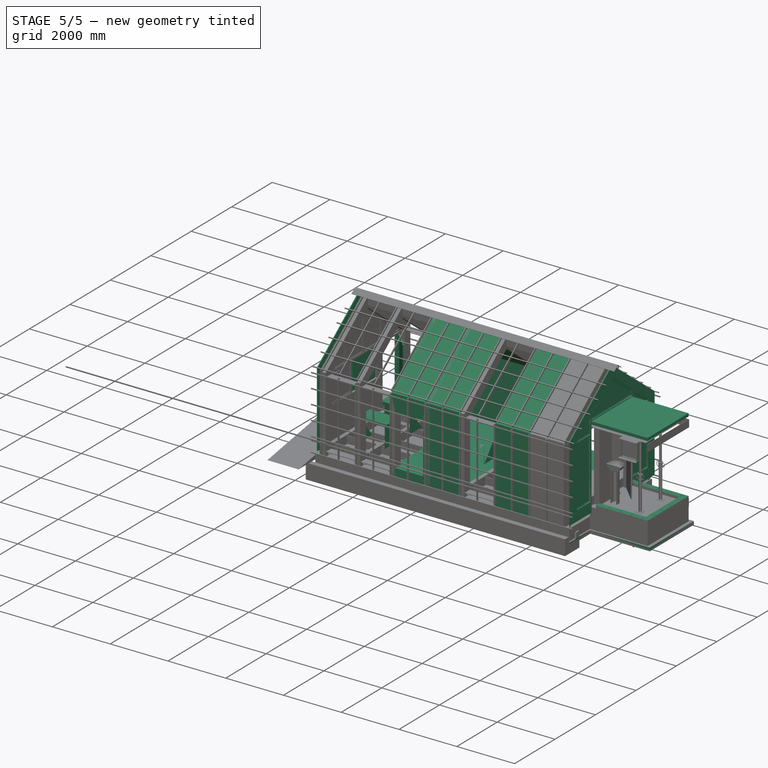
[diagram: stage 5 of 5 — iso view after this stage's code; geometry added in this stage tinted green]
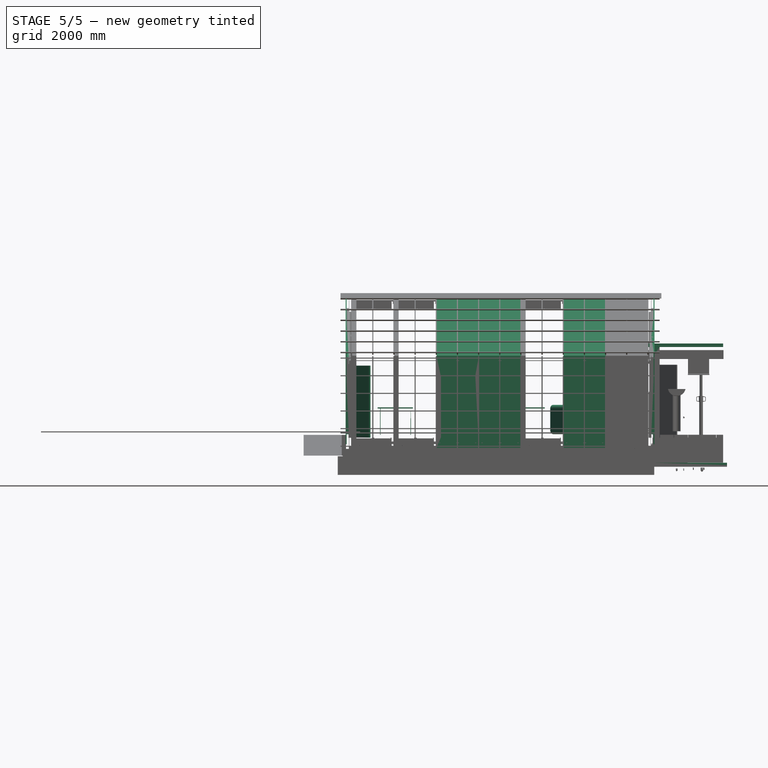
[diagram: stage 5 of 5 — front view after this stage's code; geometry added in this stage tinted green]
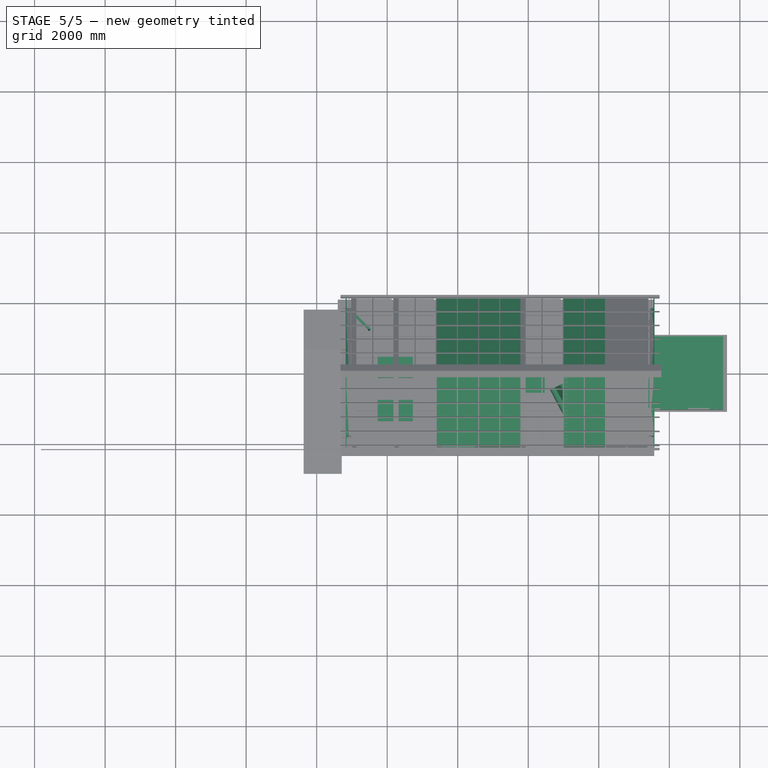
[diagram: stage 5 of 5 — top view after this stage's code; geometry added in this stage tinted green]
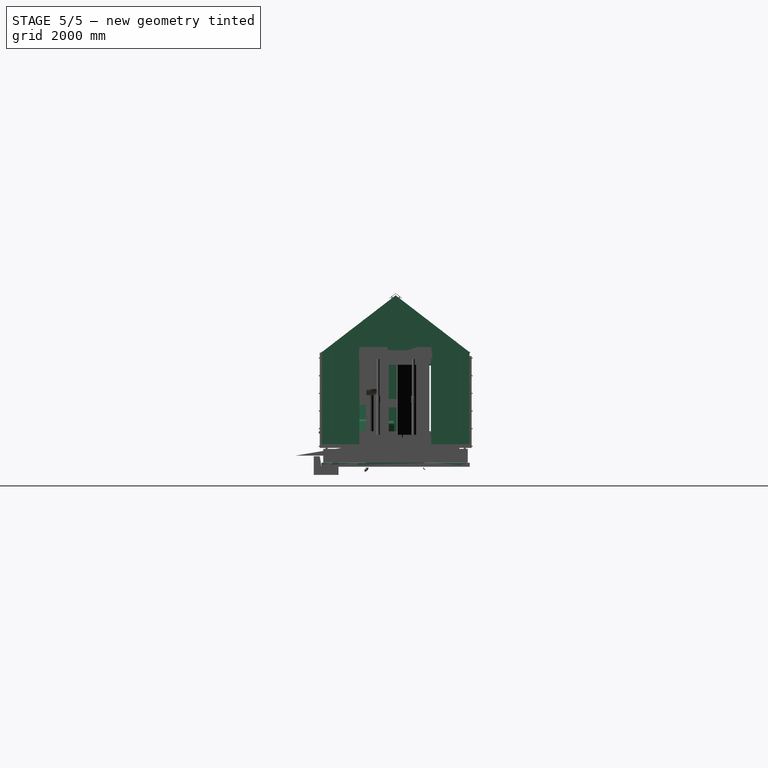
[diagram: stage 5 of 5 — right view after this stage's code; geometry added in this stage tinted green]
FEATURE [Part::Feature] ASSEMBLY001001  label="wren side hires"
  Placement = pos=(-3600,0,0) rot=(0,0,1;0rad)
  shape: bbox 250 x 4186 x 4194 mm, 8696 faces, 52 solids (baked)
FEATURE [Part::Feature] ASSEMBLY001002  label="wren module hires 001"
  Placement = pos=(-2400,0,0) rot=(0,0,1;0rad)
  shape: bbox 1439 x 4186 x 4215 mm, 13077 faces, 90 solids (baked)
FEATURE [Part::Feature] Face067
  shape: bbox 2e-07 x 3614 x 3577 mm, 1 faces, 0 solids (baked)
FEATURE [Part::Feature] Face070
  shape: bbox 2e-07 x 688.5 x 2044 mm, 1 faces, 0 solids (baked)
FEATURE [Part::Feature] Face075
  shape: bbox 2e-07 x 725.5 x 557.6 mm, 1 faces, 0 solids (baked)
FEATURE [Part::Feature] Face079
  shape: bbox 2e-07 x 725.5 x 2044 mm, 1 faces, 0 solids (baked)
FEATURE [Part::Extrusion] Extrude
  Base = -> Face067
  Dir = (1,0,0)
  DirMode = 2
  FaceMakerClass = Part::FaceMakerBullseye
  LengthFwd = 90
  LengthRev = 0
  Solid = false
  Symmetric = false
FEATURE [Part::Extrusion] Extrude001
  Base = -> Face079
  Dir = (1,0,0)
  DirMode = 2
  FaceMakerClass = Part::FaceMakerBullseye
  LengthFwd = 30
  LengthRev = 0
  Solid = false
  Symmetric = false
FEATURE [Part::Extrusion] Extrude002
  Base = -> Face075
  Dir = (1,0,0)
  DirMode = 2
  FaceMakerClass = Part::FaceMakerBullseye
  LengthFwd = 30
  LengthRev = 0
  Solid = false
  Symmetric = false
FEATURE [Part::Extrusion] Extrude003
  Base = -> Face070
  Dir = (1,0,0)
  DirMode = 2
  FaceMakerClass = Part::FaceMakerBullseye
  LengthFwd = 30
  LengthRev = 0
  Solid = false
  Symmetric = false
FEATURE [Part::Part2DObjectPython] DWire  # Draft 2D object (typed FeaturePython)
  ChamferSize = 0
  Closed = true
  End = (5520.4,999.055,2889.03)
  FilletRadius = 0
  Length = 4865.77
  MakeFace = true
  Points = (5) [(5520.4,-1030.81,2889.03),(5520.4,-1030.59,3014.53),(5520.4,6.14673e-05,3807.29),(5520.4,999.029,3038.81),(5520.4,999.055,2889.03)]
  Start = (5520.4,-1030.81,2889.03)
  Subdivisions = 0
FEATURE [Part::Part2DObjectPython] DWire001  # Draft 2D object (typed FeaturePython)
  ChamferSize = 0
  Closed = true
  End = (5520.4,975.718,2909.02)
  FilletRadius = 0
  Length = 4696.91
  MakeFace = true
  Points = (5) [(5520.4,-1009.88,2908.99),(5520.4,-1009.66,2993.73),(5520.4,7.10743,3775.86),(5520.4,975.692,3030.8),(5520.4,975.718,2909.02)]
  Start = (5520.4,-1009.88,2908.99)
  Subdivisions = 0
FEATURE [Part::Extrusion] Extrude005
  Base = -> DWire
  Dir = (1,0,0)
  DirMode = 0
  FaceMakerClass = Part::FaceMakerBullseye
  LengthFwd = 30
  LengthRev = 0
  Solid = false
  Symmetric = false
FEATURE [Part::Extrusion] Extrude006
  Base = -> DWire001
  Dir = (1,0,0)
  DirMode = 0
  FaceMakerClass = Part::FaceMakerBullseye
  LengthFwd = 30
  LengthRev = 0
  Solid = false
  Symmetric = false
FEATURE [Part::Cut] Cut
  Base = -> Extrude005
  Tool = -> Extrude006
FEATURE [Part::Cut] Cut002  label="Laje cima"
  Base = -> Solid001
  Tool = -> Extrusion
FEATURE [Part::Feature] Face
  shape: bbox 2e-07 x 3614 x 3577 mm, 1 faces, 0 solids (baked)
FEATURE [Part::Feature] Face080
  shape: bbox 2e-07 x 803.7 x 615.3 mm, 1 faces, 0 solids (baked)
FEATURE [Part::Feature] Face081
  shape: bbox 2e-07 x 1297 x 1347 mm, 1 faces, 0 solids (baked)
FEATURE [Part::Feature] Face082
  shape: bbox 2e-07 x 1293 x 994 mm, 1 faces, 0 solids (baked)
FEATURE [Part::Feature] Face084
  shape: bbox 2e-07 x 803.7 x 2044 mm, 1 faces, 0 solids (baked)
FEATURE [Part::Feature] Face085
  shape: bbox 2e-07 x 1294 x 2044 mm, 1 faces, 0 solids (baked)
FEATURE [Part::Feature] Face086
  shape: bbox 2e-07 x 1293 x 2044 mm, 1 faces, 0 solids (baked)
FEATURE [Part::Feature] Face087
  shape: bbox 2e-07 x 741.2 x 567.5 mm, 1 faces, 0 solids (baked)
FEATURE [Part::Feature] Face088
  shape: bbox 2e-07 x 1253 x 1301 mm, 1 faces, 0 solids (baked)
FEATURE [Part::Feature] Face089
  shape: bbox 2e-07 x 1224 x 941 mm, 1 faces, 0 solids (baked)
FEATURE [Part::Feature] Face090
  shape: bbox 2e-07 x 1272 x 2010 mm, 1 faces, 0 solids (baked)
FEATURE [Part::Feature] Face091
  shape: bbox 2e-07 x 1264 x 1998 mm, 1 faces, 0 solids (baked)
FEATURE [Part::Extrusion] Extrude007
  Base = -> Face
  Dir = (1,0,0)
  DirMode = 0
  FaceMakerClass = Part::FaceMakerBullseye
  LengthFwd = 90
  LengthRev = 0
  Solid = false
  Symmetric = false
FEATURE [Part::Extrusion] Extrude008
  Base = -> Face080
  Dir = (1,0,0)
  DirMode = 0
  FaceMakerClass = Part::FaceMakerBullseye
  LengthFwd = 90
  LengthRev = 0
  Solid = false
  Symmetric = false
FEATURE [Part::Extrusion] Extrude009
  Base = -> Face081
  Dir = (1,0,0)
  DirMode = 0
  FaceMakerClass = Part::FaceMakerBullseye
  LengthFwd = 90
  LengthRev = 0
  Solid = false
  Symmetric = false
FEATURE [Part::Extrusion] Extrude010
  Base = -> Face082
  Dir = (1,0,0)
  DirMode = 0
  FaceMakerClass = Part::FaceMakerBullseye
  LengthFwd = 90
  LengthRev = 0
  Solid = false
  Symmetric = false
FEATURE [Part::Extrusion] Extrude011
  Base = -> Face084
  Dir = (1,0,0)
  DirMode = 0
  FaceMakerClass = Part::FaceMakerBullseye
  LengthFwd = 90
  LengthRev = 0
  Solid = false
  Symmetric = false
FEATURE [Part::Extrusion] Extrude012
  Base = -> Face085
  Dir = (1,0,0)
  DirMode = 0
  FaceMakerClass = Part::FaceMakerBullseye
  LengthFwd = 90
  LengthRev = 0
  Solid = false
  Symmetric = false
FEATURE [Part::Extrusion] Extrude013
  Base = -> Face086
  Dir = (1,0,0)
  DirMode = 0
  FaceMakerClass = Part::FaceMakerBullseye
  LengthFwd = 90
  LengthRev = 0
  Solid = false
  Symmetric = false
FEATURE [Part::Cut] Cut003
  Base = -> Extrude007
  Tool = -> Extrude008
FEATURE [Part::Cut] Cut004
  Base = -> Cut003
  Tool = -> Extrude009
FEATURE [Part::Cut] Cut005
  Base = -> Cut004
  Tool = -> Extrude010
FEATURE [Part::Cut] Cut006
  Base = -> Cut005
  Tool = -> Extrude011
FEATURE [Part::Cut] Cut007
  Base = -> Cut006
  Tool = -> Extrude012
FEATURE [Part::Cut] Cut008
  Base = -> Cut007
  Tool = -> Extrude013
FEATURE [Part::Extrusion] Extrude014
  Base = -> Face080
  Dir = (1,0,0)
  DirMode = 0
  FaceMakerClass = Part::FaceMakerBullseye
  LengthFwd = 30
  LengthRev = 0
  Placement = pos=(30,0,0) rot=(0,0,1;0rad)
  Solid = false
  Symmetric = false
FEATURE [Part::Extrusion] Extrude015
  Base = -> Face081
  Dir = (1,0,0)
  DirMode = 0
  FaceMakerClass = Part::FaceMakerBullseye
  LengthFwd = 30
  LengthRev = 0
  Placement = pos=(30,0,0) rot=(0,0,1;0rad)
  Solid = false
  Symmetric = false
FEATURE [Part::Extrusion] Extrude016
  Base = -> Face082
  Dir = (1,0,0)
  DirMode = 0
  FaceMakerClass = Part::FaceMakerBullseye
  LengthFwd = 30
  LengthRev = 0
  Placement = pos=(30,0,0) rot=(0,0,1;0rad)
  Solid = false
  Symmetric = false
FEATURE [Part::Extrusion] Extrude018
  Base = -> Face085
  Dir = (1,0,0)
  DirMode = 0
  FaceMakerClass = Part::FaceMakerBullseye
  LengthFwd = 30
  LengthRev = 0
  Placement = pos=(30,0,0) rot=(0,0,1;0rad)
  Solid = false
  Symmetric = false
FEATURE [Part::Extrusion] Extrude019
  Base = -> Face086
  Dir = (1,0,0)
  DirMode = 0
  FaceMakerClass = Part::FaceMakerBullseye
  LengthFwd = 30
  LengthRev = 0
  Placement = pos=(30,0,0) rot=(0,0,1;0rad)
  Solid = false
  Symmetric = false
FEATURE [Part::Extrusion] Extrude022
  Base = -> Face089
  Dir = (1,0,0)
  DirMode = 0
  FaceMakerClass = Part::FaceMakerBullseye
  LengthFwd = 90
  LengthRev = 0
  Placement = pos=(-30.0002,0,0) rot=(0,0,1;0rad)
  Solid = false
  Symmetric = false
FEATURE [Part::Extrusion] Extrude023
  Base = -> Face090
  Dir = (1,0,0)
  DirMode = 0
  FaceMakerClass = Part::FaceMakerBullseye
  LengthFwd = 90
  LengthRev = 0
  Placement = pos=(-30.0002,0,0) rot=(0,0,1;0rad)
  Solid = false
  Symmetric = false
FEATURE [Part::Extrusion] Extrude024
  Base = -> Face091
  Dir = (1,0,0)
  DirMode = 0
  FaceMakerClass = Part::FaceMakerBullseye
  LengthFwd = 90
  LengthRev = 0
  Placement = pos=(-30.0002,0,0) rot=(0,0,1;0rad)
  Solid = false
  Symmetric = false
FEATURE [Part::Extrusion] Extrude021
  Base = -> Face088
  Dir = (1,0,0)
  DirMode = 0
  FaceMakerClass = Part::FaceMakerBullseye
  LengthFwd = 90
  LengthRev = 0
  Placement = pos=(-30.0002,0,0) rot=(0,0,1;0rad)
  Solid = false
  Symmetric = false
FEATURE [Part::Extrusion] Extrude020
  Base = -> Face087
  Dir = (1,0,0)
  DirMode = 0
  FaceMakerClass = Part::FaceMakerBullseye
  LengthFwd = 90
  LengthRev = 0
  Placement = pos=(-30.0002,0,0) rot=(0,0,1;0rad)
  Solid = false
  Symmetric = false
FEATURE [Part::Cut] Cut009
  Base = -> Extrude015
  Tool = -> Extrude021
FEATURE [Part::Cut] Cut010
  Base = -> Extrude014
  Tool = -> Extrude020
FEATURE [Part::Cut] Cut011
  Base = -> Extrude016
  Tool = -> Extrude022
FEATURE [Part::Cut] Cut013
  Base = -> Extrude018
  Tool = -> Extrude023
FEATURE [Part::Cut] Cut014
  Base = -> Extrude019
  Tool = -> Extrude024
FEATURE [Part::Part2DObjectPython] Rectangle002  # Draft 2D object (typed FeaturePython)
  ChamferSize = 0
  Columns = 1
  FilletRadius = 0
  Height = 281.912
  Length = 4185.94
  MakeFace = true
  Placement = pos=(-3180.08,-2092.97,-0.000596046) rot=(0.57735,0.57735,0.57735;2.0944rad)
  Rows = 1
FEATURE [Part::Part2DObjectPython] DWire002  # Draft 2D object (typed FeaturePython)
  ChamferSize = 0
  Closed = true
  End = (-3180.08,1809.36,2830.95)
  FilletRadius = 0
  Length = 5513.41
  MakeFace = true
  Points = (4) [(-3180.08,1809.36,285.995),(-3180.08,2092.97,285.995),(-3180.08,2092.97,2613.42),(-3180.08,1809.36,2830.95)]
  Start = (-3180.08,1809.36,285.995)
  Subdivisions = 0
FEATURE [Part::Part2DObjectPython] DWire003  # Draft 2D object (typed FeaturePython)
  ChamferSize = 0
  Closed = true
  End = (-3180.08,6.14673e-05,3866.09)
  FilletRadius = 0
  Length = 5273.26
  MakeFace = true
  Points = (4) [(-3180.08,1806.97,2476.11),(-3180.08,1806.97,2833.01),(-3180.08,6.14673e-05,4222.99),(-3180.08,6.14673e-05,3866.09)]
  Start = (-3180.08,1806.97,2476.11)
  Subdivisions = 0
FEATURE [Part::Part2DObjectPython] DWire004  # Draft 2D object (typed FeaturePython)
  ChamferSize = 0
  Closed = true
  End = (-3180.08,-1806.97,2476.11)
  FilletRadius = 0
  Length = 5273.26
  MakeFace = true
  Points = (4) [(-3180.08,6.14673e-05,3866.09),(-3180.08,6.14673e-05,4222.99),(-3180.08,-1806.97,2833.01),(-3180.08,-1806.97,2476.11)]
  Start = (-3180.08,6.14673e-05,3866.09)
  Subdivisions = 0
FEATURE [Part::Part2DObjectPython] DWire005  # Draft 2D object (typed FeaturePython)
  ChamferSize = 0
  Closed = true
  End = (-3180.08,-1809.37,285.995)
  FilletRadius = 0
  Length = 5513.41
  MakeFace = true
  Points = (4) [(-3180.08,-1809.37,2830.95),(-3180.08,-2092.97,2613.42),(-3180.08,-2092.97,285.995),(-3180.08,-1809.37,285.995)]
  Start = (-3180.08,-1809.37,2830.95)
  Subdivisions = 0
FEATURE [Part::Extrusion] Extrude028
  Base = -> Rectangle002
  Dir = (1,0,0)
  DirMode = 0
  FaceMakerClass = Part::FaceMakerBullseye
  LengthFwd = 30
  LengthRev = 0
  Solid = false
  Symmetric = false
FEATURE [Part::Extrusion] Extrude029
  Base = -> DWire002
  Dir = (1,0,0)
  DirMode = 0
  FaceMakerClass = Part::FaceMakerBullseye
  LengthFwd = 30
  LengthRev = 0
  Solid = false
  Symmetric = false
FEATURE [Part::Extrusion] Extrude030
  Base = -> DWire003
  Dir = (1,0,0)
  DirMode = 0
  FaceMakerClass = Part::FaceMakerBullseye
  LengthFwd = 30
  LengthRev = 0
  Solid = false
  Symmetric = false
FEATURE [Part::Extrusion] Extrude031
  Base = -> DWire004
  Dir = (1,0,0)
  DirMode = 0
  FaceMakerClass = Part::FaceMakerBullseye
  LengthFwd = 30
  LengthRev = 0
  Solid = false
  Symmetric = false
FEATURE [Part::Extrusion] Extrude032
  Base = -> DWire005
  Dir = (1,0,0)
  DirMode = 0
  FaceMakerClass = Part::FaceMakerBullseye
  LengthFwd = 30
  LengthRev = 0
  Solid = false
  Symmetric = false
FEATURE [Part::FeaturePython] Clone103  label="Extrude046"  # Draft clone (typed FeaturePython)
  AttacherType = Attacher::AttachEngine3D
  Objects = -> [Extrude032]
  Placement = pos=(8730.48,-1.86264e-06,0) rot=(0,0,1;0rad)
  Scale = (1,1,1)
FEATURE [Part::FeaturePython] Clone104  label="Extrude047"  # Draft clone (typed FeaturePython)
  AttacherType = Attacher::AttachEngine3D
  Objects = -> [Extrude031]
  Placement = pos=(8730.48,-1.86264e-06,0) rot=(0,0,1;0rad)
  Scale = (1,1,1)
FEATURE [Part::FeaturePython] Clone105  label="Extrude048"  # Draft clone (typed FeaturePython)
  AttacherType = Attacher::AttachEngine3D
  Objects = -> [Extrude030]
  Placement = pos=(8730.48,-1.86264e-06,0) rot=(0,0,1;0rad)
  Scale = (1,1,1)
FEATURE [Part::FeaturePython] Clone106  label="Extrude049"  # Draft clone (typed FeaturePython)
  AttacherType = Attacher::AttachEngine3D
  Objects = -> [Extrude029]
  Placement = pos=(8730.48,-1.86264e-06,0) rot=(0,0,1;0rad)
  Scale = (1,1,1)
FEATURE [Part::Part2DObjectPython] Rectangle003  # Draft 2D object (typed FeaturePython)
  ChamferSize = 0
  Columns = 1
  FilletRadius = 0
  Height = 281.912
  Length = 1062.16
  MakeFace = true
  Placement = pos=(5580.4,-1030.81,-0.000596046) rot=(0.57735,-0.57735,-0.57735;2.0944rad)
  Rows = 1
FEATURE [Part::Part2DObjectPython] Rectangle004  # Draft 2D object (typed FeaturePython)
  ChamferSize = 0
  Columns = 1
  FilletRadius = 0
  Height = 281.912
  Length = 1093.78
  MakeFace = true
  Placement = pos=(5580.4,2092.97,-0.000596046) rot=(0.57735,-0.57735,-0.57735;2.0944rad)
  Rows = 1
FEATURE [Part::Extrusion] Extrude033  label="Extrude050"
  Base = -> Rectangle003
  Dir = (-1,0,0)
  DirMode = 0
  FaceMakerClass = Part::FaceMakerBullseye
  LengthFwd = 30
  LengthRev = 0
  Solid = false
  Symmetric = false
FEATURE [Part::Extrusion] Extrude034  label="Extrude051"
  Base = -> Rectangle004
  Dir = (-1,0,0)
  DirMode = 0
  FaceMakerClass = Part::FaceMakerBullseye
  LengthFwd = 30
  LengthRev = 0
  Solid = false
  Symmetric = false
FEATURE [Part::Feature] ASSEMBLY001003  label="wren module hires 002"
  Placement = pos=(-1200,0,0) rot=(0,0,1;0rad)
  shape: bbox 1439 x 4186 x 4215 mm, 12899 faces, 91 solids (baked)
FEATURE [Part::FeaturePython] Clone109  label="wren module hires 005"  # Draft clone (typed FeaturePython)
  AttacherType = Attacher::AttachEngine3D
  Objects = -> [ASSEMBLY001003]
  Placement = pos=(2400,0,0) rot=(0,0,1;0rad)
  Scale = (1,-1,1)
FEATURE [Part::FeaturePython] Array014  label="Fileira 015"  # Draft array (typed FeaturePython)
  Angle = 360
  ArrayType = 0
  Axis = (0,0,1)
  Base = -> Box
  Center = (0,0,0)
  Fuse = false
  IntervalAxis = (420,0,0)
  IntervalX = (410,0,0)
  IntervalY = (0,1,0)
  IntervalZ = (0,0,0)
  NumberPolar = 1
  NumberX = 5
  NumberY = 1
  NumberZ = 1
  Placement = pos=(5469.51,2234.27,400.001) rot=(0,0,1;1.5708rad)
FEATURE [Part::FeaturePython] Array015  label="Fileira 016"  # Draft array (typed FeaturePython)
  Angle = 360
  ArrayType = 0
  Axis = (0,0,1)
  Base = -> Box
  Center = (0,0,0)
  Fuse = false
  IntervalAxis = (410,0,0)
  IntervalX = (400,0,0)
  IntervalY = (0,1,0)
  IntervalZ = (0,0,0)
  NumberPolar = 1
  NumberX = 4
  NumberY = 1
  NumberZ = 1
  Placement = pos=(9000,1024.6,400.001) rot=(0,0,1;0rad)
FEATURE [Part::FeaturePython] Array016  label="Fileira 017"  # Draft array (typed FeaturePython)
  Angle = 360
  ArrayType = 0
  Axis = (0,0,1)
  Base = -> Box
  Center = (0,0,0)
  Fuse = false
  IntervalAxis = (410,0,0)
  IntervalX = (400,0,0)
  IntervalY = (0,1,0)
  IntervalZ = (0,0,0)
  NumberPolar = 1
  NumberX = 4
  NumberY = 1
  NumberZ = 1
  Placement = pos=(9000,2864.6,400.001) rot=(0,0,1;0rad)
FEATURE [Part::FeaturePython] Clone008  label="Meio-bloco 19cm 004"  # Draft clone (typed FeaturePython)
  AttacherType = Attacher::AttachEngine3D
  Objects = -> [Clone007]
  Placement = pos=(5534.92,809.192,79.0292) rot=(0,0,1;0rad)
  Scale = (1,1,1)
FEATURE [App::FeaturePython] Dimension001  # Draft dimension (typed FeaturePython)
  Diameter = false
  Dimline = (-2002.86,2487.34,0)
  Direction = (0,0,0)
  Distance = 1200
  End = (-1799.98,2092.97,0)
  Normal = (0,0,1)
  Start = (-2999.98,2092.97,0)
FEATURE [App::FeaturePython] Dimension002  # Draft dimension (typed FeaturePython)
  Diameter = false
  Dimline = (-1799.98,2487.34,0)
  Direction = (0,0,0)
  Distance = 1200
  End = (-599.979,2092.97,0)
  Normal = (0,0,1)
  Start = (-1799.98,2092.97,0)
FEATURE [App::FeaturePython] Dimension003  # Draft dimension (typed FeaturePython)
  Diameter = false
  Dimline = (-599.979,2487.34,0)
  Direction = (0,0,0)
  Distance = 1200
  End = (600.021,2092.97,0)
  Normal = (0,0,1)
  Start = (-599.979,2092.97,0)
FEATURE [App::FeaturePython] Dimension004  # Draft dimension (typed FeaturePython)
  Diameter = false
  Dimline = (600.021,2487.34,0)
  Direction = (0,0,0)
  Distance = 1200
  End = (1800.02,2092.97,0)
  Normal = (0,0,1)
  Start = (600.021,2092.97,0)
FEATURE [App::FeaturePython] Dimension005  # Draft dimension (typed FeaturePython)
  Diameter = false
  Dimline = (1800.02,2487.34,0)
  Direction = (0,0,0)
  Distance = 1200
  End = (3000.02,2092.97,0)
  Normal = (0,0,1)
  Start = (1800.02,2092.97,0)
FEATURE [App::FeaturePython] Dimension006  # Draft dimension (typed FeaturePython)
  Diameter = false
  Dimline = (3000.02,2487.34,0)
  Direction = (0,0,0)
  Distance = 1200
  End = (4200.02,2092.97,0)
  Normal = (0,0,1)
  Start = (3000.02,2092.97,0)
FEATURE [App::FeaturePython] Dimension007  # Draft dimension (typed FeaturePython)
  Diameter = false
  Dimline = (4200.02,2487.34,0)
  Direction = (0,0,0)
  Distance = 1200
  End = (5400.02,2092.97,0)
  Normal = (0,0,1)
  Start = (4200.02,2092.97,0)
FEATURE [App::FeaturePython] Dimension008  # Draft dimension (typed FeaturePython)
  Diameter = false
  Dimline = (5400.02,2487.34,0)
  Direction = (0,0,0)
  Distance = 180.375
  End = (5580.4,2092.97,0)
  Normal = (0,0,1)
  Start = (5400.02,2092.97,0)
FEATURE [App::FeaturePython] Dimension009  # Draft dimension (typed FeaturePython)
  Diameter = false
  Dimline = (-2999.98,2487.34,0)
  Direction = (0,0,0)
  Distance = 180.105
  End = (-2999.98,2092.97,0)
  Normal = (0,0,1)
  Start = (-3180.08,2092.97,0)
FEATURE [App::FeaturePython] Dimension010  # Draft dimension (typed FeaturePython)
  Diameter = false
  Dimline = (5779.08,2772.65,0)
  Direction = (0,0,0)
  Distance = 8760.48
  End = (5580.4,2092.97,0)
  Normal = (0,0,1)
  Start = (-3180.08,2092.97,0)
FEATURE [App::FeaturePython] Dimension011  # Draft dimension (typed FeaturePython)
  Diameter = false
  Dimline = (-3441.88,-1821.29,0)
  Direction = (0,0,0)
  Distance = 285.998
  End = (-2999.98,-1806.97,0)
  Normal = (0,0,1)
  Start = (-2999.98,-2092.97,0)
FEATURE [App::FeaturePython] Dimension  # Draft dimension (typed FeaturePython)
  Diameter = false
  Dimline = (-3441.88,-1806.97,0)
  Direction = (0,0,0)
  Distance = 3613.95
  End = (-2999.98,1806.97,0)
  Normal = (0,0,1)
  Start = (-2999.98,-1806.97,0)
FEATURE [App::FeaturePython] Dimension012  # Draft dimension (typed FeaturePython)
  Diameter = false
  Dimline = (-3441.88,1806.97,0)
  Direction = (0,0,0)
  Distance = 285.998
  End = (-2999.98,2092.97,0)
  Normal = (0,0,1)
  Start = (-2999.98,1806.97,0)
FEATURE [App::FeaturePython] Dimension013  # Draft dimension (typed FeaturePython)
  Diameter = false
  Dimline = (-3735.38,2247.35,0)
  Direction = (0,0,0)
  Distance = 4185.94
  End = (-2999.98,2092.97,0)
  Normal = (0,0,1)
  Start = (-2999.98,-2092.97,0)
FEATURE [App::FeaturePython] Dimension014  # Draft dimension (typed FeaturePython)
  Diameter = false
  Dimline = (1012.98,1425.57,0)
  Direction = (0,0,0)
  Distance = 8400
  End = (5400.02,1806.97,0)
  Normal = (0,0,1)
  Start = (-2999.98,1806.97,0)
FEATURE [App::FeaturePython] Dimension015  # Draft dimension (typed FeaturePython)
  Diameter = false
  Dimline = (-1023.02,419.074,0)
  Direction = (0,0,0)
  Distance = 3613.95
  End = (-2999.98,1806.97,0)
  Normal = (0,0,1)
  Start = (-2999.98,-1806.97,0)
FEATURE [App::FeaturePython] Dimension016  # Draft dimension (typed FeaturePython)
  Diameter = false
  Dimline = (6714.43,201.185,0)
  Direction = (0,0,0)
  Distance = 1610
  End = (7334.93,704.191,0)
  Normal = (0,0,1)
  Start = (5724.93,704.191,0)
FEATURE [App::FeaturePython] Dimension017  # Draft dimension (typed FeaturePython)
  Diameter = false
  Dimline = (6048.5,541.807,0)
  Direction = (0,0,0)
  Distance = 1650
  End = (5729.93,809.192,0)
  Normal = (0,0,1)
  Start = (5729.93,-840.808,0)
FEATURE [App::FeaturePython] Dimension019  # Draft dimension (typed FeaturePython)
  Diameter = false
  Dimline = (7821.72,836.751,0)
  Direction = (0,0,0)
  Distance = 2030
  End = (7524.9,999.192,0)
  Normal = (0,0,1)
  Start = (7524.9,-1030.81,0)
FEATURE [App::FeaturePython] Dimension020  # Draft dimension (typed FeaturePython)
  Diameter = false
  Dimline = (5400.02,1425.57,0)
  Direction = (0,0,0)
  Distance = 180.375
  End = (5580.4,1806.97,0)
  Normal = (0,0,1)
  Start = (5400.02,1806.97,0)
FEATURE [App::FeaturePython] Dimension021  # Draft dimension (typed FeaturePython)
  Diameter = false
  Dimline = (5400.02,1425.57,0)
  Direction = (0,0,0)
  Distance = 1944.5
  End = (7524.9,903.486,0)
  Normal = (0,0,1)
  Start = (5580.4,903.486,0)
FEATURE [Part::Feature] Solid009  label="Bloco rampa"
  shape: bbox 1200 x 4650 x 590.7 mm, 8 faces (baked)
FEATURE [Part::Part2DObjectPython] Shape2DView  # Draft 2D object (typed FeaturePython)
  Base = -> Mesh141001006001
  FaceNumbers = [158]
  HiddenLines = false
  Projection = (0,0,1)
  ProjectionMode = 0
  SegmentLength = 0.05
  Tessellation = false
FEATURE [Part::Part2DObjectPython] Shape2DView001  # Draft 2D object (typed FeaturePython)
  Base = -> Mesh141001002001001
  FaceNumbers = [367]
  HiddenLines = false
  Projection = (0,0,1)
  ProjectionMode = 0
  SegmentLength = 0.05
  Tessellation = false
FEATURE [App::DocumentObjectGroup] Group015  label="Anotações planta"
  Group = -> [Dimension001,Dimension002,Dimension003,Dimension004,Dimension005,Dimension006,Dimension007,Dimension008,Dimension009,Dimension010,Dimension011,Dimension,Dimension012,Dimension013,Dimension014,Dimension015,Dimension016,Dimension017,Dimension019,Dimension020,Dimension021,Shape2DView001,Shape2DView]
FEATURE [Part::Part2DObjectPython] Line  # Draft 2D object (typed FeaturePython)
  ChamferSize = 0
  Closed = false
  End = (0,3053.09,-322.682)
  FilletRadius = 0
  Length = 6791.18
  MakeFace = true
  Placement = pos=(0,-893.081,0) rot=(0,0,1;0rad)
  Points = (2) [(0,-2845.01,-322.682),(0,3946.17,-322.682)]
  Start = (0,-3738.09,-322.682)
  Subdivisions = 0
FEATURE [App::FeaturePython] Dimension022  # Draft dimension (typed FeaturePython)
  Diameter = false
  Dimline = (0,2487.34,0)
  Direction = (0,0,0)
  Distance = 236.705
  End = (0,2045.49,-84.2665)
  Normal = (-1,0,0)
  Start = (0,2045.49,-320.972)
FEATURE [App::FeaturePython] Dimension023  # Draft dimension (typed FeaturePython)
  Diameter = false
  Dimline = (0,2487.34,-84.2665)
  Direction = (0,0,0)
  Distance = 2640.05
  End = (0,2138.06,2555.78)
  Normal = (-1,0,0)
  Start = (0,2138.06,-84.2665)
FEATURE [App::FeaturePython] Dimension024  # Draft dimension (typed FeaturePython)
  Diameter = false
  Dimline = (0,2487.34,2555.78)
  Direction = (0,0,0)
  Distance = 1727.49
  End = (0,2241.1,4283.28)
  Normal = (-1,0,0)
  Start = (0,2241.1,2555.78)
FEATURE [App::FeaturePython] Dimension025  # Draft dimension (typed FeaturePython)
  Diameter = false
  Dimline = (0,1345.87,1891.62)
  Direction = (0,0,0)
  Distance = 2204.55
  End = (0,1806.97,2472.55)
  Normal = (-1,0,0)
  Start = (0,1805.32,267.996)
FEATURE [App::FeaturePython] Dimension026  # Draft dimension (typed FeaturePython)
  Diameter = false
  Dimline = (0,-245.539,3282.54)
  Direction = (0,0,0)
  Distance = 3594.53
  End = (0,1805.32,3862.53)
  Normal = (-1,0,0)
  Start = (0,1805.32,267.996)
FEATURE [Part::Part2DObjectPython] Shape2DView002  # Draft 2D object (typed FeaturePython)
  Base = -> Mesh141001006001
  HiddenLines = false
  Placement = pos=(-6541.29,0,0) rot=(0,1,0;1.5708rad)
  Projection = (-1,0,0)
  ProjectionMode = 0
  SegmentLength = 0.05
  Tessellation = false
FEATURE [Part::Part2DObjectPython] Shape2DView003  # Draft 2D object (typed FeaturePython)
  Base = -> Mesh141001003001001
  HiddenLines = false
  Placement = pos=(-6541.29,0,0) rot=(0,1,0;1.5708rad)
  Projection = (-1,0,0)
  ProjectionMode = 0
  SegmentLength = 0.05
  Tessellation = false
FEATURE [Part::Part2DObjectPython] Shape2DView004  # Draft 2D object (typed FeaturePython)
  Base = -> Mesh141001004001001
  HiddenLines = false
  Placement = pos=(-6541.29,0,0) rot=(0,1,0;1.5708rad)
  Projection = (-1,0,0)
  ProjectionMode = 0
  SegmentLength = 0.05
  Tessellation = false
FEATURE [Part::Part2DObjectPython] Shape2DView005  # Draft 2D object (typed FeaturePython)
  Base = -> Mesh141001002001001
  HiddenLines = false
  Placement = pos=(-6541.29,0,0) rot=(0,1,0;1.5708rad)
  Projection = (-1,0,0)
  ProjectionMode = 0
  SegmentLength = 0.05
  Tessellation = false
FEATURE [Part::Part2DObjectPython] Shape2DView006  # Draft 2D object (typed FeaturePython)
  Base = -> Mesh141001005001001
  HiddenLines = false
  Placement = pos=(-6541.29,0,0) rot=(0,1,0;1.5708rad)
  Projection = (-1,0,0)
  ProjectionMode = 0
  SegmentLength = 0.05
  Tessellation = false
FEATURE [App::DocumentObjectGroup] Group016  label="Anotações corte transversal"
  Group = -> [Line,Dimension022,Dimension023,Dimension024,Dimension025,Dimension026,Shape2DView002,Shape2DView003,Shape2DView004,Shape2DView005,Shape2DView006]
FEATURE [Part::Feature] Shape2DView007
  Placement = pos=(0,-575.363,5977.07) rot=(1,0,0;1.5708rad)
  shape: bbox 9099 x 2e-07 x 30.19 mm, 0 faces, 0 solids (baked)
FEATURE [App::DocumentObjectGroup] Group017  label="Anotações corte longitudinal"
  Group = -> [Shape2DView007]
FEATURE [Part::Feature] Solid012  label="Sapata001"
  shape: bbox 8976 x 288.2 x 64.68 mm, 6 faces (baked)
FEATURE [Part::Feature] Solid013  label="Sapata"
  shape: bbox 2379 x 3628 x 64.68 mm, 14 faces (baked)
FEATURE [Part::Feature] Solid014  label="Sapata002"
  shape: bbox 8976 x 288.2 x 64.68 mm, 6 faces (baked)
FEATURE [Part::Part2DObjectPython] DWire007  # Draft 2D object (typed FeaturePython)
  ChamferSize = 0
  Closed = true
  End = (4435.87,1706.31,288.514)
  FilletRadius = 100
  Length = 3217.3
  MakeFace = true
  Placement = pos=(0,1706.31,0) rot=(0,0,1;0rad)
  Points = (6) [(3492.73,0,288.514),(3492.73,0,1118.25),(3646.98,0,1118.25),(3816.49,0,660.125),(4435.87,0,660.125),(4435.87,0,288.514)]
  Start = (3492.73,1706.31,288.514)
  Subdivisions = 0
FEATURE [Part::Extrusion] Extrusion001
  Base = -> DWire007
  Dir = (0,813.192,0)
  DirMode = 0
  FaceMakerClass = Part::FaceMakerBullseye
  LengthFwd = 0
  LengthRev = 0
  Placement = pos=(441.875,4149.34,0) rot=(0,0,-1;1.27423rad)
  Solid = true
  Symmetric = false
FEATURE [Part::FeaturePython] Clone112  label="Extrusion014"  # Draft clone (typed FeaturePython)
  AttacherType = Attacher::AttachEngine3D
  Objects = -> [Extrusion001]
  Placement = pos=(712.02,-4342.08,0) rot=(0,0,1;0.485687rad)
  Scale = (1,1,1)
FEATURE [Part::Feature] Solid017
  shape: bbox 486.4 x 486.4 x 450 mm, 6 faces (baked)
FEATURE [Part::Feature] Solid018
  shape: bbox 523.4 x 523.4 x 450 mm, 6 faces (baked)
FEATURE [Part::Feature] Solid019
  shape: bbox 523.4 x 523.4 x 450 mm, 6 faces (baked)
FEATURE [Part::Feature] Solid020
  shape: bbox 461.4 x 461.4 x 450 mm, 6 faces (baked)
FEATURE [Part::Feature] Solid021
  shape: bbox 461.4 x 461.4 x 450 mm, 6 faces (baked)
FEATURE [Part::Feature] Solid022
  shape: bbox 523.4 x 523.4 x 450 mm, 6 faces (baked)
FEATURE [Part::Feature] Solid023
  shape: bbox 486.4 x 486.4 x 450 mm, 6 faces (baked)
FEATURE [Part::Feature] Solid024
  shape: bbox 484.5 x 484.5 x 450 mm, 6 faces (baked)
FEATURE [Part::Feature] Solid025
  shape: bbox 484.5 x 484.5 x 450 mm, 6 faces (baked)
FEATURE [Part::Feature] Solid026
  shape: bbox 1000 x 600 x 780 mm, 14 faces (baked)
FEATURE [Part::Feature] Solid027
  shape: bbox 1000 x 600 x 780 mm, 15 faces (baked)
FEATURE [Part::Feature] Solid028
  shape: bbox 1000 x 600 x 780 mm, 16 faces (baked)
FEATURE [Part::Feature] Solid029
  shape: bbox 1000 x 600 x 780 mm, 16 faces (baked)
FEATURE [Part::Feature] Solid030
  shape: bbox 486.4 x 486.4 x 450 mm, 6 faces (baked)
FEATURE [Part::Feature] Solid031
  shape: bbox 484.5 x 484.5 x 450 mm, 6 faces (baked)
FEATURE [Part::Feature] Solid032
  shape: bbox 484.5 x 484.5 x 450 mm, 6 faces (baked)
FEATURE [Part::Feature] Solid033
  shape: bbox 484.5 x 484.5 x 450 mm, 6 faces (baked)
FEATURE [Part::FeaturePython] Clone114  label="Solid039"  # Draft clone (typed FeaturePython)
  AttacherType = Attacher::AttachEngine3D
  Objects = -> [Solid029]
  Placement = pos=(-1003.96,0,0) rot=(0,0,1;0rad)
  Scale = (1,1,1)
FEATURE [Part::FeaturePython] Clone115  label="Solid040"  # Draft clone (typed FeaturePython)
  AttacherType = Attacher::AttachEngine3D
  Objects = -> [Solid029]
  Placement = pos=(1020.96,0,0) rot=(0,0,1;0rad)
  Scale = (1,1,1)
FEATURE [Part::FeaturePython] Clone116  label="Solid041"  # Draft clone (typed FeaturePython)
  AttacherType = Attacher::AttachEngine3D
  Objects = -> [Solid026]
  Placement = pos=(-1712.81,-190.547,0) rot=(0,0,1;0rad)
  Scale = (1,1,1)
FEATURE [Part::FeaturePython] Clone117  label="Solid042"  # Draft clone (typed FeaturePython)
  AttacherType = Attacher::AttachEngine3D
  Objects = -> [Clone114]
  Placement = pos=(-2716.77,-190.547,0) rot=(0,0,1;0rad)
  Scale = (1,1,1)
FEATURE [Part::FeaturePython] Clone118  label="Solid043"  # Draft clone (typed FeaturePython)
  AttacherType = Attacher::AttachEngine3D
  Objects = -> [Clone117]
  Placement = pos=(-2716.77,-802.029,0) rot=(0,0,1;0rad)
  Scale = (1,1,1)
FEATURE [Part::FeaturePython] Clone119  label="copy of mod 1"  # Draft clone (typed FeaturePython)
  AttacherType = Attacher::AttachEngine3D
  Objects = -> [Extrusion002]
  Placement = pos=(1200,0,0) rot=(0,0,1;0rad)
  Scale = (1,1,1)
FEATURE [Part::Part2DObjectPython] Rectangle005  # Draft 2D object (typed FeaturePython)
  ChamferSize = 0
  Columns = 1
  FilletRadius = 0
  Height = 1755.58
  Length = 980.978
  MakeFace = true
  Placement = pos=(-1682.98,-2092.97,285.996) rot=(1,0,0;1.5708rad)
  Rows = 1
FEATURE [Part::Extrusion] Extrusion003
  Base = -> Rectangle005
  Dir = (0,285.998,0)
  DirMode = 0
  FaceMakerClass = Part::FaceMakerBullseye
  LengthFwd = 0
  LengthRev = 0
  Solid = true
  Symmetric = false
FEATURE [Part::Cut] Cut016  label="wren module lowres 002"
  Base = -> Clone119
  Tool = -> Extrusion003
FEATURE [Part::FeaturePython] Clone122  label="wren base 005"  # Draft clone (typed FeaturePython)
  AttacherType = Attacher::AttachEngine3D
  Objects = -> [Extrusion002]
  Placement = pos=(4800,0,0) rot=(0,0,1;0rad)
  Scale = (1,1,1)
FEATURE [Part::FeaturePython] Clone123  label="Extrusion011"  # Draft clone (typed FeaturePython)
  AttacherType = Attacher::AttachEngine3D
  Objects = -> [Extrusion003]
  Placement = pos=(3600,3899.94,-2.125e-09) rot=(0,0,1;0rad)
  Scale = (1,1,1)
FEATURE [Part::Cut] Cut017  label="wren module lowres 005"
  Base = -> Clone122
  Tool = -> Clone123
FEATURE [App::MaterialObjectPython] Material001  label="Concreto moldado in loco"  # material (typed FeaturePython)
  Material = DiffuseColor=(0.8392156862745098, 0.8392156862745098, 0.8392156862745098); Name=Concreto moldado in loco
FEATURE [Part::FeaturePython] Structure  label="Base de concreto 7cm"  # Arch/BIM object (typed FeaturePython)
  Additions = -> [Solid012,Solid014]
  Base = -> Solid013
  FaceMaker = 0
  Height = 2000
  HorizontalArea = 8.68134e+06
  IfcAttributes = IfcUID=1kjsFIxnSHvgPl093rt3ko
  Length = 0
  Material = -> Material001
  MoveWithHost = false
  NodesOffset = 0
  Normal = (0,0,0)
  PerimeterLength = 12014.9
  Role = 6
  VerticalArea = 3.55293e+06
  Width = 200
FEATURE [Part::FeaturePython] Component001  label="Módulo vazado"  # WARN: FeaturePython — macro-defined, semantics opaque (R4)
  Base = -> Cut016
  HiRes = -> ASSEMBLY001003
  HorizontalArea = 0
  Material = -> Material002
  MoveWithHost = false
  PerimeterLength = 0
  Placement = pos=(0,0,-101.581) rot=(0,0,1;0rad)
  Role = 0
  VerticalArea = 0
FEATURE [Part::FeaturePython] Component004  label="Módulo vazado001"  # WARN: FeaturePython — macro-defined, semantics opaque (R4)
  Base = -> Cut017
  HiRes = -> Clone109
  HorizontalArea = 0
  Material = -> Material002
  MoveWithHost = false
  PerimeterLength = 0
  Placement = pos=(0,0,-101.581) rot=(0,0,1;0rad)
  Role = 0
  VerticalArea = 0
FEATURE [Part::FeaturePython] Component005  label="Módulo inteiro002"  # WARN: FeaturePython — macro-defined, semantics opaque (R4)
  CloneOf = -> Component
  HorizontalArea = 0
  Material = -> Material002
  MoveWithHost = false
  PerimeterLength = 0
  Placement = pos=(3600,0,-101.581) rot=(0,0,1;0rad)
  Role = 0
  VerticalArea = 0
FEATURE [Part::FeaturePython] Component006  label="Módulo vazado002"  # WARN: FeaturePython — macro-defined, semantics opaque (R4)
  CloneOf = -> Component001
  HorizontalArea = 0
  Material = -> Material002
  MoveWithHost = false
  PerimeterLength = 0
  Placement = pos=(1200,0,-101.581) rot=(0,0,1;0rad)
  Role = 0
  VerticalArea = 0
FEATURE [Part::FeaturePython] Component007  label="Módulo vazado003"  # WARN: FeaturePython — macro-defined, semantics opaque (R4)
  CloneOf = -> Component004
  HorizontalArea = 0
  Material = -> Material002
  MoveWithHost = false
  PerimeterLength = 0
  Placement = pos=(1200,0,-101.581) rot=(0,0,1;0rad)
  Role = 0
  VerticalArea = 0
FEATURE [Part::Compound] Compound006
  Links = -> [Extrude028,Extrude029,Extrude030,Extrude031,Extrude032]
FEATURE [Part::FeaturePython] Component013  label="Painel frontal"  # WARN: FeaturePython — macro-defined, semantics opaque (R4)
  Base = -> Compound006
  HorizontalArea = 0
  Material = -> Material002
  MoveWithHost = false
  PerimeterLength = 0
  Role = 0
  VerticalArea = 0
FEATURE [Part::Compound] Compound007
  Links = -> [Clone103,Clone104,Clone105,Clone106,Extrude033,Extrude034]
FEATURE [Part::FeaturePython] Component014  label="Painel traseiro"  # WARN: FeaturePython — macro-defined, semantics opaque (R4)
  Base = -> Compound007
  HorizontalArea = 0
  Material = -> Material002
  MoveWithHost = false
  PerimeterLength = 0
  Role = 0
  VerticalArea = 0
FEATURE [Part::Part2DObjectPython] Rectangle008  # Draft 2D object (typed FeaturePython)
  ChamferSize = 0
  Columns = 1
  FilletRadius = 0
  Height = 580
  Length = 600
  MakeFace = false
  Placement = pos=(6529.91,-988.37,2179.03) rot=(1,0,0;1.5708rad)
  Rows = 1
FEATURE [Part::Part2DObjectPython] Rectangle009  # Draft 2D object (typed FeaturePython)
  ChamferSize = 0
  Columns = 1
  FilletRadius = 0
  Height = 500
  Length = 500
  MakeFace = false
  Placement = pos=(6579.92,-988.37,2209.03) rot=(1,0,0;1.5708rad)
  Rows = 1
FEATURE [Part::Part2DObjectPython] Rectangle010  # Draft 2D object (typed FeaturePython)
  ChamferSize = 0
  Columns = 1
  FilletRadius = 0
  Height = 530
  Length = 530
  MakeFace = false
  Placement = pos=(6564.92,-988.37,2194.03) rot=(1,0,0;1.5708rad)
  Rows = 1
FEATURE [Part::Compound] Compound008
  Links = -> [Rectangle008,Rectangle010,Rectangle009]
FEATURE [App::MaterialObjectPython] Material007  label="Caixilho de alumínio"  # material (typed FeaturePython)
  Material = DiffuseColor=(0.5019607843137255, 0.5019607843137255, 0.5019607843137255); Name=Caixilho de alumínio
FEATURE [Part::FeaturePython] Window  label="Porta frente - Alumínio 90x210"  # Arch/BIM object (typed FeaturePython)
  Area = 1890000
  Base = -> Sketch
  Height = 2100
  HoleDepth = 0
  HorizontalArea = 122450
  IfcAttributes = IfcUID=1jg6koxnSHvgPl093rt3ko
  LouvreSpacing = 0
  LouvreWidth = 0
  Material = -> Material007
  MoveWithHost = true
  Normal = (0,1,0)
  Opening = 50
  PerimeterLength = 0
  Placement = pos=(-6507.32,-2152.92,-168.866) rot=(0,0,-1;1.5708rad)
  Preset = 7
  Role = 1
  VerticalArea = 4555600
  Width = 900
  WindowParts = OuterFrame | Frame | Wire0,Wire1 | 50.0 | 50.0 | InnerFrame | Frame | Wire2,Wire3,Edge8,Mode1 | 50.0 | 75.0 | InnerGlass | Glass panel | Wire3 | 5.0 | 100.0
  WindowParts1 = 0
FEATURE [Part::Part2DObjectPython] DWire015  # Draft 2D object (typed FeaturePython)
  ChamferSize = 0
  Closed = true
  End = (-3135.08,962.4,2473.92)
  FilletRadius = 0
  Length = 2239.48
  MakeFace = true
  Placement = pos=(15,0,0) rot=(0,0,1;0rad)
  Points = (3) [(-3150.08,1703.62,2473.92),(-3150.08,965.881,3041.41),(-3150.08,962.4,2473.92)]
  Start = (-3135.08,1703.62,2473.92)
  Subdivisions = 0
FEATURE [Part::Part2DObjectPython] DWire016  # Draft 2D object (typed FeaturePython)
  ChamferSize = 0
  Closed = true
  End = (-3135.08,-381.294,2474.78)
  FilletRadius = 0
  Length = 4468.66
  MakeFace = true
  Placement = pos=(15,0,0) rot=(0,0,1;0rad)
  Points = (5) [(-3150.08,868.297,2474.78),(-3150.08,868.863,3112.97),(-3150.08,7.10743,3775.86),(-3150.08,-383.994,3475.02),(-3150.08,-381.294,2474.78)]
  Start = (-3135.08,868.297,2474.78)
  Subdivisions = 0
FEATURE [Part::Part2DObjectPython] DWire017  # Draft 2D object (typed FeaturePython)
  ChamferSize = 0
  Closed = true
  End = (-3135.08,-1702.84,2480.99)
  FilletRadius = 0
  Length = 3708.73
  MakeFace = true
  Placement = pos=(15,0,0) rot=(0,0,1;0rad)
  Points = (3) [(-3150.08,-478.509,2480.99),(-3150.08,-479.524,3422),(-3150.08,-1702.84,2480.99)]
  Start = (-3135.08,-478.509,2480.99)
  Subdivisions = 0
FEATURE [Part::Part2DObjectPython] Rectangle011  # Draft 2D object (typed FeaturePython)
  ChamferSize = 0
  Columns = 1
  FilletRadius = 0
  Height = 2009.75
  Length = 1271.93
  MakeFace = true
  Placement = pos=(-3135.08,880.713,370.506) rot=(0.57735,-0.57735,-0.57735;2.0944rad)
  Rows = 1
FEATURE [Part::Part2DObjectPython] Rectangle012  # Draft 2D object (typed FeaturePython)
  ChamferSize = 0
  Columns = 1
  FilletRadius = 0
  Height = 1997.67
  Length = 1263.78
  MakeFace = true
  Placement = pos=(-3135.08,-472.659,376.547) rot=(0.57735,-0.57735,-0.57735;2.0944rad)
  Rows = 1
FEATURE [Part::Extrusion] Extrude035  label="Extrude052"
  Base = -> DWire015
  Dir = (1,0,1)
  DirMode = 0
  FaceMakerClass = Part::FaceMakerBullseye
  LengthFwd = 5
  LengthRev = 0
  Solid = false
  Symmetric = false
FEATURE [Part::Extrusion] Extrude036  label="Extrude053"
  Base = -> DWire016
  Dir = (1,0,1)
  DirMode = 0
  FaceMakerClass = Part::FaceMakerBullseye
  LengthFwd = 5
  LengthRev = 0
  Solid = false
  Symmetric = false
FEATURE [Part::Extrusion] Extrude037  label="Extrude054"
  Base = -> DWire017
  Dir = (1,0,1)
  DirMode = 0
  FaceMakerClass = Part::FaceMakerBullseye
  LengthFwd = 5
  LengthRev = 0
  Solid = false
  Symmetric = false
FEATURE [Part::Extrusion] Extrude038  label="Extrude055"
  Base = -> Rectangle011
  Dir = (1,0,1)
  DirMode = 0
  FaceMakerClass = Part::FaceMakerBullseye
  LengthFwd = 5
  LengthRev = 0
  Solid = false
  Symmetric = false
FEATURE [Part::Extrusion] Extrude039  label="Extrude056"
  Base = -> Rectangle012
  Dir = (1,0,1)
  DirMode = 0
  FaceMakerClass = Part::FaceMakerBullseye
  LengthFwd = 5
  LengthRev = 0
  Solid = false
  Symmetric = false
FEATURE [Part::Part2DObjectPython] DWire018  # Draft 2D object (typed FeaturePython)
  ChamferSize = 0
  Closed = true
  End = (0,-1062.69,2460.25)
  FilletRadius = 0
  Length = 2086.51
  MakeFace = true
  Points = (3) [(0,-1751.16,2460.25),(0,-1062.76,2989.78),(0,-1062.69,2460.25)]
  Start = (0,-1751.16,2460.25)
  Subdivisions = 0
FEATURE [Part::Part2DObjectPython] DWire019  # Draft 2D object (typed FeaturePython)
  ChamferSize = 0
  Closed = true
  End = (0,-1084.16,2480.99)
  FilletRadius = 0
  Length = 1875.15
  MakeFace = true
  Points = (3) [(0,-1702.84,2480.99),(0,-1084.16,2956.9),(0,-1084.16,2480.99)]
  Start = (0,-1702.84,2480.99)
  Subdivisions = 0
FEATURE [Part::Cut] Cut018
  Base = -> DWire018
  Placement = pos=(5520.4,0,0) rot=(0,0,1;0rad)
  Tool = -> DWire019
FEATURE [Part::Extrusion] Extrusion007  label="Extrusion017"
  Base = -> Cut018
  Dir = (30,0,0)
  DirMode = 0
  FaceMakerClass = Part::FaceMakerBullseye
  LengthFwd = 0
  LengthRev = 0
  Solid = true
  Symmetric = false
FEATURE [Part::Compound] Compound010
  Links = -> [Cut008,Cut009,Cut010,Cut011,Cut013,Cut014,Extrude039,Extrude038,Extrude037,Extrude036,Extrude035]
FEATURE [Part::FeaturePython] Component015  label="Caixilho frente"  # Arch/BIM object (typed FeaturePython)
  Base = -> Compound010
  HorizontalArea = 0
  IfcAttributes = IfcUID=1B6pRs13GHvujW093rt3ko
  MoveWithHost = false
  PerimeterLength = 0
  Role = 27
  VerticalArea = 0
FEATURE [Part::Part2DObjectPython] DWire020  # Draft 2D object (typed FeaturePython)
  ChamferSize = 0
  Closed = true
  End = (5535.4,-1084.16,2480.99)
  FilletRadius = 0
  Length = 1875.15
  MakeFace = true
  Placement = pos=(-15,0,0) rot=(0,0,1;0rad)
  Points = (3) [(5550.4,-1702.84,2480.99),(5550.4,-1084.16,2956.9),(5550.4,-1084.16,2480.99)]
  Start = (5535.4,-1702.84,2480.99)
  Subdivisions = 0
FEATURE [Part::Part2DObjectPython] DWire021  # Draft 2D object (typed FeaturePython)
  ChamferSize = 0
  Closed = true
  End = (5535.4,975.718,2909.02)
  FilletRadius = 0
  Length = 4696.91
  MakeFace = true
  Placement = pos=(-15,0,0) rot=(0,0,1;0rad)
  Points = (5) [(5550.4,-1009.88,2908.99),(5550.4,-1009.66,2993.73),(5550.4,7.10743,3775.86),(5550.4,975.692,3030.8),(5550.4,975.718,2909.02)]
  Start = (5535.4,-1009.88,2908.99)
  Subdivisions = 0
FEATURE [Part::Part2DObjectPython] Rectangle013  # Draft 2D object (typed FeaturePython)
  ChamferSize = 0
  Columns = 1
  FilletRadius = 0
  Height = 1997.67
  Length = 652.277
  MakeFace = true
  Placement = pos=(5535.4,-1736.44,376.547) rot=(0.57735,0.57735,0.57735;2.0944rad)
  Rows = 1
FEATURE [Part::Part2DObjectPython] Rectangle014  # Draft 2D object (typed FeaturePython)
  ChamferSize = 0
  Columns = 1
  FilletRadius = 0
  Height = 2007.25
  Length = 693.924
  MakeFace = true
  Placement = pos=(5535.4,1043.65,371.754) rot=(0.57735,0.57735,0.57735;2.0944rad)
  Rows = 1
FEATURE [Part::Part2DObjectPython] DWire022  # Draft 2D object (typed FeaturePython)
  ChamferSize = 0
  Closed = true
  End = (5535.4,1703.62,2473.92)
  FilletRadius = 0
  Length = 1999.93
  MakeFace = true
  Placement = pos=(-15,0,0) rot=(0,0,1;0rad)
  Points = (3) [(5550.4,1043.65,2473.92),(5550.4,1043.82,2981.46),(5550.4,1703.62,2473.92)]
  Start = (5535.4,1043.65,2473.92)
  Subdivisions = 0
FEATURE [Part::Extrusion] Extrude040  label="Extrude057"
  Base = -> DWire020
  Dir = (-1,0,1)
  DirMode = 0
  FaceMakerClass = Part::FaceMakerBullseye
  LengthFwd = 5
  LengthRev = 0
  Solid = false
  Symmetric = false
FEATURE [Part::Extrusion] Extrude041  label="Extrude058"
  Base = -> DWire021
  Dir = (-1,0,1)
  DirMode = 0
  FaceMakerClass = Part::FaceMakerBullseye
  LengthFwd = 5
  LengthRev = 0
  Solid = false
  Symmetric = false
FEATURE [Part::Extrusion] Extrude042  label="Extrude059"
  Base = -> Rectangle013
  Dir = (-1,0,1)
  DirMode = 0
  FaceMakerClass = Part::FaceMakerBullseye
  LengthFwd = 5
  LengthRev = 0
  Solid = false
  Symmetric = false
FEATURE [Part::Extrusion] Extrude043  label="Extrude060"
  Base = -> Rectangle014
  Dir = (-1,0,1)
  DirMode = 0
  FaceMakerClass = Part::FaceMakerBullseye
  LengthFwd = 5
  LengthRev = 0
  Solid = false
  Symmetric = false
FEATURE [Part::Extrusion] Extrude044  label="Extrude061"
  Base = -> DWire022
  Dir = (-1,0,1)
  DirMode = 0
  FaceMakerClass = Part::FaceMakerBullseye
  LengthFwd = 5
  LengthRev = 0
  Solid = false
  Symmetric = false
FEATURE [Part::Compound] Compound011
  Links = -> [Extrude,Extrude044,Extrude042,Extrude001,Extrude002,Extrude003,Cut,Extrusion007,Extrude041,Extrude043,Extrude040]
FEATURE [Part::FeaturePython] Component016  label="Caixilho tras"  # WARN: FeaturePython — macro-defined, semantics opaque (R4)
  Base = -> Compound011
  HorizontalArea = 0
  MoveWithHost = false
  PerimeterLength = 0
  Role = 27
  VerticalArea = 0
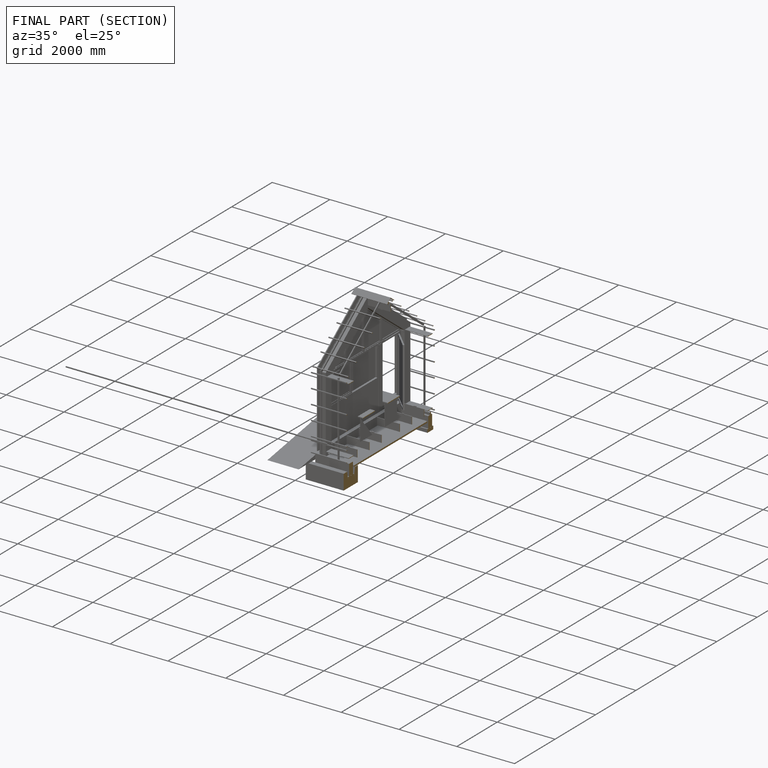
[diagram: finished part — half-section view (interior)]
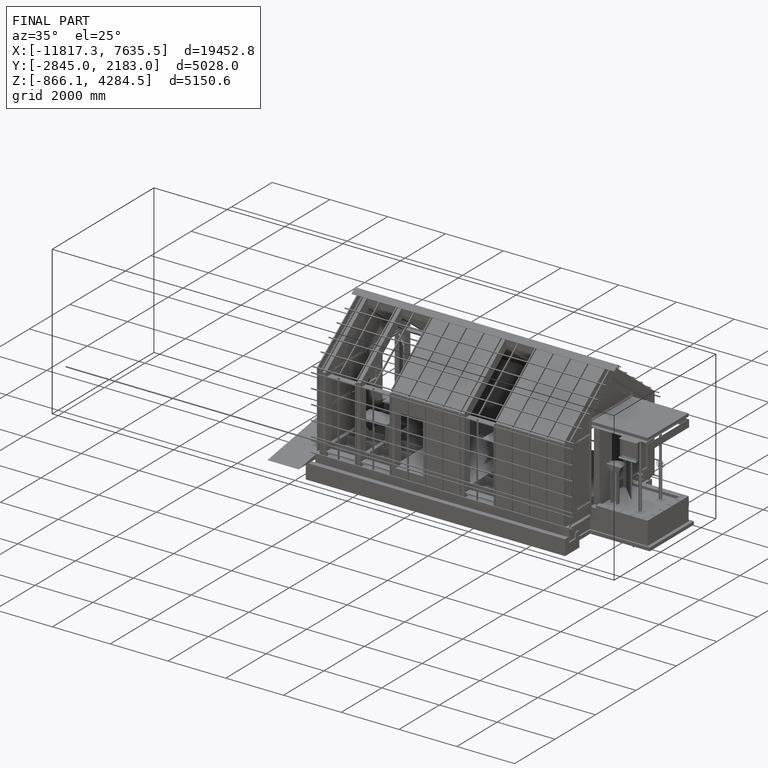
[diagram: finished part — iso view with bounding-box wireframe]
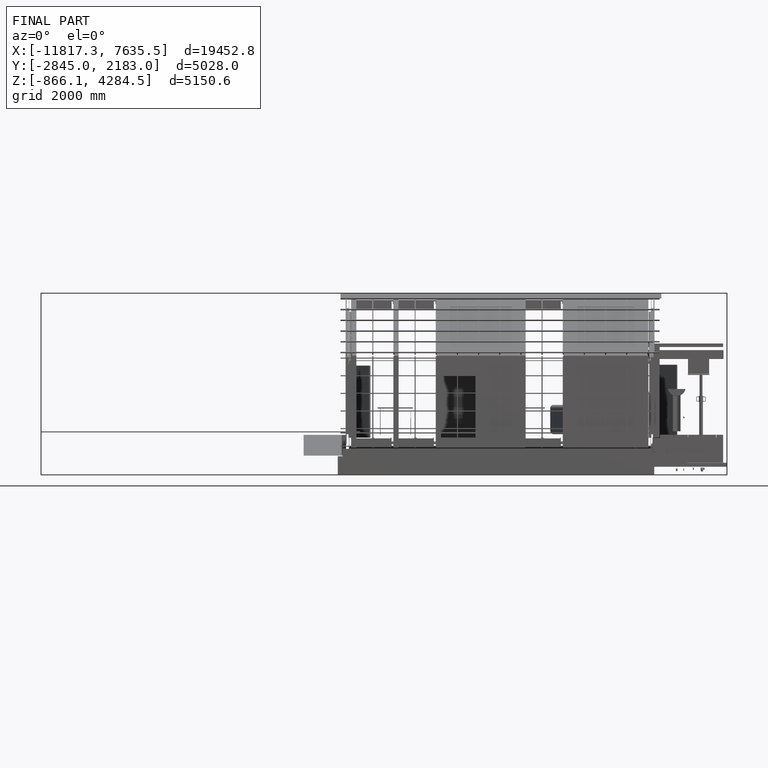
[diagram: finished part — front view with bounding-box wireframe]
